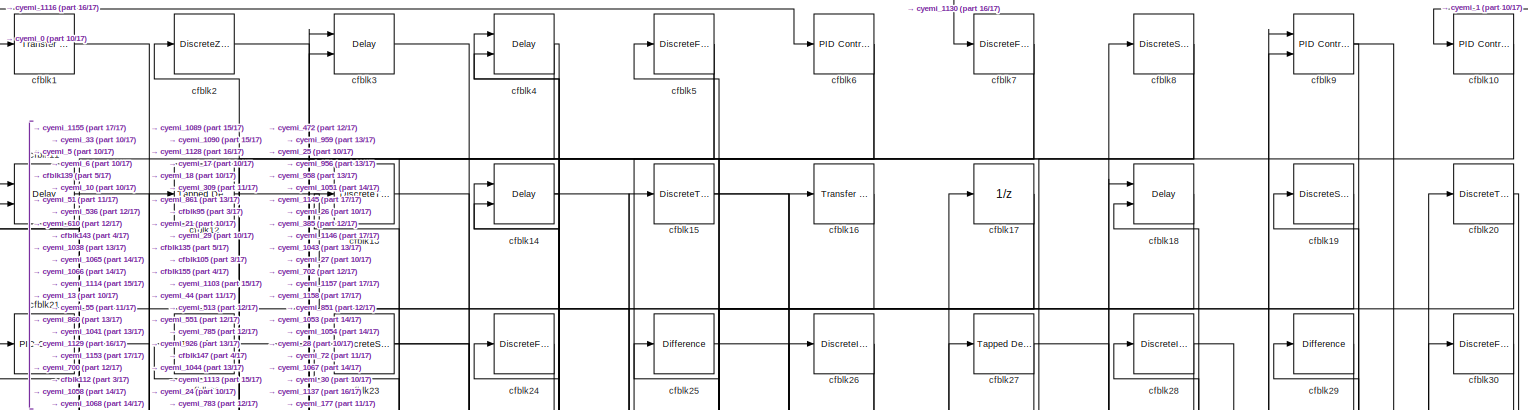
[diagram: root canvas - part 1/17, full width, top band]
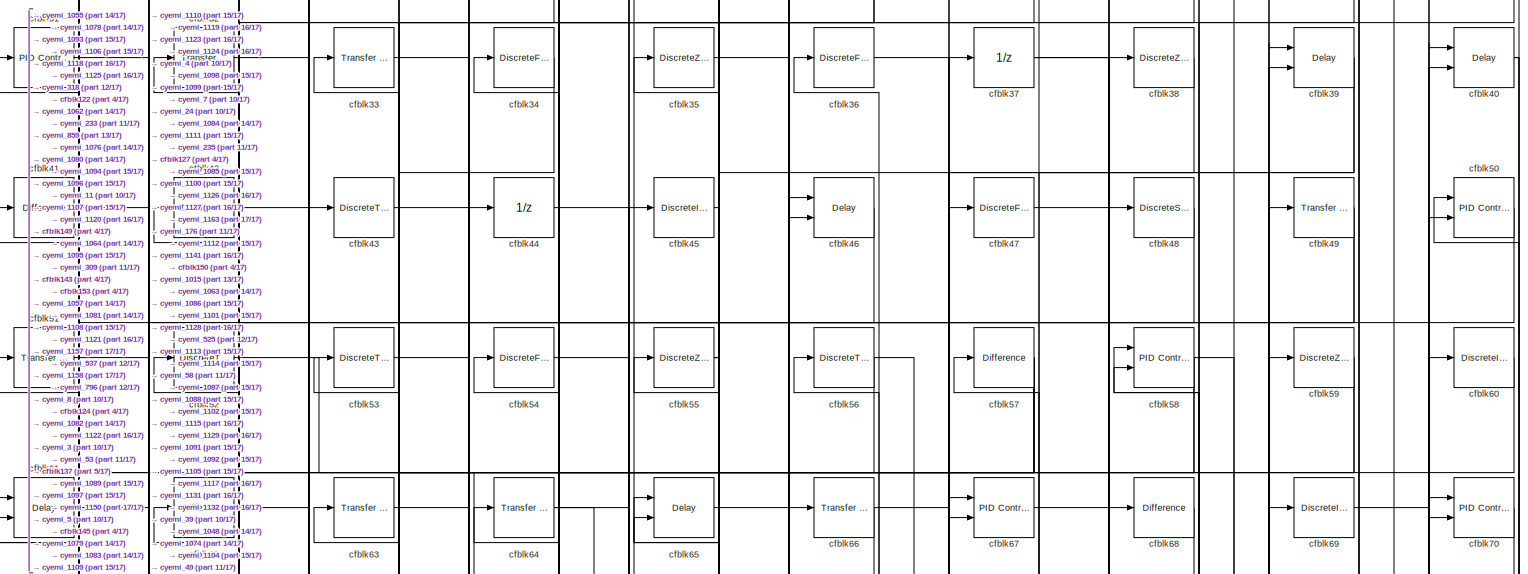
[diagram: root canvas - part 2/17, full width, top band]
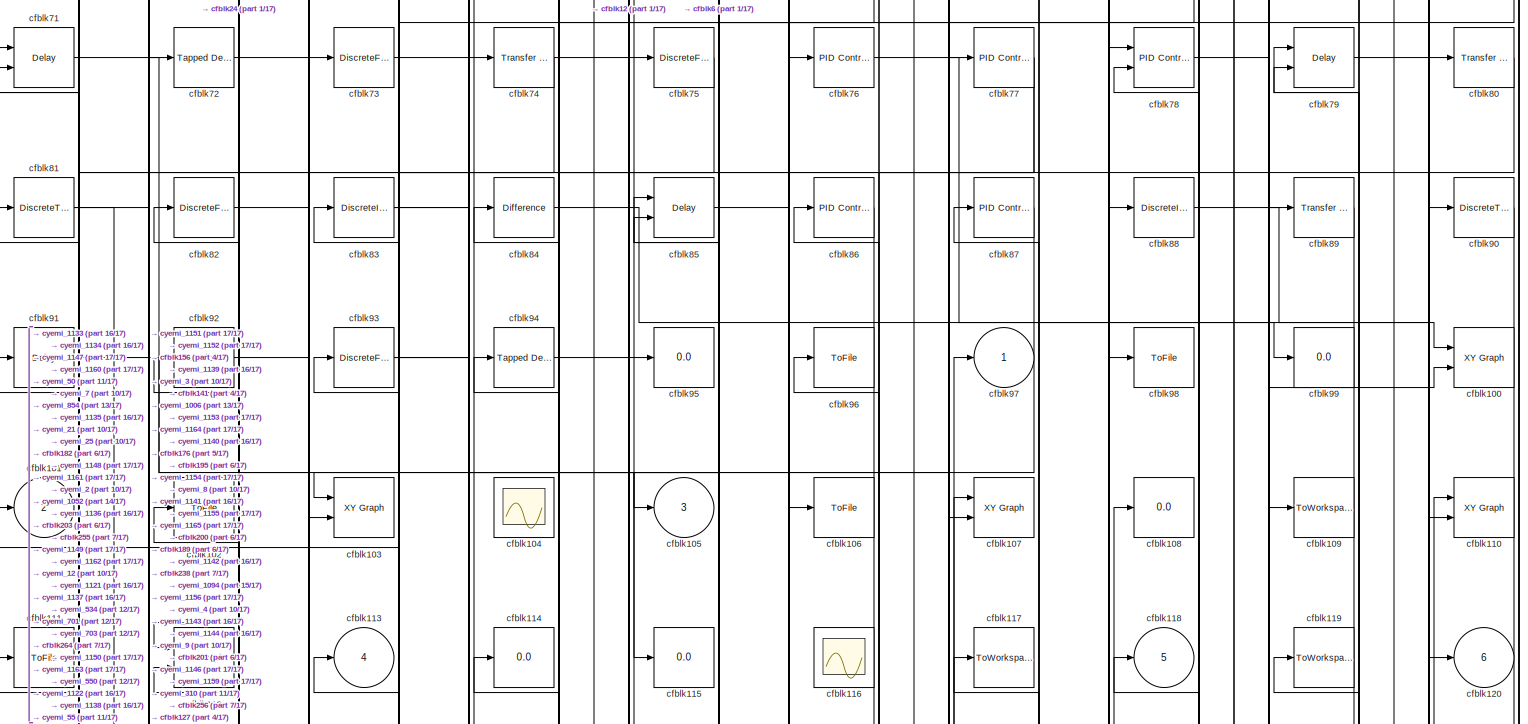
[diagram: root canvas - part 3/17, full width, top band]
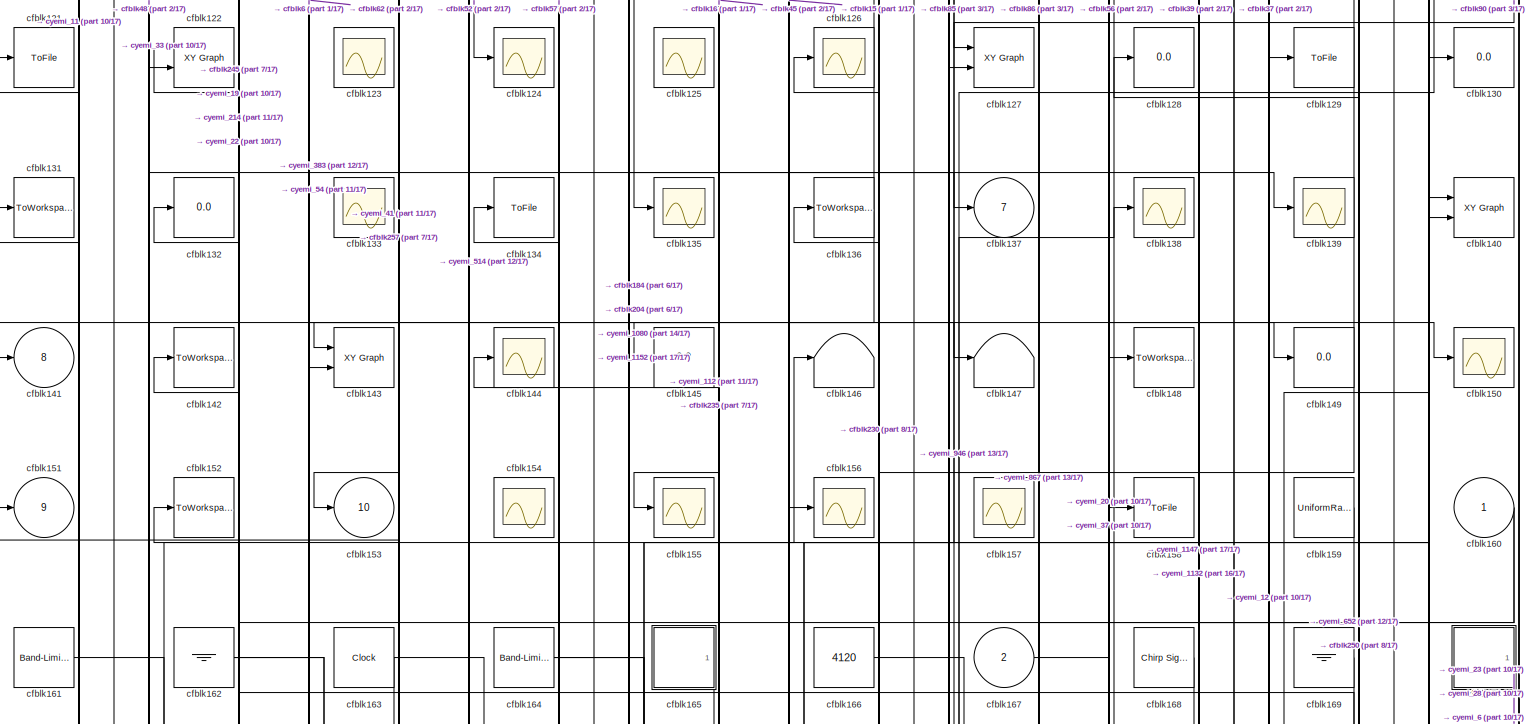
[diagram: root canvas - part 4/17, full width, top band]
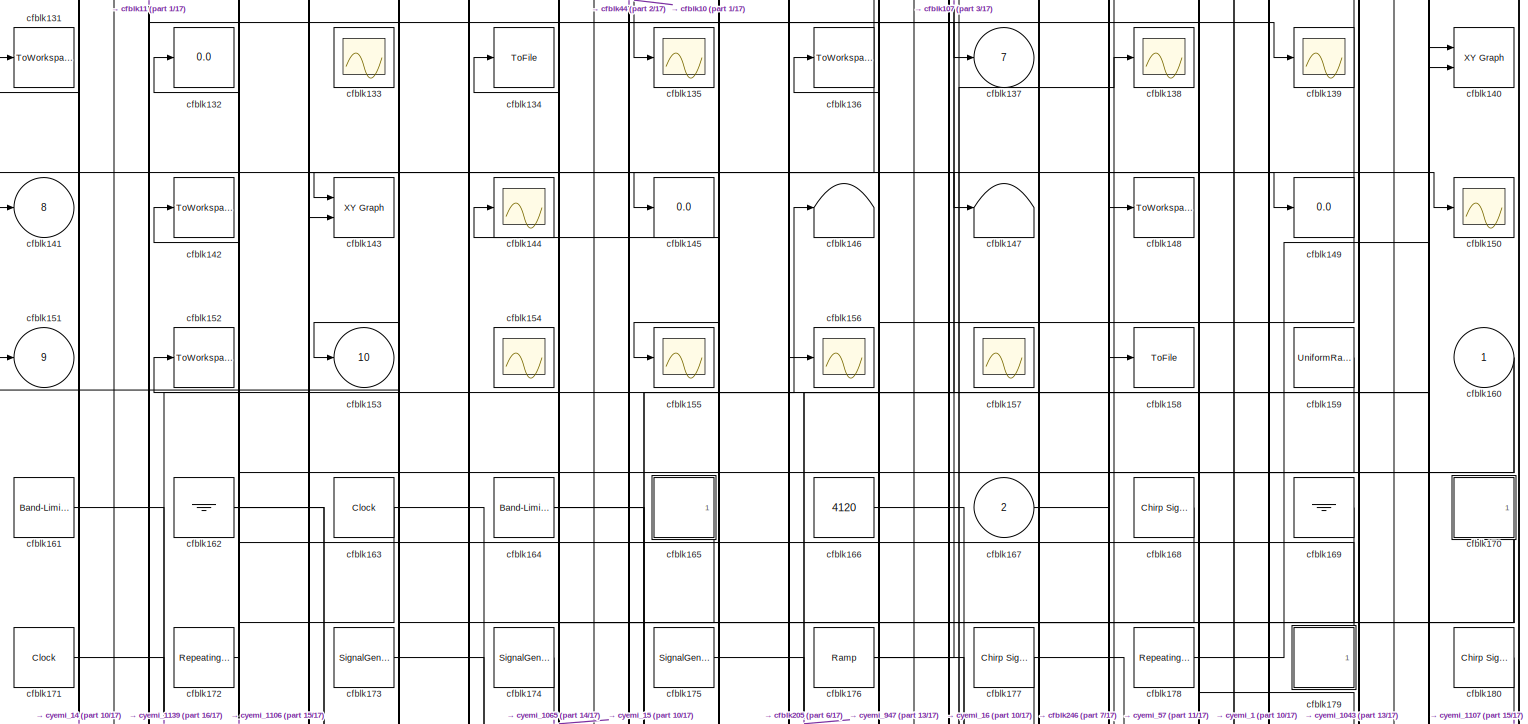
[diagram: root canvas - part 5/17, full width, top band]
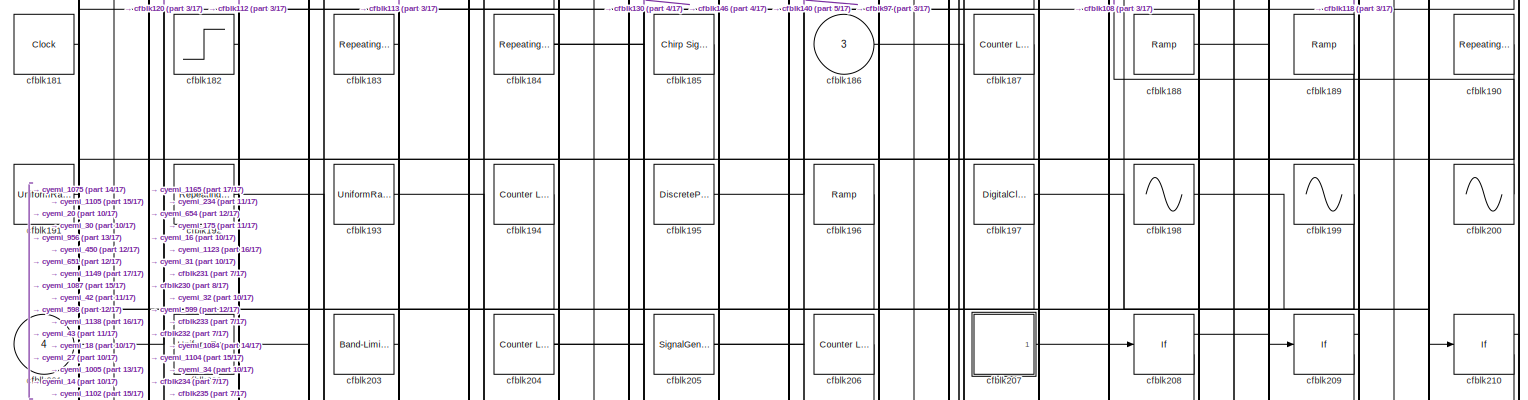
[diagram: root canvas - part 6/17, full width, top band]
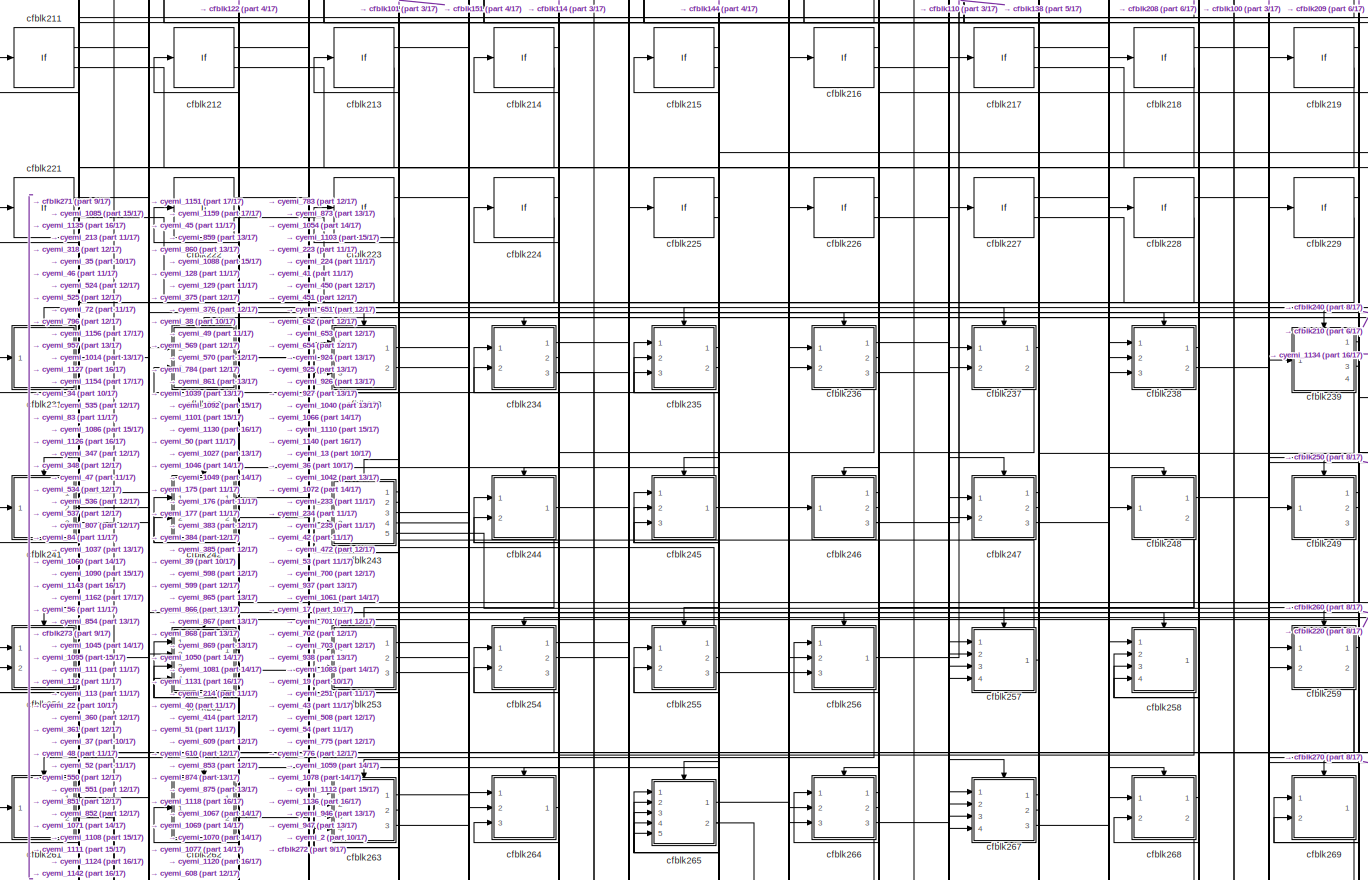
[diagram: root canvas - part 7/17, full width, top band]
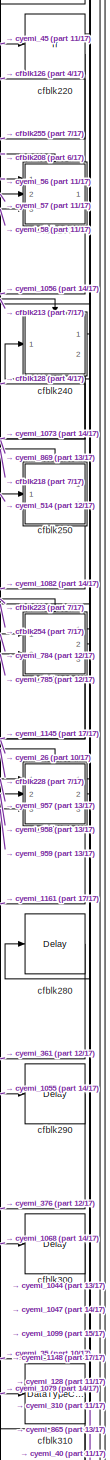
[diagram: root canvas - part 8/17, middle right region]
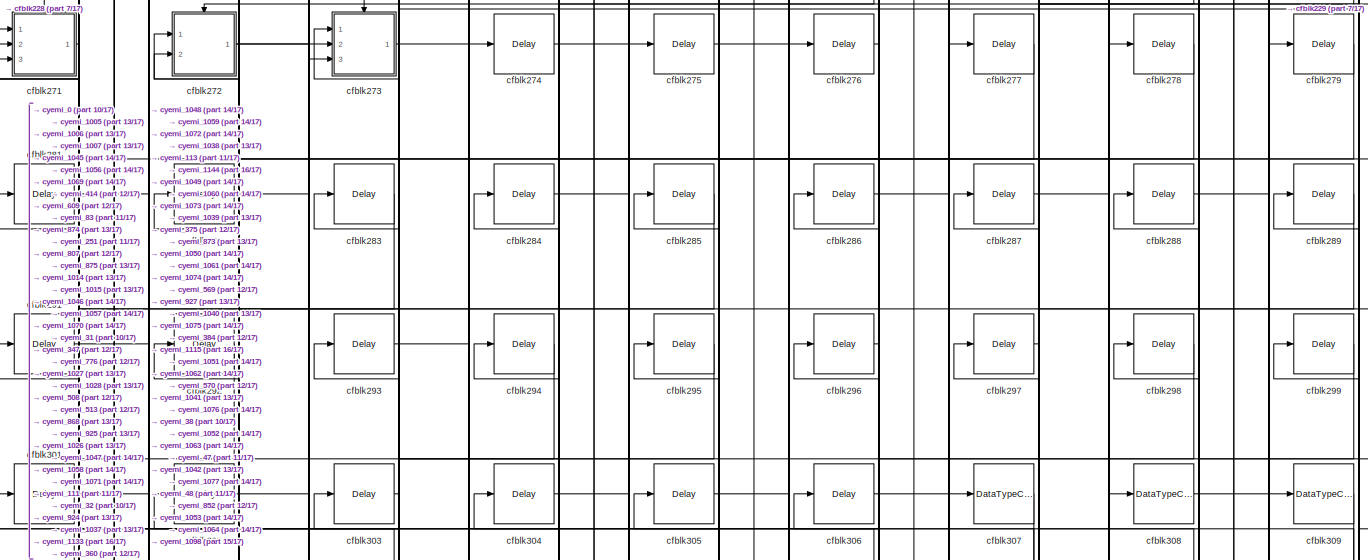
[diagram: root canvas - part 9/17, full width, middle band]
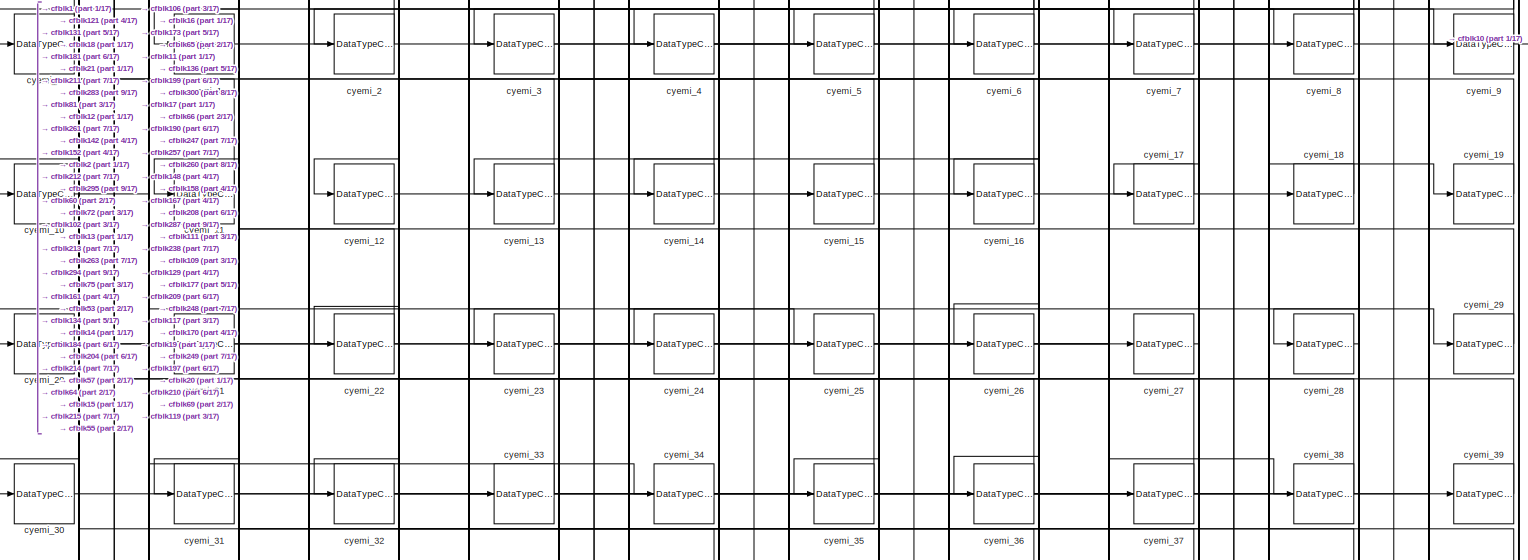
[diagram: root canvas - part 10/17, full width, middle band]
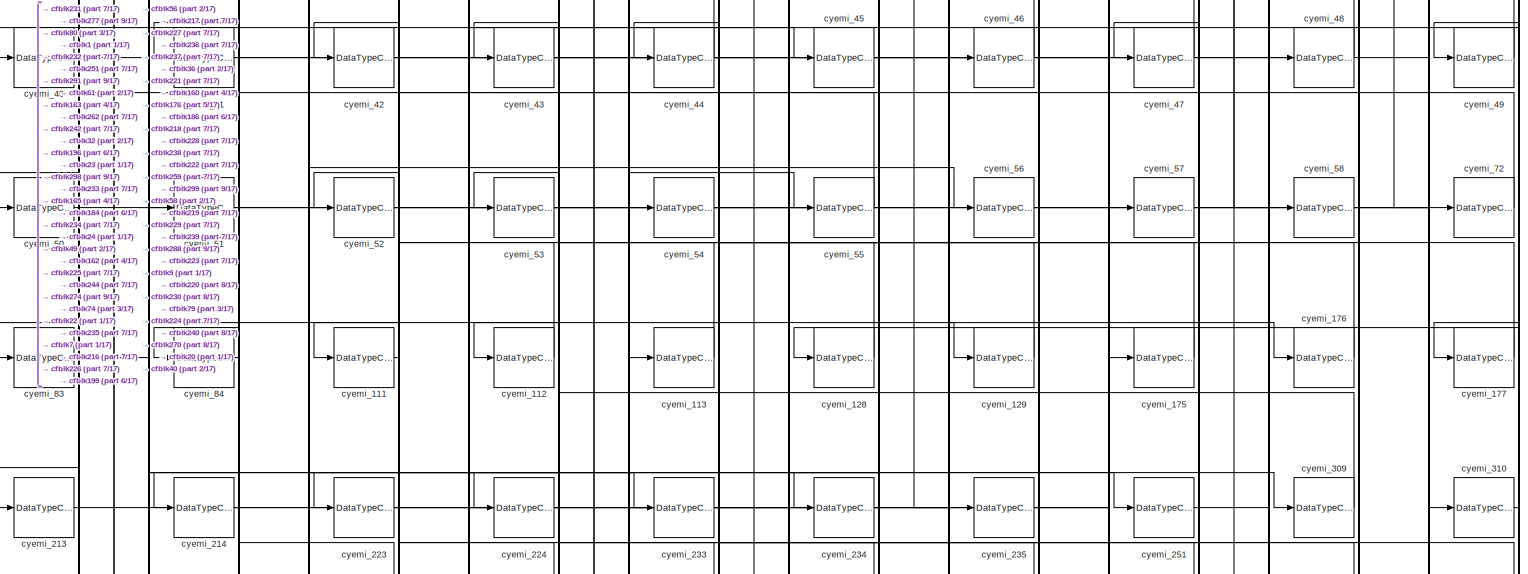
[diagram: root canvas - part 11/17, full width, bottom band]
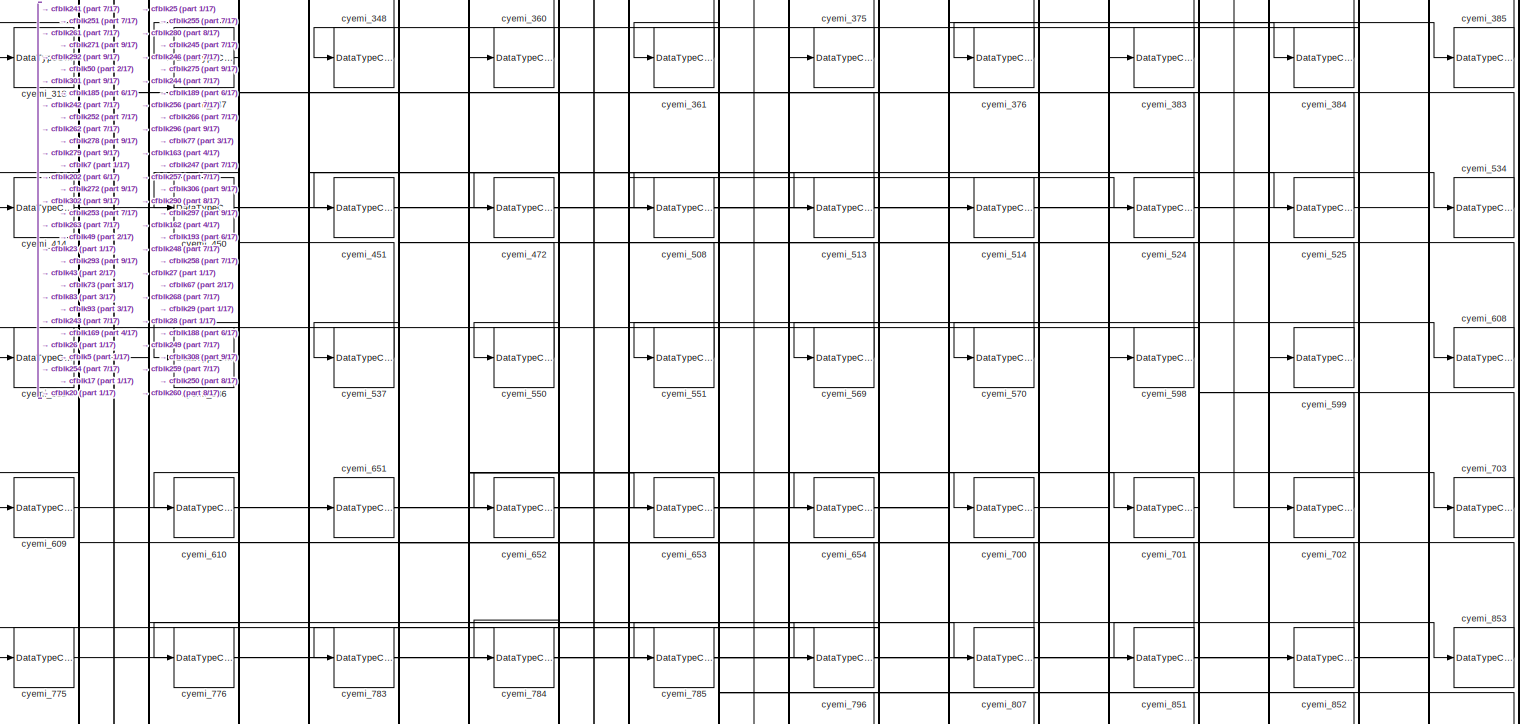
[diagram: root canvas - part 12/17, full width, bottom band]
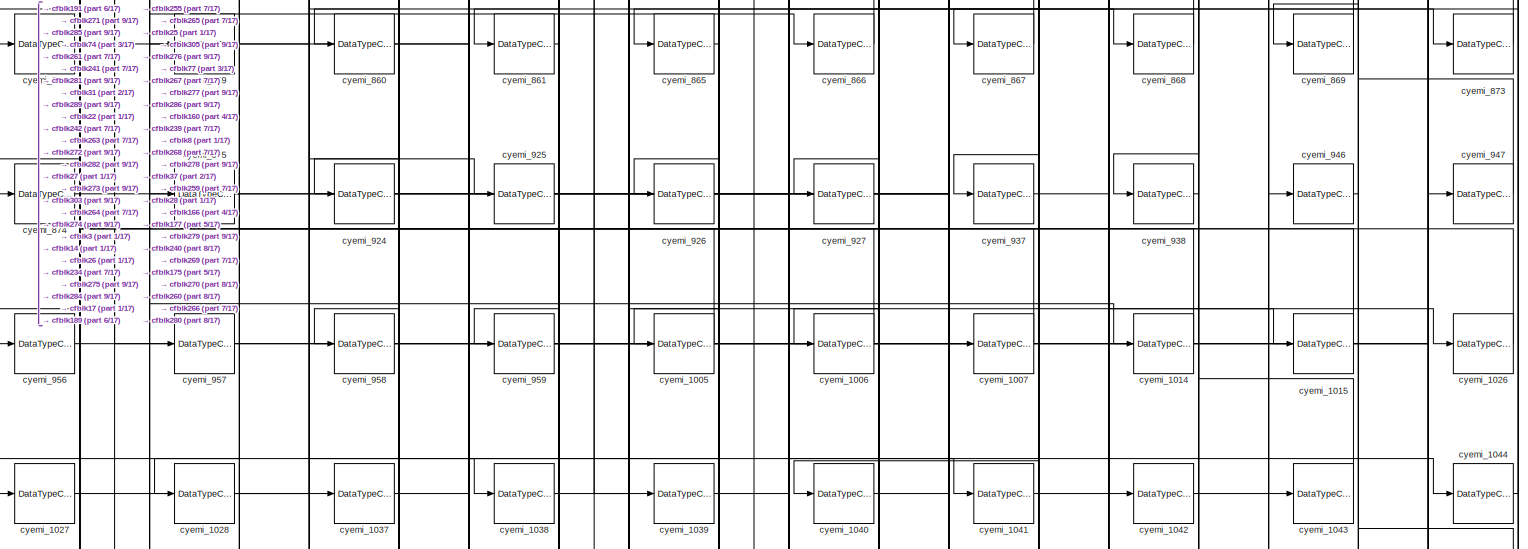
[diagram: root canvas - part 13/17, full width, bottom band]
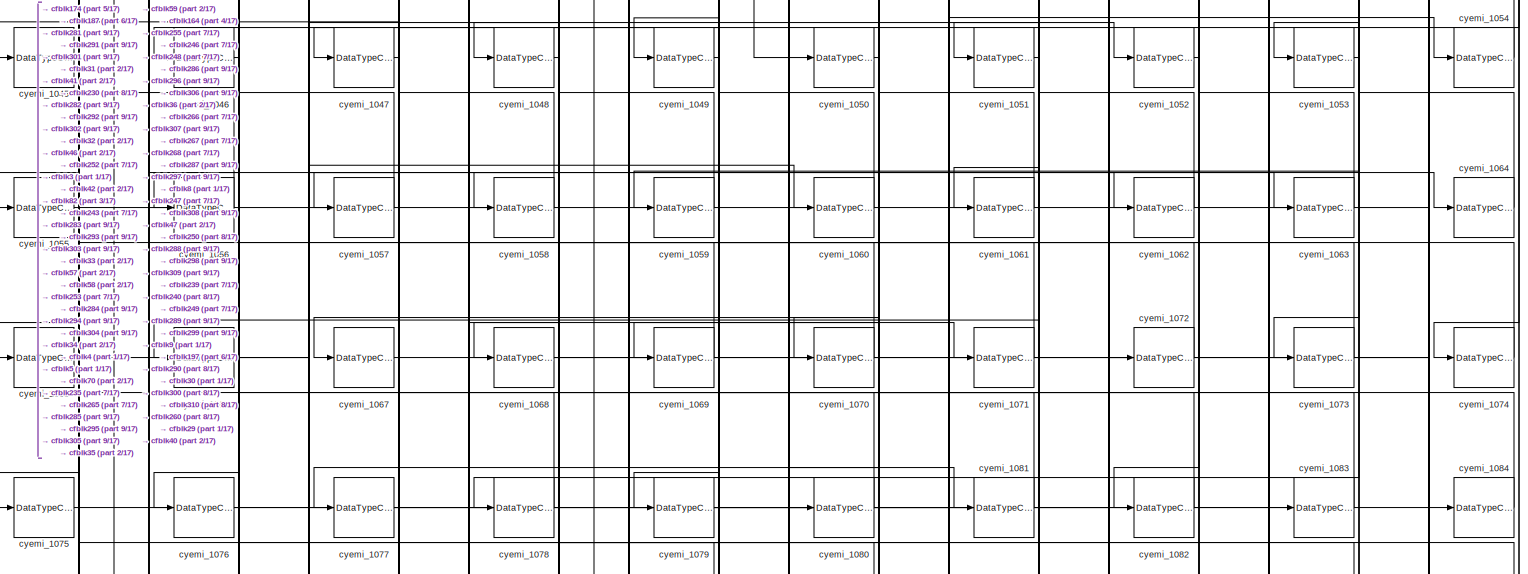
[diagram: root canvas - part 14/17, full width, bottom band]
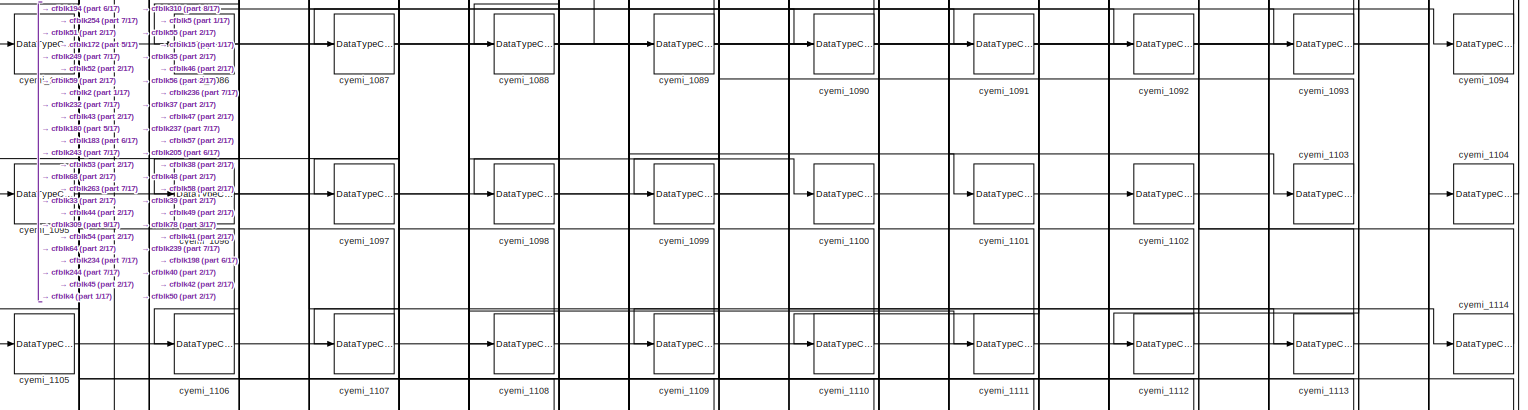
[diagram: root canvas - part 15/17, full width, bottom band]
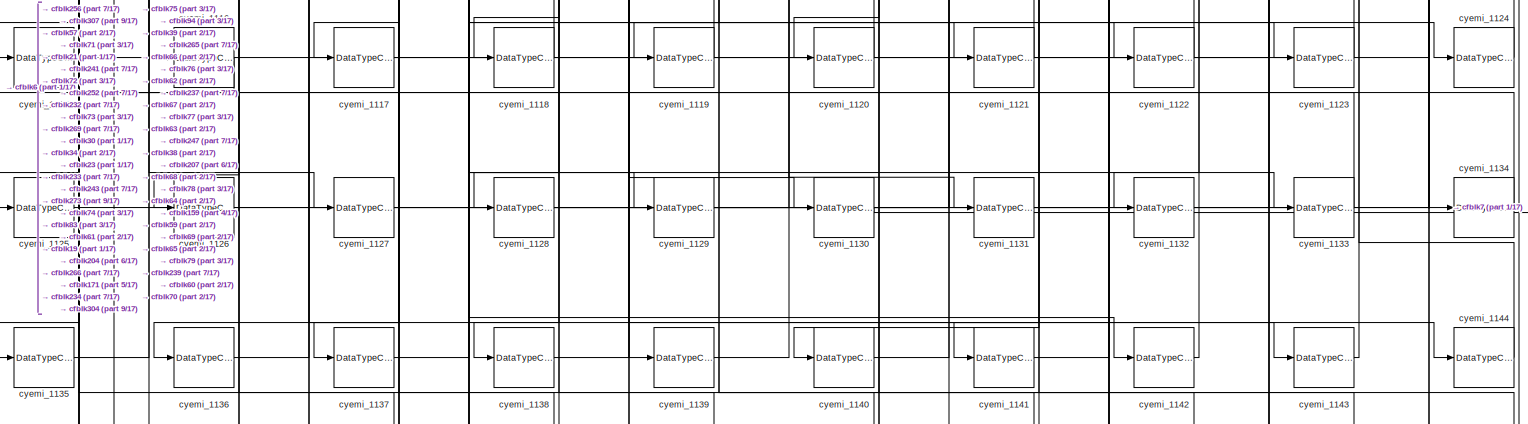
[diagram: root canvas - part 16/17, full width, bottom band]
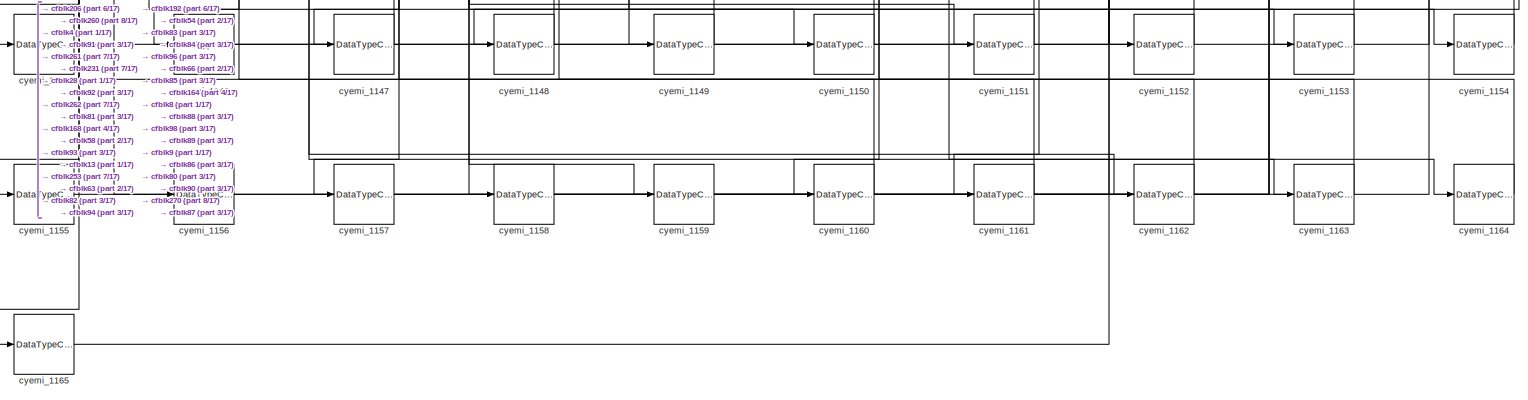
[diagram: root canvas - part 17/17, full width, bottom band]
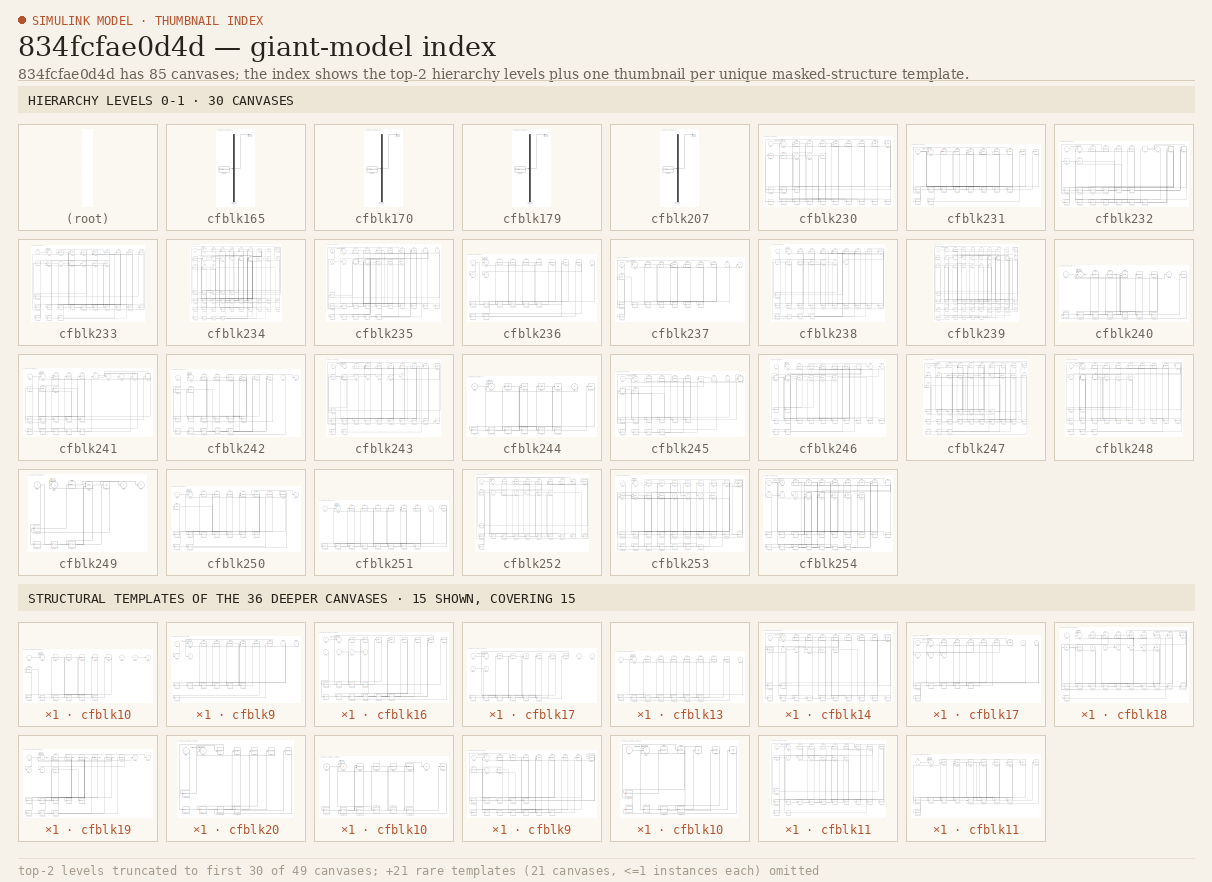
[diagram: thumbnail index - top-2 hierarchy levels (49 canvases (first 30 of 49 shown)) + 15 structural-template representatives of the remaining 36 canvases]
MODEL slx_834fcfae0d4d
KIND model
CONFIG AbsTol = auto
CONFIG EnableMultiTasking = off
CONFIG FixedStep = auto
CONFIG MaxStep = auto
CONFIG MinStep = auto
CONFIG RelTol = 1e-3
CONFIG SampleTimeConstraint = Unconstrained
CONFIG Solver = VariableStepAuto
CONFIG SolverName = VariableStepAuto
CONFIG StartTime = 0.0
CONFIG StopTime = 10.0
BLOCK [Reference] cfblk1  REF=simulink/Discrete/Transfer Fcn
Real Zero
  Ports = [1, 1]
  SourceBlock = simulink/Discrete/Transfer Fcn\nReal Zero
  SourceProductBaseCode = SL
  SourceProductName = Simulink
  SourceType = Transfer Fcn Real Zero
BLOCK [Reference] cfblk10  REF=simulink/Continuous/PID Controller
  Ports = [1, 1]
  SourceBlock = simulink/Continuous/PID Controller
  SourceProductBaseCode = SL
  SourceProductName = Simulink
  SourceType = PID 1dof
BLOCK [Reference] cfblk100  REF=simulink/Sinks/XY Graph
  Ports = [2]
  SourceBlock = simulink/Sinks/XY Graph
  SourceProductBaseCode = SL
  SourceProductName = Simulink
  SourceType = XY scope.
BLOCK [Outport] cfblk101
  IconDisplay = Port number
  Port = 2
BLOCK [ToFile] cfblk102
  Filename = mvju
  Ports = [1]
  SaveFormat = Timeseries
BLOCK [Reference] cfblk103  REF=simulink/Sinks/XY Graph
  Ports = [2]
  SourceBlock = simulink/Sinks/XY Graph
  SourceProductBaseCode = SL
  SourceProductName = Simulink
  SourceType = XY scope.
BLOCK [Scope] cfblk104
  Floating = on
  NumInputPorts = 1
  Ports = []
  ScopeSpecificationString = Simulink.scopes.TimeScopeBlockCfg
BLOCK [Outport] cfblk105
  IconDisplay = Port number
  Port = 3
BLOCK [ToFile] cfblk106
  Filename = eujd
  Ports = [1]
  SaveFormat = Timeseries
BLOCK [Reference] cfblk107  REF=simulink/Sinks/XY Graph
  Ports = [2]
  SourceBlock = simulink/Sinks/XY Graph
  SourceProductBaseCode = SL
  SourceProductName = Simulink
  SourceType = XY scope.
BLOCK [Display] cfblk108
  Decimation = 1
  Ports = [1]
BLOCK [ToWorkspace] cfblk109
  FixptAsFi = on
  MaxDataPoints = inf
  Ports = [1]
  SampleTime = -1
  Save2DSignal = 3-D array (concatenate along third dimension)
  SaveFormat = Timeseries
  VariableName = xkbihtf
BLOCK [Delay] cfblk11
  DelayLengthSource = Input port
  InputPortMap = u0,p1
  Ports = [2, 1]
  SampleTime = 1
BLOCK [Reference] cfblk110  REF=simulink/Sinks/XY Graph
  Ports = [2]
  SourceBlock = simulink/Sinks/XY Graph
  SourceProductBaseCode = SL
  SourceProductName = Simulink
  SourceType = XY scope.
BLOCK [ToFile] cfblk111
  Filename = cgvy
  Ports = [1]
  SaveFormat = Timeseries
BLOCK [Reference] cfblk112  REF=simulink/Sinks/XY Graph
  Ports = [2]
  SourceBlock = simulink/Sinks/XY Graph
  SourceProductBaseCode = SL
  SourceProductName = Simulink
  SourceType = XY scope.
BLOCK [Outport] cfblk113
  IconDisplay = Port number
  Port = 4
BLOCK [Display] cfblk114
  Decimation = 1
  Ports = [1]
BLOCK [Display] cfblk115
  Decimation = 1
  Ports = [1]
BLOCK [Scope] cfblk116
  Floating = on
  NumInputPorts = 1
  Ports = []
  ScopeSpecificationString = Simulink.scopes.TimeScopeBlockCfg
BLOCK [ToWorkspace] cfblk117
  FixptAsFi = on
  MaxDataPoints = inf
  Ports = [1]
  SampleTime = -1
  Save2DSignal = 3-D array (concatenate along third dimension)
  SaveFormat = Timeseries
  VariableName = xfyezbp
BLOCK [Outport] cfblk118
  IconDisplay = Port number
  Port = 5
BLOCK [ToWorkspace] cfblk119
  FixptAsFi = on
  MaxDataPoints = inf
  Ports = [1]
  SampleTime = -1
  Save2DSignal = 3-D array (concatenate along third dimension)
  SaveFormat = Timeseries
  VariableName = yrfonpq
BLOCK [Reference] cfblk12  REF=simulink/Discrete/Tapped Delay
  Ports = [1, 1]
  SourceBlock = simulink/Discrete/Tapped Delay
  SourceProductBaseCode = SL
  SourceProductName = Simulink
  SourceType = Tapped Delay Line
BLOCK [Outport] cfblk120
  IconDisplay = Port number
  Port = 6
BLOCK [ToFile] cfblk121
  Filename = bcgq
  Ports = [1]
  SaveFormat = Timeseries
BLOCK [Reference] cfblk122  REF=simulink/Sinks/XY Graph
  Ports = [2]
  SourceBlock = simulink/Sinks/XY Graph
  SourceProductBaseCode = SL
  SourceProductName = Simulink
  SourceType = XY scope.
BLOCK [Scope] cfblk123
  Floating = on
  NumInputPorts = 1
  Ports = []
  ScopeSpecificationString = Simulink.scopes.TimeScopeBlockCfg
BLOCK [Scope] cfblk124
  Floating = off
  NumInputPorts = 1
  Ports = [1]
  ScopeSpecificationString = Simulink.scopes.TimeScopeBlockCfg
BLOCK [Scope] cfblk125
  Floating = on
  NumInputPorts = 1
  Ports = []
  ScopeSpecificationString = Simulink.scopes.TimeScopeBlockCfg
BLOCK [Scope] cfblk126
  Floating = off
  NumInputPorts = 1
  Ports = [1]
  ScopeSpecificationString = Simulink.scopes.TimeScopeBlockCfg
BLOCK [Reference] cfblk127  REF=simulink/Sinks/XY Graph
  Ports = [2]
  SourceBlock = simulink/Sinks/XY Graph
  SourceProductBaseCode = SL
  SourceProductName = Simulink
  SourceType = XY scope.
BLOCK [Display] cfblk128
  Decimation = 1
  Ports = [1]
BLOCK [ToFile] cfblk129
  Filename = mjtg
  Ports = [1]
  SaveFormat = Timeseries
BLOCK [DiscreteTransferFcn] cfblk13
  InputPortMap = u0
  Ports = [1, 1]
  SampleTime = 1
BLOCK [Display] cfblk130
  Decimation = 1
  Ports = [1]
BLOCK [ToWorkspace] cfblk131
  FixptAsFi = on
  MaxDataPoints = inf
  Ports = [1]
  SampleTime = -1
  Save2DSignal = 3-D array (concatenate along third dimension)
  SaveFormat = Timeseries
  VariableName = whweswj
BLOCK [Display] cfblk132
  Decimation = 1
  Ports = [1]
BLOCK [Scope] cfblk133
  Floating = on
  NumInputPorts = 1
  Ports = []
  ScopeSpecificationString = Simulink.scopes.TimeScopeBlockCfg
BLOCK [ToFile] cfblk134
  Filename = jueb
  Ports = [1]
  SaveFormat = Timeseries
BLOCK [Scope] cfblk135
  Floating = off
  NumInputPorts = 1
  Ports = [1]
  ScopeSpecificationString = Simulink.scopes.TimeScopeBlockCfg
BLOCK [ToWorkspace] cfblk136
  FixptAsFi = on
  MaxDataPoints = inf
  Ports = [1]
  SampleTime = -1
  Save2DSignal = 3-D array (concatenate along third dimension)
  SaveFormat = Timeseries
  VariableName = tkwpteb
BLOCK [Outport] cfblk137
  IconDisplay = Port number
  Port = 7
BLOCK [Scope] cfblk138
  Floating = off
  NumInputPorts = 1
  Ports = [1]
  ScopeSpecificationString = Simulink.scopes.TimeScopeBlockCfg
BLOCK [Scope] cfblk139
  Floating = off
  NumInputPorts = 1
  Ports = [1]
  ScopeSpecificationString = Simulink.scopes.TimeScopeBlockCfg
BLOCK [Delay] cfblk14
  InputPortMap = u0,e6
  Ports = [2, 1]
  SampleTime = 1
  ShowEnablePort = on
BLOCK [Reference] cfblk140  REF=simulink/Sinks/XY Graph
  Ports = [2]
  SourceBlock = simulink/Sinks/XY Graph
  SourceProductBaseCode = SL
  SourceProductName = Simulink
  SourceType = XY scope.
BLOCK [Outport] cfblk141
  IconDisplay = Port number
  Port = 8
BLOCK [ToWorkspace] cfblk142
  FixptAsFi = on
  MaxDataPoints = inf
  Ports = [1]
  SampleTime = -1
  Save2DSignal = 3-D array (concatenate along third dimension)
  SaveFormat = Timeseries
  VariableName = enguigy
BLOCK [Reference] cfblk143  REF=simulink/Sinks/XY Graph
  Ports = [2]
  SourceBlock = simulink/Sinks/XY Graph
  SourceProductBaseCode = SL
  SourceProductName = Simulink
  SourceType = XY scope.
BLOCK [Scope] cfblk144
  Floating = off
  NumInputPorts = 1
  Ports = [1]
  ScopeSpecificationString = Simulink.scopes.TimeScopeBlockCfg
BLOCK [Display] cfblk145
  Decimation = 1
  Ports = [1]
BLOCK [Terminator] cfblk146
BLOCK [Terminator] cfblk147
BLOCK [ToWorkspace] cfblk148
  FixptAsFi = on
  MaxDataPoints = inf
  Ports = [1]
  SampleTime = -1
  Save2DSignal = 3-D array (concatenate along third dimension)
  SaveFormat = Timeseries
  VariableName = wdhubit
BLOCK [Display] cfblk149
  Decimation = 1
  Ports = [1]
BLOCK [DiscreteTransferFcn] cfblk15
  InputPortMap = u0
  Ports = [1, 1]
  SampleTime = 1
BLOCK [Scope] cfblk150
  Floating = off
  NumInputPorts = 1
  Ports = [1]
  ScopeSpecificationString = Simulink.scopes.TimeScopeBlockCfg
BLOCK [Outport] cfblk151
  IconDisplay = Port number
  Port = 9
BLOCK [ToWorkspace] cfblk152
  FixptAsFi = on
  MaxDataPoints = inf
  Ports = [1]
  SampleTime = -1
  Save2DSignal = 3-D array (concatenate along third dimension)
  SaveFormat = Timeseries
  VariableName = eyoxfmy
BLOCK [Outport] cfblk153
  IconDisplay = Port number
  Port = 10
BLOCK [Scope] cfblk154
  Floating = on
  NumInputPorts = 1
  Ports = []
  ScopeSpecificationString = Simulink.scopes.TimeScopeBlockCfg
BLOCK [Scope] cfblk155
  Floating = off
  NumInputPorts = 1
  Ports = [1]
  ScopeSpecificationString = Simulink.scopes.TimeScopeBlockCfg
BLOCK [Scope] cfblk156
  Floating = off
  NumInputPorts = 1
  Ports = [1]
  ScopeSpecificationString = Simulink.scopes.TimeScopeBlockCfg
BLOCK [Scope] cfblk157
  Floating = on
  NumInputPorts = 1
  Ports = []
  ScopeSpecificationString = Simulink.scopes.TimeScopeBlockCfg
BLOCK [ToFile] cfblk158
  Filename = mojy
  Ports = [1]
  SaveFormat = Timeseries
BLOCK [UniformRandomNumber] cfblk159
  SampleTime = 0.1
BLOCK [Reference] cfblk16  REF=simulink/Discrete/Transfer Fcn
Lead or Lag
  Ports = [1, 1]
  SourceBlock = simulink/Discrete/Transfer Fcn\nLead or Lag
  SourceProductBaseCode = SL
  SourceProductName = Simulink
  SourceType = Lead or Lag Compensator
BLOCK [Inport] cfblk160
  IconDisplay = Port number
BLOCK [Reference] cfblk161  REF=simulink/Sources/Band-Limited
White Noise
  Ports = [0, 1]
  SourceBlock = simulink/Sources/Band-Limited\nWhite Noise
  SourceProductBaseCode = SL
  SourceProductName = Simulink
  SourceType = Band-Limited White Noise.
BLOCK [Ground] cfblk162
BLOCK [Clock] cfblk163
BLOCK [Reference] cfblk164  REF=simulink/Sources/Band-Limited
White Noise
  Ports = [0, 1]
  SourceBlock = simulink/Sources/Band-Limited\nWhite Noise
  SourceProductBaseCode = SL
  SourceProductName = Simulink
  SourceType = Band-Limited White Noise.
BLOCK [SubSystem] cfblk165
  ClipboardFcn = sigbuilder_block('clipboard');
  CloseFcn = sigbuilder_block('close');
  ContinueFcn = sigbuilder_block('continue');
  CopyFcn = sigbuilder_block('copy');
  DeleteFcn = sigbuilder_block('delete');
  LoadFcn = sigbuilder_block('load');
  MaskHideContents = on
  ModelCloseFcn = sigbuilder_block('modelClose');
  NameChangeFcn = sigbuilder_block('namechange');
  OpenFcn = sigbuilder_block('open',[437.6 199.2 550.4 400 ]);
  PauseFcn = sigbuilder_block('pause');
  Ports = [0, 1]
  PreSaveFcn = sigbuilder_block('preSave');
  RequestExecContextInheritance = off
  StartFcn = sigbuilder_block('start');
  StopFcn = sigbuilder_block('stop');
  Tag = STV Subsys
BLOCK [Demux] cfblk165/Demux
  Outputs = 1
  Ports = [1, 1]
  Tag = STV Demux
BLOCK [FromWorkspace] cfblk165/FromWs
  SampleTime = 0
  Tag = STV FromWs
  VariableName = tuvar
  ZeroCross = on
BLOCK [Outport] cfblk165/Signal 1
  IconDisplay = Port number
  Tag = STV Outport
BLOCK [Constant] cfblk166
  Value = 4120
BLOCK [Inport] cfblk167
  IconDisplay = Port number
  Port = 2
BLOCK [Reference] cfblk168  REF=simulink/Sources/Chirp Signal
  Ports = [0, 1]
  SourceBlock = simulink/Sources/Chirp Signal
  SourceProductBaseCode = SL
  SourceProductName = Simulink
  SourceType = chirp
BLOCK [Ground] cfblk169
BLOCK [UnitDelay] cfblk17
  InputProcessing = Elements as channels (sample based)
BLOCK [SubSystem] cfblk170
  ClipboardFcn = sigbuilder_block('clipboard');
  CloseFcn = sigbuilder_block('close');
  ContinueFcn = sigbuilder_block('continue');
  CopyFcn = sigbuilder_block('copy');
  DeleteFcn = sigbuilder_block('delete');
  LoadFcn = sigbuilder_block('load');
  MaskHideContents = on
  ModelCloseFcn = sigbuilder_block('modelClose');
  NameChangeFcn = sigbuilder_block('namechange');
  OpenFcn = sigbuilder_block('open',[437.6 199.2 550.4 400 ]);
  PauseFcn = sigbuilder_block('pause');
  Ports = [0, 1]
  PreSaveFcn = sigbuilder_block('preSave');
  RequestExecContextInheritance = off
  StartFcn = sigbuilder_block('start');
  StopFcn = sigbuilder_block('stop');
  Tag = STV Subsys
BLOCK [Demux] cfblk170/Demux
  Outputs = 1
  Ports = [1, 1]
  Tag = STV Demux
BLOCK [FromWorkspace] cfblk170/FromWs
  SampleTime = 0
  Tag = STV FromWs
  VariableName = tuvar
  ZeroCross = on
BLOCK [Outport] cfblk170/Signal 1
  IconDisplay = Port number
  Tag = STV Outport
BLOCK [Clock] cfblk171
BLOCK [Reference] cfblk172  REF=simulink/Sources/Repeating
Sequence
  Ports = [0, 1]
  SourceBlock = simulink/Sources/Repeating\nSequence
  SourceProductBaseCode = SL
  SourceProductName = Simulink
  SourceType = Repeating table
BLOCK [SignalGenerator] cfblk173
  Ports = [0, 1]
  Units = rad/sec
BLOCK [SignalGenerator] cfblk174
  Ports = [0, 1]
  Units = rad/sec
BLOCK [SignalGenerator] cfblk175
  Ports = [0, 1]
  Units = rad/sec
BLOCK [Reference] cfblk176  REF=simulink/Sources/Ramp
  Ports = [0, 1]
  SourceBlock = simulink/Sources/Ramp
  SourceProductBaseCode = SL
  SourceProductName = Simulink
  SourceType = Ramp
BLOCK [Reference] cfblk177  REF=simulink/Sources/Chirp Signal
  Ports = [0, 1]
  SourceBlock = simulink/Sources/Chirp Signal
  SourceProductBaseCode = SL
  SourceProductName = Simulink
  SourceType = chirp
BLOCK [Reference] cfblk178  REF=simulink/Sources/Repeating
Sequence
  Ports = [0, 1]
  SourceBlock = simulink/Sources/Repeating\nSequence
  SourceProductBaseCode = SL
  SourceProductName = Simulink
  SourceType = Repeating table
BLOCK [SubSystem] cfblk179
  ClipboardFcn = sigbuilder_block('clipboard');
  CloseFcn = sigbuilder_block('close');
  ContinueFcn = sigbuilder_block('continue');
  CopyFcn = sigbuilder_block('copy');
  DeleteFcn = sigbuilder_block('delete');
  LoadFcn = sigbuilder_block('load');
  MaskHideContents = on
  ModelCloseFcn = sigbuilder_block('modelClose');
  NameChangeFcn = sigbuilder_block('namechange');
  OpenFcn = sigbuilder_block('open',[437.6 199.2 550.4 400 ]);
  PauseFcn = sigbuilder_block('pause');
  Ports = [0, 1]
  PreSaveFcn = sigbuilder_block('preSave');
  RequestExecContextInheritance = off
  StartFcn = sigbuilder_block('start');
  StopFcn = sigbuilder_block('stop');
  Tag = STV Subsys
BLOCK [Demux] cfblk179/Demux
  Outputs = 1
  Ports = [1, 1]
  Tag = STV Demux
BLOCK [FromWorkspace] cfblk179/FromWs
  SampleTime = 0
  Tag = STV FromWs
  VariableName = tuvar
  ZeroCross = on
BLOCK [Outport] cfblk179/Signal 1
  IconDisplay = Port number
  Tag = STV Outport
BLOCK [Delay] cfblk18
  InputPortMap = u0,e6
  Ports = [2, 1]
  SampleTime = 1
  ShowEnablePort = on
BLOCK [Reference] cfblk180  REF=simulink/Sources/Chirp Signal
  Ports = [0, 1]
  SourceBlock = simulink/Sources/Chirp Signal
  SourceProductBaseCode = SL
  SourceProductName = Simulink
  SourceType = chirp
BLOCK [Clock] cfblk181
BLOCK [Step] cfblk182
  After = 81
  SampleTime = 0
BLOCK [Reference] cfblk183  REF=simulink/Sources/Repeating
Sequence
Stair
  Ports = [0, 1]
  SourceBlock = simulink/Sources/Repeating\nSequence\nStair
  SourceProductBaseCode = SL
  SourceProductName = Simulink
  SourceType = Repeating Sequence Stair
BLOCK [Reference] cfblk184  REF=simulink/Sources/Repeating
Sequence
Interpolated
  Ports = [0, 1]
  SourceBlock = simulink/Sources/Repeating\nSequence\nInterpolated
  SourceProductBaseCode = SL
  SourceProductName = Simulink
  SourceType = Repeating Sequence Interpolated
BLOCK [Reference] cfblk185  REF=simulink/Sources/Chirp Signal
  Ports = [0, 1]
  SourceBlock = simulink/Sources/Chirp Signal
  SourceProductBaseCode = SL
  SourceProductName = Simulink
  SourceType = chirp
BLOCK [Inport] cfblk186
  IconDisplay = Port number
  Port = 3
BLOCK [Reference] cfblk187  REF=simulink/Sources/Counter
Limited
  Ports = [0, 1]
  SourceBlock = simulink/Sources/Counter\nLimited
  SourceProductBaseCode = SL
  SourceProductName = Simulink
  SourceType = Counter Limited
BLOCK [Reference] cfblk188  REF=simulink/Sources/Ramp
  Ports = [0, 1]
  SourceBlock = simulink/Sources/Ramp
  SourceProductBaseCode = SL
  SourceProductName = Simulink
  SourceType = Ramp
BLOCK [Reference] cfblk189  REF=simulink/Sources/Ramp
  Ports = [0, 1]
  SourceBlock = simulink/Sources/Ramp
  SourceProductBaseCode = SL
  SourceProductName = Simulink
  SourceType = Ramp
BLOCK [DiscreteStateSpace] cfblk19
BLOCK [Reference] cfblk190  REF=simulink/Sources/Repeating
Sequence
  Ports = [0, 1]
  SourceBlock = simulink/Sources/Repeating\nSequence
  SourceProductBaseCode = SL
  SourceProductName = Simulink
  SourceType = Repeating table
BLOCK [UniformRandomNumber] cfblk191
  SampleTime = 0.1
BLOCK [Reference] cfblk192  REF=simulink/Sources/Repeating
Sequence
  Ports = [0, 1]
  SourceBlock = simulink/Sources/Repeating\nSequence
  SourceProductBaseCode = SL
  SourceProductName = Simulink
  SourceType = Repeating table
BLOCK [UniformRandomNumber] cfblk193
  SampleTime = 0.1
BLOCK [Reference] cfblk194  REF=simulink/Sources/Counter
Limited
  Ports = [0, 1]
  SourceBlock = simulink/Sources/Counter\nLimited
  SourceProductBaseCode = SL
  SourceProductName = Simulink
  SourceType = Counter Limited
BLOCK [DiscretePulseGenerator] cfblk195
  Period = 10
  Ports = [0, 1]
  PulseType = Time based
  PulseWidth = 5
BLOCK [Reference] cfblk196  REF=simulink/Sources/Ramp
  Ports = [0, 1]
  SourceBlock = simulink/Sources/Ramp
  SourceProductBaseCode = SL
  SourceProductName = Simulink
  SourceType = Ramp
BLOCK [DigitalClock] cfblk197
BLOCK [Sin] cfblk198
  Ports = [0, 1]
  SampleTime = 0
BLOCK [Sin] cfblk199
  Ports = [0, 1]
  SampleTime = 0
BLOCK [DiscreteZeroPole] cfblk2
  Gain = 1
  Poles = [0 0.5]
BLOCK [DiscreteTransferFcn] cfblk20
  InputPortMap = u0
  Ports = [1, 1]
  SampleTime = 1
BLOCK [Sin] cfblk200
  Ports = [0, 1]
  SampleTime = 0
BLOCK [Inport] cfblk201
  IconDisplay = Port number
  Port = 4
BLOCK [UniformRandomNumber] cfblk202
  SampleTime = 0.1
BLOCK [Reference] cfblk203  REF=simulink/Sources/Band-Limited
White Noise
  Ports = [0, 1]
  SourceBlock = simulink/Sources/Band-Limited\nWhite Noise
  SourceProductBaseCode = SL
  SourceProductName = Simulink
  SourceType = Band-Limited White Noise.
BLOCK [Reference] cfblk204  REF=simulink/Sources/Counter
Limited
  Ports = [0, 1]
  SourceBlock = simulink/Sources/Counter\nLimited
  SourceProductBaseCode = SL
  SourceProductName = Simulink
  SourceType = Counter Limited
BLOCK [SignalGenerator] cfblk205
  Ports = [0, 1]
  Units = rad/sec
BLOCK [Reference] cfblk206  REF=simulink/Sources/Counter
Limited
  Ports = [0, 1]
  SourceBlock = simulink/Sources/Counter\nLimited
  SourceProductBaseCode = SL
  SourceProductName = Simulink
  SourceType = Counter Limited
BLOCK [SubSystem] cfblk207
  ClipboardFcn = sigbuilder_block('clipboard');
  CloseFcn = sigbuilder_block('close');
  ContinueFcn = sigbuilder_block('continue');
  CopyFcn = sigbuilder_block('copy');
  DeleteFcn = sigbuilder_block('delete');
  LoadFcn = sigbuilder_block('load');
  MaskHideContents = on
  ModelCloseFcn = sigbuilder_block('modelClose');
  NameChangeFcn = sigbuilder_block('namechange');
  OpenFcn = sigbuilder_block('open',[437.6 199.2 550.4 400 ]);
  PauseFcn = sigbuilder_block('pause');
  Ports = [0, 1]
  PreSaveFcn = sigbuilder_block('preSave');
  RequestExecContextInheritance = off
  StartFcn = sigbuilder_block('start');
  StopFcn = sigbuilder_block('stop');
  Tag = STV Subsys
BLOCK [Demux] cfblk207/Demux
  Outputs = 1
  Ports = [1, 1]
  Tag = STV Demux
BLOCK [FromWorkspace] cfblk207/FromWs
  SampleTime = 0
  Tag = STV FromWs
  VariableName = tuvar
  ZeroCross = on
BLOCK [Outport] cfblk207/Signal 1
  IconDisplay = Port number
  Tag = STV Outport
BLOCK [If] cfblk208
  Ports = [1, 2]
  SampleTime = 1
BLOCK [If] cfblk209
  Ports = [1, 2]
  SampleTime = 1
BLOCK [Reference] cfblk21  REF=simulink/Continuous/PID Controller
  Ports = [1, 1]
  SourceBlock = simulink/Continuous/PID Controller
  SourceProductBaseCode = SL
  SourceProductName = Simulink
  SourceType = PID 1dof
BLOCK [If] cfblk210
  Ports = [1, 2]
  SampleTime = 1
BLOCK [If] cfblk211
  Ports = [1, 2]
  SampleTime = 1
BLOCK [If] cfblk212
  Ports = [1, 2]
  SampleTime = 1
BLOCK [If] cfblk213
  Ports = [1, 2]
  SampleTime = 1
BLOCK [If] cfblk214
  Ports = [1, 2]
  SampleTime = 1
BLOCK [If] cfblk215
  Ports = [1, 2]
  SampleTime = 1
BLOCK [If] cfblk216
  Ports = [1, 2]
  SampleTime = 1
BLOCK [If] cfblk217
  Ports = [1, 2]
  SampleTime = 1
BLOCK [If] cfblk218
  Ports = [1, 2]
  SampleTime = 1
BLOCK [If] cfblk219
  Ports = [1, 2]
  SampleTime = 1
BLOCK [Reference] cfblk22  REF=simulink/Discrete/Transfer Fcn
First Order
  Ports = [1, 1]
  SourceBlock = simulink/Discrete/Transfer Fcn\nFirst Order
  SourceProductBaseCode = SL
  SourceProductName = Simulink
  SourceType = First Order Transfer Fcn
BLOCK [If] cfblk220
  Ports = [1, 2]
  SampleTime = 1
BLOCK [If] cfblk221
  Ports = [1, 2]
  SampleTime = 1
BLOCK [If] cfblk222
  Ports = [1, 2]
  SampleTime = 1
BLOCK [If] cfblk223
  Ports = [1, 2]
  SampleTime = 1
BLOCK [If] cfblk224
  Ports = [1, 2]
  SampleTime = 1
BLOCK [If] cfblk225
  Ports = [1, 2]
  SampleTime = 1
BLOCK [If] cfblk226
  Ports = [1, 2]
  SampleTime = 1
BLOCK [If] cfblk227
  Ports = [1, 2]
  SampleTime = 1
BLOCK [If] cfblk228
  Ports = [1, 2]
  SampleTime = 1
BLOCK [If] cfblk229
  Ports = [1, 2]
  SampleTime = 1
BLOCK [DiscreteStateSpace] cfblk23
BLOCK [SubSystem] cfblk230
  Ports = [3, 1, 0, 0, 0, 0, 0, 1]
  RequestExecContextInheritance = off
  TreatAsAtomicUnit = on
BLOCK [ActionPort] cfblk230/Action Port
  ActionType = then
BLOCK [Inport] cfblk230/cfblk1
  IconDisplay = Port number
BLOCK [UnitDelay] cfblk230/cfblk10
  InputProcessing = Elements as channels (sample based)
  SampleTime = -1
BLOCK [DiscreteIntegrator] cfblk230/cfblk11
  ICPrevOutput = DiscIntNeverNeededParam
  ICPrevScaledInput = DiscIntNeverNeededParam
  InitialConditionSetting = Auto
  Ports = [1, 1]
  SampleTime = -1
BLOCK [Reference] cfblk230/cfblk12  REF=simulink/Discrete/Transfer Fcn
Lead or Lag
  Ports = [1, 1]
  SourceBlock = simulink/Discrete/Transfer Fcn\nLead or Lag
  SourceProductBaseCode = SL
  SourceProductName = Simulink
  SourceType = Lead or Lag Compensator
BLOCK [Inport] cfblk230/cfblk13
  IconDisplay = Port number
  Port = 2
BLOCK [Inport] cfblk230/cfblk14
  IconDisplay = Port number
  Port = 3
BLOCK [Delay] cfblk230/cfblk15
  InputPortMap = u0
  Ports = [1, 1]
BLOCK [Outport] cfblk230/cfblk2
  IconDisplay = Port number
BLOCK [Delay] cfblk230/cfblk3
  InputPortMap = u0,e6
  Ports = [2, 1]
  ShowEnablePort = on
BLOCK [Delay] cfblk230/cfblk4
  InputPortMap = u0
  Ports = [1, 1]
BLOCK [DiscreteFilter] cfblk230/cfblk5
  InputPortMap = u0
  Ports = [1, 1]
BLOCK [Delay] cfblk230/cfblk6
  DelayLengthSource = Input port
  InputPortMap = u0,p1
  Ports = [2, 1]
BLOCK [DiscreteZeroPole] cfblk230/cfblk7
  Gain = 1
  Poles = [0 0.5]
  SampleTime = -1
BLOCK [DiscreteZeroPole] cfblk230/cfblk8
  Gain = 1
  Poles = [0 0.5]
  SampleTime = -1
BLOCK [UnitDelay] cfblk230/cfblk9
  InputProcessing = Elements as channels (sample based)
  SampleTime = -1
BLOCK [DataTypeConversion] cfblk230/cyemi_59
  OutDataTypeStr = double
  RndMeth = Floor
  SaturateOnIntegerOverflow = off
BLOCK [DataTypeConversion] cfblk230/cyemi_60
  OutDataTypeStr = double
  RndMeth = Floor
  SaturateOnIntegerOverflow = off
BLOCK [DataTypeConversion] cfblk230/cyemi_61
  OutDataTypeStr = double
  RndMeth = Floor
  SaturateOnIntegerOverflow = off
BLOCK [DataTypeConversion] cfblk230/cyemi_62
  OutDataTypeStr = double
  RndMeth = Floor
  SaturateOnIntegerOverflow = off
BLOCK [DataTypeConversion] cfblk230/cyemi_63
  OutDataTypeStr = double
  RndMeth = Floor
  SaturateOnIntegerOverflow = off
BLOCK [DataTypeConversion] cfblk230/cyemi_64
  OutDataTypeStr = double
  RndMeth = Floor
  SaturateOnIntegerOverflow = off
BLOCK [DataTypeConversion] cfblk230/cyemi_65
  OutDataTypeStr = double
  RndMeth = Floor
  SaturateOnIntegerOverflow = off
BLOCK [DataTypeConversion] cfblk230/cyemi_66
  OutDataTypeStr = double
  RndMeth = Floor
  SaturateOnIntegerOverflow = off
BLOCK [DataTypeConversion] cfblk230/cyemi_67
  OutDataTypeStr = double
  RndMeth = Floor
  SaturateOnIntegerOverflow = off
BLOCK [DataTypeConversion] cfblk230/cyemi_68
  OutDataTypeStr = double
  RndMeth = Floor
  SaturateOnIntegerOverflow = off
BLOCK [DataTypeConversion] cfblk230/cyemi_69
  OutDataTypeStr = double
  RndMeth = Floor
  SaturateOnIntegerOverflow = off
BLOCK [DataTypeConversion] cfblk230/cyemi_70
  OutDataTypeStr = double
  RndMeth = Floor
  SaturateOnIntegerOverflow = off
BLOCK [DataTypeConversion] cfblk230/cyemi_71
  OutDataTypeStr = double
  RndMeth = Floor
  SaturateOnIntegerOverflow = off
BLOCK [SubSystem] cfblk231
  Ports = [1, 1, 0, 0, 0, 0, 0, 1]
  RequestExecContextInheritance = off
  TreatAsAtomicUnit = on
BLOCK [ActionPort] cfblk231/Action Port
  ActionType = else
BLOCK [Inport] cfblk231/cfblk1
  IconDisplay = Port number
BLOCK [Delay] cfblk231/cfblk10
  InputPortMap = u0
  Ports = [1, 1]
BLOCK [Outport] cfblk231/cfblk2
  IconDisplay = Port number
BLOCK [Reference] cfblk231/cfblk3  REF=simulink/Discrete/Difference
  Ports = [1, 1]
  SourceBlock = simulink/Discrete/Difference
  SourceProductBaseCode = SL
  SourceProductName = Simulink
  SourceType = Difference
BLOCK [DiscreteIntegrator] cfblk231/cfblk4
  ICPrevOutput = DiscIntNeverNeededParam
  ICPrevScaledInput = DiscIntNeverNeededParam
  InitialConditionSetting = Auto
  Ports = [1, 1]
  SampleTime = -1
BLOCK [Delay] cfblk231/cfblk5
  InputPortMap = u0,e6
  Ports = [2, 1]
  ShowEnablePort = on
BLOCK [Delay] cfblk231/cfblk6
  InputPortMap = u0,e6
  Ports = [2, 1]
  ShowEnablePort = on
BLOCK [DiscreteTransferFcn] cfblk231/cfblk7
  InputPortMap = u0
  Ports = [1, 1]
BLOCK [Delay] cfblk231/cfblk8
  InputPortMap = u0
  Ports = [1, 1]
BLOCK [DiscreteStateSpace] cfblk231/cfblk9
  SampleTime = -1
BLOCK [DataTypeConversion] cfblk231/cyemi_73
  OutDataTypeStr = double
  RndMeth = Floor
  SaturateOnIntegerOverflow = off
BLOCK [DataTypeConversion] cfblk231/cyemi_74
  OutDataTypeStr = double
  RndMeth = Floor
  SaturateOnIntegerOverflow = off
BLOCK [DataTypeConversion] cfblk231/cyemi_75
  OutDataTypeStr = double
  RndMeth = Floor
  SaturateOnIntegerOverflow = off
BLOCK [DataTypeConversion] cfblk231/cyemi_76
  OutDataTypeStr = double
  RndMeth = Floor
  SaturateOnIntegerOverflow = off
BLOCK [DataTypeConversion] cfblk231/cyemi_77
  OutDataTypeStr = double
  RndMeth = Floor
  SaturateOnIntegerOverflow = off
BLOCK [DataTypeConversion] cfblk231/cyemi_78
  OutDataTypeStr = double
  RndMeth = Floor
  SaturateOnIntegerOverflow = off
BLOCK [DataTypeConversion] cfblk231/cyemi_79
  OutDataTypeStr = double
  RndMeth = Floor
  SaturateOnIntegerOverflow = off
BLOCK [DataTypeConversion] cfblk231/cyemi_80
  OutDataTypeStr = double
  RndMeth = Floor
  SaturateOnIntegerOverflow = off
BLOCK [DataTypeConversion] cfblk231/cyemi_81
  OutDataTypeStr = double
  RndMeth = Floor
  SaturateOnIntegerOverflow = off
BLOCK [DataTypeConversion] cfblk231/cyemi_82
  OutDataTypeStr = double
  RndMeth = Floor
  SaturateOnIntegerOverflow = off
BLOCK [SubSystem] cfblk232
  Ports = [2, 1, 0, 0, 0, 0, 0, 1]
  RequestExecContextInheritance = off
  TreatAsAtomicUnit = on
BLOCK [ActionPort] cfblk232/Action Port
  ActionType = then
BLOCK [Inport] cfblk232/cfblk1
  IconDisplay = Port number
BLOCK [SubSystem] cfblk232/cfblk10
  Ports = [3, 2, 0, 0, 0, 0, 0, 1]
  RequestExecContextInheritance = off
  TreatAsAtomicUnit = on
BLOCK [ActionPort] cfblk232/cfblk10/Action Port
  ActionType = else
BLOCK [Inport] cfblk232/cfblk10/cfblk1
  IconDisplay = Port number
BLOCK [Outport] cfblk232/cfblk10/cfblk10
  IconDisplay = Port number
  Port = 2
BLOCK [Delay] cfblk232/cfblk10/cfblk11
  InputPortMap = u0
  Ports = [1, 1]
BLOCK [Outport] cfblk232/cfblk10/cfblk2
  IconDisplay = Port number
BLOCK [Reference] cfblk232/cfblk10/cfblk3  REF=simulink/Discrete/Transfer Fcn
Real Zero
  Ports = [1, 1]
  SourceBlock = simulink/Discrete/Transfer Fcn\nReal Zero
  SourceProductBaseCode = SL
  SourceProductName = Simulink
  SourceType = Transfer Fcn Real Zero
BLOCK [Reference] cfblk232/cfblk10/cfblk4  REF=simulink/Discrete/Transfer Fcn
First Order
  Ports = [1, 1]
  SourceBlock = simulink/Discrete/Transfer Fcn\nFirst Order
  SourceProductBaseCode = SL
  SourceProductName = Simulink
  SourceType = First Order Transfer Fcn
BLOCK [Reference] cfblk232/cfblk10/cfblk5  REF=simulink/Discrete/Difference
  Ports = [1, 1]
  SourceBlock = simulink/Discrete/Difference
  SourceProductBaseCode = SL
  SourceProductName = Simulink
  SourceType = Difference
BLOCK [Reference] cfblk232/cfblk10/cfblk6  REF=simulink/Discrete/Transfer Fcn
Lead or Lag
  Ports = [1, 1]
  SourceBlock = simulink/Discrete/Transfer Fcn\nLead or Lag
  SourceProductBaseCode = SL
  SourceProductName = Simulink
  SourceType = Lead or Lag Compensator
BLOCK [Delay] cfblk232/cfblk10/cfblk7
  InputPortMap = u0
  Ports = [1, 1]
BLOCK [Inport] cfblk232/cfblk10/cfblk8
  IconDisplay = Port number
  Port = 2
BLOCK [Inport] cfblk232/cfblk10/cfblk9
  IconDisplay = Port number
  Port = 3
BLOCK [DataTypeConversion] cfblk232/cfblk10/cyemi_88
  OutDataTypeStr = double
  RndMeth = Floor
  SaturateOnIntegerOverflow = off
BLOCK [DataTypeConversion] cfblk232/cfblk10/cyemi_89
  OutDataTypeStr = double
  RndMeth = Floor
  SaturateOnIntegerOverflow = off
BLOCK [DataTypeConversion] cfblk232/cfblk10/cyemi_90
  OutDataTypeStr = double
  RndMeth = Floor
  SaturateOnIntegerOverflow = off
BLOCK [DataTypeConversion] cfblk232/cfblk10/cyemi_91
  OutDataTypeStr = double
  RndMeth = Floor
  SaturateOnIntegerOverflow = off
BLOCK [DataTypeConversion] cfblk232/cfblk10/cyemi_92
  OutDataTypeStr = double
  RndMeth = Floor
  SaturateOnIntegerOverflow = off
BLOCK [DataTypeConversion] cfblk232/cfblk10/cyemi_93
  OutDataTypeStr = double
  RndMeth = Floor
  SaturateOnIntegerOverflow = off
BLOCK [Delay] cfblk232/cfblk11
  InputPortMap = u0
  Ports = [1, 1]
BLOCK [Delay] cfblk232/cfblk12
  InputPortMap = u0
  Ports = [1, 1]
BLOCK [Outport] cfblk232/cfblk2
  IconDisplay = Port number
BLOCK [Delay] cfblk232/cfblk3
  InputPortMap = u0
  Ports = [1, 1]
BLOCK [Reference] cfblk232/cfblk4  REF=simulink/Discrete/Transfer Fcn
Lead or Lag
  Ports = [1, 1]
  SourceBlock = simulink/Discrete/Transfer Fcn\nLead or Lag
  SourceProductBaseCode = SL
  SourceProductName = Simulink
  SourceType = Lead or Lag Compensator
BLOCK [Reference] cfblk232/cfblk5  REF=simulink/Discrete/Tapped Delay
  Ports = [1, 1]
  SourceBlock = simulink/Discrete/Tapped Delay
  SourceProductBaseCode = SL
  SourceProductName = Simulink
  SourceType = Tapped Delay Line
BLOCK [Reference] cfblk232/cfblk6  REF=simulink/Discrete/Tapped Delay
  Ports = [1, 1]
  SourceBlock = simulink/Discrete/Tapped Delay
  SourceProductBaseCode = SL
  SourceProductName = Simulink
  SourceType = Tapped Delay Line
BLOCK [If] cfblk232/cfblk7
  Ports = [1, 2]
  SampleTime = 1
BLOCK [Inport] cfblk232/cfblk8
  IconDisplay = Port number
  Port = 2
BLOCK [SubSystem] cfblk232/cfblk9
  Ports = [3, 3, 0, 0, 0, 0, 0, 1]
  RequestExecContextInheritance = off
  TreatAsAtomicUnit = on
BLOCK [ActionPort] cfblk232/cfblk9/Action Port
  ActionType = then
BLOCK [Inport] cfblk232/cfblk9/cfblk1
  IconDisplay = Port number
BLOCK [Inport] cfblk232/cfblk9/cfblk10
  IconDisplay = Port number
  Port = 3
BLOCK [Outport] cfblk232/cfblk9/cfblk11
  IconDisplay = Port number
  Port = 2
BLOCK [Outport] cfblk232/cfblk9/cfblk12
  IconDisplay = Port number
  Port = 3
BLOCK [Outport] cfblk232/cfblk9/cfblk2
  IconDisplay = Port number
BLOCK [Reference] cfblk232/cfblk9/cfblk3  REF=simulink/Discrete/Transfer Fcn
Real Zero
  Ports = [1, 1]
  SourceBlock = simulink/Discrete/Transfer Fcn\nReal Zero
  SourceProductBaseCode = SL
  SourceProductName = Simulink
  SourceType = Transfer Fcn Real Zero
BLOCK [Reference] cfblk232/cfblk9/cfblk4  REF=simulink/Discrete/Transfer Fcn
First Order
  Ports = [1, 1]
  SourceBlock = simulink/Discrete/Transfer Fcn\nFirst Order
  SourceProductBaseCode = SL
  SourceProductName = Simulink
  SourceType = First Order Transfer Fcn
BLOCK [Reference] cfblk232/cfblk9/cfblk5  REF=simulink/Discrete/Transfer Fcn
Real Zero
  Ports = [1, 1]
  SourceBlock = simulink/Discrete/Transfer Fcn\nReal Zero
  SourceProductBaseCode = SL
  SourceProductName = Simulink
  SourceType = Transfer Fcn Real Zero
BLOCK [Delay] cfblk232/cfblk9/cfblk6
  InputPortMap = u0,e6
  Ports = [2, 1]
  ShowEnablePort = on
BLOCK [Reference] cfblk232/cfblk9/cfblk7  REF=simulink/Discrete/Transfer Fcn
First Order
  Ports = [1, 1]
  SourceBlock = simulink/Discrete/Transfer Fcn\nFirst Order
  SourceProductBaseCode = SL
  SourceProductName = Simulink
  SourceType = First Order Transfer Fcn
BLOCK [Reference] cfblk232/cfblk9/cfblk8  REF=simulink/Discrete/Transfer Fcn
Real Zero
  Ports = [1, 1]
  SourceBlock = simulink/Discrete/Transfer Fcn\nReal Zero
  SourceProductBaseCode = SL
  SourceProductName = Simulink
  SourceType = Transfer Fcn Real Zero
BLOCK [Inport] cfblk232/cfblk9/cfblk9
  IconDisplay = Port number
  Port = 2
BLOCK [DataTypeConversion] cfblk232/cfblk9/cyemi_104
  OutDataTypeStr = double
  RndMeth = Floor
  SaturateOnIntegerOverflow = off
BLOCK [DataTypeConversion] cfblk232/cfblk9/cyemi_105
  OutDataTypeStr = double
  RndMeth = Floor
  SaturateOnIntegerOverflow = off
BLOCK [DataTypeConversion] cfblk232/cfblk9/cyemi_106
  OutDataTypeStr = double
  RndMeth = Floor
  SaturateOnIntegerOverflow = off
BLOCK [DataTypeConversion] cfblk232/cfblk9/cyemi_107
  OutDataTypeStr = double
  RndMeth = Floor
  SaturateOnIntegerOverflow = off
BLOCK [DataTypeConversion] cfblk232/cfblk9/cyemi_108
  OutDataTypeStr = double
  RndMeth = Floor
  SaturateOnIntegerOverflow = off
BLOCK [DataTypeConversion] cfblk232/cfblk9/cyemi_109
  OutDataTypeStr = double
  RndMeth = Floor
  SaturateOnIntegerOverflow = off
BLOCK [DataTypeConversion] cfblk232/cfblk9/cyemi_110
  OutDataTypeStr = double
  RndMeth = Floor
  SaturateOnIntegerOverflow = off
BLOCK [DataTypeConversion] cfblk232/cyemi_100
  OutDataTypeStr = double
  RndMeth = Floor
  SaturateOnIntegerOverflow = off
BLOCK [DataTypeConversion] cfblk232/cyemi_101
  OutDataTypeStr = double
  RndMeth = Floor
  SaturateOnIntegerOverflow = off
BLOCK [DataTypeConversion] cfblk232/cyemi_102
  OutDataTypeStr = double
  RndMeth = Floor
  SaturateOnIntegerOverflow = off
BLOCK [DataTypeConversion] cfblk232/cyemi_103
  OutDataTypeStr = double
  RndMeth = Floor
  SaturateOnIntegerOverflow = off
BLOCK [DataTypeConversion] cfblk232/cyemi_85
  OutDataTypeStr = double
  RndMeth = Floor
  SaturateOnIntegerOverflow = off
BLOCK [DataTypeConversion] cfblk232/cyemi_86
  OutDataTypeStr = double
  RndMeth = Floor
  SaturateOnIntegerOverflow = off
BLOCK [DataTypeConversion] cfblk232/cyemi_87
  OutDataTypeStr = double
  RndMeth = Floor
  SaturateOnIntegerOverflow = off
BLOCK [DataTypeConversion] cfblk232/cyemi_94
  OutDataTypeStr = double
  RndMeth = Floor
  SaturateOnIntegerOverflow = off
BLOCK [DataTypeConversion] cfblk232/cyemi_95
  OutDataTypeStr = double
  RndMeth = Floor
  SaturateOnIntegerOverflow = off
BLOCK [DataTypeConversion] cfblk232/cyemi_96
  OutDataTypeStr = double
  RndMeth = Floor
  SaturateOnIntegerOverflow = off
BLOCK [DataTypeConversion] cfblk232/cyemi_97
  OutDataTypeStr = double
  RndMeth = Floor
  SaturateOnIntegerOverflow = off
BLOCK [DataTypeConversion] cfblk232/cyemi_98
  OutDataTypeStr = double
  RndMeth = Floor
  SaturateOnIntegerOverflow = off
BLOCK [DataTypeConversion] cfblk232/cyemi_99
  OutDataTypeStr = double
  RndMeth = Floor
  SaturateOnIntegerOverflow = off
BLOCK [SubSystem] cfblk233
  Ports = [3, 2, 0, 0, 0, 0, 0, 1]
  RequestExecContextInheritance = off
  TreatAsAtomicUnit = on
BLOCK [ActionPort] cfblk233/Action Port
  ActionType = else
BLOCK [Inport] cfblk233/cfblk1
  IconDisplay = Port number
BLOCK [DiscreteStateSpace] cfblk233/cfblk10
  SampleTime = -1
BLOCK [Reference] cfblk233/cfblk11  REF=simulink/Discrete/Tapped Delay
  Ports = [1, 1]
  SourceBlock = simulink/Discrete/Tapped Delay
  SourceProductBaseCode = SL
  SourceProductName = Simulink
  SourceType = Tapped Delay Line
BLOCK [Reference] cfblk233/cfblk12  REF=simulink/Discrete/Transfer Fcn
First Order
  Ports = [1, 1]
  SourceBlock = simulink/Discrete/Transfer Fcn\nFirst Order
  SourceProductBaseCode = SL
  SourceProductName = Simulink
  SourceType = First Order Transfer Fcn
BLOCK [Inport] cfblk233/cfblk13
  IconDisplay = Port number
  Port = 2
BLOCK [Inport] cfblk233/cfblk14
  IconDisplay = Port number
  Port = 3
BLOCK [Outport] cfblk233/cfblk15
  IconDisplay = Port number
  Port = 2
BLOCK [Delay] cfblk233/cfblk16
  InputPortMap = u0
  Ports = [1, 1]
BLOCK [Delay] cfblk233/cfblk17
  InputPortMap = u0
  Ports = [1, 1]
BLOCK [Outport] cfblk233/cfblk2
  IconDisplay = Port number
BLOCK [DiscreteZeroPole] cfblk233/cfblk3
  Gain = 1
  Poles = [0 0.5]
  SampleTime = -1
BLOCK [Delay] cfblk233/cfblk4
  DelayLengthSource = Input port
  InputPortMap = u0,p1
  Ports = [2, 1]
BLOCK [Delay] cfblk233/cfblk5
  InputPortMap = u0
  Ports = [1, 1]
BLOCK [Delay] cfblk233/cfblk6
  InputPortMap = u0,e6
  Ports = [2, 1]
  ShowEnablePort = on
BLOCK [DiscreteIntegrator] cfblk233/cfblk7
  ICPrevOutput = DiscIntNeverNeededParam
  ICPrevScaledInput = DiscIntNeverNeededParam
  InitialConditionSetting = Auto
  Ports = [1, 1]
  SampleTime = -1
BLOCK [Reference] cfblk233/cfblk8  REF=simulink/Discrete/Transfer Fcn
First Order
  Ports = [1, 1]
  SourceBlock = simulink/Discrete/Transfer Fcn\nFirst Order
  SourceProductBaseCode = SL
  SourceProductName = Simulink
  SourceType = First Order Transfer Fcn
BLOCK [DiscreteTransferFcn] cfblk233/cfblk9
  InputPortMap = u0
  Ports = [1, 1]
BLOCK [DataTypeConversion] cfblk233/cyemi_114
  OutDataTypeStr = double
  RndMeth = Floor
  SaturateOnIntegerOverflow = off
BLOCK [DataTypeConversion] cfblk233/cyemi_115
  OutDataTypeStr = double
  RndMeth = Floor
  SaturateOnIntegerOverflow = off
BLOCK [DataTypeConversion] cfblk233/cyemi_116
  OutDataTypeStr = double
  RndMeth = Floor
  SaturateOnIntegerOverflow = off
BLOCK [DataTypeConversion] cfblk233/cyemi_117
  OutDataTypeStr = double
  RndMeth = Floor
  SaturateOnIntegerOverflow = off
BLOCK [DataTypeConversion] cfblk233/cyemi_118
  OutDataTypeStr = double
  RndMeth = Floor
  SaturateOnIntegerOverflow = off
BLOCK [DataTypeConversion] cfblk233/cyemi_119
  OutDataTypeStr = double
  RndMeth = Floor
  SaturateOnIntegerOverflow = off
BLOCK [DataTypeConversion] cfblk233/cyemi_120
  OutDataTypeStr = double
  RndMeth = Floor
  SaturateOnIntegerOverflow = off
BLOCK [DataTypeConversion] cfblk233/cyemi_121
  OutDataTypeStr = double
  RndMeth = Floor
  SaturateOnIntegerOverflow = off
BLOCK [DataTypeConversion] cfblk233/cyemi_122
  OutDataTypeStr = double
  RndMeth = Floor
  SaturateOnIntegerOverflow = off
BLOCK [DataTypeConversion] cfblk233/cyemi_123
  OutDataTypeStr = double
  RndMeth = Floor
  SaturateOnIntegerOverflow = off
BLOCK [DataTypeConversion] cfblk233/cyemi_124
  OutDataTypeStr = double
  RndMeth = Floor
  SaturateOnIntegerOverflow = off
BLOCK [DataTypeConversion] cfblk233/cyemi_125
  OutDataTypeStr = double
  RndMeth = Floor
  SaturateOnIntegerOverflow = off
BLOCK [DataTypeConversion] cfblk233/cyemi_126
  OutDataTypeStr = double
  RndMeth = Floor
  SaturateOnIntegerOverflow = off
BLOCK [DataTypeConversion] cfblk233/cyemi_127
  OutDataTypeStr = double
  RndMeth = Floor
  SaturateOnIntegerOverflow = off
BLOCK [SubSystem] cfblk234
  Ports = [2, 3, 0, 0, 0, 0, 0, 1]
  RequestExecContextInheritance = off
  TreatAsAtomicUnit = on
BLOCK [ActionPort] cfblk234/Action Port
  ActionType = then
BLOCK [Inport] cfblk234/cfblk1
  IconDisplay = Port number
BLOCK [Delay] cfblk234/cfblk10
  InputPortMap = u0
  Ports = [1, 1]
BLOCK [Reference] cfblk234/cfblk11  REF=simulink/Continuous/PID Controller (2DOF)
  Ports = [2, 1]
  SourceBlock = simulink/Continuous/PID Controller (2DOF)
  SourceProductBaseCode = SL
  SourceProductName = Simulink
  SourceType = PID 2dof
BLOCK [If] cfblk234/cfblk12
  Ports = [1, 2]
  SampleTime = 1
BLOCK [Inport] cfblk234/cfblk13
  IconDisplay = Port number
  Port = 2
BLOCK [Outport] cfblk234/cfblk14
  IconDisplay = Port number
  Port = 2
BLOCK [Outport] cfblk234/cfblk15
  IconDisplay = Port number
  Port = 3
BLOCK [SubSystem] cfblk234/cfblk16
  Ports = [4, 2, 0, 0, 0, 0, 0, 1]
  RequestExecContextInheritance = off
  TreatAsAtomicUnit = on
BLOCK [ActionPort] cfblk234/cfblk16/Action Port
  ActionType = then
BLOCK [Inport] cfblk234/cfblk16/cfblk1
  IconDisplay = Port number
BLOCK [Reference] cfblk234/cfblk16/cfblk10  REF=simulink/Discrete/Tapped Delay
  Ports = [1, 1]
  SourceBlock = simulink/Discrete/Tapped Delay
  SourceProductBaseCode = SL
  SourceProductName = Simulink
  SourceType = Tapped Delay Line
BLOCK [Inport] cfblk234/cfblk16/cfblk11
  IconDisplay = Port number
  Port = 2
BLOCK [Inport] cfblk234/cfblk16/cfblk12
  IconDisplay = Port number
  Port = 3
BLOCK [Inport] cfblk234/cfblk16/cfblk13
  IconDisplay = Port number
  Port = 4
BLOCK [Outport] cfblk234/cfblk16/cfblk14
  IconDisplay = Port number
  Port = 2
BLOCK [Outport] cfblk234/cfblk16/cfblk2
  IconDisplay = Port number
BLOCK [DiscreteFir] cfblk234/cfblk16/cfblk3
  InputPortMap = u0
  OutputPortMap = o0
  Ports = [1, 1]
BLOCK [DiscreteIntegrator] cfblk234/cfblk16/cfblk4
  ICPrevOutput = DiscIntNeverNeededParam
  ICPrevScaledInput = DiscIntNeverNeededParam
  InitialConditionSetting = Auto
  Ports = [1, 1]
  SampleTime = -1
BLOCK [Delay] cfblk234/cfblk16/cfblk5
  InputPortMap = u0
  Ports = [1, 1]
BLOCK [Delay] cfblk234/cfblk16/cfblk6
  InputPortMap = u0,e6
  Ports = [2, 1]
  ShowEnablePort = on
BLOCK [DiscreteStateSpace] cfblk234/cfblk16/cfblk7
  SampleTime = -1
BLOCK [DiscreteFilter] cfblk234/cfblk16/cfblk8
  InputPortMap = u0
  Ports = [1, 1]
BLOCK [Reference] cfblk234/cfblk16/cfblk9  REF=simulink/Continuous/PID Controller (2DOF)
  Ports = [2, 1]
  SourceBlock = simulink/Continuous/PID Controller (2DOF)
  SourceProductBaseCode = SL
  SourceProductName = Simulink
  SourceType = PID 2dof
BLOCK [DataTypeConversion] cfblk234/cfblk16/cyemi_138
  OutDataTypeStr = double
  RndMeth = Floor
  SaturateOnIntegerOverflow = off
BLOCK [DataTypeConversion] cfblk234/cfblk16/cyemi_139
  OutDataTypeStr = double
  RndMeth = Floor
  SaturateOnIntegerOverflow = off
BLOCK [DataTypeConversion] cfblk234/cfblk16/cyemi_140
  OutDataTypeStr = double
  RndMeth = Floor
  SaturateOnIntegerOverflow = off
BLOCK [DataTypeConversion] cfblk234/cfblk16/cyemi_141
  OutDataTypeStr = double
  RndMeth = Floor
  SaturateOnIntegerOverflow = off
BLOCK [DataTypeConversion] cfblk234/cfblk16/cyemi_142
  OutDataTypeStr = double
  RndMeth = Floor
  SaturateOnIntegerOverflow = off
BLOCK [DataTypeConversion] cfblk234/cfblk16/cyemi_143
  OutDataTypeStr = double
  RndMeth = Floor
  SaturateOnIntegerOverflow = off
BLOCK [DataTypeConversion] cfblk234/cfblk16/cyemi_144
  OutDataTypeStr = double
  RndMeth = Floor
  SaturateOnIntegerOverflow = off
BLOCK [DataTypeConversion] cfblk234/cfblk16/cyemi_145
  OutDataTypeStr = double
  RndMeth = Floor
  SaturateOnIntegerOverflow = off
BLOCK [DataTypeConversion] cfblk234/cfblk16/cyemi_146
  OutDataTypeStr = double
  RndMeth = Floor
  SaturateOnIntegerOverflow = off
BLOCK [DataTypeConversion] cfblk234/cfblk16/cyemi_147
  OutDataTypeStr = double
  RndMeth = Floor
  SaturateOnIntegerOverflow = off
BLOCK [SubSystem] cfblk234/cfblk17
  Ports = [5, 1, 0, 0, 0, 0, 0, 1]
  RequestExecContextInheritance = off
  TreatAsAtomicUnit = on
BLOCK [ActionPort] cfblk234/cfblk17/Action Port
  ActionType = else
BLOCK [Inport] cfblk234/cfblk17/cfblk1
  IconDisplay = Port number
BLOCK [Inport] cfblk234/cfblk17/cfblk10
  IconDisplay = Port number
  Port = 3
BLOCK [Inport] cfblk234/cfblk17/cfblk11
  IconDisplay = Port number
  Port = 4
BLOCK [Inport] cfblk234/cfblk17/cfblk12
  IconDisplay = Port number
  Port = 5
BLOCK [Outport] cfblk234/cfblk17/cfblk2
  IconDisplay = Port number
BLOCK [DiscreteFilter] cfblk234/cfblk17/cfblk3
  InputPortMap = u0
  Ports = [1, 1]
BLOCK [DiscreteTransferFcn] cfblk234/cfblk17/cfblk4
  InputPortMap = u0
  Ports = [1, 1]
BLOCK [UnitDelay] cfblk234/cfblk17/cfblk5
  InputProcessing = Elements as channels (sample based)
  SampleTime = -1
BLOCK [DiscreteStateSpace] cfblk234/cfblk17/cfblk6
  SampleTime = -1
BLOCK [Reference] cfblk234/cfblk17/cfblk7  REF=simulink/Discrete/Tapped Delay
  Ports = [1, 1]
  SourceBlock = simulink/Discrete/Tapped Delay
  SourceProductBaseCode = SL
  SourceProductName = Simulink
  SourceType = Tapped Delay Line
BLOCK [Reference] cfblk234/cfblk17/cfblk8  REF=simulink/Discrete/Transfer Fcn
Lead or Lag
  Ports = [1, 1]
  SourceBlock = simulink/Discrete/Transfer Fcn\nLead or Lag
  SourceProductBaseCode = SL
  SourceProductName = Simulink
  SourceType = Lead or Lag Compensator
BLOCK [Inport] cfblk234/cfblk17/cfblk9
  IconDisplay = Port number
  Port = 2
BLOCK [DataTypeConversion] cfblk234/cfblk17/cyemi_153
  OutDataTypeStr = double
  RndMeth = Floor
  SaturateOnIntegerOverflow = off
BLOCK [DataTypeConversion] cfblk234/cfblk17/cyemi_154
  OutDataTypeStr = double
  RndMeth = Floor
  SaturateOnIntegerOverflow = off
BLOCK [DataTypeConversion] cfblk234/cfblk17/cyemi_155
  OutDataTypeStr = double
  RndMeth = Floor
  SaturateOnIntegerOverflow = off
BLOCK [DataTypeConversion] cfblk234/cfblk17/cyemi_156
  OutDataTypeStr = double
  RndMeth = Floor
  SaturateOnIntegerOverflow = off
BLOCK [DataTypeConversion] cfblk234/cfblk17/cyemi_157
  OutDataTypeStr = double
  RndMeth = Floor
  SaturateOnIntegerOverflow = off
BLOCK [DataTypeConversion] cfblk234/cfblk17/cyemi_158
  OutDataTypeStr = double
  RndMeth = Floor
  SaturateOnIntegerOverflow = off
BLOCK [Delay] cfblk234/cfblk18
  InputPortMap = u0
  Ports = [1, 1]
BLOCK [Delay] cfblk234/cfblk19
  InputPortMap = u0
  Ports = [1, 1]
BLOCK [Outport] cfblk234/cfblk2
  IconDisplay = Port number
BLOCK [Delay] cfblk234/cfblk20
  InputPortMap = u0
  Ports = [1, 1]
BLOCK [Delay] cfblk234/cfblk21
  InputPortMap = u0
  Ports = [1, 1]
BLOCK [Delay] cfblk234/cfblk22
  InputPortMap = u0
  Ports = [1, 1]
BLOCK [Delay] cfblk234/cfblk23
  InputPortMap = u0
  Ports = [1, 1]
BLOCK [DiscreteStateSpace] cfblk234/cfblk3
  SampleTime = -1
BLOCK [Delay] cfblk234/cfblk4
  InputPortMap = u0,e6
  Ports = [2, 1]
  ShowEnablePort = on
BLOCK [DiscreteTransferFcn] cfblk234/cfblk5
  InputPortMap = u0
  Ports = [1, 1]
BLOCK [Delay] cfblk234/cfblk6
  DelayLengthSource = Input port
  InputPortMap = u0,p1
  Ports = [2, 1]
BLOCK [Delay] cfblk234/cfblk7
  DelayLengthSource = Input port
  InputPortMap = u0,p1
  Ports = [2, 1]
BLOCK [Reference] cfblk234/cfblk8  REF=simulink/Discrete/Transfer Fcn
Lead or Lag
  Ports = [1, 1]
  SourceBlock = simulink/Discrete/Transfer Fcn\nLead or Lag
  SourceProductBaseCode = SL
  SourceProductName = Simulink
  SourceType = Lead or Lag Compensator
BLOCK [Reference] cfblk234/cfblk9  REF=simulink/Discrete/Transfer Fcn
Lead or Lag
  Ports = [1, 1]
  SourceBlock = simulink/Discrete/Transfer Fcn\nLead or Lag
  SourceProductBaseCode = SL
  SourceProductName = Simulink
  SourceType = Lead or Lag Compensator
BLOCK [DataTypeConversion] cfblk234/cyemi_130
  OutDataTypeStr = double
  RndMeth = Floor
  SaturateOnIntegerOverflow = off
BLOCK [DataTypeConversion] cfblk234/cyemi_131
  OutDataTypeStr = double
  RndMeth = Floor
  SaturateOnIntegerOverflow = off
BLOCK [DataTypeConversion] cfblk234/cyemi_132
  OutDataTypeStr = double
  RndMeth = Floor
  SaturateOnIntegerOverflow = off
BLOCK [DataTypeConversion] cfblk234/cyemi_133
  OutDataTypeStr = double
  RndMeth = Floor
  SaturateOnIntegerOverflow = off
BLOCK [DataTypeConversion] cfblk234/cyemi_134
  OutDataTypeStr = double
  RndMeth = Floor
  SaturateOnIntegerOverflow = off
BLOCK [DataTypeConversion] cfblk234/cyemi_135
  OutDataTypeStr = double
  RndMeth = Floor
  SaturateOnIntegerOverflow = off
BLOCK [DataTypeConversion] cfblk234/cyemi_136
  OutDataTypeStr = double
  RndMeth = Floor
  SaturateOnIntegerOverflow = off
BLOCK [DataTypeConversion] cfblk234/cyemi_137
  OutDataTypeStr = double
  RndMeth = Floor
  SaturateOnIntegerOverflow = off
BLOCK [DataTypeConversion] cfblk234/cyemi_148
  OutDataTypeStr = double
  RndMeth = Floor
  SaturateOnIntegerOverflow = off
BLOCK [DataTypeConversion] cfblk234/cyemi_149
  OutDataTypeStr = double
  RndMeth = Floor
  SaturateOnIntegerOverflow = off
BLOCK [DataTypeConversion] cfblk234/cyemi_150
  OutDataTypeStr = double
  RndMeth = Floor
  SaturateOnIntegerOverflow = off
BLOCK [DataTypeConversion] cfblk234/cyemi_151
  OutDataTypeStr = double
  RndMeth = Floor
  SaturateOnIntegerOverflow = off
BLOCK [DataTypeConversion] cfblk234/cyemi_152
  OutDataTypeStr = double
  RndMeth = Floor
  SaturateOnIntegerOverflow = off
BLOCK [DataTypeConversion] cfblk234/cyemi_159
  OutDataTypeStr = double
  RndMeth = Floor
  SaturateOnIntegerOverflow = off
BLOCK [DataTypeConversion] cfblk234/cyemi_160
  OutDataTypeStr = double
  RndMeth = Floor
  SaturateOnIntegerOverflow = off
BLOCK [DataTypeConversion] cfblk234/cyemi_161
  OutDataTypeStr = double
  RndMeth = Floor
  SaturateOnIntegerOverflow = off
BLOCK [DataTypeConversion] cfblk234/cyemi_162
  OutDataTypeStr = double
  RndMeth = Floor
  SaturateOnIntegerOverflow = off
BLOCK [DataTypeConversion] cfblk234/cyemi_163
  OutDataTypeStr = double
  RndMeth = Floor
  SaturateOnIntegerOverflow = off
BLOCK [DataTypeConversion] cfblk234/cyemi_164
  OutDataTypeStr = double
  RndMeth = Floor
  SaturateOnIntegerOverflow = off
BLOCK [DataTypeConversion] cfblk234/cyemi_165
  OutDataTypeStr = double
  RndMeth = Floor
  SaturateOnIntegerOverflow = off
BLOCK [DataTypeConversion] cfblk234/cyemi_166
  OutDataTypeStr = double
  RndMeth = Floor
  SaturateOnIntegerOverflow = off
BLOCK [DataTypeConversion] cfblk234/cyemi_167
  OutDataTypeStr = double
  RndMeth = Floor
  SaturateOnIntegerOverflow = off
BLOCK [DataTypeConversion] cfblk234/cyemi_168
  OutDataTypeStr = double
  RndMeth = Floor
  SaturateOnIntegerOverflow = off
BLOCK [DataTypeConversion] cfblk234/cyemi_169
  OutDataTypeStr = double
  RndMeth = Floor
  SaturateOnIntegerOverflow = off
BLOCK [DataTypeConversion] cfblk234/cyemi_170
  OutDataTypeStr = double
  RndMeth = Floor
  SaturateOnIntegerOverflow = off
BLOCK [DataTypeConversion] cfblk234/cyemi_171
  OutDataTypeStr = double
  RndMeth = Floor
  SaturateOnIntegerOverflow = off
BLOCK [DataTypeConversion] cfblk234/cyemi_172
  OutDataTypeStr = double
  RndMeth = Floor
  SaturateOnIntegerOverflow = off
BLOCK [DataTypeConversion] cfblk234/cyemi_173
  OutDataTypeStr = double
  RndMeth = Floor
  SaturateOnIntegerOverflow = off
BLOCK [DataTypeConversion] cfblk234/cyemi_174
  OutDataTypeStr = double
  RndMeth = Floor
  SaturateOnIntegerOverflow = off
BLOCK [SubSystem] cfblk235
  Ports = [3, 2, 0, 0, 0, 0, 0, 1]
  RequestExecContextInheritance = off
  TreatAsAtomicUnit = on
BLOCK [ActionPort] cfblk235/Action Port
  ActionType = else
BLOCK [Inport] cfblk235/cfblk1
  IconDisplay = Port number
BLOCK [Inport] cfblk235/cfblk10
  IconDisplay = Port number
  Port = 2
BLOCK [Inport] cfblk235/cfblk11
  IconDisplay = Port number
  Port = 3
BLOCK [Outport] cfblk235/cfblk12
  IconDisplay = Port number
  Port = 2
BLOCK [SubSystem] cfblk235/cfblk13
  Ports = [2, 1, 0, 0, 0, 0, 0, 1]
  RequestExecContextInheritance = off
  TreatAsAtomicUnit = on
BLOCK [ActionPort] cfblk235/cfblk13/Action Port
  ActionType = then
BLOCK [Inport] cfblk235/cfblk13/cfblk1
  IconDisplay = Port number
BLOCK [Inport] cfblk235/cfblk13/cfblk10
  IconDisplay = Port number
  Port = 2
BLOCK [Outport] cfblk235/cfblk13/cfblk2
  IconDisplay = Port number
BLOCK [Reference] cfblk235/cfblk13/cfblk3  REF=simulink/Discrete/Transfer Fcn
Real Zero
  Ports = [1, 1]
  SourceBlock = simulink/Discrete/Transfer Fcn\nReal Zero
  SourceProductBaseCode = SL
  SourceProductName = Simulink
  SourceType = Transfer Fcn Real Zero
BLOCK [Reference] cfblk235/cfblk13/cfblk4  REF=simulink/Continuous/PID Controller
  Ports = [1, 1]
  SourceBlock = simulink/Continuous/PID Controller
  SourceProductBaseCode = SL
  SourceProductName = Simulink
  SourceType = PID 1dof
BLOCK [DiscreteStateSpace] cfblk235/cfblk13/cfblk5
  SampleTime = -1
BLOCK [Reference] cfblk235/cfblk13/cfblk6  REF=simulink/Discrete/Transfer Fcn
Real Zero
  Ports = [1, 1]
  SourceBlock = simulink/Discrete/Transfer Fcn\nReal Zero
  SourceProductBaseCode = SL
  SourceProductName = Simulink
  SourceType = Transfer Fcn Real Zero
BLOCK [Reference] cfblk235/cfblk13/cfblk7  REF=simulink/Discrete/Tapped Delay
  Ports = [1, 1]
  SourceBlock = simulink/Discrete/Tapped Delay
  SourceProductBaseCode = SL
  SourceProductName = Simulink
  SourceType = Tapped Delay Line
BLOCK [Reference] cfblk235/cfblk13/cfblk8  REF=simulink/Discrete/Transfer Fcn
Real Zero
  Ports = [1, 1]
  SourceBlock = simulink/Discrete/Transfer Fcn\nReal Zero
  SourceProductBaseCode = SL
  SourceProductName = Simulink
  SourceType = Transfer Fcn Real Zero
BLOCK [Reference] cfblk235/cfblk13/cfblk9  REF=simulink/Discrete/Difference
  Ports = [1, 1]
  SourceBlock = simulink/Discrete/Difference
  SourceProductBaseCode = SL
  SourceProductName = Simulink
  SourceType = Difference
BLOCK [DataTypeConversion] cfblk235/cfblk13/cyemi_180
  OutDataTypeStr = double
  RndMeth = Floor
  SaturateOnIntegerOverflow = off
BLOCK [DataTypeConversion] cfblk235/cfblk13/cyemi_181
  OutDataTypeStr = double
  RndMeth = Floor
  SaturateOnIntegerOverflow = off
BLOCK [DataTypeConversion] cfblk235/cfblk13/cyemi_182
  OutDataTypeStr = double
  RndMeth = Floor
  SaturateOnIntegerOverflow = off
BLOCK [DataTypeConversion] cfblk235/cfblk13/cyemi_183
  OutDataTypeStr = double
  RndMeth = Floor
  SaturateOnIntegerOverflow = off
BLOCK [DataTypeConversion] cfblk235/cfblk13/cyemi_184
  OutDataTypeStr = double
  RndMeth = Floor
  SaturateOnIntegerOverflow = off
BLOCK [DataTypeConversion] cfblk235/cfblk13/cyemi_185
  OutDataTypeStr = double
  RndMeth = Floor
  SaturateOnIntegerOverflow = off
BLOCK [DataTypeConversion] cfblk235/cfblk13/cyemi_186
  OutDataTypeStr = double
  RndMeth = Floor
  SaturateOnIntegerOverflow = off
BLOCK [SubSystem] cfblk235/cfblk14
  Ports = [2, 3, 0, 0, 0, 0, 0, 1]
  RequestExecContextInheritance = off
  TreatAsAtomicUnit = on
BLOCK [ActionPort] cfblk235/cfblk14/Action Port
  ActionType = else
BLOCK [Inport] cfblk235/cfblk14/cfblk1
  IconDisplay = Port number
BLOCK [UnitDelay] cfblk235/cfblk14/cfblk10
  InputProcessing = Elements as channels (sample based)
  SampleTime = -1
BLOCK [Reference] cfblk235/cfblk14/cfblk11  REF=simulink/Continuous/PID Controller
  Ports = [1, 1]
  SourceBlock = simulink/Continuous/PID Controller
  SourceProductBaseCode = SL
  SourceProductName = Simulink
  SourceType = PID 1dof
BLOCK [Inport] cfblk235/cfblk14/cfblk12
  IconDisplay = Port number
  Port = 2
BLOCK [Outport] cfblk235/cfblk14/cfblk13
  IconDisplay = Port number
  Port = 2
BLOCK [Outport] cfblk235/cfblk14/cfblk14
  IconDisplay = Port number
  Port = 3
BLOCK [Delay] cfblk235/cfblk14/cfblk15
  InputPortMap = u0
  Ports = [1, 1]
BLOCK [Delay] cfblk235/cfblk14/cfblk16
  InputPortMap = u0
  Ports = [1, 1]
BLOCK [Outport] cfblk235/cfblk14/cfblk2
  IconDisplay = Port number
BLOCK [DiscreteFir] cfblk235/cfblk14/cfblk3
  InputPortMap = u0
  OutputPortMap = o0
  Ports = [1, 1]
BLOCK [Reference] cfblk235/cfblk14/cfblk4  REF=simulink/Discrete/Difference
  Ports = [1, 1]
  SourceBlock = simulink/Discrete/Difference
  SourceProductBaseCode = SL
  SourceProductName = Simulink
  SourceType = Difference
BLOCK [DiscreteTransferFcn] cfblk235/cfblk14/cfblk5
  InputPortMap = u0
  Ports = [1, 1]
BLOCK [Reference] cfblk235/cfblk14/cfblk6  REF=simulink/Discrete/Tapped Delay
  Ports = [1, 1]
  SourceBlock = simulink/Discrete/Tapped Delay
  SourceProductBaseCode = SL
  SourceProductName = Simulink
  SourceType = Tapped Delay Line
BLOCK [Reference] cfblk235/cfblk14/cfblk7  REF=simulink/Discrete/Transfer Fcn
Lead or Lag
  Ports = [1, 1]
  SourceBlock = simulink/Discrete/Transfer Fcn\nLead or Lag
  SourceProductBaseCode = SL
  SourceProductName = Simulink
  SourceType = Lead or Lag Compensator
BLOCK [Reference] cfblk235/cfblk14/cfblk8  REF=simulink/Continuous/PID Controller (2DOF)
  Ports = [2, 1]
  SourceBlock = simulink/Continuous/PID Controller (2DOF)
  SourceProductBaseCode = SL
  SourceProductName = Simulink
  SourceType = PID 2dof
BLOCK [DiscreteStateSpace] cfblk235/cfblk14/cfblk9
  SampleTime = -1
BLOCK [DataTypeConversion] cfblk235/cfblk14/cyemi_189
  OutDataTypeStr = double
  RndMeth = Floor
  SaturateOnIntegerOverflow = off
BLOCK [DataTypeConversion] cfblk235/cfblk14/cyemi_190
  OutDataTypeStr = double
  RndMeth = Floor
  SaturateOnIntegerOverflow = off
BLOCK [DataTypeConversion] cfblk235/cfblk14/cyemi_191
  OutDataTypeStr = double
  RndMeth = Floor
  SaturateOnIntegerOverflow = off
BLOCK [DataTypeConversion] cfblk235/cfblk14/cyemi_192
  OutDataTypeStr = double
  RndMeth = Floor
  SaturateOnIntegerOverflow = off
BLOCK [DataTypeConversion] cfblk235/cfblk14/cyemi_193
  OutDataTypeStr = double
  RndMeth = Floor
  SaturateOnIntegerOverflow = off
BLOCK [DataTypeConversion] cfblk235/cfblk14/cyemi_194
  OutDataTypeStr = double
  RndMeth = Floor
  SaturateOnIntegerOverflow = off
BLOCK [DataTypeConversion] cfblk235/cfblk14/cyemi_195
  OutDataTypeStr = double
  RndMeth = Floor
  SaturateOnIntegerOverflow = off
BLOCK [DataTypeConversion] cfblk235/cfblk14/cyemi_196
  OutDataTypeStr = double
  RndMeth = Floor
  SaturateOnIntegerOverflow = off
BLOCK [DataTypeConversion] cfblk235/cfblk14/cyemi_197
  OutDataTypeStr = double
  RndMeth = Floor
  SaturateOnIntegerOverflow = off
BLOCK [DataTypeConversion] cfblk235/cfblk14/cyemi_198
  OutDataTypeStr = double
  RndMeth = Floor
  SaturateOnIntegerOverflow = off
BLOCK [DataTypeConversion] cfblk235/cfblk14/cyemi_199
  OutDataTypeStr = double
  RndMeth = Floor
  SaturateOnIntegerOverflow = off
BLOCK [DataTypeConversion] cfblk235/cfblk14/cyemi_200
  OutDataTypeStr = double
  RndMeth = Floor
  SaturateOnIntegerOverflow = off
BLOCK [Delay] cfblk235/cfblk15
  InputPortMap = u0
  Ports = [1, 1]
BLOCK [Delay] cfblk235/cfblk16
  InputPortMap = u0
  Ports = [1, 1]
BLOCK [Delay] cfblk235/cfblk17
  InputPortMap = u0
  Ports = [1, 1]
BLOCK [Outport] cfblk235/cfblk2
  IconDisplay = Port number
BLOCK [Delay] cfblk235/cfblk3
  InputPortMap = u0
  Ports = [1, 1]
BLOCK [Reference] cfblk235/cfblk4  REF=simulink/Discrete/Tapped Delay
  Ports = [1, 1]
  SourceBlock = simulink/Discrete/Tapped Delay
  SourceProductBaseCode = SL
  SourceProductName = Simulink
  SourceType = Tapped Delay Line
BLOCK [Reference] cfblk235/cfblk5  REF=simulink/Continuous/PID Controller
  Ports = [1, 1]
  SourceBlock = simulink/Continuous/PID Controller
  SourceProductBaseCode = SL
  SourceProductName = Simulink
  SourceType = PID 1dof
BLOCK [UnitDelay] cfblk235/cfblk6
  InputProcessing = Elements as channels (sample based)
  SampleTime = -1
BLOCK [Delay] cfblk235/cfblk7
  DelayLengthSource = Input port
  InputPortMap = u0,p1
  Ports = [2, 1]
BLOCK [Delay] cfblk235/cfblk8
  InputPortMap = u0,e6
  Ports = [2, 1]
  ShowEnablePort = on
BLOCK [If] cfblk235/cfblk9
  Ports = [1, 2]
  SampleTime = 1
BLOCK [DataTypeConversion] cfblk235/cyemi_178
  OutDataTypeStr = double
  RndMeth = Floor
  SaturateOnIntegerOverflow = off
BLOCK [DataTypeConversion] cfblk235/cyemi_179
  OutDataTypeStr = double
  RndMeth = Floor
  SaturateOnIntegerOverflow = off
BLOCK [DataTypeConversion] cfblk235/cyemi_187
  OutDataTypeStr = double
  RndMeth = Floor
  SaturateOnIntegerOverflow = off
BLOCK [DataTypeConversion] cfblk235/cyemi_188
  OutDataTypeStr = double
  RndMeth = Floor
  SaturateOnIntegerOverflow = off
BLOCK [DataTypeConversion] cfblk235/cyemi_201
  OutDataTypeStr = double
  RndMeth = Floor
  SaturateOnIntegerOverflow = off
BLOCK [DataTypeConversion] cfblk235/cyemi_202
  OutDataTypeStr = double
  RndMeth = Floor
  SaturateOnIntegerOverflow = off
BLOCK [DataTypeConversion] cfblk235/cyemi_203
  OutDataTypeStr = double
  RndMeth = Floor
  SaturateOnIntegerOverflow = off
BLOCK [DataTypeConversion] cfblk235/cyemi_204
  OutDataTypeStr = double
  RndMeth = Floor
  SaturateOnIntegerOverflow = off
BLOCK [DataTypeConversion] cfblk235/cyemi_205
  OutDataTypeStr = double
  RndMeth = Floor
  SaturateOnIntegerOverflow = off
BLOCK [DataTypeConversion] cfblk235/cyemi_206
  OutDataTypeStr = double
  RndMeth = Floor
  SaturateOnIntegerOverflow = off
BLOCK [DataTypeConversion] cfblk235/cyemi_207
  OutDataTypeStr = double
  RndMeth = Floor
  SaturateOnIntegerOverflow = off
BLOCK [DataTypeConversion] cfblk235/cyemi_208
  OutDataTypeStr = double
  RndMeth = Floor
  SaturateOnIntegerOverflow = off
BLOCK [DataTypeConversion] cfblk235/cyemi_209
  OutDataTypeStr = double
  RndMeth = Floor
  SaturateOnIntegerOverflow = off
BLOCK [DataTypeConversion] cfblk235/cyemi_210
  OutDataTypeStr = double
  RndMeth = Floor
  SaturateOnIntegerOverflow = off
BLOCK [DataTypeConversion] cfblk235/cyemi_211
  OutDataTypeStr = double
  RndMeth = Floor
  SaturateOnIntegerOverflow = off
BLOCK [DataTypeConversion] cfblk235/cyemi_212
  OutDataTypeStr = double
  RndMeth = Floor
  SaturateOnIntegerOverflow = off
BLOCK [SubSystem] cfblk236
  Ports = [2, 3, 0, 0, 0, 0, 0, 1]
  RequestExecContextInheritance = off
  TreatAsAtomicUnit = on
BLOCK [ActionPort] cfblk236/Action Port
  ActionType = then
BLOCK [Inport] cfblk236/cfblk1
  IconDisplay = Port number
BLOCK [Inport] cfblk236/cfblk10
  IconDisplay = Port number
  Port = 2
BLOCK [Outport] cfblk236/cfblk11
  IconDisplay = Port number
  Port = 2
BLOCK [Outport] cfblk236/cfblk12
  IconDisplay = Port number
  Port = 3
BLOCK [Outport] cfblk236/cfblk2
  IconDisplay = Port number
BLOCK [Reference] cfblk236/cfblk3  REF=simulink/Discrete/Transfer Fcn
First Order
  Ports = [1, 1]
  SourceBlock = simulink/Discrete/Transfer Fcn\nFirst Order
  SourceProductBaseCode = SL
  SourceProductName = Simulink
  SourceType = First Order Transfer Fcn
BLOCK [Delay] cfblk236/cfblk4
  InputPortMap = u0
  Ports = [1, 1]
BLOCK [Reference] cfblk236/cfblk5  REF=simulink/Continuous/PID Controller
  Ports = [1, 1]
  SourceBlock = simulink/Continuous/PID Controller
  SourceProductBaseCode = SL
  SourceProductName = Simulink
  SourceType = PID 1dof
BLOCK [DiscreteIntegrator] cfblk236/cfblk6
  ICPrevOutput = DiscIntNeverNeededParam
  ICPrevScaledInput = DiscIntNeverNeededParam
  InitialConditionSetting = Auto
  Ports = [1, 1]
  SampleTime = -1
BLOCK [Reference] cfblk236/cfblk7  REF=simulink/Continuous/PID Controller
  Ports = [1, 1]
  SourceBlock = simulink/Continuous/PID Controller
  SourceProductBaseCode = SL
  SourceProductName = Simulink
  SourceType = PID 1dof
BLOCK [Delay] cfblk236/cfblk8
  InputPortMap = u0,e6
  Ports = [2, 1]
  ShowEnablePort = on
BLOCK [DiscreteTransferFcn] cfblk236/cfblk9
  InputPortMap = u0
  Ports = [1, 1]
BLOCK [DataTypeConversion] cfblk236/cyemi_215
  OutDataTypeStr = double
  RndMeth = Floor
  SaturateOnIntegerOverflow = off
BLOCK [DataTypeConversion] cfblk236/cyemi_216
  OutDataTypeStr = double
  RndMeth = Floor
  SaturateOnIntegerOverflow = off
BLOCK [DataTypeConversion] cfblk236/cyemi_217
  OutDataTypeStr = double
  RndMeth = Floor
  SaturateOnIntegerOverflow = off
BLOCK [DataTypeConversion] cfblk236/cyemi_218
  OutDataTypeStr = double
  RndMeth = Floor
  SaturateOnIntegerOverflow = off
BLOCK [DataTypeConversion] cfblk236/cyemi_219
  OutDataTypeStr = double
  RndMeth = Floor
  SaturateOnIntegerOverflow = off
BLOCK [DataTypeConversion] cfblk236/cyemi_220
  OutDataTypeStr = double
  RndMeth = Floor
  SaturateOnIntegerOverflow = off
BLOCK [DataTypeConversion] cfblk236/cyemi_221
  OutDataTypeStr = double
  RndMeth = Floor
  SaturateOnIntegerOverflow = off
BLOCK [DataTypeConversion] cfblk236/cyemi_222
  OutDataTypeStr = double
  RndMeth = Floor
  SaturateOnIntegerOverflow = off
BLOCK [SubSystem] cfblk237
  Ports = [2, 2, 0, 0, 0, 0, 0, 1]
  RequestExecContextInheritance = off
  TreatAsAtomicUnit = on
BLOCK [ActionPort] cfblk237/Action Port
  ActionType = else
BLOCK [Inport] cfblk237/cfblk1
  IconDisplay = Port number
BLOCK [Outport] cfblk237/cfblk10
  IconDisplay = Port number
  Port = 2
BLOCK [Delay] cfblk237/cfblk11
  InputPortMap = u0
  Ports = [1, 1]
BLOCK [Outport] cfblk237/cfblk2
  IconDisplay = Port number
BLOCK [DiscreteIntegrator] cfblk237/cfblk3
  ICPrevOutput = DiscIntNeverNeededParam
  ICPrevScaledInput = DiscIntNeverNeededParam
  InitialConditionSetting = Auto
  Ports = [1, 1]
  SampleTime = -1
BLOCK [Reference] cfblk237/cfblk4  REF=simulink/Discrete/Transfer Fcn
Real Zero
  Ports = [1, 1]
  SourceBlock = simulink/Discrete/Transfer Fcn\nReal Zero
  SourceProductBaseCode = SL
  SourceProductName = Simulink
  SourceType = Transfer Fcn Real Zero
BLOCK [Delay] cfblk237/cfblk5
  DelayLengthSource = Input port
  InputPortMap = u0,p1
  Ports = [2, 1]
BLOCK [DiscreteZeroPole] cfblk237/cfblk6
  Gain = 1
  Poles = [0 0.5]
  SampleTime = -1
BLOCK [Reference] cfblk237/cfblk7  REF=simulink/Continuous/PID Controller
  Ports = [1, 1]
  SourceBlock = simulink/Continuous/PID Controller
  SourceProductBaseCode = SL
  SourceProductName = Simulink
  SourceType = PID 1dof
BLOCK [Reference] cfblk237/cfblk8  REF=simulink/Continuous/PID Controller
  Ports = [1, 1]
  SourceBlock = simulink/Continuous/PID Controller
  SourceProductBaseCode = SL
  SourceProductName = Simulink
  SourceType = PID 1dof
BLOCK [Inport] cfblk237/cfblk9
  IconDisplay = Port number
  Port = 2
BLOCK [DataTypeConversion] cfblk237/cyemi_225
  OutDataTypeStr = double
  RndMeth = Floor
  SaturateOnIntegerOverflow = off
BLOCK [DataTypeConversion] cfblk237/cyemi_226
  OutDataTypeStr = double
  RndMeth = Floor
  SaturateOnIntegerOverflow = off
BLOCK [DataTypeConversion] cfblk237/cyemi_227
  OutDataTypeStr = double
  RndMeth = Floor
  SaturateOnIntegerOverflow = off
BLOCK [DataTypeConversion] cfblk237/cyemi_228
  OutDataTypeStr = double
  RndMeth = Floor
  SaturateOnIntegerOverflow = off
BLOCK [DataTypeConversion] cfblk237/cyemi_229
  OutDataTypeStr = double
  RndMeth = Floor
  SaturateOnIntegerOverflow = off
BLOCK [DataTypeConversion] cfblk237/cyemi_230
  OutDataTypeStr = double
  RndMeth = Floor
  SaturateOnIntegerOverflow = off
BLOCK [DataTypeConversion] cfblk237/cyemi_231
  OutDataTypeStr = double
  RndMeth = Floor
  SaturateOnIntegerOverflow = off
BLOCK [DataTypeConversion] cfblk237/cyemi_232
  OutDataTypeStr = double
  RndMeth = Floor
  SaturateOnIntegerOverflow = off
BLOCK [SubSystem] cfblk238
  Ports = [3, 2, 0, 0, 0, 0, 0, 1]
  RequestExecContextInheritance = off
  TreatAsAtomicUnit = on
BLOCK [ActionPort] cfblk238/Action Port
  ActionType = then
BLOCK [Inport] cfblk238/cfblk1
  IconDisplay = Port number
BLOCK [Reference] cfblk238/cfblk10  REF=simulink/Discrete/Transfer Fcn
Lead or Lag
  Ports = [1, 1]
  SourceBlock = simulink/Discrete/Transfer Fcn\nLead or Lag
  SourceProductBaseCode = SL
  SourceProductName = Simulink
  SourceType = Lead or Lag Compensator
BLOCK [UnitDelay] cfblk238/cfblk11
  InputProcessing = Elements as channels (sample based)
  SampleTime = -1
BLOCK [UnitDelay] cfblk238/cfblk12
  InputProcessing = Elements as channels (sample based)
  SampleTime = -1
BLOCK [DiscreteStateSpace] cfblk238/cfblk13
  SampleTime = -1
BLOCK [DiscreteIntegrator] cfblk238/cfblk14
  ICPrevOutput = DiscIntNeverNeededParam
  ICPrevScaledInput = DiscIntNeverNeededParam
  InitialConditionSetting = Auto
  Ports = [1, 1]
  SampleTime = -1
BLOCK [Inport] cfblk238/cfblk15
  IconDisplay = Port number
  Port = 2
BLOCK [Inport] cfblk238/cfblk16
  IconDisplay = Port number
  Port = 3
BLOCK [Outport] cfblk238/cfblk17
  IconDisplay = Port number
  Port = 2
BLOCK [Outport] cfblk238/cfblk2
  IconDisplay = Port number
BLOCK [Reference] cfblk238/cfblk3  REF=simulink/Discrete/Transfer Fcn
Real Zero
  Ports = [1, 1]
  SourceBlock = simulink/Discrete/Transfer Fcn\nReal Zero
  SourceProductBaseCode = SL
  SourceProductName = Simulink
  SourceType = Transfer Fcn Real Zero
BLOCK [DiscreteIntegrator] cfblk238/cfblk4
  ICPrevOutput = DiscIntNeverNeededParam
  ICPrevScaledInput = DiscIntNeverNeededParam
  InitialConditionSetting = Auto
  Ports = [1, 1]
  SampleTime = -1
BLOCK [Delay] cfblk238/cfblk5
  InputPortMap = u0,e6
  Ports = [2, 1]
  ShowEnablePort = on
BLOCK [Reference] cfblk238/cfblk6  REF=simulink/Continuous/PID Controller (2DOF)
  Ports = [2, 1]
  SourceBlock = simulink/Continuous/PID Controller (2DOF)
  SourceProductBaseCode = SL
  SourceProductName = Simulink
  SourceType = PID 2dof
BLOCK [Reference] cfblk238/cfblk7  REF=simulink/Continuous/PID Controller (2DOF)
  Ports = [2, 1]
  SourceBlock = simulink/Continuous/PID Controller (2DOF)
  SourceProductBaseCode = SL
  SourceProductName = Simulink
  SourceType = PID 2dof
BLOCK [DiscreteStateSpace] cfblk238/cfblk8
  SampleTime = -1
BLOCK [DiscreteTransferFcn] cfblk238/cfblk9
  InputPortMap = u0
  Ports = [1, 1]
BLOCK [DataTypeConversion] cfblk238/cyemi_236
  OutDataTypeStr = double
  RndMeth = Floor
  SaturateOnIntegerOverflow = off
BLOCK [DataTypeConversion] cfblk238/cyemi_237
  OutDataTypeStr = double
  RndMeth = Floor
  SaturateOnIntegerOverflow = off
BLOCK [DataTypeConversion] cfblk238/cyemi_238
  OutDataTypeStr = double
  RndMeth = Floor
  SaturateOnIntegerOverflow = off
BLOCK [DataTypeConversion] cfblk238/cyemi_239
  OutDataTypeStr = double
  RndMeth = Floor
  SaturateOnIntegerOverflow = off
BLOCK [DataTypeConversion] cfblk238/cyemi_240
  OutDataTypeStr = double
  RndMeth = Floor
  SaturateOnIntegerOverflow = off
BLOCK [DataTypeConversion] cfblk238/cyemi_241
  OutDataTypeStr = double
  RndMeth = Floor
  SaturateOnIntegerOverflow = off
BLOCK [DataTypeConversion] cfblk238/cyemi_242
  OutDataTypeStr = double
  RndMeth = Floor
  SaturateOnIntegerOverflow = off
BLOCK [DataTypeConversion] cfblk238/cyemi_243
  OutDataTypeStr = double
  RndMeth = Floor
  SaturateOnIntegerOverflow = off
BLOCK [DataTypeConversion] cfblk238/cyemi_244
  OutDataTypeStr = double
  RndMeth = Floor
  SaturateOnIntegerOverflow = off
BLOCK [DataTypeConversion] cfblk238/cyemi_245
  OutDataTypeStr = double
  RndMeth = Floor
  SaturateOnIntegerOverflow = off
BLOCK [DataTypeConversion] cfblk238/cyemi_246
  OutDataTypeStr = double
  RndMeth = Floor
  SaturateOnIntegerOverflow = off
BLOCK [DataTypeConversion] cfblk238/cyemi_247
  OutDataTypeStr = double
  RndMeth = Floor
  SaturateOnIntegerOverflow = off
BLOCK [DataTypeConversion] cfblk238/cyemi_248
  OutDataTypeStr = double
  RndMeth = Floor
  SaturateOnIntegerOverflow = off
BLOCK [DataTypeConversion] cfblk238/cyemi_249
  OutDataTypeStr = double
  RndMeth = Floor
  SaturateOnIntegerOverflow = off
BLOCK [DataTypeConversion] cfblk238/cyemi_250
  OutDataTypeStr = double
  RndMeth = Floor
  SaturateOnIntegerOverflow = off
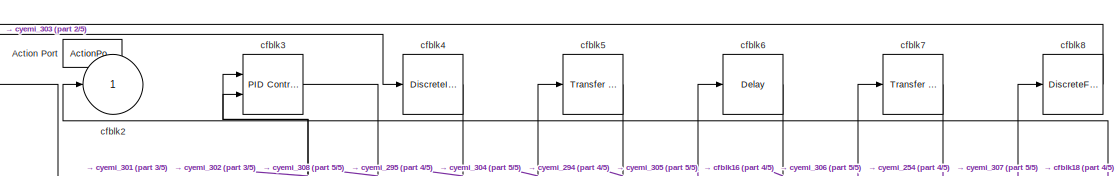
[diagram: cfblk239 - part 1/5, top center region]
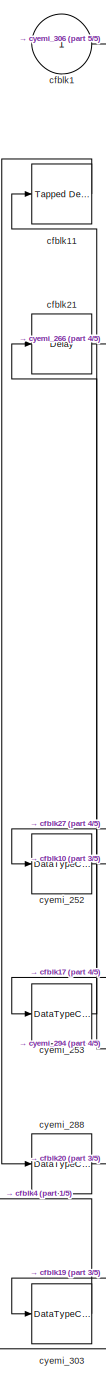
[diagram: cfblk239 - part 2/5, left side, full height]
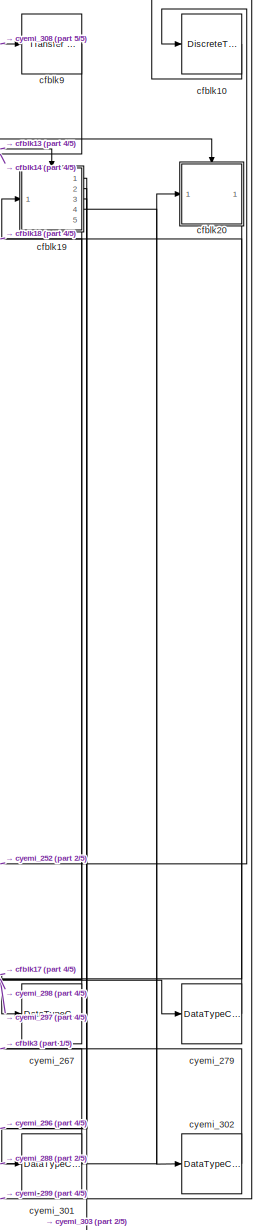
[diagram: cfblk239 - part 3/5, right side, full height]
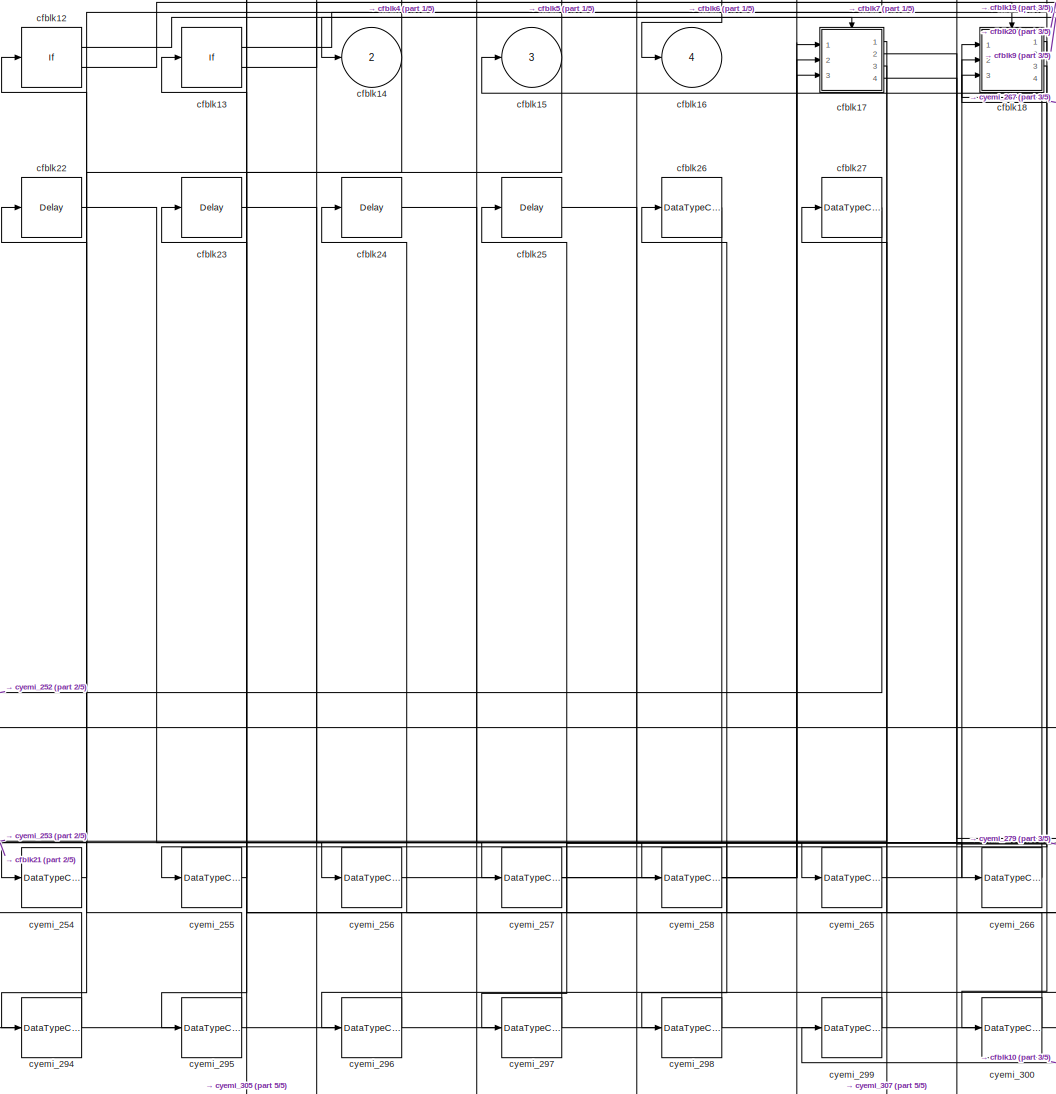
[diagram: cfblk239 - part 4/5, center side, full height]
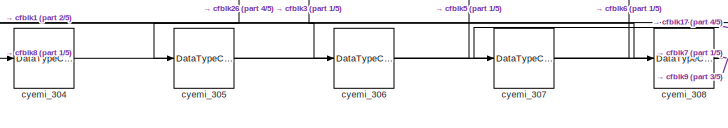
[diagram: cfblk239 - part 5/5, bottom center region]
BLOCK [SubSystem] cfblk239
  Ports = [1, 4, 0, 0, 0, 0, 0, 1]
  RequestExecContextInheritance = off
  TreatAsAtomicUnit = on
BLOCK [ActionPort] cfblk239/Action Port
  ActionType = else
BLOCK [Inport] cfblk239/cfblk1
  IconDisplay = Port number
BLOCK [DiscreteTransferFcn] cfblk239/cfblk10
  InputPortMap = u0
  Ports = [1, 1]
BLOCK [Reference] cfblk239/cfblk11  REF=simulink/Discrete/Tapped Delay
  Ports = [1, 1]
  SourceBlock = simulink/Discrete/Tapped Delay
  SourceProductBaseCode = SL
  SourceProductName = Simulink
  SourceType = Tapped Delay Line
BLOCK [If] cfblk239/cfblk12
  Ports = [1, 2]
  SampleTime = 1
BLOCK [If] cfblk239/cfblk13
  Ports = [1, 2]
  SampleTime = 1
BLOCK [Outport] cfblk239/cfblk14
  IconDisplay = Port number
  Port = 2
BLOCK [Outport] cfblk239/cfblk15
  IconDisplay = Port number
  Port = 3
BLOCK [Outport] cfblk239/cfblk16
  IconDisplay = Port number
  Port = 4
BLOCK [SubSystem] cfblk239/cfblk17
  Ports = [3, 4, 0, 0, 0, 0, 0, 1]
  RequestExecContextInheritance = off
  TreatAsAtomicUnit = on
BLOCK [ActionPort] cfblk239/cfblk17/Action Port
  ActionType = then
BLOCK [Inport] cfblk239/cfblk17/cfblk1
  IconDisplay = Port number
BLOCK [Inport] cfblk239/cfblk17/cfblk10
  IconDisplay = Port number
  Port = 3
BLOCK [Outport] cfblk239/cfblk17/cfblk11
  IconDisplay = Port number
  Port = 2
BLOCK [Outport] cfblk239/cfblk17/cfblk12
  IconDisplay = Port number
  Port = 3
BLOCK [Outport] cfblk239/cfblk17/cfblk13
  IconDisplay = Port number
  Port = 4
BLOCK [Outport] cfblk239/cfblk17/cfblk2
  IconDisplay = Port number
BLOCK [DiscreteIntegrator] cfblk239/cfblk17/cfblk3
  ICPrevOutput = DiscIntNeverNeededParam
  ICPrevScaledInput = DiscIntNeverNeededParam
  InitialConditionSetting = Auto
  Ports = [1, 1]
  SampleTime = -1
BLOCK [Reference] cfblk239/cfblk17/cfblk4  REF=simulink/Discrete/Transfer Fcn
Real Zero
  Ports = [1, 1]
  SourceBlock = simulink/Discrete/Transfer Fcn\nReal Zero
  SourceProductBaseCode = SL
  SourceProductName = Simulink
  SourceType = Transfer Fcn Real Zero
BLOCK [Reference] cfblk239/cfblk17/cfblk5  REF=simulink/Discrete/Transfer Fcn
Lead or Lag
  Ports = [1, 1]
  SourceBlock = simulink/Discrete/Transfer Fcn\nLead or Lag
  SourceProductBaseCode = SL
  SourceProductName = Simulink
  SourceType = Lead or Lag Compensator
BLOCK [DiscreteStateSpace] cfblk239/cfblk17/cfblk6
  SampleTime = -1
BLOCK [Reference] cfblk239/cfblk17/cfblk7  REF=simulink/Discrete/Transfer Fcn
Lead or Lag
  Ports = [1, 1]
  SourceBlock = simulink/Discrete/Transfer Fcn\nLead or Lag
  SourceProductBaseCode = SL
  SourceProductName = Simulink
  SourceType = Lead or Lag Compensator
BLOCK [UnitDelay] cfblk239/cfblk17/cfblk8
  InputProcessing = Elements as channels (sample based)
  SampleTime = -1
BLOCK [Inport] cfblk239/cfblk17/cfblk9
  IconDisplay = Port number
  Port = 2
BLOCK [DataTypeConversion] cfblk239/cfblk17/cyemi_259
  OutDataTypeStr = double
  RndMeth = Floor
  SaturateOnIntegerOverflow = off
BLOCK [DataTypeConversion] cfblk239/cfblk17/cyemi_260
  OutDataTypeStr = double
  RndMeth = Floor
  SaturateOnIntegerOverflow = off
BLOCK [DataTypeConversion] cfblk239/cfblk17/cyemi_261
  OutDataTypeStr = double
  RndMeth = Floor
  SaturateOnIntegerOverflow = off
BLOCK [DataTypeConversion] cfblk239/cfblk17/cyemi_262
  OutDataTypeStr = double
  RndMeth = Floor
  SaturateOnIntegerOverflow = off
BLOCK [DataTypeConversion] cfblk239/cfblk17/cyemi_263
  OutDataTypeStr = double
  RndMeth = Floor
  SaturateOnIntegerOverflow = off
BLOCK [DataTypeConversion] cfblk239/cfblk17/cyemi_264
  OutDataTypeStr = double
  RndMeth = Floor
  SaturateOnIntegerOverflow = off
BLOCK [SubSystem] cfblk239/cfblk18
  Ports = [3, 4, 0, 0, 0, 0, 0, 1]
  RequestExecContextInheritance = off
  TreatAsAtomicUnit = on
BLOCK [ActionPort] cfblk239/cfblk18/Action Port
  ActionType = else
BLOCK [Inport] cfblk239/cfblk18/cfblk1
  IconDisplay = Port number
BLOCK [Delay] cfblk239/cfblk18/cfblk10
  InputPortMap = u0
  Ports = [1, 1]
BLOCK [UnitDelay] cfblk239/cfblk18/cfblk11
  InputProcessing = Elements as channels (sample based)
  SampleTime = -1
BLOCK [DiscreteStateSpace] cfblk239/cfblk18/cfblk12
  SampleTime = -1
BLOCK [Inport] cfblk239/cfblk18/cfblk13
  IconDisplay = Port number
  Port = 2
BLOCK [Inport] cfblk239/cfblk18/cfblk14
  IconDisplay = Port number
  Port = 3
BLOCK [Outport] cfblk239/cfblk18/cfblk15
  IconDisplay = Port number
  Port = 2
BLOCK [Outport] cfblk239/cfblk18/cfblk16
  IconDisplay = Port number
  Port = 3
BLOCK [Outport] cfblk239/cfblk18/cfblk17
  IconDisplay = Port number
  Port = 4
BLOCK [Delay] cfblk239/cfblk18/cfblk18
  InputPortMap = u0
  Ports = [1, 1]
BLOCK [Outport] cfblk239/cfblk18/cfblk2
  IconDisplay = Port number
BLOCK [Reference] cfblk239/cfblk18/cfblk3  REF=simulink/Discrete/Tapped Delay
  Ports = [1, 1]
  SourceBlock = simulink/Discrete/Tapped Delay
  SourceProductBaseCode = SL
  SourceProductName = Simulink
  SourceType = Tapped Delay Line
BLOCK [Delay] cfblk239/cfblk18/cfblk4
  InputPortMap = u0
  Ports = [1, 1]
BLOCK [Reference] cfblk239/cfblk18/cfblk5  REF=simulink/Discrete/Tapped Delay
  Ports = [1, 1]
  SourceBlock = simulink/Discrete/Tapped Delay
  SourceProductBaseCode = SL
  SourceProductName = Simulink
  SourceType = Tapped Delay Line
BLOCK [DiscreteZeroPole] cfblk239/cfblk18/cfblk6
  Gain = 1
  Poles = [0 0.5]
  SampleTime = -1
BLOCK [Delay] cfblk239/cfblk18/cfblk7
  InputPortMap = u0
  Ports = [1, 1]
BLOCK [Reference] cfblk239/cfblk18/cfblk8  REF=simulink/Discrete/Tapped Delay
  Ports = [1, 1]
  SourceBlock = simulink/Discrete/Tapped Delay
  SourceProductBaseCode = SL
  SourceProductName = Simulink
  SourceType = Tapped Delay Line
BLOCK [Reference] cfblk239/cfblk18/cfblk9  REF=simulink/Discrete/Tapped Delay
  Ports = [1, 1]
  SourceBlock = simulink/Discrete/Tapped Delay
  SourceProductBaseCode = SL
  SourceProductName = Simulink
  SourceType = Tapped Delay Line
BLOCK [DataTypeConversion] cfblk239/cfblk18/cyemi_268
  OutDataTypeStr = double
  RndMeth = Floor
  SaturateOnIntegerOverflow = off
BLOCK [DataTypeConversion] cfblk239/cfblk18/cyemi_269
  OutDataTypeStr = double
  RndMeth = Floor
  SaturateOnIntegerOverflow = off
BLOCK [DataTypeConversion] cfblk239/cfblk18/cyemi_270
  OutDataTypeStr = double
  RndMeth = Floor
  SaturateOnIntegerOverflow = off
BLOCK [DataTypeConversion] cfblk239/cfblk18/cyemi_271
  OutDataTypeStr = double
  RndMeth = Floor
  SaturateOnIntegerOverflow = off
BLOCK [DataTypeConversion] cfblk239/cfblk18/cyemi_272
  OutDataTypeStr = double
  RndMeth = Floor
  SaturateOnIntegerOverflow = off
BLOCK [DataTypeConversion] cfblk239/cfblk18/cyemi_273
  OutDataTypeStr = double
  RndMeth = Floor
  SaturateOnIntegerOverflow = off
BLOCK [DataTypeConversion] cfblk239/cfblk18/cyemi_274
  OutDataTypeStr = double
  RndMeth = Floor
  SaturateOnIntegerOverflow = off
BLOCK [DataTypeConversion] cfblk239/cfblk18/cyemi_275
  OutDataTypeStr = double
  RndMeth = Floor
  SaturateOnIntegerOverflow = off
BLOCK [DataTypeConversion] cfblk239/cfblk18/cyemi_276
  OutDataTypeStr = double
  RndMeth = Floor
  SaturateOnIntegerOverflow = off
BLOCK [DataTypeConversion] cfblk239/cfblk18/cyemi_277
  OutDataTypeStr = double
  RndMeth = Floor
  SaturateOnIntegerOverflow = off
BLOCK [DataTypeConversion] cfblk239/cfblk18/cyemi_278
  OutDataTypeStr = double
  RndMeth = Floor
  SaturateOnIntegerOverflow = off
BLOCK [SubSystem] cfblk239/cfblk19
  Ports = [1, 5, 0, 0, 0, 0, 0, 1]
  RequestExecContextInheritance = off
  TreatAsAtomicUnit = on
BLOCK [ActionPort] cfblk239/cfblk19/Action Port
  ActionType = then
BLOCK [Inport] cfblk239/cfblk19/cfblk1
  IconDisplay = Port number
BLOCK [Outport] cfblk239/cfblk19/cfblk10
  IconDisplay = Port number
  Port = 3
BLOCK [Outport] cfblk239/cfblk19/cfblk11
  IconDisplay = Port number
  Port = 4
BLOCK [Outport] cfblk239/cfblk19/cfblk12
  IconDisplay = Port number
  Port = 5
BLOCK [Delay] cfblk239/cfblk19/cfblk13
  InputPortMap = u0
  Ports = [1, 1]
BLOCK [Outport] cfblk239/cfblk19/cfblk2
  IconDisplay = Port number
BLOCK [Delay] cfblk239/cfblk19/cfblk3
  InputPortMap = u0,e6
  Ports = [2, 1]
  ShowEnablePort = on
BLOCK [Reference] cfblk239/cfblk19/cfblk4  REF=simulink/Discrete/Transfer Fcn
Real Zero
  Ports = [1, 1]
  SourceBlock = simulink/Discrete/Transfer Fcn\nReal Zero
  SourceProductBaseCode = SL
  SourceProductName = Simulink
  SourceType = Transfer Fcn Real Zero
BLOCK [DiscreteStateSpace] cfblk239/cfblk19/cfblk5
  SampleTime = -1
BLOCK [Reference] cfblk239/cfblk19/cfblk6  REF=simulink/Discrete/Difference
  Ports = [1, 1]
  SourceBlock = simulink/Discrete/Difference
  SourceProductBaseCode = SL
  SourceProductName = Simulink
  SourceType = Difference
BLOCK [Reference] cfblk239/cfblk19/cfblk7  REF=simulink/Continuous/PID Controller
  Ports = [1, 1]
  SourceBlock = simulink/Continuous/PID Controller
  SourceProductBaseCode = SL
  SourceProductName = Simulink
  SourceType = PID 1dof
BLOCK [DiscreteZeroPole] cfblk239/cfblk19/cfblk8
  Gain = 1
  Poles = [0 0.5]
  SampleTime = -1
BLOCK [Outport] cfblk239/cfblk19/cfblk9
  IconDisplay = Port number
  Port = 2
BLOCK [DataTypeConversion] cfblk239/cfblk19/cyemi_280
  OutDataTypeStr = double
  RndMeth = Floor
  SaturateOnIntegerOverflow = off
BLOCK [DataTypeConversion] cfblk239/cfblk19/cyemi_281
  OutDataTypeStr = double
  RndMeth = Floor
  SaturateOnIntegerOverflow = off
BLOCK [DataTypeConversion] cfblk239/cfblk19/cyemi_282
  OutDataTypeStr = double
  RndMeth = Floor
  SaturateOnIntegerOverflow = off
BLOCK [DataTypeConversion] cfblk239/cfblk19/cyemi_283
  OutDataTypeStr = double
  RndMeth = Floor
  SaturateOnIntegerOverflow = off
BLOCK [DataTypeConversion] cfblk239/cfblk19/cyemi_284
  OutDataTypeStr = double
  RndMeth = Floor
  SaturateOnIntegerOverflow = off
BLOCK [DataTypeConversion] cfblk239/cfblk19/cyemi_285
  OutDataTypeStr = double
  RndMeth = Floor
  SaturateOnIntegerOverflow = off
BLOCK [DataTypeConversion] cfblk239/cfblk19/cyemi_286
  OutDataTypeStr = double
  RndMeth = Floor
  SaturateOnIntegerOverflow = off
BLOCK [DataTypeConversion] cfblk239/cfblk19/cyemi_287
  OutDataTypeStr = double
  RndMeth = Floor
  SaturateOnIntegerOverflow = off
BLOCK [Outport] cfblk239/cfblk2
  IconDisplay = Port number
BLOCK [SubSystem] cfblk239/cfblk20
  Ports = [1, 1, 0, 0, 0, 0, 0, 1]
  RequestExecContextInheritance = off
  TreatAsAtomicUnit = on
BLOCK [ActionPort] cfblk239/cfblk20/Action Port
  ActionType = else
BLOCK [Inport] cfblk239/cfblk20/cfblk1
  IconDisplay = Port number
BLOCK [Outport] cfblk239/cfblk20/cfblk2
  IconDisplay = Port number
BLOCK [DiscreteTransferFcn] cfblk239/cfblk20/cfblk3
  InputPortMap = u0
  Ports = [1, 1]
BLOCK [DiscreteFilter] cfblk239/cfblk20/cfblk4
  InputPortMap = u0
  Ports = [1, 1]
BLOCK [Reference] cfblk239/cfblk20/cfblk5  REF=simulink/Continuous/PID Controller
  Ports = [1, 1]
  SourceBlock = simulink/Continuous/PID Controller
  SourceProductBaseCode = SL
  SourceProductName = Simulink
  SourceType = PID 1dof
BLOCK [Reference] cfblk239/cfblk20/cfblk6  REF=simulink/Discrete/Tapped Delay
  Ports = [1, 1]
  SourceBlock = simulink/Discrete/Tapped Delay
  SourceProductBaseCode = SL
  SourceProductName = Simulink
  SourceType = Tapped Delay Line
BLOCK [Reference] cfblk239/cfblk20/cfblk7  REF=simulink/Discrete/Transfer Fcn
First Order
  Ports = [1, 1]
  SourceBlock = simulink/Discrete/Transfer Fcn\nFirst Order
  SourceProductBaseCode = SL
  SourceProductName = Simulink
  SourceType = First Order Transfer Fcn
BLOCK [DataTypeConversion] cfblk239/cfblk20/cyemi_289
  OutDataTypeStr = double
  RndMeth = Floor
  SaturateOnIntegerOverflow = off
BLOCK [DataTypeConversion] cfblk239/cfblk20/cyemi_290
  OutDataTypeStr = double
  RndMeth = Floor
  SaturateOnIntegerOverflow = off
BLOCK [DataTypeConversion] cfblk239/cfblk20/cyemi_291
  OutDataTypeStr = double
  RndMeth = Floor
  SaturateOnIntegerOverflow = off
BLOCK [DataTypeConversion] cfblk239/cfblk20/cyemi_292
  OutDataTypeStr = double
  RndMeth = Floor
  SaturateOnIntegerOverflow = off
BLOCK [DataTypeConversion] cfblk239/cfblk20/cyemi_293
  OutDataTypeStr = double
  RndMeth = Floor
  SaturateOnIntegerOverflow = off
BLOCK [Delay] cfblk239/cfblk21
  InputPortMap = u0
  Ports = [1, 1]
BLOCK [Delay] cfblk239/cfblk22
  InputPortMap = u0
  Ports = [1, 1]
BLOCK [Delay] cfblk239/cfblk23
  InputPortMap = u0
  Ports = [1, 1]
BLOCK [Delay] cfblk239/cfblk24
  InputPortMap = u0
  Ports = [1, 1]
BLOCK [Delay] cfblk239/cfblk25
  InputPortMap = u0
  Ports = [1, 1]
BLOCK [DataTypeConversion] cfblk239/cfblk26
  OutDataTypeStr = uint32
  RndMeth = Floor
  SaturateOnIntegerOverflow = off
BLOCK [DataTypeConversion] cfblk239/cfblk27
  OutDataTypeStr = double
  RndMeth = Floor
  SaturateOnIntegerOverflow = off
BLOCK [Reference] cfblk239/cfblk3  REF=simulink/Continuous/PID Controller (2DOF)
  Ports = [2, 1]
  SourceBlock = simulink/Continuous/PID Controller (2DOF)
  SourceProductBaseCode = SL
  SourceProductName = Simulink
  SourceType = PID 2dof
BLOCK [DiscreteIntegrator] cfblk239/cfblk4
  ICPrevOutput = DiscIntNeverNeededParam
  ICPrevScaledInput = DiscIntNeverNeededParam
  InitialConditionSetting = Auto
  Ports = [1, 1]
  SampleTime = -1
BLOCK [Reference] cfblk239/cfblk5  REF=simulink/Discrete/Transfer Fcn
Real Zero
  Ports = [1, 1]
  SourceBlock = simulink/Discrete/Transfer Fcn\nReal Zero
  SourceProductBaseCode = SL
  SourceProductName = Simulink
  SourceType = Transfer Fcn Real Zero
BLOCK [Delay] cfblk239/cfblk6
  InputPortMap = u0
  Ports = [1, 1]
BLOCK [Reference] cfblk239/cfblk7  REF=simulink/Discrete/Transfer Fcn
Lead or Lag
  Ports = [1, 1]
  SourceBlock = simulink/Discrete/Transfer Fcn\nLead or Lag
  SourceProductBaseCode = SL
  SourceProductName = Simulink
  SourceType = Lead or Lag Compensator
BLOCK [DiscreteFir] cfblk239/cfblk8
  InputPortMap = u0
  OutputPortMap = o0
  Ports = [1, 1]
BLOCK [Reference] cfblk239/cfblk9  REF=simulink/Discrete/Transfer Fcn
First Order
  Ports = [1, 1]
  SourceBlock = simulink/Discrete/Transfer Fcn\nFirst Order
  SourceProductBaseCode = SL
  SourceProductName = Simulink
  SourceType = First Order Transfer Fcn
BLOCK [DataTypeConversion] cfblk239/cyemi_252
  OutDataTypeStr = double
  RndMeth = Floor
  SaturateOnIntegerOverflow = off
BLOCK [DataTypeConversion] cfblk239/cyemi_253
  OutDataTypeStr = double
  RndMeth = Floor
  SaturateOnIntegerOverflow = off
BLOCK [DataTypeConversion] cfblk239/cyemi_254
  OutDataTypeStr = double
  RndMeth = Floor
  SaturateOnIntegerOverflow = off
BLOCK [DataTypeConversion] cfblk239/cyemi_255
  OutDataTypeStr = double
  RndMeth = Floor
  SaturateOnIntegerOverflow = off
BLOCK [DataTypeConversion] cfblk239/cyemi_256
  OutDataTypeStr = double
  RndMeth = Floor
  SaturateOnIntegerOverflow = off
BLOCK [DataTypeConversion] cfblk239/cyemi_257
  OutDataTypeStr = double
  RndMeth = Floor
  SaturateOnIntegerOverflow = off
BLOCK [DataTypeConversion] cfblk239/cyemi_258
  OutDataTypeStr = double
  RndMeth = Floor
  SaturateOnIntegerOverflow = off
BLOCK [DataTypeConversion] cfblk239/cyemi_265
  OutDataTypeStr = double
  RndMeth = Floor
  SaturateOnIntegerOverflow = off
BLOCK [DataTypeConversion] cfblk239/cyemi_266
  OutDataTypeStr = double
  RndMeth = Floor
  SaturateOnIntegerOverflow = off
BLOCK [DataTypeConversion] cfblk239/cyemi_267
  OutDataTypeStr = double
  RndMeth = Floor
  SaturateOnIntegerOverflow = off
BLOCK [DataTypeConversion] cfblk239/cyemi_279
  OutDataTypeStr = double
  RndMeth = Floor
  SaturateOnIntegerOverflow = off
BLOCK [DataTypeConversion] cfblk239/cyemi_288
  OutDataTypeStr = double
  RndMeth = Floor
  SaturateOnIntegerOverflow = off
BLOCK [DataTypeConversion] cfblk239/cyemi_294
  OutDataTypeStr = double
  RndMeth = Floor
  SaturateOnIntegerOverflow = off
BLOCK [DataTypeConversion] cfblk239/cyemi_295
  OutDataTypeStr = double
  RndMeth = Floor
  SaturateOnIntegerOverflow = off
BLOCK [DataTypeConversion] cfblk239/cyemi_296
  OutDataTypeStr = double
  RndMeth = Floor
  SaturateOnIntegerOverflow = off
BLOCK [DataTypeConversion] cfblk239/cyemi_297
  OutDataTypeStr = double
  RndMeth = Floor
  SaturateOnIntegerOverflow = off
BLOCK [DataTypeConversion] cfblk239/cyemi_298
  OutDataTypeStr = double
  RndMeth = Floor
  SaturateOnIntegerOverflow = off
BLOCK [DataTypeConversion] cfblk239/cyemi_299
  OutDataTypeStr = double
  RndMeth = Floor
  SaturateOnIntegerOverflow = off
BLOCK [DataTypeConversion] cfblk239/cyemi_300
  OutDataTypeStr = double
  RndMeth = Floor
  SaturateOnIntegerOverflow = off
BLOCK [DataTypeConversion] cfblk239/cyemi_301
  OutDataTypeStr = double
  RndMeth = Floor
  SaturateOnIntegerOverflow = off
BLOCK [DataTypeConversion] cfblk239/cyemi_302
  OutDataTypeStr = double
  RndMeth = Floor
  SaturateOnIntegerOverflow = off
BLOCK [DataTypeConversion] cfblk239/cyemi_303
  OutDataTypeStr = double
  RndMeth = Floor
  SaturateOnIntegerOverflow = off
BLOCK [DataTypeConversion] cfblk239/cyemi_304
  OutDataTypeStr = double
  RndMeth = Floor
  SaturateOnIntegerOverflow = off
BLOCK [DataTypeConversion] cfblk239/cyemi_305
  OutDataTypeStr = uint32
  RndMeth = Floor
  SaturateOnIntegerOverflow = off
BLOCK [DataTypeConversion] cfblk239/cyemi_306
  OutDataTypeStr = double
  RndMeth = Floor
  SaturateOnIntegerOverflow = off
BLOCK [DataTypeConversion] cfblk239/cyemi_307
  OutDataTypeStr = double
  RndMeth = Floor
  SaturateOnIntegerOverflow = off
BLOCK [DataTypeConversion] cfblk239/cyemi_308
  OutDataTypeStr = double
  RndMeth = Floor
  SaturateOnIntegerOverflow = off
BLOCK [DiscreteFilter] cfblk24
  InputPortMap = u0
  Ports = [1, 1]
  SampleTime = 1
BLOCK [SubSystem] cfblk240
  Ports = [1, 2, 0, 0, 0, 0, 0, 1]
  RequestExecContextInheritance = off
  TreatAsAtomicUnit = on
BLOCK [ActionPort] cfblk240/Action Port
  ActionType = then
BLOCK [Inport] cfblk240/cfblk1
  IconDisplay = Port number
BLOCK [Outport] cfblk240/cfblk2
  IconDisplay = Port number
BLOCK [DiscreteStateSpace] cfblk240/cfblk3
  SampleTime = -1
BLOCK [Reference] cfblk240/cfblk4  REF=simulink/Discrete/Transfer Fcn
Lead or Lag
  Ports = [1, 1]
  SourceBlock = simulink/Discrete/Transfer Fcn\nLead or Lag
  SourceProductBaseCode = SL
  SourceProductName = Simulink
  SourceType = Lead or Lag Compensator
BLOCK [Delay] cfblk240/cfblk5
  InputPortMap = u0,e6
  Ports = [2, 1]
  ShowEnablePort = on
BLOCK [Reference] cfblk240/cfblk6  REF=simulink/Discrete/Transfer Fcn
Lead or Lag
  Ports = [1, 1]
  SourceBlock = simulink/Discrete/Transfer Fcn\nLead or Lag
  SourceProductBaseCode = SL
  SourceProductName = Simulink
  SourceType = Lead or Lag Compensator
BLOCK [DiscreteZeroPole] cfblk240/cfblk7
  Gain = 1
  Poles = [0 0.5]
  SampleTime = -1
BLOCK [Outport] cfblk240/cfblk8
  IconDisplay = Port number
  Port = 2
BLOCK [Delay] cfblk240/cfblk9
  InputPortMap = u0
  Ports = [1, 1]
BLOCK [DataTypeConversion] cfblk240/cyemi_311
  OutDataTypeStr = double
  RndMeth = Floor
  SaturateOnIntegerOverflow = off
BLOCK [DataTypeConversion] cfblk240/cyemi_312
  OutDataTypeStr = double
  RndMeth = Floor
  SaturateOnIntegerOverflow = off
BLOCK [DataTypeConversion] cfblk240/cyemi_313
  OutDataTypeStr = double
  RndMeth = Floor
  SaturateOnIntegerOverflow = off
BLOCK [DataTypeConversion] cfblk240/cyemi_314
  OutDataTypeStr = double
  RndMeth = Floor
  SaturateOnIntegerOverflow = off
BLOCK [DataTypeConversion] cfblk240/cyemi_315
  OutDataTypeStr = double
  RndMeth = Floor
  SaturateOnIntegerOverflow = off
BLOCK [DataTypeConversion] cfblk240/cyemi_316
  OutDataTypeStr = double
  RndMeth = Floor
  SaturateOnIntegerOverflow = off
BLOCK [DataTypeConversion] cfblk240/cyemi_317
  OutDataTypeStr = double
  RndMeth = Floor
  SaturateOnIntegerOverflow = off
BLOCK [SubSystem] cfblk241
  Ports = [1, 3, 0, 0, 0, 0, 0, 1]
  RequestExecContextInheritance = off
  TreatAsAtomicUnit = on
BLOCK [ActionPort] cfblk241/Action Port
  ActionType = else
BLOCK [Inport] cfblk241/cfblk1
  IconDisplay = Port number
BLOCK [SubSystem] cfblk241/cfblk10
  Ports = [1, 2, 0, 0, 0, 0, 0, 1]
  RequestExecContextInheritance = off
  TreatAsAtomicUnit = on
BLOCK [ActionPort] cfblk241/cfblk10/Action Port
  ActionType = else
BLOCK [Inport] cfblk241/cfblk10/cfblk1
  IconDisplay = Port number
BLOCK [Outport] cfblk241/cfblk10/cfblk2
  IconDisplay = Port number
BLOCK [Reference] cfblk241/cfblk10/cfblk3  REF=simulink/Continuous/PID Controller (2DOF)
  Ports = [2, 1]
  SourceBlock = simulink/Continuous/PID Controller (2DOF)
  SourceProductBaseCode = SL
  SourceProductName = Simulink
  SourceType = PID 2dof
BLOCK [DiscreteFir] cfblk241/cfblk10/cfblk4
  InputPortMap = u0
  OutputPortMap = o0
  Ports = [1, 1]
BLOCK [Reference] cfblk241/cfblk10/cfblk5  REF=simulink/Continuous/PID Controller
  Ports = [1, 1]
  SourceBlock = simulink/Continuous/PID Controller
  SourceProductBaseCode = SL
  SourceProductName = Simulink
  SourceType = PID 1dof
BLOCK [Reference] cfblk241/cfblk10/cfblk6  REF=simulink/Discrete/Difference
  Ports = [1, 1]
  SourceBlock = simulink/Discrete/Difference
  SourceProductBaseCode = SL
  SourceProductName = Simulink
  SourceType = Difference
BLOCK [Outport] cfblk241/cfblk10/cfblk7
  IconDisplay = Port number
  Port = 2
BLOCK [Delay] cfblk241/cfblk10/cfblk8
  InputPortMap = u0
  Ports = [1, 1]
BLOCK [DataTypeConversion] cfblk241/cfblk10/cyemi_320
  OutDataTypeStr = double
  RndMeth = Floor
  SaturateOnIntegerOverflow = off
BLOCK [DataTypeConversion] cfblk241/cfblk10/cyemi_321
  OutDataTypeStr = double
  RndMeth = Floor
  SaturateOnIntegerOverflow = off
BLOCK [DataTypeConversion] cfblk241/cfblk10/cyemi_322
  OutDataTypeStr = double
  RndMeth = Floor
  SaturateOnIntegerOverflow = off
BLOCK [DataTypeConversion] cfblk241/cfblk10/cyemi_323
  OutDataTypeStr = double
  RndMeth = Floor
  SaturateOnIntegerOverflow = off
BLOCK [DataTypeConversion] cfblk241/cfblk10/cyemi_324
  OutDataTypeStr = double
  RndMeth = Floor
  SaturateOnIntegerOverflow = off
BLOCK [DataTypeConversion] cfblk241/cfblk10/cyemi_325
  OutDataTypeStr = double
  RndMeth = Floor
  SaturateOnIntegerOverflow = off
BLOCK [Delay] cfblk241/cfblk11
  InputPortMap = u0
  Ports = [1, 1]
BLOCK [Delay] cfblk241/cfblk12
  InputPortMap = u0
  Ports = [1, 1]
BLOCK [Delay] cfblk241/cfblk13
  InputPortMap = u0
  Ports = [1, 1]
BLOCK [Outport] cfblk241/cfblk2
  IconDisplay = Port number
BLOCK [Reference] cfblk241/cfblk3  REF=simulink/Continuous/PID Controller (2DOF)
  Ports = [2, 1]
  SourceBlock = simulink/Continuous/PID Controller (2DOF)
  SourceProductBaseCode = SL
  SourceProductName = Simulink
  SourceType = PID 2dof
BLOCK [DiscreteIntegrator] cfblk241/cfblk4
  ICPrevOutput = DiscIntNeverNeededParam
  ICPrevScaledInput = DiscIntNeverNeededParam
  InitialConditionSetting = Auto
  Ports = [1, 1]
  SampleTime = -1
BLOCK [DiscreteTransferFcn] cfblk241/cfblk5
  InputPortMap = u0
  Ports = [1, 1]
BLOCK [If] cfblk241/cfblk6
  Ports = [1, 2]
  SampleTime = 1
BLOCK [Outport] cfblk241/cfblk7
  IconDisplay = Port number
  Port = 2
BLOCK [Outport] cfblk241/cfblk8
  IconDisplay = Port number
  Port = 3
BLOCK [SubSystem] cfblk241/cfblk9
  Ports = [1, 2, 0, 0, 0, 0, 0, 1]
  RequestExecContextInheritance = off
  TreatAsAtomicUnit = on
BLOCK [ActionPort] cfblk241/cfblk9/Action Port
  ActionType = then
BLOCK [Inport] cfblk241/cfblk9/cfblk1
  IconDisplay = Port number
BLOCK [Reference] cfblk241/cfblk9/cfblk10  REF=simulink/Continuous/PID Controller (2DOF)
  Ports = [2, 1]
  SourceBlock = simulink/Continuous/PID Controller (2DOF)
  SourceProductBaseCode = SL
  SourceProductName = Simulink
  SourceType = PID 2dof
BLOCK [Reference] cfblk241/cfblk9/cfblk11  REF=simulink/Discrete/Transfer Fcn
Real Zero
  Ports = [1, 1]
  SourceBlock = simulink/Discrete/Transfer Fcn\nReal Zero
  SourceProductBaseCode = SL
  SourceProductName = Simulink
  SourceType = Transfer Fcn Real Zero
BLOCK [Outport] cfblk241/cfblk9/cfblk12
  IconDisplay = Port number
  Port = 2
BLOCK [Delay] cfblk241/cfblk9/cfblk13
  InputPortMap = u0
  Ports = [1, 1]
BLOCK [Outport] cfblk241/cfblk9/cfblk2
  IconDisplay = Port number
BLOCK [DiscreteIntegrator] cfblk241/cfblk9/cfblk3
  ICPrevOutput = DiscIntNeverNeededParam
  ICPrevScaledInput = DiscIntNeverNeededParam
  InitialConditionSetting = Auto
  Ports = [1, 1]
  SampleTime = -1
BLOCK [DiscreteStateSpace] cfblk241/cfblk9/cfblk4
  SampleTime = -1
BLOCK [DiscreteFilter] cfblk241/cfblk9/cfblk5
  InputPortMap = u0
  Ports = [1, 1]
BLOCK [Delay] cfblk241/cfblk9/cfblk6
  DelayLengthSource = Input port
  InputPortMap = u0,p1
  Ports = [2, 1]
BLOCK [DiscreteFilter] cfblk241/cfblk9/cfblk7
  InputPortMap = u0
  Ports = [1, 1]
BLOCK [DiscreteZeroPole] cfblk241/cfblk9/cfblk8
  Gain = 1
  Poles = [0 0.5]
  SampleTime = -1
BLOCK [Reference] cfblk241/cfblk9/cfblk9  REF=simulink/Discrete/Difference
  Ports = [1, 1]
  SourceBlock = simulink/Discrete/Difference
  SourceProductBaseCode = SL
  SourceProductName = Simulink
  SourceType = Difference
BLOCK [DataTypeConversion] cfblk241/cfblk9/cyemi_335
  OutDataTypeStr = double
  RndMeth = Floor
  SaturateOnIntegerOverflow = off
BLOCK [DataTypeConversion] cfblk241/cfblk9/cyemi_336
  OutDataTypeStr = double
  RndMeth = Floor
  SaturateOnIntegerOverflow = off
BLOCK [DataTypeConversion] cfblk241/cfblk9/cyemi_337
  OutDataTypeStr = double
  RndMeth = Floor
  SaturateOnIntegerOverflow = off
BLOCK [DataTypeConversion] cfblk241/cfblk9/cyemi_338
  OutDataTypeStr = double
  RndMeth = Floor
  SaturateOnIntegerOverflow = off
BLOCK [DataTypeConversion] cfblk241/cfblk9/cyemi_339
  OutDataTypeStr = double
  RndMeth = Floor
  SaturateOnIntegerOverflow = off
BLOCK [DataTypeConversion] cfblk241/cfblk9/cyemi_340
  OutDataTypeStr = double
  RndMeth = Floor
  SaturateOnIntegerOverflow = off
BLOCK [DataTypeConversion] cfblk241/cfblk9/cyemi_341
  OutDataTypeStr = double
  RndMeth = Floor
  SaturateOnIntegerOverflow = off
BLOCK [DataTypeConversion] cfblk241/cfblk9/cyemi_342
  OutDataTypeStr = double
  RndMeth = Floor
  SaturateOnIntegerOverflow = off
BLOCK [DataTypeConversion] cfblk241/cfblk9/cyemi_343
  OutDataTypeStr = double
  RndMeth = Floor
  SaturateOnIntegerOverflow = off
BLOCK [DataTypeConversion] cfblk241/cfblk9/cyemi_344
  OutDataTypeStr = double
  RndMeth = Floor
  SaturateOnIntegerOverflow = off
BLOCK [DataTypeConversion] cfblk241/cfblk9/cyemi_345
  OutDataTypeStr = double
  RndMeth = Floor
  SaturateOnIntegerOverflow = off
BLOCK [DataTypeConversion] cfblk241/cfblk9/cyemi_346
  OutDataTypeStr = double
  RndMeth = Floor
  SaturateOnIntegerOverflow = off
BLOCK [DataTypeConversion] cfblk241/cyemi_319
  OutDataTypeStr = double
  RndMeth = Floor
  SaturateOnIntegerOverflow = off
BLOCK [DataTypeConversion] cfblk241/cyemi_326
  OutDataTypeStr = double
  RndMeth = Floor
  SaturateOnIntegerOverflow = off
BLOCK [DataTypeConversion] cfblk241/cyemi_327
  OutDataTypeStr = double
  RndMeth = Floor
  SaturateOnIntegerOverflow = off
BLOCK [DataTypeConversion] cfblk241/cyemi_328
  OutDataTypeStr = double
  RndMeth = Floor
  SaturateOnIntegerOverflow = off
BLOCK [DataTypeConversion] cfblk241/cyemi_329
  OutDataTypeStr = double
  RndMeth = Floor
  SaturateOnIntegerOverflow = off
BLOCK [DataTypeConversion] cfblk241/cyemi_330
  OutDataTypeStr = double
  RndMeth = Floor
  SaturateOnIntegerOverflow = off
BLOCK [DataTypeConversion] cfblk241/cyemi_331
  OutDataTypeStr = double
  RndMeth = Floor
  SaturateOnIntegerOverflow = off
BLOCK [DataTypeConversion] cfblk241/cyemi_332
  OutDataTypeStr = double
  RndMeth = Floor
  SaturateOnIntegerOverflow = off
BLOCK [DataTypeConversion] cfblk241/cyemi_333
  OutDataTypeStr = double
  RndMeth = Floor
  SaturateOnIntegerOverflow = off
BLOCK [DataTypeConversion] cfblk241/cyemi_334
  OutDataTypeStr = double
  RndMeth = Floor
  SaturateOnIntegerOverflow = off
BLOCK [SubSystem] cfblk242
  Ports = [2, 2, 0, 0, 0, 0, 0, 1]
  RequestExecContextInheritance = off
  TreatAsAtomicUnit = on
BLOCK [ActionPort] cfblk242/Action Port
  ActionType = then
BLOCK [Inport] cfblk242/cfblk1
  IconDisplay = Port number
BLOCK [Outport] cfblk242/cfblk10
  IconDisplay = Port number
  Port = 2
BLOCK [Delay] cfblk242/cfblk11
  InputPortMap = u0
  Ports = [1, 1]
BLOCK [Delay] cfblk242/cfblk12
  InputPortMap = u0
  Ports = [1, 1]
BLOCK [Outport] cfblk242/cfblk2
  IconDisplay = Port number
BLOCK [DiscreteFir] cfblk242/cfblk3
  InputPortMap = u0
  OutputPortMap = o0
  Ports = [1, 1]
BLOCK [Reference] cfblk242/cfblk4  REF=simulink/Discrete/Transfer Fcn
First Order
  Ports = [1, 1]
  SourceBlock = simulink/Discrete/Transfer Fcn\nFirst Order
  SourceProductBaseCode = SL
  SourceProductName = Simulink
  SourceType = First Order Transfer Fcn
BLOCK [Reference] cfblk242/cfblk5  REF=simulink/Discrete/Transfer Fcn
Real Zero
  Ports = [1, 1]
  SourceBlock = simulink/Discrete/Transfer Fcn\nReal Zero
  SourceProductBaseCode = SL
  SourceProductName = Simulink
  SourceType = Transfer Fcn Real Zero
BLOCK [Delay] cfblk242/cfblk6
  DelayLengthSource = Input port
  InputPortMap = u0,p1
  Ports = [2, 1]
BLOCK [Delay] cfblk242/cfblk7
  InputPortMap = u0,e6
  Ports = [2, 1]
  ShowEnablePort = on
BLOCK [Delay] cfblk242/cfblk8
  DelayLengthSource = Input port
  InputPortMap = u0,p1
  Ports = [2, 1]
BLOCK [Inport] cfblk242/cfblk9
  IconDisplay = Port number
  Port = 2
BLOCK [DataTypeConversion] cfblk242/cyemi_349
  OutDataTypeStr = double
  RndMeth = Floor
  SaturateOnIntegerOverflow = off
BLOCK [DataTypeConversion] cfblk242/cyemi_350
  OutDataTypeStr = double
  RndMeth = Floor
  SaturateOnIntegerOverflow = off
BLOCK [DataTypeConversion] cfblk242/cyemi_351
  OutDataTypeStr = double
  RndMeth = Floor
  SaturateOnIntegerOverflow = off
BLOCK [DataTypeConversion] cfblk242/cyemi_352
  OutDataTypeStr = double
  RndMeth = Floor
  SaturateOnIntegerOverflow = off
BLOCK [DataTypeConversion] cfblk242/cyemi_353
  OutDataTypeStr = double
  RndMeth = Floor
  SaturateOnIntegerOverflow = off
BLOCK [DataTypeConversion] cfblk242/cyemi_354
  OutDataTypeStr = double
  RndMeth = Floor
  SaturateOnIntegerOverflow = off
BLOCK [DataTypeConversion] cfblk242/cyemi_355
  OutDataTypeStr = double
  RndMeth = Floor
  SaturateOnIntegerOverflow = off
BLOCK [DataTypeConversion] cfblk242/cyemi_356
  OutDataTypeStr = double
  RndMeth = Floor
  SaturateOnIntegerOverflow = off
BLOCK [DataTypeConversion] cfblk242/cyemi_357
  OutDataTypeStr = double
  RndMeth = Floor
  SaturateOnIntegerOverflow = off
BLOCK [DataTypeConversion] cfblk242/cyemi_358
  OutDataTypeStr = double
  RndMeth = Floor
  SaturateOnIntegerOverflow = off
BLOCK [DataTypeConversion] cfblk242/cyemi_359
  OutDataTypeStr = double
  RndMeth = Floor
  SaturateOnIntegerOverflow = off
BLOCK [SubSystem] cfblk243
  Ports = [2, 5, 0, 0, 0, 0, 0, 1]
  RequestExecContextInheritance = off
  TreatAsAtomicUnit = on
BLOCK [ActionPort] cfblk243/Action Port
  ActionType = else
BLOCK [Inport] cfblk243/cfblk1
  IconDisplay = Port number
BLOCK [DiscreteIntegrator] cfblk243/cfblk10
  ICPrevOutput = DiscIntNeverNeededParam
  ICPrevScaledInput = DiscIntNeverNeededParam
  InitialConditionSetting = Auto
  Ports = [1, 1]
  SampleTime = -1
BLOCK [Reference] cfblk243/cfblk11  REF=simulink/Discrete/Transfer Fcn
First Order
  Ports = [1, 1]
  SourceBlock = simulink/Discrete/Transfer Fcn\nFirst Order
  SourceProductBaseCode = SL
  SourceProductName = Simulink
  SourceType = First Order Transfer Fcn
BLOCK [Reference] cfblk243/cfblk12  REF=simulink/Continuous/PID Controller (2DOF)
  Ports = [2, 1]
  SourceBlock = simulink/Continuous/PID Controller (2DOF)
  SourceProductBaseCode = SL
  SourceProductName = Simulink
  SourceType = PID 2dof
BLOCK [Inport] cfblk243/cfblk13
  IconDisplay = Port number
  Port = 2
BLOCK [Outport] cfblk243/cfblk14
  IconDisplay = Port number
  Port = 2
BLOCK [Outport] cfblk243/cfblk15
  IconDisplay = Port number
  Port = 3
BLOCK [Outport] cfblk243/cfblk16
  IconDisplay = Port number
  Port = 4
BLOCK [Outport] cfblk243/cfblk17
  IconDisplay = Port number
  Port = 5
BLOCK [Outport] cfblk243/cfblk2
  IconDisplay = Port number
BLOCK [UnitDelay] cfblk243/cfblk3
  InputProcessing = Elements as channels (sample based)
  SampleTime = -1
BLOCK [Reference] cfblk243/cfblk4  REF=simulink/Continuous/PID Controller (2DOF)
  Ports = [2, 1]
  SourceBlock = simulink/Continuous/PID Controller (2DOF)
  SourceProductBaseCode = SL
  SourceProductName = Simulink
  SourceType = PID 2dof
BLOCK [DiscreteFilter] cfblk243/cfblk5
  InputPortMap = u0
  Ports = [1, 1]
BLOCK [Delay] cfblk243/cfblk6
  InputPortMap = u0
  Ports = [1, 1]
BLOCK [DiscreteFir] cfblk243/cfblk7
  InputPortMap = u0
  OutputPortMap = o0
  Ports = [1, 1]
BLOCK [UnitDelay] cfblk243/cfblk8
  InputProcessing = Elements as channels (sample based)
  SampleTime = -1
BLOCK [Delay] cfblk243/cfblk9
  InputPortMap = u0,e6
  Ports = [2, 1]
  ShowEnablePort = on
BLOCK [DataTypeConversion] cfblk243/cyemi_362
  OutDataTypeStr = double
  RndMeth = Floor
  SaturateOnIntegerOverflow = off
BLOCK [DataTypeConversion] cfblk243/cyemi_363
  OutDataTypeStr = double
  RndMeth = Floor
  SaturateOnIntegerOverflow = off
BLOCK [DataTypeConversion] cfblk243/cyemi_364
  OutDataTypeStr = double
  RndMeth = Floor
  SaturateOnIntegerOverflow = off
BLOCK [DataTypeConversion] cfblk243/cyemi_365
  OutDataTypeStr = double
  RndMeth = Floor
  SaturateOnIntegerOverflow = off
BLOCK [DataTypeConversion] cfblk243/cyemi_366
  OutDataTypeStr = double
  RndMeth = Floor
  SaturateOnIntegerOverflow = off
BLOCK [DataTypeConversion] cfblk243/cyemi_367
  OutDataTypeStr = double
  RndMeth = Floor
  SaturateOnIntegerOverflow = off
BLOCK [DataTypeConversion] cfblk243/cyemi_368
  OutDataTypeStr = double
  RndMeth = Floor
  SaturateOnIntegerOverflow = off
BLOCK [DataTypeConversion] cfblk243/cyemi_369
  OutDataTypeStr = double
  RndMeth = Floor
  SaturateOnIntegerOverflow = off
BLOCK [DataTypeConversion] cfblk243/cyemi_370
  OutDataTypeStr = double
  RndMeth = Floor
  SaturateOnIntegerOverflow = off
BLOCK [DataTypeConversion] cfblk243/cyemi_371
  OutDataTypeStr = double
  RndMeth = Floor
  SaturateOnIntegerOverflow = off
BLOCK [DataTypeConversion] cfblk243/cyemi_372
  OutDataTypeStr = double
  RndMeth = Floor
  SaturateOnIntegerOverflow = off
BLOCK [DataTypeConversion] cfblk243/cyemi_373
  OutDataTypeStr = double
  RndMeth = Floor
  SaturateOnIntegerOverflow = off
BLOCK [DataTypeConversion] cfblk243/cyemi_374
  OutDataTypeStr = double
  RndMeth = Floor
  SaturateOnIntegerOverflow = off
BLOCK [SubSystem] cfblk244
  Ports = [2, 1, 0, 0, 0, 0, 0, 1]
  RequestExecContextInheritance = off
  TreatAsAtomicUnit = on
BLOCK [ActionPort] cfblk244/Action Port
  ActionType = then
BLOCK [Inport] cfblk244/cfblk1
  IconDisplay = Port number
BLOCK [Outport] cfblk244/cfblk2
  IconDisplay = Port number
BLOCK [DiscreteFilter] cfblk244/cfblk3
  InputPortMap = u0
  Ports = [1, 1]
BLOCK [Delay] cfblk244/cfblk4
  DelayLengthSource = Input port
  InputPortMap = u0,p1
  Ports = [2, 1]
BLOCK [DiscreteFilter] cfblk244/cfblk5
  InputPortMap = u0
  Ports = [1, 1]
BLOCK [UnitDelay] cfblk244/cfblk6
  InputProcessing = Elements as channels (sample based)
  SampleTime = -1
BLOCK [Inport] cfblk244/cfblk7
  IconDisplay = Port number
  Port = 2
BLOCK [Delay] cfblk244/cfblk8
  InputPortMap = u0
  Ports = [1, 1]
BLOCK [DataTypeConversion] cfblk244/cyemi_377
  OutDataTypeStr = double
  RndMeth = Floor
  SaturateOnIntegerOverflow = off
BLOCK [DataTypeConversion] cfblk244/cyemi_378
  OutDataTypeStr = double
  RndMeth = Floor
  SaturateOnIntegerOverflow = off
BLOCK [DataTypeConversion] cfblk244/cyemi_379
  OutDataTypeStr = double
  RndMeth = Floor
  SaturateOnIntegerOverflow = off
BLOCK [DataTypeConversion] cfblk244/cyemi_380
  OutDataTypeStr = double
  RndMeth = Floor
  SaturateOnIntegerOverflow = off
BLOCK [DataTypeConversion] cfblk244/cyemi_381
  OutDataTypeStr = double
  RndMeth = Floor
  SaturateOnIntegerOverflow = off
BLOCK [DataTypeConversion] cfblk244/cyemi_382
  OutDataTypeStr = double
  RndMeth = Floor
  SaturateOnIntegerOverflow = off
BLOCK [SubSystem] cfblk245
  Ports = [3, 1, 0, 0, 0, 0, 0, 1]
  RequestExecContextInheritance = off
  TreatAsAtomicUnit = on
BLOCK [ActionPort] cfblk245/Action Port
  ActionType = else
BLOCK [Inport] cfblk245/cfblk1
  IconDisplay = Port number
BLOCK [SubSystem] cfblk245/cfblk10
  Ports = [1, 1, 0, 0, 0, 0, 0, 1]
  RequestExecContextInheritance = off
  TreatAsAtomicUnit = on
BLOCK [ActionPort] cfblk245/cfblk10/Action Port
  ActionType = then
BLOCK [Inport] cfblk245/cfblk10/cfblk1
  IconDisplay = Port number
BLOCK [Outport] cfblk245/cfblk10/cfblk2
  IconDisplay = Port number
BLOCK [Reference] cfblk245/cfblk10/cfblk3  REF=simulink/Continuous/PID Controller
  Ports = [1, 1]
  SourceBlock = simulink/Continuous/PID Controller
  SourceProductBaseCode = SL
  SourceProductName = Simulink
  SourceType = PID 1dof
BLOCK [DiscreteZeroPole] cfblk245/cfblk10/cfblk4
  Gain = 1
  Poles = [0 0.5]
  SampleTime = -1
BLOCK [UnitDelay] cfblk245/cfblk10/cfblk5
  InputProcessing = Elements as channels (sample based)
  SampleTime = -1
BLOCK [DiscreteFilter] cfblk245/cfblk10/cfblk6
  InputPortMap = u0
  Ports = [1, 1]
BLOCK [UnitDelay] cfblk245/cfblk10/cfblk7
  InputProcessing = Elements as channels (sample based)
  SampleTime = -1
BLOCK [DataTypeConversion] cfblk245/cfblk10/cyemi_387
  OutDataTypeStr = double
  RndMeth = Floor
  SaturateOnIntegerOverflow = off
BLOCK [DataTypeConversion] cfblk245/cfblk10/cyemi_388
  OutDataTypeStr = double
  RndMeth = Floor
  SaturateOnIntegerOverflow = off
BLOCK [DataTypeConversion] cfblk245/cfblk10/cyemi_389
  OutDataTypeStr = double
  RndMeth = Floor
  SaturateOnIntegerOverflow = off
BLOCK [DataTypeConversion] cfblk245/cfblk10/cyemi_390
  OutDataTypeStr = double
  RndMeth = Floor
  SaturateOnIntegerOverflow = off
BLOCK [DataTypeConversion] cfblk245/cfblk10/cyemi_391
  OutDataTypeStr = double
  RndMeth = Floor
  SaturateOnIntegerOverflow = off
BLOCK [SubSystem] cfblk245/cfblk11
  Ports = [2, 3, 0, 0, 0, 0, 0, 1]
  RequestExecContextInheritance = off
  TreatAsAtomicUnit = on
BLOCK [ActionPort] cfblk245/cfblk11/Action Port
  ActionType = else
BLOCK [Inport] cfblk245/cfblk11/cfblk1
  IconDisplay = Port number
BLOCK [DiscreteIntegrator] cfblk245/cfblk11/cfblk10
  ICPrevOutput = DiscIntNeverNeededParam
  ICPrevScaledInput = DiscIntNeverNeededParam
  InitialConditionSetting = Auto
  Ports = [1, 1]
  SampleTime = -1
BLOCK [DiscreteFir] cfblk245/cfblk11/cfblk11
  InputPortMap = u0
  OutputPortMap = o0
  Ports = [1, 1]
BLOCK [Inport] cfblk245/cfblk11/cfblk12
  IconDisplay = Port number
  Port = 2
BLOCK [Outport] cfblk245/cfblk11/cfblk13
  IconDisplay = Port number
  Port = 2
BLOCK [Outport] cfblk245/cfblk11/cfblk14
  IconDisplay = Port number
  Port = 3
BLOCK [Delay] cfblk245/cfblk11/cfblk15
  InputPortMap = u0
  Ports = [1, 1]
BLOCK [Delay] cfblk245/cfblk11/cfblk16
  InputPortMap = u0
  Ports = [1, 1]
BLOCK [Delay] cfblk245/cfblk11/cfblk17
  InputPortMap = u0
  Ports = [1, 1]
BLOCK [Outport] cfblk245/cfblk11/cfblk2
  IconDisplay = Port number
BLOCK [Reference] cfblk245/cfblk11/cfblk3  REF=simulink/Discrete/Transfer Fcn
First Order
  Ports = [1, 1]
  SourceBlock = simulink/Discrete/Transfer Fcn\nFirst Order
  SourceProductBaseCode = SL
  SourceProductName = Simulink
  SourceType = First Order Transfer Fcn
BLOCK [UnitDelay] cfblk245/cfblk11/cfblk4
  InputProcessing = Elements as channels (sample based)
  SampleTime = -1
BLOCK [Reference] cfblk245/cfblk11/cfblk5  REF=simulink/Discrete/Transfer Fcn
First Order
  Ports = [1, 1]
  SourceBlock = simulink/Discrete/Transfer Fcn\nFirst Order
  SourceProductBaseCode = SL
  SourceProductName = Simulink
  SourceType = First Order Transfer Fcn
BLOCK [Reference] cfblk245/cfblk11/cfblk6  REF=simulink/Continuous/PID Controller
  Ports = [1, 1]
  SourceBlock = simulink/Continuous/PID Controller
  SourceProductBaseCode = SL
  SourceProductName = Simulink
  SourceType = PID 1dof
BLOCK [Reference] cfblk245/cfblk11/cfblk7  REF=simulink/Discrete/Transfer Fcn
Lead or Lag
  Ports = [1, 1]
  SourceBlock = simulink/Discrete/Transfer Fcn\nLead or Lag
  SourceProductBaseCode = SL
  SourceProductName = Simulink
  SourceType = Lead or Lag Compensator
BLOCK [Delay] cfblk245/cfblk11/cfblk8
  InputPortMap = u0,e6
  Ports = [2, 1]
  ShowEnablePort = on
BLOCK [DiscreteStateSpace] cfblk245/cfblk11/cfblk9
  SampleTime = -1
BLOCK [DataTypeConversion] cfblk245/cfblk11/cyemi_394
  OutDataTypeStr = double
  RndMeth = Floor
  SaturateOnIntegerOverflow = off
BLOCK [DataTypeConversion] cfblk245/cfblk11/cyemi_395
  OutDataTypeStr = double
  RndMeth = Floor
  SaturateOnIntegerOverflow = off
BLOCK [DataTypeConversion] cfblk245/cfblk11/cyemi_396
  OutDataTypeStr = double
  RndMeth = Floor
  SaturateOnIntegerOverflow = off
BLOCK [DataTypeConversion] cfblk245/cfblk11/cyemi_397
  OutDataTypeStr = double
  RndMeth = Floor
  SaturateOnIntegerOverflow = off
BLOCK [DataTypeConversion] cfblk245/cfblk11/cyemi_398
  OutDataTypeStr = double
  RndMeth = Floor
  SaturateOnIntegerOverflow = off
BLOCK [DataTypeConversion] cfblk245/cfblk11/cyemi_399
  OutDataTypeStr = double
  RndMeth = Floor
  SaturateOnIntegerOverflow = off
BLOCK [DataTypeConversion] cfblk245/cfblk11/cyemi_400
  OutDataTypeStr = double
  RndMeth = Floor
  SaturateOnIntegerOverflow = off
BLOCK [DataTypeConversion] cfblk245/cfblk11/cyemi_401
  OutDataTypeStr = double
  RndMeth = Floor
  SaturateOnIntegerOverflow = off
BLOCK [DataTypeConversion] cfblk245/cfblk11/cyemi_402
  OutDataTypeStr = double
  RndMeth = Floor
  SaturateOnIntegerOverflow = off
BLOCK [DataTypeConversion] cfblk245/cfblk11/cyemi_403
  OutDataTypeStr = double
  RndMeth = Floor
  SaturateOnIntegerOverflow = off
BLOCK [DataTypeConversion] cfblk245/cfblk11/cyemi_404
  OutDataTypeStr = double
  RndMeth = Floor
  SaturateOnIntegerOverflow = off
BLOCK [DataTypeConversion] cfblk245/cfblk11/cyemi_405
  OutDataTypeStr = double
  RndMeth = Floor
  SaturateOnIntegerOverflow = off
BLOCK [DataTypeConversion] cfblk245/cfblk11/cyemi_406
  OutDataTypeStr = double
  RndMeth = Floor
  SaturateOnIntegerOverflow = off
BLOCK [Delay] cfblk245/cfblk12
  InputPortMap = u0
  Ports = [1, 1]
BLOCK [Outport] cfblk245/cfblk2
  IconDisplay = Port number
BLOCK [Reference] cfblk245/cfblk3  REF=simulink/Continuous/PID Controller
  Ports = [1, 1]
  SourceBlock = simulink/Continuous/PID Controller
  SourceProductBaseCode = SL
  SourceProductName = Simulink
  SourceType = PID 1dof
BLOCK [DiscreteZeroPole] cfblk245/cfblk4
  Gain = 1
  Poles = [0 0.5]
  SampleTime = -1
BLOCK [Reference] cfblk245/cfblk5  REF=simulink/Continuous/PID Controller (2DOF)
  Ports = [2, 1]
  SourceBlock = simulink/Continuous/PID Controller (2DOF)
  SourceProductBaseCode = SL
  SourceProductName = Simulink
  SourceType = PID 2dof
BLOCK [DiscreteZeroPole] cfblk245/cfblk6
  Gain = 1
  Poles = [0 0.5]
  SampleTime = -1
BLOCK [If] cfblk245/cfblk7
  Ports = [1, 2]
  SampleTime = 1
BLOCK [Inport] cfblk245/cfblk8
  IconDisplay = Port number
  Port = 2
BLOCK [Inport] cfblk245/cfblk9
  IconDisplay = Port number
  Port = 3
BLOCK [DataTypeConversion] cfblk245/cyemi_386
  OutDataTypeStr = double
  RndMeth = Floor
  SaturateOnIntegerOverflow = off
BLOCK [DataTypeConversion] cfblk245/cyemi_392
  OutDataTypeStr = double
  RndMeth = Floor
  SaturateOnIntegerOverflow = off
BLOCK [DataTypeConversion] cfblk245/cyemi_393
  OutDataTypeStr = double
  RndMeth = Floor
  SaturateOnIntegerOverflow = off
BLOCK [DataTypeConversion] cfblk245/cyemi_407
  OutDataTypeStr = double
  RndMeth = Floor
  SaturateOnIntegerOverflow = off
BLOCK [DataTypeConversion] cfblk245/cyemi_408
  OutDataTypeStr = double
  RndMeth = Floor
  SaturateOnIntegerOverflow = off
BLOCK [DataTypeConversion] cfblk245/cyemi_409
  OutDataTypeStr = double
  RndMeth = Floor
  SaturateOnIntegerOverflow = off
BLOCK [DataTypeConversion] cfblk245/cyemi_410
  OutDataTypeStr = double
  RndMeth = Floor
  SaturateOnIntegerOverflow = off
BLOCK [DataTypeConversion] cfblk245/cyemi_411
  OutDataTypeStr = double
  RndMeth = Floor
  SaturateOnIntegerOverflow = off
BLOCK [DataTypeConversion] cfblk245/cyemi_412
  OutDataTypeStr = double
  RndMeth = Floor
  SaturateOnIntegerOverflow = off
BLOCK [DataTypeConversion] cfblk245/cyemi_413
  OutDataTypeStr = double
  RndMeth = Floor
  SaturateOnIntegerOverflow = off
BLOCK [SubSystem] cfblk246
  Ports = [1, 3, 0, 0, 0, 0, 0, 1]
  RequestExecContextInheritance = off
  TreatAsAtomicUnit = on
BLOCK [ActionPort] cfblk246/Action Port
  ActionType = then
BLOCK [Inport] cfblk246/cfblk1
  IconDisplay = Port number
BLOCK [Outport] cfblk246/cfblk10
  IconDisplay = Port number
  Port = 3
BLOCK [SubSystem] cfblk246/cfblk11
  Ports = [1, 1, 0, 0, 0, 0, 0, 1]
  RequestExecContextInheritance = off
  TreatAsAtomicUnit = on
BLOCK [ActionPort] cfblk246/cfblk11/Action Port
  ActionType = then
BLOCK [Inport] cfblk246/cfblk11/cfblk1
  IconDisplay = Port number
BLOCK [Delay] cfblk246/cfblk11/cfblk10
  InputPortMap = u0
  Ports = [1, 1]
BLOCK [Outport] cfblk246/cfblk11/cfblk2
  IconDisplay = Port number
BLOCK [DiscreteStateSpace] cfblk246/cfblk11/cfblk3
  SampleTime = -1
BLOCK [Delay] cfblk246/cfblk11/cfblk4
  DelayLengthSource = Input port
  InputPortMap = u0,p1
  Ports = [2, 1]
BLOCK [DiscreteFir] cfblk246/cfblk11/cfblk5
  InputPortMap = u0
  OutputPortMap = o0
  Ports = [1, 1]
BLOCK [DiscreteZeroPole] cfblk246/cfblk11/cfblk6
  Gain = 1
  Poles = [0 0.5]
  SampleTime = -1
BLOCK [DiscreteTransferFcn] cfblk246/cfblk11/cfblk7
  InputPortMap = u0
  Ports = [1, 1]
BLOCK [Reference] cfblk246/cfblk11/cfblk8  REF=simulink/Continuous/PID Controller
  Ports = [1, 1]
  SourceBlock = simulink/Continuous/PID Controller
  SourceProductBaseCode = SL
  SourceProductName = Simulink
  SourceType = PID 1dof
BLOCK [Delay] cfblk246/cfblk11/cfblk9
  InputPortMap = u0
  Ports = [1, 1]
BLOCK [DataTypeConversion] cfblk246/cfblk11/cyemi_416
  OutDataTypeStr = double
  RndMeth = Floor
  SaturateOnIntegerOverflow = off
BLOCK [DataTypeConversion] cfblk246/cfblk11/cyemi_417
  OutDataTypeStr = double
  RndMeth = Floor
  SaturateOnIntegerOverflow = off
BLOCK [DataTypeConversion] cfblk246/cfblk11/cyemi_418
  OutDataTypeStr = double
  RndMeth = Floor
  SaturateOnIntegerOverflow = off
BLOCK [DataTypeConversion] cfblk246/cfblk11/cyemi_419
  OutDataTypeStr = double
  RndMeth = Floor
  SaturateOnIntegerOverflow = off
BLOCK [DataTypeConversion] cfblk246/cfblk11/cyemi_420
  OutDataTypeStr = double
  RndMeth = Floor
  SaturateOnIntegerOverflow = off
BLOCK [DataTypeConversion] cfblk246/cfblk11/cyemi_421
  OutDataTypeStr = double
  RndMeth = Floor
  SaturateOnIntegerOverflow = off
BLOCK [DataTypeConversion] cfblk246/cfblk11/cyemi_422
  OutDataTypeStr = double
  RndMeth = Floor
  SaturateOnIntegerOverflow = off
BLOCK [DataTypeConversion] cfblk246/cfblk11/cyemi_423
  OutDataTypeStr = double
  RndMeth = Floor
  SaturateOnIntegerOverflow = off
BLOCK [DataTypeConversion] cfblk246/cfblk11/cyemi_424
  OutDataTypeStr = double
  RndMeth = Floor
  SaturateOnIntegerOverflow = off
BLOCK [SubSystem] cfblk246/cfblk12
  Ports = [2, 2, 0, 0, 0, 0, 0, 1]
  RequestExecContextInheritance = off
  TreatAsAtomicUnit = on
BLOCK [ActionPort] cfblk246/cfblk12/Action Port
  ActionType = else
BLOCK [Inport] cfblk246/cfblk12/cfblk1
  IconDisplay = Port number
BLOCK [DiscreteTransferFcn] cfblk246/cfblk12/cfblk10
  InputPortMap = u0
  Ports = [1, 1]
BLOCK [Reference] cfblk246/cfblk12/cfblk11  REF=simulink/Discrete/Transfer Fcn
Real Zero
  Ports = [1, 1]
  SourceBlock = simulink/Discrete/Transfer Fcn\nReal Zero
  SourceProductBaseCode = SL
  SourceProductName = Simulink
  SourceType = Transfer Fcn Real Zero
BLOCK [Reference] cfblk246/cfblk12/cfblk12  REF=simulink/Discrete/Transfer Fcn
First Order
  Ports = [1, 1]
  SourceBlock = simulink/Discrete/Transfer Fcn\nFirst Order
  SourceProductBaseCode = SL
  SourceProductName = Simulink
  SourceType = First Order Transfer Fcn
BLOCK [Reference] cfblk246/cfblk12/cfblk13  REF=simulink/Discrete/Transfer Fcn
First Order
  Ports = [1, 1]
  SourceBlock = simulink/Discrete/Transfer Fcn\nFirst Order
  SourceProductBaseCode = SL
  SourceProductName = Simulink
  SourceType = First Order Transfer Fcn
BLOCK [Inport] cfblk246/cfblk12/cfblk14
  IconDisplay = Port number
  Port = 2
BLOCK [Outport] cfblk246/cfblk12/cfblk15
  IconDisplay = Port number
  Port = 2
BLOCK [Delay] cfblk246/cfblk12/cfblk16
  InputPortMap = u0
  Ports = [1, 1]
BLOCK [Outport] cfblk246/cfblk12/cfblk2
  IconDisplay = Port number
BLOCK [DiscreteTransferFcn] cfblk246/cfblk12/cfblk3
  InputPortMap = u0
  Ports = [1, 1]
BLOCK [Reference] cfblk246/cfblk12/cfblk4  REF=simulink/Discrete/Transfer Fcn
First Order
  Ports = [1, 1]
  SourceBlock = simulink/Discrete/Transfer Fcn\nFirst Order
  SourceProductBaseCode = SL
  SourceProductName = Simulink
  SourceType = First Order Transfer Fcn
BLOCK [Reference] cfblk246/cfblk12/cfblk5  REF=simulink/Discrete/Transfer Fcn
Real Zero
  Ports = [1, 1]
  SourceBlock = simulink/Discrete/Transfer Fcn\nReal Zero
  SourceProductBaseCode = SL
  SourceProductName = Simulink
  SourceType = Transfer Fcn Real Zero
BLOCK [Reference] cfblk246/cfblk12/cfblk6  REF=simulink/Discrete/Transfer Fcn
Real Zero
  Ports = [1, 1]
  SourceBlock = simulink/Discrete/Transfer Fcn\nReal Zero
  SourceProductBaseCode = SL
  SourceProductName = Simulink
  SourceType = Transfer Fcn Real Zero
BLOCK [DiscreteTransferFcn] cfblk246/cfblk12/cfblk7
  InputPortMap = u0
  Ports = [1, 1]
BLOCK [DiscreteIntegrator] cfblk246/cfblk12/cfblk8
  ICPrevOutput = DiscIntNeverNeededParam
  ICPrevScaledInput = DiscIntNeverNeededParam
  InitialConditionSetting = Auto
  Ports = [1, 1]
  SampleTime = -1
BLOCK [Reference] cfblk246/cfblk12/cfblk9  REF=simulink/Discrete/Transfer Fcn
Lead or Lag
  Ports = [1, 1]
  SourceBlock = simulink/Discrete/Transfer Fcn\nLead or Lag
  SourceProductBaseCode = SL
  SourceProductName = Simulink
  SourceType = Lead or Lag Compensator
BLOCK [DataTypeConversion] cfblk246/cfblk12/cyemi_427
  OutDataTypeStr = double
  RndMeth = Floor
  SaturateOnIntegerOverflow = off
BLOCK [DataTypeConversion] cfblk246/cfblk12/cyemi_428
  OutDataTypeStr = double
  RndMeth = Floor
  SaturateOnIntegerOverflow = off
BLOCK [DataTypeConversion] cfblk246/cfblk12/cyemi_429
  OutDataTypeStr = double
  RndMeth = Floor
  SaturateOnIntegerOverflow = off
BLOCK [DataTypeConversion] cfblk246/cfblk12/cyemi_430
  OutDataTypeStr = double
  RndMeth = Floor
  SaturateOnIntegerOverflow = off
BLOCK [DataTypeConversion] cfblk246/cfblk12/cyemi_431
  OutDataTypeStr = double
  RndMeth = Floor
  SaturateOnIntegerOverflow = off
BLOCK [DataTypeConversion] cfblk246/cfblk12/cyemi_432
  OutDataTypeStr = double
  RndMeth = Floor
  SaturateOnIntegerOverflow = off
BLOCK [DataTypeConversion] cfblk246/cfblk12/cyemi_433
  OutDataTypeStr = double
  RndMeth = Floor
  SaturateOnIntegerOverflow = off
BLOCK [DataTypeConversion] cfblk246/cfblk12/cyemi_434
  OutDataTypeStr = double
  RndMeth = Floor
  SaturateOnIntegerOverflow = off
BLOCK [DataTypeConversion] cfblk246/cfblk12/cyemi_435
  OutDataTypeStr = double
  RndMeth = Floor
  SaturateOnIntegerOverflow = off
BLOCK [DataTypeConversion] cfblk246/cfblk12/cyemi_436
  OutDataTypeStr = double
  RndMeth = Floor
  SaturateOnIntegerOverflow = off
BLOCK [DataTypeConversion] cfblk246/cfblk12/cyemi_437
  OutDataTypeStr = double
  RndMeth = Floor
  SaturateOnIntegerOverflow = off
BLOCK [DataTypeConversion] cfblk246/cfblk12/cyemi_438
  OutDataTypeStr = double
  RndMeth = Floor
  SaturateOnIntegerOverflow = off
BLOCK [Delay] cfblk246/cfblk13
  InputPortMap = u0
  Ports = [1, 1]
BLOCK [Delay] cfblk246/cfblk14
  InputPortMap = u0
  Ports = [1, 1]
BLOCK [Delay] cfblk246/cfblk15
  InputPortMap = u0
  Ports = [1, 1]
BLOCK [Delay] cfblk246/cfblk16
  InputPortMap = u0
  Ports = [1, 1]
BLOCK [Outport] cfblk246/cfblk2
  IconDisplay = Port number
BLOCK [DiscreteTransferFcn] cfblk246/cfblk3
  InputPortMap = u0
  Ports = [1, 1]
BLOCK [Reference] cfblk246/cfblk4  REF=simulink/Discrete/Transfer Fcn
Lead or Lag
  Ports = [1, 1]
  SourceBlock = simulink/Discrete/Transfer Fcn\nLead or Lag
  SourceProductBaseCode = SL
  SourceProductName = Simulink
  SourceType = Lead or Lag Compensator
BLOCK [Reference] cfblk246/cfblk5  REF=simulink/Continuous/PID Controller (2DOF)
  Ports = [2, 1]
  SourceBlock = simulink/Continuous/PID Controller (2DOF)
  SourceProductBaseCode = SL
  SourceProductName = Simulink
  SourceType = PID 2dof
BLOCK [Reference] cfblk246/cfblk6  REF=simulink/Discrete/Transfer Fcn
Lead or Lag
  Ports = [1, 1]
  SourceBlock = simulink/Discrete/Transfer Fcn\nLead or Lag
  SourceProductBaseCode = SL
  SourceProductName = Simulink
  SourceType = Lead or Lag Compensator
BLOCK [DiscreteIntegrator] cfblk246/cfblk7
  ICPrevOutput = DiscIntNeverNeededParam
  ICPrevScaledInput = DiscIntNeverNeededParam
  InitialConditionSetting = Auto
  Ports = [1, 1]
  SampleTime = -1
BLOCK [If] cfblk246/cfblk8
  Ports = [1, 2]
  SampleTime = 1
BLOCK [Outport] cfblk246/cfblk9
  IconDisplay = Port number
  Port = 2
BLOCK [DataTypeConversion] cfblk246/cyemi_415
  OutDataTypeStr = double
  RndMeth = Floor
  SaturateOnIntegerOverflow = off
BLOCK [DataTypeConversion] cfblk246/cyemi_425
  OutDataTypeStr = double
  RndMeth = Floor
  SaturateOnIntegerOverflow = off
BLOCK [DataTypeConversion] cfblk246/cyemi_426
  OutDataTypeStr = double
  RndMeth = Floor
  SaturateOnIntegerOverflow = off
BLOCK [DataTypeConversion] cfblk246/cyemi_439
  OutDataTypeStr = double
  RndMeth = Floor
  SaturateOnIntegerOverflow = off
BLOCK [DataTypeConversion] cfblk246/cyemi_440
  OutDataTypeStr = double
  RndMeth = Floor
  SaturateOnIntegerOverflow = off
BLOCK [DataTypeConversion] cfblk246/cyemi_441
  OutDataTypeStr = double
  RndMeth = Floor
  SaturateOnIntegerOverflow = off
BLOCK [DataTypeConversion] cfblk246/cyemi_442
  OutDataTypeStr = double
  RndMeth = Floor
  SaturateOnIntegerOverflow = off
BLOCK [DataTypeConversion] cfblk246/cyemi_443
  OutDataTypeStr = double
  RndMeth = Floor
  SaturateOnIntegerOverflow = off
BLOCK [DataTypeConversion] cfblk246/cyemi_444
  OutDataTypeStr = double
  RndMeth = Floor
  SaturateOnIntegerOverflow = off
BLOCK [DataTypeConversion] cfblk246/cyemi_445
  OutDataTypeStr = double
  RndMeth = Floor
  SaturateOnIntegerOverflow = off
BLOCK [DataTypeConversion] cfblk246/cyemi_446
  OutDataTypeStr = double
  RndMeth = Floor
  SaturateOnIntegerOverflow = off
BLOCK [DataTypeConversion] cfblk246/cyemi_447
  OutDataTypeStr = double
  RndMeth = Floor
  SaturateOnIntegerOverflow = off
BLOCK [DataTypeConversion] cfblk246/cyemi_448
  OutDataTypeStr = double
  RndMeth = Floor
  SaturateOnIntegerOverflow = off
BLOCK [DataTypeConversion] cfblk246/cyemi_449
  OutDataTypeStr = double
  RndMeth = Floor
  SaturateOnIntegerOverflow = off
BLOCK [SubSystem] cfblk247
  Ports = [2, 3, 0, 0, 0, 0, 0, 1]
  RequestExecContextInheritance = off
  TreatAsAtomicUnit = on
BLOCK [ActionPort] cfblk247/Action Port
  ActionType = else
BLOCK [Inport] cfblk247/cfblk1
  IconDisplay = Port number
BLOCK [Reference] cfblk247/cfblk10  REF=simulink/Continuous/PID Controller (2DOF)
  Ports = [2, 1]
  SourceBlock = simulink/Continuous/PID Controller (2DOF)
  SourceProductBaseCode = SL
  SourceProductName = Simulink
  SourceType = PID 2dof
BLOCK [Reference] cfblk247/cfblk11  REF=simulink/Discrete/Difference
  Ports = [1, 1]
  SourceBlock = simulink/Discrete/Difference
  SourceProductBaseCode = SL
  SourceProductName = Simulink
  SourceType = Difference
BLOCK [UnitDelay] cfblk247/cfblk12
  InputProcessing = Elements as channels (sample based)
  SampleTime = -1
BLOCK [Reference] cfblk247/cfblk13  REF=simulink/Discrete/Difference
  Ports = [1, 1]
  SourceBlock = simulink/Discrete/Difference
  SourceProductBaseCode = SL
  SourceProductName = Simulink
  SourceType = Difference
BLOCK [DiscreteFir] cfblk247/cfblk14
  InputPortMap = u0
  OutputPortMap = o0
  Ports = [1, 1]
BLOCK [Inport] cfblk247/cfblk15
  IconDisplay = Port number
  Port = 2
BLOCK [Outport] cfblk247/cfblk16
  IconDisplay = Port number
  Port = 2
BLOCK [Outport] cfblk247/cfblk17
  IconDisplay = Port number
  Port = 3
BLOCK [Delay] cfblk247/cfblk18
  InputPortMap = u0
  Ports = [1, 1]
BLOCK [Delay] cfblk247/cfblk19
  InputPortMap = u0
  Ports = [1, 1]
BLOCK [Outport] cfblk247/cfblk2
  IconDisplay = Port number
BLOCK [Delay] cfblk247/cfblk20
  InputPortMap = u0
  Ports = [1, 1]
BLOCK [Delay] cfblk247/cfblk21
  InputPortMap = u0
  Ports = [1, 1]
BLOCK [Reference] cfblk247/cfblk3  REF=simulink/Discrete/Transfer Fcn
Lead or Lag
  Ports = [1, 1]
  SourceBlock = simulink/Discrete/Transfer Fcn\nLead or Lag
  SourceProductBaseCode = SL
  SourceProductName = Simulink
  SourceType = Lead or Lag Compensator
BLOCK [Delay] cfblk247/cfblk4
  InputPortMap = u0,e6
  Ports = [2, 1]
  ShowEnablePort = on
BLOCK [Delay] cfblk247/cfblk5
  InputPortMap = u0,e6
  Ports = [2, 1]
  ShowEnablePort = on
BLOCK [DiscreteTransferFcn] cfblk247/cfblk6
  InputPortMap = u0
  Ports = [1, 1]
BLOCK [Delay] cfblk247/cfblk7
  InputPortMap = u0,e6
  Ports = [2, 1]
  ShowEnablePort = on
BLOCK [Reference] cfblk247/cfblk8  REF=simulink/Discrete/Tapped Delay
  Ports = [1, 1]
  SourceBlock = simulink/Discrete/Tapped Delay
  SourceProductBaseCode = SL
  SourceProductName = Simulink
  SourceType = Tapped Delay Line
BLOCK [DiscreteFir] cfblk247/cfblk9
  InputPortMap = u0
  OutputPortMap = o0
  Ports = [1, 1]
BLOCK [DataTypeConversion] cfblk247/cyemi_452
  OutDataTypeStr = double
  RndMeth = Floor
  SaturateOnIntegerOverflow = off
BLOCK [DataTypeConversion] cfblk247/cyemi_453
  OutDataTypeStr = double
  RndMeth = Floor
  SaturateOnIntegerOverflow = off
BLOCK [DataTypeConversion] cfblk247/cyemi_454
  OutDataTypeStr = double
  RndMeth = Floor
  SaturateOnIntegerOverflow = off
BLOCK [DataTypeConversion] cfblk247/cyemi_455
  OutDataTypeStr = double
  RndMeth = Floor
  SaturateOnIntegerOverflow = off
BLOCK [DataTypeConversion] cfblk247/cyemi_456
  OutDataTypeStr = double
  RndMeth = Floor
  SaturateOnIntegerOverflow = off
BLOCK [DataTypeConversion] cfblk247/cyemi_457
  OutDataTypeStr = double
  RndMeth = Floor
  SaturateOnIntegerOverflow = off
BLOCK [DataTypeConversion] cfblk247/cyemi_458
  OutDataTypeStr = double
  RndMeth = Floor
  SaturateOnIntegerOverflow = off
BLOCK [DataTypeConversion] cfblk247/cyemi_459
  OutDataTypeStr = double
  RndMeth = Floor
  SaturateOnIntegerOverflow = off
BLOCK [DataTypeConversion] cfblk247/cyemi_460
  OutDataTypeStr = double
  RndMeth = Floor
  SaturateOnIntegerOverflow = off
BLOCK [DataTypeConversion] cfblk247/cyemi_461
  OutDataTypeStr = double
  RndMeth = Floor
  SaturateOnIntegerOverflow = off
BLOCK [DataTypeConversion] cfblk247/cyemi_462
  OutDataTypeStr = double
  RndMeth = Floor
  SaturateOnIntegerOverflow = off
BLOCK [DataTypeConversion] cfblk247/cyemi_463
  OutDataTypeStr = double
  RndMeth = Floor
  SaturateOnIntegerOverflow = off
BLOCK [DataTypeConversion] cfblk247/cyemi_464
  OutDataTypeStr = double
  RndMeth = Floor
  SaturateOnIntegerOverflow = off
BLOCK [DataTypeConversion] cfblk247/cyemi_465
  OutDataTypeStr = double
  RndMeth = Floor
  SaturateOnIntegerOverflow = off
BLOCK [DataTypeConversion] cfblk247/cyemi_466
  OutDataTypeStr = double
  RndMeth = Floor
  SaturateOnIntegerOverflow = off
BLOCK [DataTypeConversion] cfblk247/cyemi_467
  OutDataTypeStr = double
  RndMeth = Floor
  SaturateOnIntegerOverflow = off
BLOCK [DataTypeConversion] cfblk247/cyemi_468
  OutDataTypeStr = double
  RndMeth = Floor
  SaturateOnIntegerOverflow = off
BLOCK [DataTypeConversion] cfblk247/cyemi_469
  OutDataTypeStr = double
  RndMeth = Floor
  SaturateOnIntegerOverflow = off
BLOCK [DataTypeConversion] cfblk247/cyemi_470
  OutDataTypeStr = double
  RndMeth = Floor
  SaturateOnIntegerOverflow = off
BLOCK [DataTypeConversion] cfblk247/cyemi_471
  OutDataTypeStr = double
  RndMeth = Floor
  SaturateOnIntegerOverflow = off
BLOCK [SubSystem] cfblk248
  Ports = [1, 2, 0, 0, 0, 0, 0, 1]
  RequestExecContextInheritance = off
  TreatAsAtomicUnit = on
BLOCK [ActionPort] cfblk248/Action Port
  ActionType = then
BLOCK [Inport] cfblk248/cfblk1
  IconDisplay = Port number
BLOCK [If] cfblk248/cfblk10
  Ports = [1, 2]
  SampleTime = 1
BLOCK [Outport] cfblk248/cfblk11
  IconDisplay = Port number
  Port = 2
BLOCK [SubSystem] cfblk248/cfblk12
  Ports = [2, 3, 0, 0, 0, 0, 0, 1]
  RequestExecContextInheritance = off
  TreatAsAtomicUnit = on
BLOCK [ActionPort] cfblk248/cfblk12/Action Port
  ActionType = then
BLOCK [Inport] cfblk248/cfblk12/cfblk1
  IconDisplay = Port number
BLOCK [Delay] cfblk248/cfblk12/cfblk10
  InputPortMap = u0,e6
  Ports = [2, 1]
  ShowEnablePort = on
BLOCK [Reference] cfblk248/cfblk12/cfblk11  REF=simulink/Discrete/Transfer Fcn
Lead or Lag
  Ports = [1, 1]
  SourceBlock = simulink/Discrete/Transfer Fcn\nLead or Lag
  SourceProductBaseCode = SL
  SourceProductName = Simulink
  SourceType = Lead or Lag Compensator
BLOCK [Inport] cfblk248/cfblk12/cfblk12
  IconDisplay = Port number
  Port = 2
BLOCK [Outport] cfblk248/cfblk12/cfblk13
  IconDisplay = Port number
  Port = 2
BLOCK [Outport] cfblk248/cfblk12/cfblk14
  IconDisplay = Port number
  Port = 3
BLOCK [Outport] cfblk248/cfblk12/cfblk2
  IconDisplay = Port number
BLOCK [Reference] cfblk248/cfblk12/cfblk3  REF=simulink/Discrete/Transfer Fcn
First Order
  Ports = [1, 1]
  SourceBlock = simulink/Discrete/Transfer Fcn\nFirst Order
  SourceProductBaseCode = SL
  SourceProductName = Simulink
  SourceType = First Order Transfer Fcn
BLOCK [Delay] cfblk248/cfblk12/cfblk4
  InputPortMap = u0
  Ports = [1, 1]
BLOCK [Reference] cfblk248/cfblk12/cfblk5  REF=simulink/Discrete/Tapped Delay
  Ports = [1, 1]
  SourceBlock = simulink/Discrete/Tapped Delay
  SourceProductBaseCode = SL
  SourceProductName = Simulink
  SourceType = Tapped Delay Line
BLOCK [Reference] cfblk248/cfblk12/cfblk6  REF=simulink/Discrete/Tapped Delay
  Ports = [1, 1]
  SourceBlock = simulink/Discrete/Tapped Delay
  SourceProductBaseCode = SL
  SourceProductName = Simulink
  SourceType = Tapped Delay Line
BLOCK [Delay] cfblk248/cfblk12/cfblk7
  InputPortMap = u0
  Ports = [1, 1]
BLOCK [DiscreteTransferFcn] cfblk248/cfblk12/cfblk8
  InputPortMap = u0
  Ports = [1, 1]
BLOCK [Delay] cfblk248/cfblk12/cfblk9
  InputPortMap = u0,e6
  Ports = [2, 1]
  ShowEnablePort = on
BLOCK [DataTypeConversion] cfblk248/cfblk12/cyemi_476
  OutDataTypeStr = double
  RndMeth = Floor
  SaturateOnIntegerOverflow = off
BLOCK [DataTypeConversion] cfblk248/cfblk12/cyemi_477
  OutDataTypeStr = double
  RndMeth = Floor
  SaturateOnIntegerOverflow = off
BLOCK [DataTypeConversion] cfblk248/cfblk12/cyemi_478
  OutDataTypeStr = double
  RndMeth = Floor
  SaturateOnIntegerOverflow = off
BLOCK [DataTypeConversion] cfblk248/cfblk12/cyemi_479
  OutDataTypeStr = double
  RndMeth = Floor
  SaturateOnIntegerOverflow = off
BLOCK [DataTypeConversion] cfblk248/cfblk12/cyemi_480
  OutDataTypeStr = double
  RndMeth = Floor
  SaturateOnIntegerOverflow = off
BLOCK [DataTypeConversion] cfblk248/cfblk12/cyemi_481
  OutDataTypeStr = double
  RndMeth = Floor
  SaturateOnIntegerOverflow = off
BLOCK [DataTypeConversion] cfblk248/cfblk12/cyemi_482
  OutDataTypeStr = double
  RndMeth = Floor
  SaturateOnIntegerOverflow = off
BLOCK [DataTypeConversion] cfblk248/cfblk12/cyemi_483
  OutDataTypeStr = double
  RndMeth = Floor
  SaturateOnIntegerOverflow = off
BLOCK [DataTypeConversion] cfblk248/cfblk12/cyemi_484
  OutDataTypeStr = double
  RndMeth = Floor
  SaturateOnIntegerOverflow = off
BLOCK [DataTypeConversion] cfblk248/cfblk12/cyemi_485
  OutDataTypeStr = double
  RndMeth = Floor
  SaturateOnIntegerOverflow = off
BLOCK [DataTypeConversion] cfblk248/cfblk12/cyemi_486
  OutDataTypeStr = double
  RndMeth = Floor
  SaturateOnIntegerOverflow = off
BLOCK [SubSystem] cfblk248/cfblk13
  Ports = [1, 1, 0, 0, 0, 0, 0, 1]
  RequestExecContextInheritance = off
  TreatAsAtomicUnit = on
BLOCK [ActionPort] cfblk248/cfblk13/Action Port
  ActionType = else
BLOCK [Inport] cfblk248/cfblk13/cfblk1
  IconDisplay = Port number
BLOCK [Delay] cfblk248/cfblk13/cfblk10
  InputPortMap = u0
  Ports = [1, 1]
BLOCK [Outport] cfblk248/cfblk13/cfblk2
  IconDisplay = Port number
BLOCK [DiscreteFilter] cfblk248/cfblk13/cfblk3
  InputPortMap = u0
  Ports = [1, 1]
BLOCK [Delay] cfblk248/cfblk13/cfblk4
  InputPortMap = u0,e6
  Ports = [2, 1]
  ShowEnablePort = on
BLOCK [Reference] cfblk248/cfblk13/cfblk5  REF=simulink/Discrete/Transfer Fcn
First Order
  Ports = [1, 1]
  SourceBlock = simulink/Discrete/Transfer Fcn\nFirst Order
  SourceProductBaseCode = SL
  SourceProductName = Simulink
  SourceType = First Order Transfer Fcn
BLOCK [DiscreteTransferFcn] cfblk248/cfblk13/cfblk6
  InputPortMap = u0
  Ports = [1, 1]
BLOCK [Reference] cfblk248/cfblk13/cfblk7  REF=simulink/Discrete/Difference
  Ports = [1, 1]
  SourceBlock = simulink/Discrete/Difference
  SourceProductBaseCode = SL
  SourceProductName = Simulink
  SourceType = Difference
BLOCK [DiscreteZeroPole] cfblk248/cfblk13/cfblk8
  Gain = 1
  Poles = [0 0.5]
  SampleTime = -1
BLOCK [DiscreteTransferFcn] cfblk248/cfblk13/cfblk9
  InputPortMap = u0
  Ports = [1, 1]
BLOCK [DataTypeConversion] cfblk248/cfblk13/cyemi_488
  OutDataTypeStr = double
  RndMeth = Floor
  SaturateOnIntegerOverflow = off
BLOCK [DataTypeConversion] cfblk248/cfblk13/cyemi_489
  OutDataTypeStr = double
  RndMeth = Floor
  SaturateOnIntegerOverflow = off
BLOCK [DataTypeConversion] cfblk248/cfblk13/cyemi_490
  OutDataTypeStr = double
  RndMeth = Floor
  SaturateOnIntegerOverflow = off
BLOCK [DataTypeConversion] cfblk248/cfblk13/cyemi_491
  OutDataTypeStr = double
  RndMeth = Floor
  SaturateOnIntegerOverflow = off
BLOCK [DataTypeConversion] cfblk248/cfblk13/cyemi_492
  OutDataTypeStr = double
  RndMeth = Floor
  SaturateOnIntegerOverflow = off
BLOCK [DataTypeConversion] cfblk248/cfblk13/cyemi_493
  OutDataTypeStr = double
  RndMeth = Floor
  SaturateOnIntegerOverflow = off
BLOCK [DataTypeConversion] cfblk248/cfblk13/cyemi_494
  OutDataTypeStr = double
  RndMeth = Floor
  SaturateOnIntegerOverflow = off
BLOCK [DataTypeConversion] cfblk248/cfblk13/cyemi_495
  OutDataTypeStr = double
  RndMeth = Floor
  SaturateOnIntegerOverflow = off
BLOCK [DataTypeConversion] cfblk248/cfblk13/cyemi_496
  OutDataTypeStr = double
  RndMeth = Floor
  SaturateOnIntegerOverflow = off
BLOCK [Delay] cfblk248/cfblk14
  InputPortMap = u0
  Ports = [1, 1]
BLOCK [Delay] cfblk248/cfblk15
  InputPortMap = u0
  Ports = [1, 1]
BLOCK [Delay] cfblk248/cfblk16
  InputPortMap = u0
  Ports = [1, 1]
BLOCK [Outport] cfblk248/cfblk2
  IconDisplay = Port number
BLOCK [Reference] cfblk248/cfblk3  REF=simulink/Discrete/Transfer Fcn
First Order
  Ports = [1, 1]
  SourceBlock = simulink/Discrete/Transfer Fcn\nFirst Order
  SourceProductBaseCode = SL
  SourceProductName = Simulink
  SourceType = First Order Transfer Fcn
BLOCK [DiscreteFilter] cfblk248/cfblk4
  InputPortMap = u0
  Ports = [1, 1]
BLOCK [Delay] cfblk248/cfblk5
  InputPortMap = u0
  Ports = [1, 1]
BLOCK [Reference] cfblk248/cfblk6  REF=simulink/Discrete/Transfer Fcn
First Order
  Ports = [1, 1]
  SourceBlock = simulink/Discrete/Transfer Fcn\nFirst Order
  SourceProductBaseCode = SL
  SourceProductName = Simulink
  SourceType = First Order Transfer Fcn
BLOCK [DiscreteStateSpace] cfblk248/cfblk7
  SampleTime = -1
BLOCK [Reference] cfblk248/cfblk8  REF=simulink/Continuous/PID Controller
  Ports = [1, 1]
  SourceBlock = simulink/Continuous/PID Controller
  SourceProductBaseCode = SL
  SourceProductName = Simulink
  SourceType = PID 1dof
BLOCK [Reference] cfblk248/cfblk9  REF=simulink/Continuous/PID Controller (2DOF)
  Ports = [2, 1]
  SourceBlock = simulink/Continuous/PID Controller (2DOF)
  SourceProductBaseCode = SL
  SourceProductName = Simulink
  SourceType = PID 2dof
BLOCK [DataTypeConversion] cfblk248/cyemi_473
  OutDataTypeStr = double
  RndMeth = Floor
  SaturateOnIntegerOverflow = off
BLOCK [DataTypeConversion] cfblk248/cyemi_474
  OutDataTypeStr = double
  RndMeth = Floor
  SaturateOnIntegerOverflow = off
BLOCK [DataTypeConversion] cfblk248/cyemi_475
  OutDataTypeStr = double
  RndMeth = Floor
  SaturateOnIntegerOverflow = off
BLOCK [DataTypeConversion] cfblk248/cyemi_487
  OutDataTypeStr = double
  RndMeth = Floor
  SaturateOnIntegerOverflow = off
BLOCK [DataTypeConversion] cfblk248/cyemi_497
  OutDataTypeStr = double
  RndMeth = Floor
  SaturateOnIntegerOverflow = off
BLOCK [DataTypeConversion] cfblk248/cyemi_498
  OutDataTypeStr = double
  RndMeth = Floor
  SaturateOnIntegerOverflow = off
BLOCK [DataTypeConversion] cfblk248/cyemi_499
  OutDataTypeStr = double
  RndMeth = Floor
  SaturateOnIntegerOverflow = off
BLOCK [DataTypeConversion] cfblk248/cyemi_500
  OutDataTypeStr = double
  RndMeth = Floor
  SaturateOnIntegerOverflow = off
BLOCK [DataTypeConversion] cfblk248/cyemi_501
  OutDataTypeStr = double
  RndMeth = Floor
  SaturateOnIntegerOverflow = off
BLOCK [DataTypeConversion] cfblk248/cyemi_502
  OutDataTypeStr = double
  RndMeth = Floor
  SaturateOnIntegerOverflow = off
BLOCK [DataTypeConversion] cfblk248/cyemi_503
  OutDataTypeStr = double
  RndMeth = Floor
  SaturateOnIntegerOverflow = off
BLOCK [DataTypeConversion] cfblk248/cyemi_504
  OutDataTypeStr = double
  RndMeth = Floor
  SaturateOnIntegerOverflow = off
BLOCK [DataTypeConversion] cfblk248/cyemi_505
  OutDataTypeStr = double
  RndMeth = Floor
  SaturateOnIntegerOverflow = off
BLOCK [DataTypeConversion] cfblk248/cyemi_506
  OutDataTypeStr = double
  RndMeth = Floor
  SaturateOnIntegerOverflow = off
BLOCK [DataTypeConversion] cfblk248/cyemi_507
  OutDataTypeStr = double
  RndMeth = Floor
  SaturateOnIntegerOverflow = off
BLOCK [SubSystem] cfblk249
  Ports = [1, 3, 0, 0, 0, 0, 0, 1]
  RequestExecContextInheritance = off
  TreatAsAtomicUnit = on
BLOCK [ActionPort] cfblk249/Action Port
  ActionType = else
BLOCK [Inport] cfblk249/cfblk1
  IconDisplay = Port number
BLOCK [Outport] cfblk249/cfblk2
  IconDisplay = Port number
BLOCK [Reference] cfblk249/cfblk3  REF=simulink/Discrete/Difference
  Ports = [1, 1]
  SourceBlock = simulink/Discrete/Difference
  SourceProductBaseCode = SL
  SourceProductName = Simulink
  SourceType = Difference
BLOCK [Delay] cfblk249/cfblk4
  InputPortMap = u0,e6
  Ports = [2, 1]
  ShowEnablePort = on
BLOCK [UnitDelay] cfblk249/cfblk5
  InputProcessing = Elements as channels (sample based)
  SampleTime = -1
BLOCK [Outport] cfblk249/cfblk6
  IconDisplay = Port number
  Port = 2
BLOCK [Outport] cfblk249/cfblk7
  IconDisplay = Port number
  Port = 3
BLOCK [DataTypeConversion] cfblk249/cyemi_509
  OutDataTypeStr = double
  RndMeth = Floor
  SaturateOnIntegerOverflow = off
BLOCK [DataTypeConversion] cfblk249/cyemi_510
  OutDataTypeStr = double
  RndMeth = Floor
  SaturateOnIntegerOverflow = off
BLOCK [DataTypeConversion] cfblk249/cyemi_511
  OutDataTypeStr = double
  RndMeth = Floor
  SaturateOnIntegerOverflow = off
BLOCK [DataTypeConversion] cfblk249/cyemi_512
  OutDataTypeStr = double
  RndMeth = Floor
  SaturateOnIntegerOverflow = off
BLOCK [Reference] cfblk25  REF=simulink/Discrete/Difference
  Ports = [1, 1]
  SourceBlock = simulink/Discrete/Difference
  SourceProductBaseCode = SL
  SourceProductName = Simulink
  SourceType = Difference
BLOCK [SubSystem] cfblk250
  Ports = [1, 2, 0, 0, 0, 0, 0, 1]
  RequestExecContextInheritance = off
  TreatAsAtomicUnit = on
BLOCK [ActionPort] cfblk250/Action Port
  ActionType = then
BLOCK [Inport] cfblk250/cfblk1
  IconDisplay = Port number
BLOCK [Outport] cfblk250/cfblk10
  IconDisplay = Port number
  Port = 2
BLOCK [Delay] cfblk250/cfblk11
  InputPortMap = u0
  Ports = [1, 1]
BLOCK [Outport] cfblk250/cfblk2
  IconDisplay = Port number
BLOCK [DiscreteTransferFcn] cfblk250/cfblk3
  InputPortMap = u0
  Ports = [1, 1]
BLOCK [DiscreteTransferFcn] cfblk250/cfblk4
  InputPortMap = u0
  Ports = [1, 1]
BLOCK [Reference] cfblk250/cfblk5  REF=simulink/Discrete/Tapped Delay
  Ports = [1, 1]
  SourceBlock = simulink/Discrete/Tapped Delay
  SourceProductBaseCode = SL
  SourceProductName = Simulink
  SourceType = Tapped Delay Line
BLOCK [Reference] cfblk250/cfblk6  REF=simulink/Continuous/PID Controller (2DOF)
  Ports = [2, 1]
  SourceBlock = simulink/Continuous/PID Controller (2DOF)
  SourceProductBaseCode = SL
  SourceProductName = Simulink
  SourceType = PID 2dof
BLOCK [DiscreteTransferFcn] cfblk250/cfblk7
  InputPortMap = u0
  Ports = [1, 1]
BLOCK [Reference] cfblk250/cfblk8  REF=simulink/Discrete/Transfer Fcn
Lead or Lag
  Ports = [1, 1]
  SourceBlock = simulink/Discrete/Transfer Fcn\nLead or Lag
  SourceProductBaseCode = SL
  SourceProductName = Simulink
  SourceType = Lead or Lag Compensator
BLOCK [Reference] cfblk250/cfblk9  REF=simulink/Discrete/Transfer Fcn
Lead or Lag
  Ports = [1, 1]
  SourceBlock = simulink/Discrete/Transfer Fcn\nLead or Lag
  SourceProductBaseCode = SL
  SourceProductName = Simulink
  SourceType = Lead or Lag Compensator
BLOCK [DataTypeConversion] cfblk250/cyemi_515
  OutDataTypeStr = double
  RndMeth = Floor
  SaturateOnIntegerOverflow = off
BLOCK [DataTypeConversion] cfblk250/cyemi_516
  OutDataTypeStr = double
  RndMeth = Floor
  SaturateOnIntegerOverflow = off
BLOCK [DataTypeConversion] cfblk250/cyemi_517
  OutDataTypeStr = double
  RndMeth = Floor
  SaturateOnIntegerOverflow = off
BLOCK [DataTypeConversion] cfblk250/cyemi_518
  OutDataTypeStr = double
  RndMeth = Floor
  SaturateOnIntegerOverflow = off
BLOCK [DataTypeConversion] cfblk250/cyemi_519
  OutDataTypeStr = double
  RndMeth = Floor
  SaturateOnIntegerOverflow = off
BLOCK [DataTypeConversion] cfblk250/cyemi_520
  OutDataTypeStr = double
  RndMeth = Floor
  SaturateOnIntegerOverflow = off
BLOCK [DataTypeConversion] cfblk250/cyemi_521
  OutDataTypeStr = double
  RndMeth = Floor
  SaturateOnIntegerOverflow = off
BLOCK [DataTypeConversion] cfblk250/cyemi_522
  OutDataTypeStr = double
  RndMeth = Floor
  SaturateOnIntegerOverflow = off
BLOCK [DataTypeConversion] cfblk250/cyemi_523
  OutDataTypeStr = double
  RndMeth = Floor
  SaturateOnIntegerOverflow = off
BLOCK [SubSystem] cfblk251
  Ports = [2, 1, 0, 0, 0, 0, 0, 1]
  RequestExecContextInheritance = off
  TreatAsAtomicUnit = on
BLOCK [ActionPort] cfblk251/Action Port
  ActionType = else
BLOCK [Inport] cfblk251/cfblk1
  IconDisplay = Port number
BLOCK [Delay] cfblk251/cfblk10
  InputPortMap = u0
  Ports = [1, 1]
BLOCK [Outport] cfblk251/cfblk2
  IconDisplay = Port number
BLOCK [DiscreteStateSpace] cfblk251/cfblk3
  SampleTime = -1
BLOCK [Reference] cfblk251/cfblk4  REF=simulink/Discrete/Tapped Delay
  Ports = [1, 1]
  SourceBlock = simulink/Discrete/Tapped Delay
  SourceProductBaseCode = SL
  SourceProductName = Simulink
  SourceType = Tapped Delay Line
BLOCK [Reference] cfblk251/cfblk5  REF=simulink/Discrete/Transfer Fcn
Real Zero
  Ports = [1, 1]
  SourceBlock = simulink/Discrete/Transfer Fcn\nReal Zero
  SourceProductBaseCode = SL
  SourceProductName = Simulink
  SourceType = Transfer Fcn Real Zero
BLOCK [Reference] cfblk251/cfblk6  REF=simulink/Discrete/Tapped Delay
  Ports = [1, 1]
  SourceBlock = simulink/Discrete/Tapped Delay
  SourceProductBaseCode = SL
  SourceProductName = Simulink
  SourceType = Tapped Delay Line
BLOCK [Delay] cfblk251/cfblk7
  InputPortMap = u0,e6
  Ports = [2, 1]
  ShowEnablePort = on
BLOCK [DiscreteFir] cfblk251/cfblk8
  InputPortMap = u0
  OutputPortMap = o0
  Ports = [1, 1]
BLOCK [Inport] cfblk251/cfblk9
  IconDisplay = Port number
  Port = 2
BLOCK [DataTypeConversion] cfblk251/cyemi_526
  OutDataTypeStr = double
  RndMeth = Floor
  SaturateOnIntegerOverflow = off
BLOCK [DataTypeConversion] cfblk251/cyemi_527
  OutDataTypeStr = double
  RndMeth = Floor
  SaturateOnIntegerOverflow = off
BLOCK [DataTypeConversion] cfblk251/cyemi_528
  OutDataTypeStr = double
  RndMeth = Floor
  SaturateOnIntegerOverflow = off
BLOCK [DataTypeConversion] cfblk251/cyemi_529
  OutDataTypeStr = double
  RndMeth = Floor
  SaturateOnIntegerOverflow = off
BLOCK [DataTypeConversion] cfblk251/cyemi_530
  OutDataTypeStr = double
  RndMeth = Floor
  SaturateOnIntegerOverflow = off
BLOCK [DataTypeConversion] cfblk251/cyemi_531
  OutDataTypeStr = double
  RndMeth = Floor
  SaturateOnIntegerOverflow = off
BLOCK [DataTypeConversion] cfblk251/cyemi_532
  OutDataTypeStr = double
  RndMeth = Floor
  SaturateOnIntegerOverflow = off
BLOCK [DataTypeConversion] cfblk251/cyemi_533
  OutDataTypeStr = double
  RndMeth = Floor
  SaturateOnIntegerOverflow = off
BLOCK [SubSystem] cfblk252
  Ports = [4, 2, 0, 0, 0, 0, 0, 1]
  RequestExecContextInheritance = off
  TreatAsAtomicUnit = on
BLOCK [ActionPort] cfblk252/Action Port
  ActionType = then
BLOCK [Inport] cfblk252/cfblk1
  IconDisplay = Port number
BLOCK [DiscreteZeroPole] cfblk252/cfblk10
  Gain = 1
  Poles = [0 0.5]
  SampleTime = -1
BLOCK [DiscreteFilter] cfblk252/cfblk11
  InputPortMap = u0
  Ports = [1, 1]
BLOCK [Inport] cfblk252/cfblk12
  IconDisplay = Port number
  Port = 2
BLOCK [Inport] cfblk252/cfblk13
  IconDisplay = Port number
  Port = 3
BLOCK [Inport] cfblk252/cfblk14
  IconDisplay = Port number
  Port = 4
BLOCK [Outport] cfblk252/cfblk15
  IconDisplay = Port number
  Port = 2
BLOCK [Delay] cfblk252/cfblk16
  InputPortMap = u0
  Ports = [1, 1]
BLOCK [Delay] cfblk252/cfblk17
  InputPortMap = u0
  Ports = [1, 1]
BLOCK [Outport] cfblk252/cfblk2
  IconDisplay = Port number
BLOCK [Reference] cfblk252/cfblk3  REF=simulink/Discrete/Transfer Fcn
Real Zero
  Ports = [1, 1]
  SourceBlock = simulink/Discrete/Transfer Fcn\nReal Zero
  SourceProductBaseCode = SL
  SourceProductName = Simulink
  SourceType = Transfer Fcn Real Zero
BLOCK [DiscreteFilter] cfblk252/cfblk4
  InputPortMap = u0
  Ports = [1, 1]
BLOCK [DiscreteStateSpace] cfblk252/cfblk5
  SampleTime = -1
BLOCK [Delay] cfblk252/cfblk6
  InputPortMap = u0
  Ports = [1, 1]
BLOCK [Reference] cfblk252/cfblk7  REF=simulink/Continuous/PID Controller (2DOF)
  Ports = [2, 1]
  SourceBlock = simulink/Continuous/PID Controller (2DOF)
  SourceProductBaseCode = SL
  SourceProductName = Simulink
  SourceType = PID 2dof
BLOCK [Delay] cfblk252/cfblk8
  InputPortMap = u0
  Ports = [1, 1]
BLOCK [Reference] cfblk252/cfblk9  REF=simulink/Discrete/Difference
  Ports = [1, 1]
  SourceBlock = simulink/Discrete/Difference
  SourceProductBaseCode = SL
  SourceProductName = Simulink
  SourceType = Difference
BLOCK [DataTypeConversion] cfblk252/cyemi_538
  OutDataTypeStr = double
  RndMeth = Floor
  SaturateOnIntegerOverflow = off
BLOCK [DataTypeConversion] cfblk252/cyemi_539
  OutDataTypeStr = double
  RndMeth = Floor
  SaturateOnIntegerOverflow = off
BLOCK [DataTypeConversion] cfblk252/cyemi_540
  OutDataTypeStr = double
  RndMeth = Floor
  SaturateOnIntegerOverflow = off
BLOCK [DataTypeConversion] cfblk252/cyemi_541
  OutDataTypeStr = double
  RndMeth = Floor
  SaturateOnIntegerOverflow = off
BLOCK [DataTypeConversion] cfblk252/cyemi_542
  OutDataTypeStr = double
  RndMeth = Floor
  SaturateOnIntegerOverflow = off
BLOCK [DataTypeConversion] cfblk252/cyemi_543
  OutDataTypeStr = double
  RndMeth = Floor
  SaturateOnIntegerOverflow = off
BLOCK [DataTypeConversion] cfblk252/cyemi_544
  OutDataTypeStr = double
  RndMeth = Floor
  SaturateOnIntegerOverflow = off
BLOCK [DataTypeConversion] cfblk252/cyemi_545
  OutDataTypeStr = double
  RndMeth = Floor
  SaturateOnIntegerOverflow = off
BLOCK [DataTypeConversion] cfblk252/cyemi_546
  OutDataTypeStr = double
  RndMeth = Floor
  SaturateOnIntegerOverflow = off
BLOCK [DataTypeConversion] cfblk252/cyemi_547
  OutDataTypeStr = double
  RndMeth = Floor
  SaturateOnIntegerOverflow = off
BLOCK [DataTypeConversion] cfblk252/cyemi_548
  OutDataTypeStr = double
  RndMeth = Floor
  SaturateOnIntegerOverflow = off
BLOCK [DataTypeConversion] cfblk252/cyemi_549
  OutDataTypeStr = double
  RndMeth = Floor
  SaturateOnIntegerOverflow = off
BLOCK [SubSystem] cfblk253
  Ports = [2, 3, 0, 0, 0, 0, 0, 1]
  RequestExecContextInheritance = off
  TreatAsAtomicUnit = on
BLOCK [ActionPort] cfblk253/Action Port
  ActionType = else
BLOCK [Inport] cfblk253/cfblk1
  IconDisplay = Port number
BLOCK [Reference] cfblk253/cfblk10  REF=simulink/Discrete/Difference
  Ports = [1, 1]
  SourceBlock = simulink/Discrete/Difference
  SourceProductBaseCode = SL
  SourceProductName = Simulink
  SourceType = Difference
BLOCK [Reference] cfblk253/cfblk11  REF=simulink/Continuous/PID Controller (2DOF)
  Ports = [2, 1]
  SourceBlock = simulink/Continuous/PID Controller (2DOF)
  SourceProductBaseCode = SL
  SourceProductName = Simulink
  SourceType = PID 2dof
BLOCK [Delay] cfblk253/cfblk12
  DelayLengthSource = Input port
  InputPortMap = u0,p1
  Ports = [2, 1]
BLOCK [Reference] cfblk253/cfblk13  REF=simulink/Discrete/Transfer Fcn
First Order
  Ports = [1, 1]
  SourceBlock = simulink/Discrete/Transfer Fcn\nFirst Order
  SourceProductBaseCode = SL
  SourceProductName = Simulink
  SourceType = First Order Transfer Fcn
BLOCK [Reference] cfblk253/cfblk14  REF=simulink/Continuous/PID Controller (2DOF)
  Ports = [2, 1]
  SourceBlock = simulink/Continuous/PID Controller (2DOF)
  SourceProductBaseCode = SL
  SourceProductName = Simulink
  SourceType = PID 2dof
BLOCK [Inport] cfblk253/cfblk15
  IconDisplay = Port number
  Port = 2
BLOCK [Outport] cfblk253/cfblk16
  IconDisplay = Port number
  Port = 2
BLOCK [Outport] cfblk253/cfblk17
  IconDisplay = Port number
  Port = 3
BLOCK [Delay] cfblk253/cfblk18
  InputPortMap = u0
  Ports = [1, 1]
BLOCK [Outport] cfblk253/cfblk2
  IconDisplay = Port number
BLOCK [Reference] cfblk253/cfblk3  REF=simulink/Continuous/PID Controller (2DOF)
  Ports = [2, 1]
  SourceBlock = simulink/Continuous/PID Controller (2DOF)
  SourceProductBaseCode = SL
  SourceProductName = Simulink
  SourceType = PID 2dof
BLOCK [DiscreteStateSpace] cfblk253/cfblk4
  SampleTime = -1
BLOCK [DiscreteFilter] cfblk253/cfblk5
  InputPortMap = u0
  Ports = [1, 1]
BLOCK [DiscreteStateSpace] cfblk253/cfblk6
  SampleTime = -1
BLOCK [Reference] cfblk253/cfblk7  REF=simulink/Discrete/Transfer Fcn
Real Zero
  Ports = [1, 1]
  SourceBlock = simulink/Discrete/Transfer Fcn\nReal Zero
  SourceProductBaseCode = SL
  SourceProductName = Simulink
  SourceType = Transfer Fcn Real Zero
BLOCK [Reference] cfblk253/cfblk8  REF=simulink/Discrete/Transfer Fcn
Lead or Lag
  Ports = [1, 1]
  SourceBlock = simulink/Discrete/Transfer Fcn\nLead or Lag
  SourceProductBaseCode = SL
  SourceProductName = Simulink
  SourceType = Lead or Lag Compensator
BLOCK [Reference] cfblk253/cfblk9  REF=simulink/Discrete/Transfer Fcn
Real Zero
  Ports = [1, 1]
  SourceBlock = simulink/Discrete/Transfer Fcn\nReal Zero
  SourceProductBaseCode = SL
  SourceProductName = Simulink
  SourceType = Transfer Fcn Real Zero
BLOCK [DataTypeConversion] cfblk253/cyemi_552
  OutDataTypeStr = double
  RndMeth = Floor
  SaturateOnIntegerOverflow = off
BLOCK [DataTypeConversion] cfblk253/cyemi_553
  OutDataTypeStr = double
  RndMeth = Floor
  SaturateOnIntegerOverflow = off
BLOCK [DataTypeConversion] cfblk253/cyemi_554
  OutDataTypeStr = double
  RndMeth = Floor
  SaturateOnIntegerOverflow = off
BLOCK [DataTypeConversion] cfblk253/cyemi_555
  OutDataTypeStr = double
  RndMeth = Floor
  SaturateOnIntegerOverflow = off
BLOCK [DataTypeConversion] cfblk253/cyemi_556
  OutDataTypeStr = double
  RndMeth = Floor
  SaturateOnIntegerOverflow = off
BLOCK [DataTypeConversion] cfblk253/cyemi_557
  OutDataTypeStr = double
  RndMeth = Floor
  SaturateOnIntegerOverflow = off
BLOCK [DataTypeConversion] cfblk253/cyemi_558
  OutDataTypeStr = double
  RndMeth = Floor
  SaturateOnIntegerOverflow = off
BLOCK [DataTypeConversion] cfblk253/cyemi_559
  OutDataTypeStr = double
  RndMeth = Floor
  SaturateOnIntegerOverflow = off
BLOCK [DataTypeConversion] cfblk253/cyemi_560
  OutDataTypeStr = double
  RndMeth = Floor
  SaturateOnIntegerOverflow = off
BLOCK [DataTypeConversion] cfblk253/cyemi_561
  OutDataTypeStr = double
  RndMeth = Floor
  SaturateOnIntegerOverflow = off
BLOCK [DataTypeConversion] cfblk253/cyemi_562
  OutDataTypeStr = double
  RndMeth = Floor
  SaturateOnIntegerOverflow = off
BLOCK [DataTypeConversion] cfblk253/cyemi_563
  OutDataTypeStr = double
  RndMeth = Floor
  SaturateOnIntegerOverflow = off
BLOCK [DataTypeConversion] cfblk253/cyemi_564
  OutDataTypeStr = double
  RndMeth = Floor
  SaturateOnIntegerOverflow = off
BLOCK [DataTypeConversion] cfblk253/cyemi_565
  OutDataTypeStr = double
  RndMeth = Floor
  SaturateOnIntegerOverflow = off
BLOCK [DataTypeConversion] cfblk253/cyemi_566
  OutDataTypeStr = double
  RndMeth = Floor
  SaturateOnIntegerOverflow = off
BLOCK [DataTypeConversion] cfblk253/cyemi_567
  OutDataTypeStr = double
  RndMeth = Floor
  SaturateOnIntegerOverflow = off
BLOCK [DataTypeConversion] cfblk253/cyemi_568
  OutDataTypeStr = double
  RndMeth = Floor
  SaturateOnIntegerOverflow = off
BLOCK [SubSystem] cfblk254
  Ports = [2, 3, 0, 0, 0, 0, 0, 1]
  RequestExecContextInheritance = off
  TreatAsAtomicUnit = on
BLOCK [ActionPort] cfblk254/Action Port
  ActionType = then
BLOCK [Inport] cfblk254/cfblk1
  IconDisplay = Port number
BLOCK [If] cfblk254/cfblk10
  Ports = [1, 2]
  SampleTime = 1
BLOCK [Inport] cfblk254/cfblk11
  IconDisplay = Port number
  Port = 2
BLOCK [Outport] cfblk254/cfblk12
  IconDisplay = Port number
  Port = 2
BLOCK [Outport] cfblk254/cfblk13
  IconDisplay = Port number
  Port = 3
BLOCK [SubSystem] cfblk254/cfblk14
  Ports = [2, 4, 0, 0, 0, 0, 0, 1]
  RequestExecContextInheritance = off
  TreatAsAtomicUnit = on
BLOCK [ActionPort] cfblk254/cfblk14/Action Port
  ActionType = then
BLOCK [Inport] cfblk254/cfblk14/cfblk1
  IconDisplay = Port number
BLOCK [Outport] cfblk254/cfblk14/cfblk10
  IconDisplay = Port number
  Port = 4
BLOCK [Delay] cfblk254/cfblk14/cfblk11
  InputPortMap = u0
  Ports = [1, 1]
BLOCK [Outport] cfblk254/cfblk14/cfblk2
  IconDisplay = Port number
BLOCK [Reference] cfblk254/cfblk14/cfblk3  REF=simulink/Discrete/Transfer Fcn
Lead or Lag
  Ports = [1, 1]
  SourceBlock = simulink/Discrete/Transfer Fcn\nLead or Lag
  SourceProductBaseCode = SL
  SourceProductName = Simulink
  SourceType = Lead or Lag Compensator
BLOCK [DiscreteStateSpace] cfblk254/cfblk14/cfblk4
  SampleTime = -1
BLOCK [Delay] cfblk254/cfblk14/cfblk5
  DelayLengthSource = Input port
  InputPortMap = u0,p1
  Ports = [2, 1]
BLOCK [UnitDelay] cfblk254/cfblk14/cfblk6
  InputProcessing = Elements as channels (sample based)
  SampleTime = -1
BLOCK [Inport] cfblk254/cfblk14/cfblk7
  IconDisplay = Port number
  Port = 2
BLOCK [Outport] cfblk254/cfblk14/cfblk8
  IconDisplay = Port number
  Port = 2
BLOCK [Outport] cfblk254/cfblk14/cfblk9
  IconDisplay = Port number
  Port = 3
BLOCK [DataTypeConversion] cfblk254/cfblk14/cyemi_574
  OutDataTypeStr = double
  RndMeth = Floor
  SaturateOnIntegerOverflow = off
BLOCK [DataTypeConversion] cfblk254/cfblk14/cyemi_575
  OutDataTypeStr = double
  RndMeth = Floor
  SaturateOnIntegerOverflow = off
BLOCK [DataTypeConversion] cfblk254/cfblk14/cyemi_576
  OutDataTypeStr = double
  RndMeth = Floor
  SaturateOnIntegerOverflow = off
BLOCK [DataTypeConversion] cfblk254/cfblk14/cyemi_577
  OutDataTypeStr = double
  RndMeth = Floor
  SaturateOnIntegerOverflow = off
BLOCK [DataTypeConversion] cfblk254/cfblk14/cyemi_578
  OutDataTypeStr = double
  RndMeth = Floor
  SaturateOnIntegerOverflow = off
BLOCK [DataTypeConversion] cfblk254/cfblk14/cyemi_579
  OutDataTypeStr = double
  RndMeth = Floor
  SaturateOnIntegerOverflow = off
BLOCK [SubSystem] cfblk254/cfblk15
  Ports = [2, 1, 0, 0, 0, 0, 0, 1]
  RequestExecContextInheritance = off
  TreatAsAtomicUnit = on
BLOCK [ActionPort] cfblk254/cfblk15/Action Port
  ActionType = else
BLOCK [Inport] cfblk254/cfblk15/cfblk1
  IconDisplay = Port number
BLOCK [Outport] cfblk254/cfblk15/cfblk2
  IconDisplay = Port number
BLOCK [DiscreteFilter] cfblk254/cfblk15/cfblk3
  InputPortMap = u0
  Ports = [1, 1]
BLOCK [DiscreteZeroPole] cfblk254/cfblk15/cfblk4
  Gain = 1
  Poles = [0 0.5]
  SampleTime = -1
BLOCK [DiscreteIntegrator] cfblk254/cfblk15/cfblk5
  ICPrevOutput = DiscIntNeverNeededParam
  ICPrevScaledInput = DiscIntNeverNeededParam
  InitialConditionSetting = Auto
  Ports = [1, 1]
  SampleTime = -1
BLOCK [Reference] cfblk254/cfblk15/cfblk6  REF=simulink/Continuous/PID Controller
  Ports = [1, 1]
  SourceBlock = simulink/Continuous/PID Controller
  SourceProductBaseCode = SL
  SourceProductName = Simulink
  SourceType = PID 1dof
BLOCK [Inport] cfblk254/cfblk15/cfblk7
  IconDisplay = Port number
  Port = 2
BLOCK [DataTypeConversion] cfblk254/cfblk15/cyemi_582
  OutDataTypeStr = double
  RndMeth = Floor
  SaturateOnIntegerOverflow = off
BLOCK [DataTypeConversion] cfblk254/cfblk15/cyemi_583
  OutDataTypeStr = double
  RndMeth = Floor
  SaturateOnIntegerOverflow = off
BLOCK [DataTypeConversion] cfblk254/cfblk15/cyemi_584
  OutDataTypeStr = double
  RndMeth = Floor
  SaturateOnIntegerOverflow = off
BLOCK [DataTypeConversion] cfblk254/cfblk15/cyemi_585
  OutDataTypeStr = double
  RndMeth = Floor
  SaturateOnIntegerOverflow = off
BLOCK [Delay] cfblk254/cfblk16
  InputPortMap = u0
  Ports = [1, 1]
BLOCK [Delay] cfblk254/cfblk17
  InputPortMap = u0
  Ports = [1, 1]
BLOCK [Delay] cfblk254/cfblk18
  InputPortMap = u0
  Ports = [1, 1]
BLOCK [Outport] cfblk254/cfblk2
  IconDisplay = Port number
BLOCK [DiscreteFilter] cfblk254/cfblk3
  InputPortMap = u0
  Ports = [1, 1]
BLOCK [UnitDelay] cfblk254/cfblk4
  InputProcessing = Elements as channels (sample based)
  SampleTime = -1
BLOCK [Reference] cfblk254/cfblk5  REF=simulink/Discrete/Difference
  Ports = [1, 1]
  SourceBlock = simulink/Discrete/Difference
  SourceProductBaseCode = SL
  SourceProductName = Simulink
  SourceType = Difference
BLOCK [Reference] cfblk254/cfblk6  REF=simulink/Continuous/PID Controller (2DOF)
  Ports = [2, 1]
  SourceBlock = simulink/Continuous/PID Controller (2DOF)
  SourceProductBaseCode = SL
  SourceProductName = Simulink
  SourceType = PID 2dof
BLOCK [DiscreteStateSpace] cfblk254/cfblk7
  SampleTime = -1
BLOCK [Delay] cfblk254/cfblk8
  InputPortMap = u0
  Ports = [1, 1]
BLOCK [Reference] cfblk254/cfblk9  REF=simulink/Continuous/PID Controller (2DOF)
  Ports = [2, 1]
  SourceBlock = simulink/Continuous/PID Controller (2DOF)
  SourceProductBaseCode = SL
  SourceProductName = Simulink
  SourceType = PID 2dof
BLOCK [DataTypeConversion] cfblk254/cyemi_571
  OutDataTypeStr = double
  RndMeth = Floor
  SaturateOnIntegerOverflow = off
BLOCK [DataTypeConversion] cfblk254/cyemi_572
  OutDataTypeStr = double
  RndMeth = Floor
  SaturateOnIntegerOverflow = off
BLOCK [DataTypeConversion] cfblk254/cyemi_573
  OutDataTypeStr = double
  RndMeth = Floor
  SaturateOnIntegerOverflow = off
BLOCK [DataTypeConversion] cfblk254/cyemi_580
  OutDataTypeStr = double
  RndMeth = Floor
  SaturateOnIntegerOverflow = off
BLOCK [DataTypeConversion] cfblk254/cyemi_581
  OutDataTypeStr = double
  RndMeth = Floor
  SaturateOnIntegerOverflow = off
BLOCK [DataTypeConversion] cfblk254/cyemi_586
  OutDataTypeStr = double
  RndMeth = Floor
  SaturateOnIntegerOverflow = off
BLOCK [DataTypeConversion] cfblk254/cyemi_587
  OutDataTypeStr = double
  RndMeth = Floor
  SaturateOnIntegerOverflow = off
BLOCK [DataTypeConversion] cfblk254/cyemi_588
  OutDataTypeStr = double
  RndMeth = Floor
  SaturateOnIntegerOverflow = off
BLOCK [DataTypeConversion] cfblk254/cyemi_589
  OutDataTypeStr = double
  RndMeth = Floor
  SaturateOnIntegerOverflow = off
BLOCK [DataTypeConversion] cfblk254/cyemi_590
  OutDataTypeStr = double
  RndMeth = Floor
  SaturateOnIntegerOverflow = off
BLOCK [DataTypeConversion] cfblk254/cyemi_591
  OutDataTypeStr = double
  RndMeth = Floor
  SaturateOnIntegerOverflow = off
BLOCK [DataTypeConversion] cfblk254/cyemi_592
  OutDataTypeStr = double
  RndMeth = Floor
  SaturateOnIntegerOverflow = off
BLOCK [DataTypeConversion] cfblk254/cyemi_593
  OutDataTypeStr = double
  RndMeth = Floor
  SaturateOnIntegerOverflow = off
BLOCK [DataTypeConversion] cfblk254/cyemi_594
  OutDataTypeStr = double
  RndMeth = Floor
  SaturateOnIntegerOverflow = off
BLOCK [DataTypeConversion] cfblk254/cyemi_595
  OutDataTypeStr = double
  RndMeth = Floor
  SaturateOnIntegerOverflow = off
BLOCK [DataTypeConversion] cfblk254/cyemi_596
  OutDataTypeStr = double
  RndMeth = Floor
  SaturateOnIntegerOverflow = off
BLOCK [DataTypeConversion] cfblk254/cyemi_597
  OutDataTypeStr = double
  RndMeth = Floor
  SaturateOnIntegerOverflow = off
BLOCK [SubSystem] cfblk255
  Ports = [2, 3, 0, 0, 0, 0, 0, 1]
  RequestExecContextInheritance = off
  TreatAsAtomicUnit = on
BLOCK [ActionPort] cfblk255/Action Port
  ActionType = else
BLOCK [Inport] cfblk255/cfblk1
  IconDisplay = Port number
BLOCK [Outport] cfblk255/cfblk10
  IconDisplay = Port number
  Port = 3
BLOCK [Delay] cfblk255/cfblk11
  InputPortMap = u0
  Ports = [1, 1]
BLOCK [Outport] cfblk255/cfblk2
  IconDisplay = Port number
BLOCK [Reference] cfblk255/cfblk3  REF=simulink/Discrete/Tapped Delay
  Ports = [1, 1]
  SourceBlock = simulink/Discrete/Tapped Delay
  SourceProductBaseCode = SL
  SourceProductName = Simulink
  SourceType = Tapped Delay Line
BLOCK [DiscreteStateSpace] cfblk255/cfblk4
  SampleTime = -1
BLOCK [Reference] cfblk255/cfblk5  REF=simulink/Continuous/PID Controller (2DOF)
  Ports = [2, 1]
  SourceBlock = simulink/Continuous/PID Controller (2DOF)
  SourceProductBaseCode = SL
  SourceProductName = Simulink
  SourceType = PID 2dof
BLOCK [Delay] cfblk255/cfblk6
  InputPortMap = u0,e6
  Ports = [2, 1]
  ShowEnablePort = on
BLOCK [Reference] cfblk255/cfblk7  REF=simulink/Discrete/Transfer Fcn
Real Zero
  Ports = [1, 1]
  SourceBlock = simulink/Discrete/Transfer Fcn\nReal Zero
  SourceProductBaseCode = SL
  SourceProductName = Simulink
  SourceType = Transfer Fcn Real Zero
BLOCK [Inport] cfblk255/cfblk8
  IconDisplay = Port number
  Port = 2
BLOCK [Outport] cfblk255/cfblk9
  IconDisplay = Port number
  Port = 2
BLOCK [DataTypeConversion] cfblk255/cyemi_600
  OutDataTypeStr = double
  RndMeth = Floor
  SaturateOnIntegerOverflow = off
BLOCK [DataTypeConversion] cfblk255/cyemi_601
  OutDataTypeStr = double
  RndMeth = Floor
  SaturateOnIntegerOverflow = off
BLOCK [DataTypeConversion] cfblk255/cyemi_602
  OutDataTypeStr = double
  RndMeth = Floor
  SaturateOnIntegerOverflow = off
BLOCK [DataTypeConversion] cfblk255/cyemi_603
  OutDataTypeStr = double
  RndMeth = Floor
  SaturateOnIntegerOverflow = off
BLOCK [DataTypeConversion] cfblk255/cyemi_604
  OutDataTypeStr = double
  RndMeth = Floor
  SaturateOnIntegerOverflow = off
BLOCK [DataTypeConversion] cfblk255/cyemi_605
  OutDataTypeStr = double
  RndMeth = Floor
  SaturateOnIntegerOverflow = off
BLOCK [DataTypeConversion] cfblk255/cyemi_606
  OutDataTypeStr = double
  RndMeth = Floor
  SaturateOnIntegerOverflow = off
BLOCK [DataTypeConversion] cfblk255/cyemi_607
  OutDataTypeStr = double
  RndMeth = Floor
  SaturateOnIntegerOverflow = off
BLOCK [SubSystem] cfblk256
  Ports = [3, 1, 0, 0, 0, 0, 0, 1]
  RequestExecContextInheritance = off
  TreatAsAtomicUnit = on
BLOCK [ActionPort] cfblk256/Action Port
  ActionType = then
BLOCK [Inport] cfblk256/cfblk1
  IconDisplay = Port number
BLOCK [DiscreteFilter] cfblk256/cfblk10
  InputPortMap = u0
  Ports = [1, 1]
BLOCK [Reference] cfblk256/cfblk11  REF=simulink/Continuous/PID Controller (2DOF)
  Ports = [2, 1]
  SourceBlock = simulink/Continuous/PID Controller (2DOF)
  SourceProductBaseCode = SL
  SourceProductName = Simulink
  SourceType = PID 2dof
BLOCK [Reference] cfblk256/cfblk12  REF=simulink/Continuous/PID Controller
  Ports = [1, 1]
  SourceBlock = simulink/Continuous/PID Controller
  SourceProductBaseCode = SL
  SourceProductName = Simulink
  SourceType = PID 1dof
BLOCK [Delay] cfblk256/cfblk13
  DelayLengthSource = Input port
  InputPortMap = u0,p1
  Ports = [2, 1]
BLOCK [Reference] cfblk256/cfblk14  REF=simulink/Discrete/Difference
  Ports = [1, 1]
  SourceBlock = simulink/Discrete/Difference
  SourceProductBaseCode = SL
  SourceProductName = Simulink
  SourceType = Difference
BLOCK [If] cfblk256/cfblk15
  Ports = [1, 2]
  SampleTime = 1
BLOCK [Inport] cfblk256/cfblk16
  IconDisplay = Port number
  Port = 2
BLOCK [Inport] cfblk256/cfblk17
  IconDisplay = Port number
  Port = 3
BLOCK [SubSystem] cfblk256/cfblk18
  Ports = [2, 1, 0, 0, 0, 0, 0, 1]
  RequestExecContextInheritance = off
  TreatAsAtomicUnit = on
BLOCK [ActionPort] cfblk256/cfblk18/Action Port
  ActionType = then
BLOCK [Inport] cfblk256/cfblk18/cfblk1
  IconDisplay = Port number
BLOCK [DiscreteFilter] cfblk256/cfblk18/cfblk10
  InputPortMap = u0
  Ports = [1, 1]
BLOCK [Reference] cfblk256/cfblk18/cfblk11  REF=simulink/Continuous/PID Controller
  Ports = [1, 1]
  SourceBlock = simulink/Continuous/PID Controller
  SourceProductBaseCode = SL
  SourceProductName = Simulink
  SourceType = PID 1dof
BLOCK [Reference] cfblk256/cfblk18/cfblk12  REF=simulink/Discrete/Transfer Fcn
Lead or Lag
  Ports = [1, 1]
  SourceBlock = simulink/Discrete/Transfer Fcn\nLead or Lag
  SourceProductBaseCode = SL
  SourceProductName = Simulink
  SourceType = Lead or Lag Compensator
BLOCK [Inport] cfblk256/cfblk18/cfblk13
  IconDisplay = Port number
  Port = 2
BLOCK [Delay] cfblk256/cfblk18/cfblk14
  InputPortMap = u0
  Ports = [1, 1]
BLOCK [Outport] cfblk256/cfblk18/cfblk2
  IconDisplay = Port number
BLOCK [DiscreteTransferFcn] cfblk256/cfblk18/cfblk3
  InputPortMap = u0
  Ports = [1, 1]
BLOCK [DiscreteTransferFcn] cfblk256/cfblk18/cfblk4
  InputPortMap = u0
  Ports = [1, 1]
BLOCK [Reference] cfblk256/cfblk18/cfblk5  REF=simulink/Discrete/Transfer Fcn
Lead or Lag
  Ports = [1, 1]
  SourceBlock = simulink/Discrete/Transfer Fcn\nLead or Lag
  SourceProductBaseCode = SL
  SourceProductName = Simulink
  SourceType = Lead or Lag Compensator
BLOCK [UnitDelay] cfblk256/cfblk18/cfblk6
  InputProcessing = Elements as channels (sample based)
  SampleTime = -1
BLOCK [Delay] cfblk256/cfblk18/cfblk7
  InputPortMap = u0,e6
  Ports = [2, 1]
  ShowEnablePort = on
BLOCK [Reference] cfblk256/cfblk18/cfblk8  REF=simulink/Discrete/Difference
  Ports = [1, 1]
  SourceBlock = simulink/Discrete/Difference
  SourceProductBaseCode = SL
  SourceProductName = Simulink
  SourceType = Difference
BLOCK [DiscreteZeroPole] cfblk256/cfblk18/cfblk9
  Gain = 1
  Poles = [0 0.5]
  SampleTime = -1
BLOCK [DataTypeConversion] cfblk256/cfblk18/cyemi_621
  OutDataTypeStr = double
  RndMeth = Floor
  SaturateOnIntegerOverflow = off
BLOCK [DataTypeConversion] cfblk256/cfblk18/cyemi_622
  OutDataTypeStr = double
  RndMeth = Floor
  SaturateOnIntegerOverflow = off
BLOCK [DataTypeConversion] cfblk256/cfblk18/cyemi_623
  OutDataTypeStr = double
  RndMeth = Floor
  SaturateOnIntegerOverflow = off
BLOCK [DataTypeConversion] cfblk256/cfblk18/cyemi_624
  OutDataTypeStr = double
  RndMeth = Floor
  SaturateOnIntegerOverflow = off
BLOCK [DataTypeConversion] cfblk256/cfblk18/cyemi_625
  OutDataTypeStr = double
  RndMeth = Floor
  SaturateOnIntegerOverflow = off
BLOCK [DataTypeConversion] cfblk256/cfblk18/cyemi_626
  OutDataTypeStr = double
  RndMeth = Floor
  SaturateOnIntegerOverflow = off
BLOCK [DataTypeConversion] cfblk256/cfblk18/cyemi_627
  OutDataTypeStr = double
  RndMeth = Floor
  SaturateOnIntegerOverflow = off
BLOCK [DataTypeConversion] cfblk256/cfblk18/cyemi_628
  OutDataTypeStr = double
  RndMeth = Floor
  SaturateOnIntegerOverflow = off
BLOCK [DataTypeConversion] cfblk256/cfblk18/cyemi_629
  OutDataTypeStr = double
  RndMeth = Floor
  SaturateOnIntegerOverflow = off
BLOCK [DataTypeConversion] cfblk256/cfblk18/cyemi_630
  OutDataTypeStr = double
  RndMeth = Floor
  SaturateOnIntegerOverflow = off
BLOCK [DataTypeConversion] cfblk256/cfblk18/cyemi_631
  OutDataTypeStr = double
  RndMeth = Floor
  SaturateOnIntegerOverflow = off
BLOCK [DataTypeConversion] cfblk256/cfblk18/cyemi_632
  OutDataTypeStr = double
  RndMeth = Floor
  SaturateOnIntegerOverflow = off
BLOCK [SubSystem] cfblk256/cfblk19
  Ports = [2, 2, 0, 0, 0, 0, 0, 1]
  RequestExecContextInheritance = off
  TreatAsAtomicUnit = on
BLOCK [ActionPort] cfblk256/cfblk19/Action Port
  ActionType = else
BLOCK [Inport] cfblk256/cfblk19/cfblk1
  IconDisplay = Port number
BLOCK [Outport] cfblk256/cfblk19/cfblk2
  IconDisplay = Port number
BLOCK [Reference] cfblk256/cfblk19/cfblk3  REF=simulink/Discrete/Transfer Fcn
Lead or Lag
  Ports = [1, 1]
  SourceBlock = simulink/Discrete/Transfer Fcn\nLead or Lag
  SourceProductBaseCode = SL
  SourceProductName = Simulink
  SourceType = Lead or Lag Compensator
BLOCK [Reference] cfblk256/cfblk19/cfblk4  REF=simulink/Continuous/PID Controller
  Ports = [1, 1]
  SourceBlock = simulink/Continuous/PID Controller
  SourceProductBaseCode = SL
  SourceProductName = Simulink
  SourceType = PID 1dof
BLOCK [Reference] cfblk256/cfblk19/cfblk5  REF=simulink/Discrete/Transfer Fcn
First Order
  Ports = [1, 1]
  SourceBlock = simulink/Discrete/Transfer Fcn\nFirst Order
  SourceProductBaseCode = SL
  SourceProductName = Simulink
  SourceType = First Order Transfer Fcn
BLOCK [Delay] cfblk256/cfblk19/cfblk6
  InputPortMap = u0
  Ports = [1, 1]
BLOCK [Inport] cfblk256/cfblk19/cfblk7
  IconDisplay = Port number
  Port = 2
BLOCK [Outport] cfblk256/cfblk19/cfblk8
  IconDisplay = Port number
  Port = 2
BLOCK [DataTypeConversion] cfblk256/cfblk19/cyemi_635
  OutDataTypeStr = double
  RndMeth = Floor
  SaturateOnIntegerOverflow = off
BLOCK [DataTypeConversion] cfblk256/cfblk19/cyemi_636
  OutDataTypeStr = double
  RndMeth = Floor
  SaturateOnIntegerOverflow = off
BLOCK [DataTypeConversion] cfblk256/cfblk19/cyemi_637
  OutDataTypeStr = double
  RndMeth = Floor
  SaturateOnIntegerOverflow = off
BLOCK [DataTypeConversion] cfblk256/cfblk19/cyemi_638
  OutDataTypeStr = double
  RndMeth = Floor
  SaturateOnIntegerOverflow = off
BLOCK [Outport] cfblk256/cfblk2
  IconDisplay = Port number
BLOCK [Delay] cfblk256/cfblk20
  InputPortMap = u0
  Ports = [1, 1]
BLOCK [Delay] cfblk256/cfblk21
  InputPortMap = u0
  Ports = [1, 1]
BLOCK [Delay] cfblk256/cfblk22
  InputPortMap = u0
  Ports = [1, 1]
BLOCK [DiscreteFilter] cfblk256/cfblk3
  InputPortMap = u0
  Ports = [1, 1]
BLOCK [Reference] cfblk256/cfblk4  REF=simulink/Continuous/PID Controller (2DOF)
  Ports = [2, 1]
  SourceBlock = simulink/Continuous/PID Controller (2DOF)
  SourceProductBaseCode = SL
  SourceProductName = Simulink
  SourceType = PID 2dof
BLOCK [Reference] cfblk256/cfblk5  REF=simulink/Discrete/Transfer Fcn
Lead or Lag
  Ports = [1, 1]
  SourceBlock = simulink/Discrete/Transfer Fcn\nLead or Lag
  SourceProductBaseCode = SL
  SourceProductName = Simulink
  SourceType = Lead or Lag Compensator
BLOCK [DiscreteFir] cfblk256/cfblk6
  InputPortMap = u0
  OutputPortMap = o0
  Ports = [1, 1]
BLOCK [Delay] cfblk256/cfblk7
  DelayLengthSource = Input port
  InputPortMap = u0,p1
  Ports = [2, 1]
BLOCK [DiscreteIntegrator] cfblk256/cfblk8
  ICPrevOutput = DiscIntNeverNeededParam
  ICPrevScaledInput = DiscIntNeverNeededParam
  InitialConditionSetting = Auto
  Ports = [1, 1]
  SampleTime = -1
BLOCK [DiscreteZeroPole] cfblk256/cfblk9
  Gain = 1
  Poles = [0 0.5]
  SampleTime = -1
BLOCK [DataTypeConversion] cfblk256/cyemi_611
  OutDataTypeStr = double
  RndMeth = Floor
  SaturateOnIntegerOverflow = off
BLOCK [DataTypeConversion] cfblk256/cyemi_612
  OutDataTypeStr = double
  RndMeth = Floor
  SaturateOnIntegerOverflow = off
BLOCK [DataTypeConversion] cfblk256/cyemi_613
  OutDataTypeStr = double
  RndMeth = Floor
  SaturateOnIntegerOverflow = off
BLOCK [DataTypeConversion] cfblk256/cyemi_614
  OutDataTypeStr = double
  RndMeth = Floor
  SaturateOnIntegerOverflow = off
BLOCK [DataTypeConversion] cfblk256/cyemi_615
  OutDataTypeStr = double
  RndMeth = Floor
  SaturateOnIntegerOverflow = off
BLOCK [DataTypeConversion] cfblk256/cyemi_616
  OutDataTypeStr = double
  RndMeth = Floor
  SaturateOnIntegerOverflow = off
BLOCK [DataTypeConversion] cfblk256/cyemi_617
  OutDataTypeStr = double
  RndMeth = Floor
  SaturateOnIntegerOverflow = off
BLOCK [DataTypeConversion] cfblk256/cyemi_618
  OutDataTypeStr = double
  RndMeth = Floor
  SaturateOnIntegerOverflow = off
BLOCK [DataTypeConversion] cfblk256/cyemi_619
  OutDataTypeStr = double
  RndMeth = Floor
  SaturateOnIntegerOverflow = off
BLOCK [DataTypeConversion] cfblk256/cyemi_620
  OutDataTypeStr = double
  RndMeth = Floor
  SaturateOnIntegerOverflow = off
BLOCK [DataTypeConversion] cfblk256/cyemi_633
  OutDataTypeStr = double
  RndMeth = Floor
  SaturateOnIntegerOverflow = off
BLOCK [DataTypeConversion] cfblk256/cyemi_634
  OutDataTypeStr = double
  RndMeth = Floor
  SaturateOnIntegerOverflow = off
BLOCK [DataTypeConversion] cfblk256/cyemi_639
  OutDataTypeStr = double
  RndMeth = Floor
  SaturateOnIntegerOverflow = off
BLOCK [DataTypeConversion] cfblk256/cyemi_640
  OutDataTypeStr = double
  RndMeth = Floor
  SaturateOnIntegerOverflow = off
BLOCK [DataTypeConversion] cfblk256/cyemi_641
  OutDataTypeStr = double
  RndMeth = Floor
  SaturateOnIntegerOverflow = off
BLOCK [DataTypeConversion] cfblk256/cyemi_642
  OutDataTypeStr = double
  RndMeth = Floor
  SaturateOnIntegerOverflow = off
BLOCK [DataTypeConversion] cfblk256/cyemi_643
  OutDataTypeStr = double
  RndMeth = Floor
  SaturateOnIntegerOverflow = off
BLOCK [DataTypeConversion] cfblk256/cyemi_644
  OutDataTypeStr = double
  RndMeth = Floor
  SaturateOnIntegerOverflow = off
BLOCK [DataTypeConversion] cfblk256/cyemi_645
  OutDataTypeStr = double
  RndMeth = Floor
  SaturateOnIntegerOverflow = off
BLOCK [DataTypeConversion] cfblk256/cyemi_646
  OutDataTypeStr = double
  RndMeth = Floor
  SaturateOnIntegerOverflow = off
BLOCK [DataTypeConversion] cfblk256/cyemi_647
  OutDataTypeStr = double
  RndMeth = Floor
  SaturateOnIntegerOverflow = off
BLOCK [DataTypeConversion] cfblk256/cyemi_648
  OutDataTypeStr = double
  RndMeth = Floor
  SaturateOnIntegerOverflow = off
BLOCK [DataTypeConversion] cfblk256/cyemi_649
  OutDataTypeStr = double
  RndMeth = Floor
  SaturateOnIntegerOverflow = off
BLOCK [DataTypeConversion] cfblk256/cyemi_650
  OutDataTypeStr = double
  RndMeth = Floor
  SaturateOnIntegerOverflow = off
BLOCK [SubSystem] cfblk257
  Ports = [4, 1, 0, 0, 0, 0, 0, 1]
  RequestExecContextInheritance = off
  TreatAsAtomicUnit = on
BLOCK [ActionPort] cfblk257/Action Port
  ActionType = else
BLOCK [Inport] cfblk257/cfblk1
  IconDisplay = Port number
BLOCK [Delay] cfblk257/cfblk10
  DelayLengthSource = Input port
  InputPortMap = u0,p1
  Ports = [2, 1]
BLOCK [Reference] cfblk257/cfblk11  REF=simulink/Discrete/Transfer Fcn
First Order
  Ports = [1, 1]
  SourceBlock = simulink/Discrete/Transfer Fcn\nFirst Order
  SourceProductBaseCode = SL
  SourceProductName = Simulink
  SourceType = First Order Transfer Fcn
BLOCK [UnitDelay] cfblk257/cfblk12
  InputProcessing = Elements as channels (sample based)
  SampleTime = -1
BLOCK [DiscreteStateSpace] cfblk257/cfblk13
  SampleTime = -1
BLOCK [If] cfblk257/cfblk14
  Ports = [1, 2]
  SampleTime = 1
BLOCK [Inport] cfblk257/cfblk15
  IconDisplay = Port number
  Port = 2
BLOCK [Inport] cfblk257/cfblk16
  IconDisplay = Port number
  Port = 3
BLOCK [Inport] cfblk257/cfblk17
  IconDisplay = Port number
  Port = 4
BLOCK [SubSystem] cfblk257/cfblk18
  Ports = [2, 3, 0, 0, 0, 0, 0, 1]
  RequestExecContextInheritance = off
  TreatAsAtomicUnit = on
BLOCK [ActionPort] cfblk257/cfblk18/Action Port
  ActionType = then
BLOCK [Inport] cfblk257/cfblk18/cfblk1
  IconDisplay = Port number
BLOCK [Reference] cfblk257/cfblk18/cfblk10  REF=simulink/Discrete/Tapped Delay
  Ports = [1, 1]
  SourceBlock = simulink/Discrete/Tapped Delay
  SourceProductBaseCode = SL
  SourceProductName = Simulink
  SourceType = Tapped Delay Line
BLOCK [DiscreteTransferFcn] cfblk257/cfblk18/cfblk11
  InputPortMap = u0
  Ports = [1, 1]
BLOCK [Delay] cfblk257/cfblk18/cfblk12
  DelayLengthSource = Input port
  InputPortMap = u0,p1
  Ports = [2, 1]
BLOCK [Inport] cfblk257/cfblk18/cfblk13
  IconDisplay = Port number
  Port = 2
BLOCK [Outport] cfblk257/cfblk18/cfblk14
  IconDisplay = Port number
  Port = 2
BLOCK [Outport] cfblk257/cfblk18/cfblk15
  IconDisplay = Port number
  Port = 3
BLOCK [Delay] cfblk257/cfblk18/cfblk16
  InputPortMap = u0
  Ports = [1, 1]
BLOCK [Outport] cfblk257/cfblk18/cfblk2
  IconDisplay = Port number
BLOCK [Reference] cfblk257/cfblk18/cfblk3  REF=simulink/Discrete/Transfer Fcn
First Order
  Ports = [1, 1]
  SourceBlock = simulink/Discrete/Transfer Fcn\nFirst Order
  SourceProductBaseCode = SL
  SourceProductName = Simulink
  SourceType = First Order Transfer Fcn
BLOCK [Reference] cfblk257/cfblk18/cfblk4  REF=simulink/Discrete/Tapped Delay
  Ports = [1, 1]
  SourceBlock = simulink/Discrete/Tapped Delay
  SourceProductBaseCode = SL
  SourceProductName = Simulink
  SourceType = Tapped Delay Line
BLOCK [Delay] cfblk257/cfblk18/cfblk5
  InputPortMap = u0,e6
  Ports = [2, 1]
  ShowEnablePort = on
BLOCK [Delay] cfblk257/cfblk18/cfblk6
  InputPortMap = u0,e6
  Ports = [2, 1]
  ShowEnablePort = on
BLOCK [DiscreteTransferFcn] cfblk257/cfblk18/cfblk7
  InputPortMap = u0
  Ports = [1, 1]
BLOCK [DiscreteZeroPole] cfblk257/cfblk18/cfblk8
  Gain = 1
  Poles = [0 0.5]
  SampleTime = -1
BLOCK [DiscreteFilter] cfblk257/cfblk18/cfblk9
  InputPortMap = u0
  Ports = [1, 1]
BLOCK [DataTypeConversion] cfblk257/cfblk18/cyemi_663
  OutDataTypeStr = double
  RndMeth = Floor
  SaturateOnIntegerOverflow = off
BLOCK [DataTypeConversion] cfblk257/cfblk18/cyemi_664
  OutDataTypeStr = double
  RndMeth = Floor
  SaturateOnIntegerOverflow = off
BLOCK [DataTypeConversion] cfblk257/cfblk18/cyemi_665
  OutDataTypeStr = double
  RndMeth = Floor
  SaturateOnIntegerOverflow = off
BLOCK [DataTypeConversion] cfblk257/cfblk18/cyemi_666
  OutDataTypeStr = double
  RndMeth = Floor
  SaturateOnIntegerOverflow = off
BLOCK [DataTypeConversion] cfblk257/cfblk18/cyemi_667
  OutDataTypeStr = double
  RndMeth = Floor
  SaturateOnIntegerOverflow = off
BLOCK [DataTypeConversion] cfblk257/cfblk18/cyemi_668
  OutDataTypeStr = double
  RndMeth = Floor
  SaturateOnIntegerOverflow = off
BLOCK [DataTypeConversion] cfblk257/cfblk18/cyemi_669
  OutDataTypeStr = double
  RndMeth = Floor
  SaturateOnIntegerOverflow = off
BLOCK [DataTypeConversion] cfblk257/cfblk18/cyemi_670
  OutDataTypeStr = double
  RndMeth = Floor
  SaturateOnIntegerOverflow = off
BLOCK [DataTypeConversion] cfblk257/cfblk18/cyemi_671
  OutDataTypeStr = double
  RndMeth = Floor
  SaturateOnIntegerOverflow = off
BLOCK [DataTypeConversion] cfblk257/cfblk18/cyemi_672
  OutDataTypeStr = double
  RndMeth = Floor
  SaturateOnIntegerOverflow = off
BLOCK [DataTypeConversion] cfblk257/cfblk18/cyemi_673
  OutDataTypeStr = double
  RndMeth = Floor
  SaturateOnIntegerOverflow = off
BLOCK [DataTypeConversion] cfblk257/cfblk18/cyemi_674
  OutDataTypeStr = double
  RndMeth = Floor
  SaturateOnIntegerOverflow = off
BLOCK [DataTypeConversion] cfblk257/cfblk18/cyemi_675
  OutDataTypeStr = double
  RndMeth = Floor
  SaturateOnIntegerOverflow = off
BLOCK [DataTypeConversion] cfblk257/cfblk18/cyemi_676
  OutDataTypeStr = double
  RndMeth = Floor
  SaturateOnIntegerOverflow = off
BLOCK [SubSystem] cfblk257/cfblk19
  Ports = [3, 1, 0, 0, 0, 0, 0, 1]
  RequestExecContextInheritance = off
  TreatAsAtomicUnit = on
BLOCK [ActionPort] cfblk257/cfblk19/Action Port
  ActionType = else
BLOCK [Inport] cfblk257/cfblk19/cfblk1
  IconDisplay = Port number
BLOCK [Inport] cfblk257/cfblk19/cfblk10
  IconDisplay = Port number
  Port = 2
BLOCK [Inport] cfblk257/cfblk19/cfblk11
  IconDisplay = Port number
  Port = 3
BLOCK [Outport] cfblk257/cfblk19/cfblk2
  IconDisplay = Port number
BLOCK [Delay] cfblk257/cfblk19/cfblk3
  DelayLengthSource = Input port
  InputPortMap = u0,p1
  Ports = [2, 1]
BLOCK [Reference] cfblk257/cfblk19/cfblk4  REF=simulink/Discrete/Difference
  Ports = [1, 1]
  SourceBlock = simulink/Discrete/Difference
  SourceProductBaseCode = SL
  SourceProductName = Simulink
  SourceType = Difference
BLOCK [Reference] cfblk257/cfblk19/cfblk5  REF=simulink/Discrete/Transfer Fcn
First Order
  Ports = [1, 1]
  SourceBlock = simulink/Discrete/Transfer Fcn\nFirst Order
  SourceProductBaseCode = SL
  SourceProductName = Simulink
  SourceType = First Order Transfer Fcn
BLOCK [Delay] cfblk257/cfblk19/cfblk6
  InputPortMap = u0,e6
  Ports = [2, 1]
  ShowEnablePort = on
BLOCK [DiscreteTransferFcn] cfblk257/cfblk19/cfblk7
  InputPortMap = u0
  Ports = [1, 1]
BLOCK [Reference] cfblk257/cfblk19/cfblk8  REF=simulink/Continuous/PID Controller (2DOF)
  Ports = [2, 1]
  SourceBlock = simulink/Continuous/PID Controller (2DOF)
  SourceProductBaseCode = SL
  SourceProductName = Simulink
  SourceType = PID 2dof
BLOCK [Reference] cfblk257/cfblk19/cfblk9  REF=simulink/Continuous/PID Controller
  Ports = [1, 1]
  SourceBlock = simulink/Continuous/PID Controller
  SourceProductBaseCode = SL
  SourceProductName = Simulink
  SourceType = PID 1dof
BLOCK [DataTypeConversion] cfblk257/cfblk19/cyemi_680
  OutDataTypeStr = double
  RndMeth = Floor
  SaturateOnIntegerOverflow = off
BLOCK [DataTypeConversion] cfblk257/cfblk19/cyemi_681
  OutDataTypeStr = double
  RndMeth = Floor
  SaturateOnIntegerOverflow = off
BLOCK [DataTypeConversion] cfblk257/cfblk19/cyemi_682
  OutDataTypeStr = double
  RndMeth = Floor
  SaturateOnIntegerOverflow = off
BLOCK [DataTypeConversion] cfblk257/cfblk19/cyemi_683
  OutDataTypeStr = double
  RndMeth = Floor
  SaturateOnIntegerOverflow = off
BLOCK [DataTypeConversion] cfblk257/cfblk19/cyemi_684
  OutDataTypeStr = double
  RndMeth = Floor
  SaturateOnIntegerOverflow = off
BLOCK [DataTypeConversion] cfblk257/cfblk19/cyemi_685
  OutDataTypeStr = double
  RndMeth = Floor
  SaturateOnIntegerOverflow = off
BLOCK [DataTypeConversion] cfblk257/cfblk19/cyemi_686
  OutDataTypeStr = double
  RndMeth = Floor
  SaturateOnIntegerOverflow = off
BLOCK [DataTypeConversion] cfblk257/cfblk19/cyemi_687
  OutDataTypeStr = double
  RndMeth = Floor
  SaturateOnIntegerOverflow = off
BLOCK [DataTypeConversion] cfblk257/cfblk19/cyemi_688
  OutDataTypeStr = double
  RndMeth = Floor
  SaturateOnIntegerOverflow = off
BLOCK [DataTypeConversion] cfblk257/cfblk19/cyemi_689
  OutDataTypeStr = double
  RndMeth = Floor
  SaturateOnIntegerOverflow = off
BLOCK [Outport] cfblk257/cfblk2
  IconDisplay = Port number
BLOCK [Delay] cfblk257/cfblk20
  InputPortMap = u0
  Ports = [1, 1]
BLOCK [Delay] cfblk257/cfblk21
  InputPortMap = u0
  Ports = [1, 1]
BLOCK [Delay] cfblk257/cfblk22
  InputPortMap = u0
  Ports = [1, 1]
BLOCK [Delay] cfblk257/cfblk3
  InputPortMap = u0
  Ports = [1, 1]
BLOCK [Delay] cfblk257/cfblk4
  InputPortMap = u0
  Ports = [1, 1]
BLOCK [DiscreteIntegrator] cfblk257/cfblk5
  ICPrevOutput = DiscIntNeverNeededParam
  ICPrevScaledInput = DiscIntNeverNeededParam
  InitialConditionSetting = Auto
  Ports = [1, 1]
  SampleTime = -1
BLOCK [DiscreteIntegrator] cfblk257/cfblk6
  ICPrevOutput = DiscIntNeverNeededParam
  ICPrevScaledInput = DiscIntNeverNeededParam
  InitialConditionSetting = Auto
  Ports = [1, 1]
  SampleTime = -1
BLOCK [Reference] cfblk257/cfblk7  REF=simulink/Discrete/Transfer Fcn
First Order
  Ports = [1, 1]
  SourceBlock = simulink/Discrete/Transfer Fcn\nFirst Order
  SourceProductBaseCode = SL
  SourceProductName = Simulink
  SourceType = First Order Transfer Fcn
BLOCK [Reference] cfblk257/cfblk8  REF=simulink/Discrete/Difference
  Ports = [1, 1]
  SourceBlock = simulink/Discrete/Difference
  SourceProductBaseCode = SL
  SourceProductName = Simulink
  SourceType = Difference
BLOCK [DiscreteZeroPole] cfblk257/cfblk9
  Gain = 1
  Poles = [0 0.5]
  SampleTime = -1
BLOCK [DataTypeConversion] cfblk257/cyemi_655
  OutDataTypeStr = double
  RndMeth = Floor
  SaturateOnIntegerOverflow = off
BLOCK [DataTypeConversion] cfblk257/cyemi_656
  OutDataTypeStr = double
  RndMeth = Floor
  SaturateOnIntegerOverflow = off
BLOCK [DataTypeConversion] cfblk257/cyemi_657
  OutDataTypeStr = double
  RndMeth = Floor
  SaturateOnIntegerOverflow = off
BLOCK [DataTypeConversion] cfblk257/cyemi_658
  OutDataTypeStr = double
  RndMeth = Floor
  SaturateOnIntegerOverflow = off
BLOCK [DataTypeConversion] cfblk257/cyemi_659
  OutDataTypeStr = double
  RndMeth = Floor
  SaturateOnIntegerOverflow = off
BLOCK [DataTypeConversion] cfblk257/cyemi_660
  OutDataTypeStr = double
  RndMeth = Floor
  SaturateOnIntegerOverflow = off
BLOCK [DataTypeConversion] cfblk257/cyemi_661
  OutDataTypeStr = double
  RndMeth = Floor
  SaturateOnIntegerOverflow = off
BLOCK [DataTypeConversion] cfblk257/cyemi_662
  OutDataTypeStr = double
  RndMeth = Floor
  SaturateOnIntegerOverflow = off
BLOCK [DataTypeConversion] cfblk257/cyemi_677
  OutDataTypeStr = double
  RndMeth = Floor
  SaturateOnIntegerOverflow = off
BLOCK [DataTypeConversion] cfblk257/cyemi_678
  OutDataTypeStr = double
  RndMeth = Floor
  SaturateOnIntegerOverflow = off
BLOCK [DataTypeConversion] cfblk257/cyemi_679
  OutDataTypeStr = double
  RndMeth = Floor
  SaturateOnIntegerOverflow = off
BLOCK [DataTypeConversion] cfblk257/cyemi_690
  OutDataTypeStr = double
  RndMeth = Floor
  SaturateOnIntegerOverflow = off
BLOCK [DataTypeConversion] cfblk257/cyemi_691
  OutDataTypeStr = double
  RndMeth = Floor
  SaturateOnIntegerOverflow = off
BLOCK [DataTypeConversion] cfblk257/cyemi_692
  OutDataTypeStr = double
  RndMeth = Floor
  SaturateOnIntegerOverflow = off
BLOCK [DataTypeConversion] cfblk257/cyemi_693
  OutDataTypeStr = double
  RndMeth = Floor
  SaturateOnIntegerOverflow = off
BLOCK [DataTypeConversion] cfblk257/cyemi_694
  OutDataTypeStr = double
  RndMeth = Floor
  SaturateOnIntegerOverflow = off
BLOCK [DataTypeConversion] cfblk257/cyemi_695
  OutDataTypeStr = double
  RndMeth = Floor
  SaturateOnIntegerOverflow = off
BLOCK [DataTypeConversion] cfblk257/cyemi_696
  OutDataTypeStr = double
  RndMeth = Floor
  SaturateOnIntegerOverflow = off
BLOCK [DataTypeConversion] cfblk257/cyemi_697
  OutDataTypeStr = double
  RndMeth = Floor
  SaturateOnIntegerOverflow = off
BLOCK [DataTypeConversion] cfblk257/cyemi_698
  OutDataTypeStr = double
  RndMeth = Floor
  SaturateOnIntegerOverflow = off
BLOCK [DataTypeConversion] cfblk257/cyemi_699
  OutDataTypeStr = double
  RndMeth = Floor
  SaturateOnIntegerOverflow = off
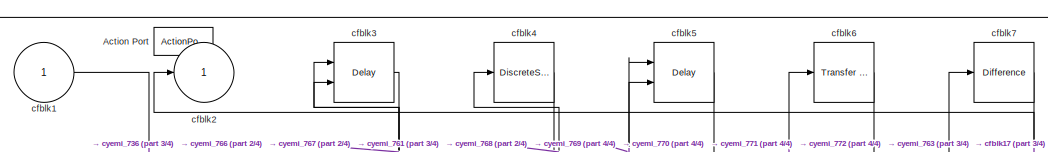
[diagram: cfblk258 - part 1/4, top center region]
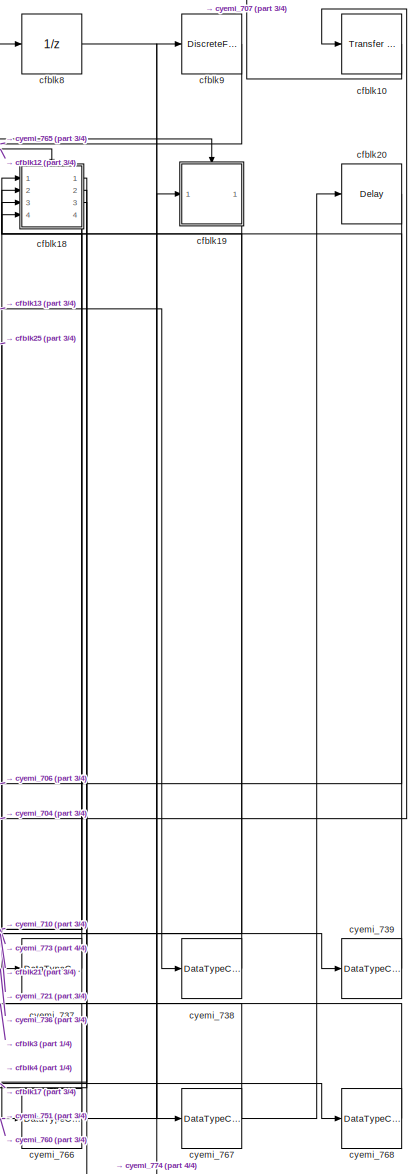
[diagram: cfblk258 - part 2/4, right side, full height]
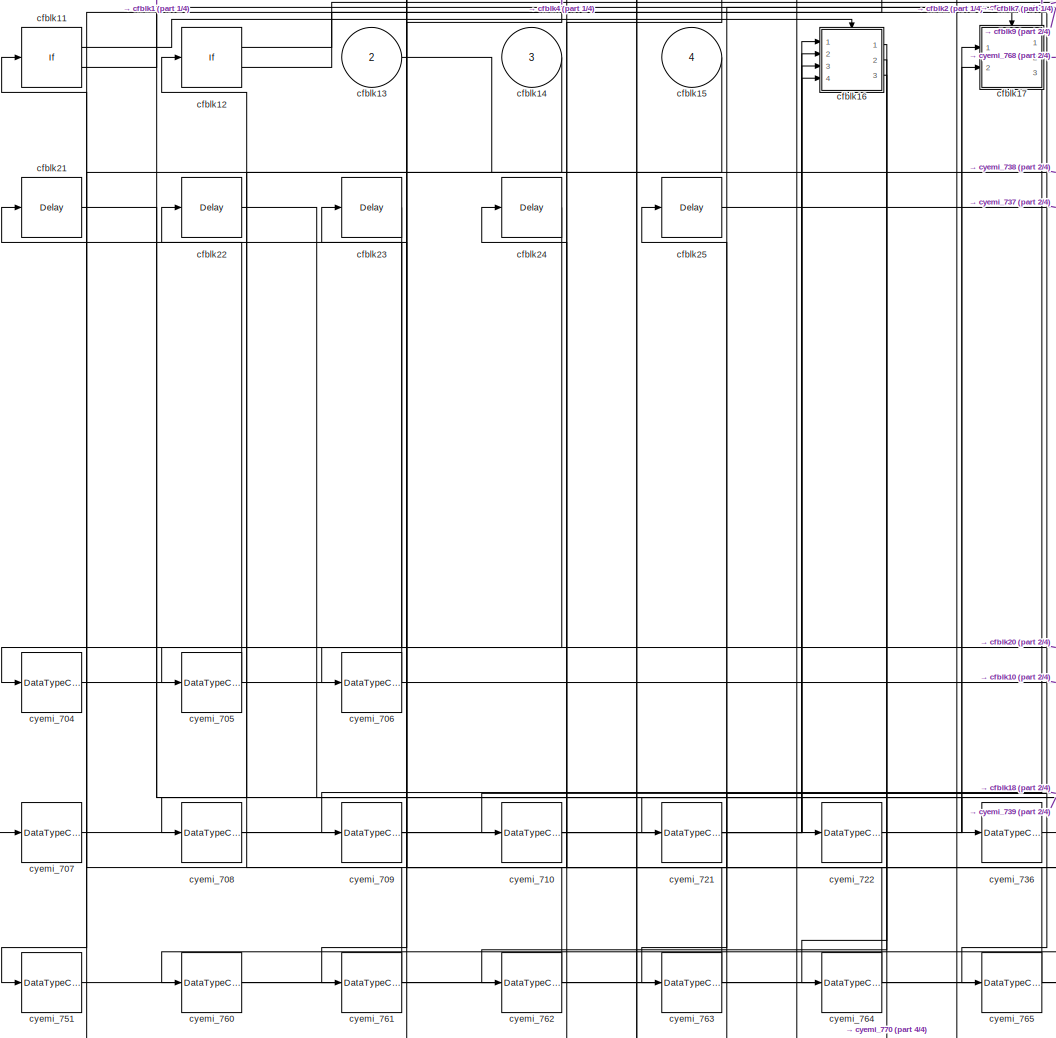
[diagram: cfblk258 - part 3/4, center side, full height]
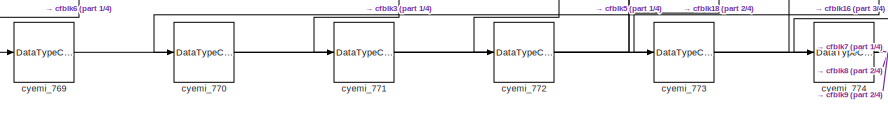
[diagram: cfblk258 - part 4/4, bottom left region]
BLOCK [SubSystem] cfblk258
  Ports = [4, 1, 0, 0, 0, 0, 0, 1]
  RequestExecContextInheritance = off
  TreatAsAtomicUnit = on
BLOCK [ActionPort] cfblk258/Action Port
  ActionType = then
BLOCK [Inport] cfblk258/cfblk1
  IconDisplay = Port number
BLOCK [Reference] cfblk258/cfblk10  REF=simulink/Discrete/Transfer Fcn
Real Zero
  Ports = [1, 1]
  SourceBlock = simulink/Discrete/Transfer Fcn\nReal Zero
  SourceProductBaseCode = SL
  SourceProductName = Simulink
  SourceType = Transfer Fcn Real Zero
BLOCK [If] cfblk258/cfblk11
  Ports = [1, 2]
  SampleTime = 1
BLOCK [If] cfblk258/cfblk12
  Ports = [1, 2]
  SampleTime = 1
BLOCK [Inport] cfblk258/cfblk13
  IconDisplay = Port number
  Port = 2
BLOCK [Inport] cfblk258/cfblk14
  IconDisplay = Port number
  Port = 3
BLOCK [Inport] cfblk258/cfblk15
  IconDisplay = Port number
  Port = 4
BLOCK [SubSystem] cfblk258/cfblk16
  Ports = [4, 3, 0, 0, 0, 0, 0, 1]
  RequestExecContextInheritance = off
  TreatAsAtomicUnit = on
BLOCK [ActionPort] cfblk258/cfblk16/Action Port
  ActionType = then
BLOCK [Inport] cfblk258/cfblk16/cfblk1
  IconDisplay = Port number
BLOCK [Reference] cfblk258/cfblk16/cfblk10  REF=simulink/Continuous/PID Controller
  Ports = [1, 1]
  SourceBlock = simulink/Continuous/PID Controller
  SourceProductBaseCode = SL
  SourceProductName = Simulink
  SourceType = PID 1dof
BLOCK [Inport] cfblk258/cfblk16/cfblk11
  IconDisplay = Port number
  Port = 2
BLOCK [Inport] cfblk258/cfblk16/cfblk12
  IconDisplay = Port number
  Port = 3
BLOCK [Inport] cfblk258/cfblk16/cfblk13
  IconDisplay = Port number
  Port = 4
BLOCK [Outport] cfblk258/cfblk16/cfblk14
  IconDisplay = Port number
  Port = 2
BLOCK [Outport] cfblk258/cfblk16/cfblk15
  IconDisplay = Port number
  Port = 3
BLOCK [Outport] cfblk258/cfblk16/cfblk2
  IconDisplay = Port number
BLOCK [Reference] cfblk258/cfblk16/cfblk3  REF=simulink/Discrete/Tapped Delay
  Ports = [1, 1]
  SourceBlock = simulink/Discrete/Tapped Delay
  SourceProductBaseCode = SL
  SourceProductName = Simulink
  SourceType = Tapped Delay Line
BLOCK [DiscreteStateSpace] cfblk258/cfblk16/cfblk4
  SampleTime = -1
BLOCK [Delay] cfblk258/cfblk16/cfblk5
  DelayLengthSource = Input port
  InputPortMap = u0,p1
  Ports = [2, 1]
BLOCK [Reference] cfblk258/cfblk16/cfblk6  REF=simulink/Discrete/Transfer Fcn
First Order
  Ports = [1, 1]
  SourceBlock = simulink/Discrete/Transfer Fcn\nFirst Order
  SourceProductBaseCode = SL
  SourceProductName = Simulink
  SourceType = First Order Transfer Fcn
BLOCK [Delay] cfblk258/cfblk16/cfblk7
  InputPortMap = u0
  Ports = [1, 1]
BLOCK [Reference] cfblk258/cfblk16/cfblk8  REF=simulink/Discrete/Transfer Fcn
Real Zero
  Ports = [1, 1]
  SourceBlock = simulink/Discrete/Transfer Fcn\nReal Zero
  SourceProductBaseCode = SL
  SourceProductName = Simulink
  SourceType = Transfer Fcn Real Zero
BLOCK [Delay] cfblk258/cfblk16/cfblk9
  InputPortMap = u0,e6
  Ports = [2, 1]
  ShowEnablePort = on
BLOCK [DataTypeConversion] cfblk258/cfblk16/cyemi_711
  OutDataTypeStr = double
  RndMeth = Floor
  SaturateOnIntegerOverflow = off
BLOCK [DataTypeConversion] cfblk258/cfblk16/cyemi_712
  OutDataTypeStr = double
  RndMeth = Floor
  SaturateOnIntegerOverflow = off
BLOCK [DataTypeConversion] cfblk258/cfblk16/cyemi_713
  OutDataTypeStr = double
  RndMeth = Floor
  SaturateOnIntegerOverflow = off
BLOCK [DataTypeConversion] cfblk258/cfblk16/cyemi_714
  OutDataTypeStr = double
  RndMeth = Floor
  SaturateOnIntegerOverflow = off
BLOCK [DataTypeConversion] cfblk258/cfblk16/cyemi_715
  OutDataTypeStr = double
  RndMeth = Floor
  SaturateOnIntegerOverflow = off
BLOCK [DataTypeConversion] cfblk258/cfblk16/cyemi_716
  OutDataTypeStr = double
  RndMeth = Floor
  SaturateOnIntegerOverflow = off
BLOCK [DataTypeConversion] cfblk258/cfblk16/cyemi_717
  OutDataTypeStr = double
  RndMeth = Floor
  SaturateOnIntegerOverflow = off
BLOCK [DataTypeConversion] cfblk258/cfblk16/cyemi_718
  OutDataTypeStr = double
  RndMeth = Floor
  SaturateOnIntegerOverflow = off
BLOCK [DataTypeConversion] cfblk258/cfblk16/cyemi_719
  OutDataTypeStr = double
  RndMeth = Floor
  SaturateOnIntegerOverflow = off
BLOCK [DataTypeConversion] cfblk258/cfblk16/cyemi_720
  OutDataTypeStr = double
  RndMeth = Floor
  SaturateOnIntegerOverflow = off
BLOCK [SubSystem] cfblk258/cfblk17
  Ports = [2, 3, 0, 0, 0, 0, 0, 1]
  RequestExecContextInheritance = off
  TreatAsAtomicUnit = on
BLOCK [ActionPort] cfblk258/cfblk17/Action Port
  ActionType = else
BLOCK [Inport] cfblk258/cfblk17/cfblk1
  IconDisplay = Port number
BLOCK [DiscreteStateSpace] cfblk258/cfblk17/cfblk10
  SampleTime = -1
BLOCK [Reference] cfblk258/cfblk17/cfblk11  REF=simulink/Continuous/PID Controller
  Ports = [1, 1]
  SourceBlock = simulink/Continuous/PID Controller
  SourceProductBaseCode = SL
  SourceProductName = Simulink
  SourceType = PID 1dof
BLOCK [DiscreteIntegrator] cfblk258/cfblk17/cfblk12
  ICPrevOutput = DiscIntNeverNeededParam
  ICPrevScaledInput = DiscIntNeverNeededParam
  InitialConditionSetting = Auto
  Ports = [1, 1]
  SampleTime = -1
BLOCK [Reference] cfblk258/cfblk17/cfblk13  REF=simulink/Discrete/Transfer Fcn
Real Zero
  Ports = [1, 1]
  SourceBlock = simulink/Discrete/Transfer Fcn\nReal Zero
  SourceProductBaseCode = SL
  SourceProductName = Simulink
  SourceType = Transfer Fcn Real Zero
BLOCK [DiscreteFilter] cfblk258/cfblk17/cfblk14
  InputPortMap = u0
  Ports = [1, 1]
BLOCK [Inport] cfblk258/cfblk17/cfblk15
  IconDisplay = Port number
  Port = 2
BLOCK [Outport] cfblk258/cfblk17/cfblk16
  IconDisplay = Port number
  Port = 2
BLOCK [Outport] cfblk258/cfblk17/cfblk17
  IconDisplay = Port number
  Port = 3
BLOCK [Delay] cfblk258/cfblk17/cfblk18
  InputPortMap = u0
  Ports = [1, 1]
BLOCK [Outport] cfblk258/cfblk17/cfblk2
  IconDisplay = Port number
BLOCK [Reference] cfblk258/cfblk17/cfblk3  REF=simulink/Discrete/Transfer Fcn
Lead or Lag
  Ports = [1, 1]
  SourceBlock = simulink/Discrete/Transfer Fcn\nLead or Lag
  SourceProductBaseCode = SL
  SourceProductName = Simulink
  SourceType = Lead or Lag Compensator
BLOCK [Reference] cfblk258/cfblk17/cfblk4  REF=simulink/Discrete/Transfer Fcn
Lead or Lag
  Ports = [1, 1]
  SourceBlock = simulink/Discrete/Transfer Fcn\nLead or Lag
  SourceProductBaseCode = SL
  SourceProductName = Simulink
  SourceType = Lead or Lag Compensator
BLOCK [Reference] cfblk258/cfblk17/cfblk5  REF=simulink/Discrete/Transfer Fcn
Real Zero
  Ports = [1, 1]
  SourceBlock = simulink/Discrete/Transfer Fcn\nReal Zero
  SourceProductBaseCode = SL
  SourceProductName = Simulink
  SourceType = Transfer Fcn Real Zero
BLOCK [DiscreteZeroPole] cfblk258/cfblk17/cfblk6
  Gain = 1
  Poles = [0 0.5]
  SampleTime = -1
BLOCK [Reference] cfblk258/cfblk17/cfblk7  REF=simulink/Discrete/Transfer Fcn
First Order
  Ports = [1, 1]
  SourceBlock = simulink/Discrete/Transfer Fcn\nFirst Order
  SourceProductBaseCode = SL
  SourceProductName = Simulink
  SourceType = First Order Transfer Fcn
BLOCK [Reference] cfblk258/cfblk17/cfblk8  REF=simulink/Continuous/PID Controller
  Ports = [1, 1]
  SourceBlock = simulink/Continuous/PID Controller
  SourceProductBaseCode = SL
  SourceProductName = Simulink
  SourceType = PID 1dof
BLOCK [UnitDelay] cfblk258/cfblk17/cfblk9
  InputProcessing = Elements as channels (sample based)
  SampleTime = -1
BLOCK [DataTypeConversion] cfblk258/cfblk17/cyemi_723
  OutDataTypeStr = double
  RndMeth = Floor
  SaturateOnIntegerOverflow = off
BLOCK [DataTypeConversion] cfblk258/cfblk17/cyemi_724
  OutDataTypeStr = double
  RndMeth = Floor
  SaturateOnIntegerOverflow = off
BLOCK [DataTypeConversion] cfblk258/cfblk17/cyemi_725
  OutDataTypeStr = double
  RndMeth = Floor
  SaturateOnIntegerOverflow = off
BLOCK [DataTypeConversion] cfblk258/cfblk17/cyemi_726
  OutDataTypeStr = double
  RndMeth = Floor
  SaturateOnIntegerOverflow = off
BLOCK [DataTypeConversion] cfblk258/cfblk17/cyemi_727
  OutDataTypeStr = double
  RndMeth = Floor
  SaturateOnIntegerOverflow = off
BLOCK [DataTypeConversion] cfblk258/cfblk17/cyemi_728
  OutDataTypeStr = double
  RndMeth = Floor
  SaturateOnIntegerOverflow = off
BLOCK [DataTypeConversion] cfblk258/cfblk17/cyemi_729
  OutDataTypeStr = double
  RndMeth = Floor
  SaturateOnIntegerOverflow = off
BLOCK [DataTypeConversion] cfblk258/cfblk17/cyemi_730
  OutDataTypeStr = double
  RndMeth = Floor
  SaturateOnIntegerOverflow = off
BLOCK [DataTypeConversion] cfblk258/cfblk17/cyemi_731
  OutDataTypeStr = double
  RndMeth = Floor
  SaturateOnIntegerOverflow = off
BLOCK [DataTypeConversion] cfblk258/cfblk17/cyemi_732
  OutDataTypeStr = double
  RndMeth = Floor
  SaturateOnIntegerOverflow = off
BLOCK [DataTypeConversion] cfblk258/cfblk17/cyemi_733
  OutDataTypeStr = double
  RndMeth = Floor
  SaturateOnIntegerOverflow = off
BLOCK [DataTypeConversion] cfblk258/cfblk17/cyemi_734
  OutDataTypeStr = double
  RndMeth = Floor
  SaturateOnIntegerOverflow = off
BLOCK [DataTypeConversion] cfblk258/cfblk17/cyemi_735
  OutDataTypeStr = double
  RndMeth = Floor
  SaturateOnIntegerOverflow = off
BLOCK [SubSystem] cfblk258/cfblk18
  Ports = [4, 4, 0, 0, 0, 0, 0, 1]
  RequestExecContextInheritance = off
  TreatAsAtomicUnit = on
BLOCK [ActionPort] cfblk258/cfblk18/Action Port
  ActionType = then
BLOCK [Inport] cfblk258/cfblk18/cfblk1
  IconDisplay = Port number
BLOCK [Reference] cfblk258/cfblk18/cfblk10  REF=simulink/Continuous/PID Controller
  Ports = [1, 1]
  SourceBlock = simulink/Continuous/PID Controller
  SourceProductBaseCode = SL
  SourceProductName = Simulink
  SourceType = PID 1dof
BLOCK [Inport] cfblk258/cfblk18/cfblk11
  IconDisplay = Port number
  Port = 2
BLOCK [Inport] cfblk258/cfblk18/cfblk12
  IconDisplay = Port number
  Port = 3
BLOCK [Inport] cfblk258/cfblk18/cfblk13
  IconDisplay = Port number
  Port = 4
BLOCK [Outport] cfblk258/cfblk18/cfblk14
  IconDisplay = Port number
  Port = 2
BLOCK [Outport] cfblk258/cfblk18/cfblk15
  IconDisplay = Port number
  Port = 3
BLOCK [Outport] cfblk258/cfblk18/cfblk16
  IconDisplay = Port number
  Port = 4
BLOCK [Delay] cfblk258/cfblk18/cfblk17
  InputPortMap = u0
  Ports = [1, 1]
BLOCK [Outport] cfblk258/cfblk18/cfblk2
  IconDisplay = Port number
BLOCK [DiscreteFilter] cfblk258/cfblk18/cfblk3
  InputPortMap = u0
  Ports = [1, 1]
BLOCK [DiscreteIntegrator] cfblk258/cfblk18/cfblk4
  ICPrevOutput = DiscIntNeverNeededParam
  ICPrevScaledInput = DiscIntNeverNeededParam
  InitialConditionSetting = Auto
  Ports = [1, 1]
  SampleTime = -1
BLOCK [Delay] cfblk258/cfblk18/cfblk5
  DelayLengthSource = Input port
  InputPortMap = u0,p1
  Ports = [2, 1]
BLOCK [Delay] cfblk258/cfblk18/cfblk6
  DelayLengthSource = Input port
  InputPortMap = u0,p1
  Ports = [2, 1]
BLOCK [DiscreteFir] cfblk258/cfblk18/cfblk7
  InputPortMap = u0
  OutputPortMap = o0
  Ports = [1, 1]
BLOCK [DiscreteZeroPole] cfblk258/cfblk18/cfblk8
  Gain = 1
  Poles = [0 0.5]
  SampleTime = -1
BLOCK [Reference] cfblk258/cfblk18/cfblk9  REF=simulink/Discrete/Difference
  Ports = [1, 1]
  SourceBlock = simulink/Discrete/Difference
  SourceProductBaseCode = SL
  SourceProductName = Simulink
  SourceType = Difference
BLOCK [DataTypeConversion] cfblk258/cfblk18/cyemi_740
  OutDataTypeStr = double
  RndMeth = Floor
  SaturateOnIntegerOverflow = off
BLOCK [DataTypeConversion] cfblk258/cfblk18/cyemi_741
  OutDataTypeStr = double
  RndMeth = Floor
  SaturateOnIntegerOverflow = off
BLOCK [DataTypeConversion] cfblk258/cfblk18/cyemi_742
  OutDataTypeStr = double
  RndMeth = Floor
  SaturateOnIntegerOverflow = off
BLOCK [DataTypeConversion] cfblk258/cfblk18/cyemi_743
  OutDataTypeStr = double
  RndMeth = Floor
  SaturateOnIntegerOverflow = off
BLOCK [DataTypeConversion] cfblk258/cfblk18/cyemi_744
  OutDataTypeStr = double
  RndMeth = Floor
  SaturateOnIntegerOverflow = off
BLOCK [DataTypeConversion] cfblk258/cfblk18/cyemi_745
  OutDataTypeStr = double
  RndMeth = Floor
  SaturateOnIntegerOverflow = off
BLOCK [DataTypeConversion] cfblk258/cfblk18/cyemi_746
  OutDataTypeStr = double
  RndMeth = Floor
  SaturateOnIntegerOverflow = off
BLOCK [DataTypeConversion] cfblk258/cfblk18/cyemi_747
  OutDataTypeStr = double
  RndMeth = Floor
  SaturateOnIntegerOverflow = off
BLOCK [DataTypeConversion] cfblk258/cfblk18/cyemi_748
  OutDataTypeStr = double
  RndMeth = Floor
  SaturateOnIntegerOverflow = off
BLOCK [DataTypeConversion] cfblk258/cfblk18/cyemi_749
  OutDataTypeStr = double
  RndMeth = Floor
  SaturateOnIntegerOverflow = off
BLOCK [DataTypeConversion] cfblk258/cfblk18/cyemi_750
  OutDataTypeStr = double
  RndMeth = Floor
  SaturateOnIntegerOverflow = off
BLOCK [SubSystem] cfblk258/cfblk19
  Ports = [1, 1, 0, 0, 0, 0, 0, 1]
  RequestExecContextInheritance = off
  TreatAsAtomicUnit = on
BLOCK [ActionPort] cfblk258/cfblk19/Action Port
  ActionType = else
BLOCK [Inport] cfblk258/cfblk19/cfblk1
  IconDisplay = Port number
BLOCK [Delay] cfblk258/cfblk19/cfblk10
  InputPortMap = u0
  Ports = [1, 1]
BLOCK [Outport] cfblk258/cfblk19/cfblk2
  IconDisplay = Port number
BLOCK [Delay] cfblk258/cfblk19/cfblk3
  InputPortMap = u0
  Ports = [1, 1]
BLOCK [DiscreteTransferFcn] cfblk258/cfblk19/cfblk4
  InputPortMap = u0
  Ports = [1, 1]
BLOCK [DiscreteStateSpace] cfblk258/cfblk19/cfblk5
  SampleTime = -1
BLOCK [Reference] cfblk258/cfblk19/cfblk6  REF=simulink/Discrete/Transfer Fcn
First Order
  Ports = [1, 1]
  SourceBlock = simulink/Discrete/Transfer Fcn\nFirst Order
  SourceProductBaseCode = SL
  SourceProductName = Simulink
  SourceType = First Order Transfer Fcn
BLOCK [DiscreteStateSpace] cfblk258/cfblk19/cfblk7
  SampleTime = -1
BLOCK [DiscreteFir] cfblk258/cfblk19/cfblk8
  InputPortMap = u0
  OutputPortMap = o0
  Ports = [1, 1]
BLOCK [Delay] cfblk258/cfblk19/cfblk9
  InputPortMap = u0
  Ports = [1, 1]
BLOCK [DataTypeConversion] cfblk258/cfblk19/cyemi_752
  OutDataTypeStr = double
  RndMeth = Floor
  SaturateOnIntegerOverflow = off
BLOCK [DataTypeConversion] cfblk258/cfblk19/cyemi_753
  OutDataTypeStr = double
  RndMeth = Floor
  SaturateOnIntegerOverflow = off
BLOCK [DataTypeConversion] cfblk258/cfblk19/cyemi_754
  OutDataTypeStr = double
  RndMeth = Floor
  SaturateOnIntegerOverflow = off
BLOCK [DataTypeConversion] cfblk258/cfblk19/cyemi_755
  OutDataTypeStr = double
  RndMeth = Floor
  SaturateOnIntegerOverflow = off
BLOCK [DataTypeConversion] cfblk258/cfblk19/cyemi_756
  OutDataTypeStr = double
  RndMeth = Floor
  SaturateOnIntegerOverflow = off
BLOCK [DataTypeConversion] cfblk258/cfblk19/cyemi_757
  OutDataTypeStr = double
  RndMeth = Floor
  SaturateOnIntegerOverflow = off
BLOCK [DataTypeConversion] cfblk258/cfblk19/cyemi_758
  OutDataTypeStr = double
  RndMeth = Floor
  SaturateOnIntegerOverflow = off
BLOCK [DataTypeConversion] cfblk258/cfblk19/cyemi_759
  OutDataTypeStr = double
  RndMeth = Floor
  SaturateOnIntegerOverflow = off
BLOCK [Outport] cfblk258/cfblk2
  IconDisplay = Port number
BLOCK [Delay] cfblk258/cfblk20
  InputPortMap = u0
  Ports = [1, 1]
BLOCK [Delay] cfblk258/cfblk21
  InputPortMap = u0
  Ports = [1, 1]
BLOCK [Delay] cfblk258/cfblk22
  InputPortMap = u0
  Ports = [1, 1]
BLOCK [Delay] cfblk258/cfblk23
  InputPortMap = u0
  Ports = [1, 1]
BLOCK [Delay] cfblk258/cfblk24
  InputPortMap = u0
  Ports = [1, 1]
BLOCK [Delay] cfblk258/cfblk25
  InputPortMap = u0
  Ports = [1, 1]
BLOCK [Delay] cfblk258/cfblk3
  DelayLengthSource = Input port
  InputPortMap = u0,p1
  Ports = [2, 1]
BLOCK [DiscreteStateSpace] cfblk258/cfblk4
  SampleTime = -1
BLOCK [Delay] cfblk258/cfblk5
  InputPortMap = u0,e6
  Ports = [2, 1]
  ShowEnablePort = on
BLOCK [Reference] cfblk258/cfblk6  REF=simulink/Discrete/Transfer Fcn
First Order
  Ports = [1, 1]
  SourceBlock = simulink/Discrete/Transfer Fcn\nFirst Order
  SourceProductBaseCode = SL
  SourceProductName = Simulink
  SourceType = First Order Transfer Fcn
BLOCK [Reference] cfblk258/cfblk7  REF=simulink/Discrete/Difference
  Ports = [1, 1]
  SourceBlock = simulink/Discrete/Difference
  SourceProductBaseCode = SL
  SourceProductName = Simulink
  SourceType = Difference
BLOCK [UnitDelay] cfblk258/cfblk8
  InputProcessing = Elements as channels (sample based)
  SampleTime = -1
BLOCK [DiscreteFilter] cfblk258/cfblk9
  InputPortMap = u0
  Ports = [1, 1]
BLOCK [DataTypeConversion] cfblk258/cyemi_704
  OutDataTypeStr = double
  RndMeth = Floor
  SaturateOnIntegerOverflow = off
BLOCK [DataTypeConversion] cfblk258/cyemi_705
  OutDataTypeStr = double
  RndMeth = Floor
  SaturateOnIntegerOverflow = off
BLOCK [DataTypeConversion] cfblk258/cyemi_706
  OutDataTypeStr = double
  RndMeth = Floor
  SaturateOnIntegerOverflow = off
BLOCK [DataTypeConversion] cfblk258/cyemi_707
  OutDataTypeStr = double
  RndMeth = Floor
  SaturateOnIntegerOverflow = off
BLOCK [DataTypeConversion] cfblk258/cyemi_708
  OutDataTypeStr = double
  RndMeth = Floor
  SaturateOnIntegerOverflow = off
BLOCK [DataTypeConversion] cfblk258/cyemi_709
  OutDataTypeStr = double
  RndMeth = Floor
  SaturateOnIntegerOverflow = off
BLOCK [DataTypeConversion] cfblk258/cyemi_710
  OutDataTypeStr = double
  RndMeth = Floor
  SaturateOnIntegerOverflow = off
BLOCK [DataTypeConversion] cfblk258/cyemi_721
  OutDataTypeStr = double
  RndMeth = Floor
  SaturateOnIntegerOverflow = off
BLOCK [DataTypeConversion] cfblk258/cyemi_722
  OutDataTypeStr = double
  RndMeth = Floor
  SaturateOnIntegerOverflow = off
BLOCK [DataTypeConversion] cfblk258/cyemi_736
  OutDataTypeStr = double
  RndMeth = Floor
  SaturateOnIntegerOverflow = off
BLOCK [DataTypeConversion] cfblk258/cyemi_737
  OutDataTypeStr = double
  RndMeth = Floor
  SaturateOnIntegerOverflow = off
BLOCK [DataTypeConversion] cfblk258/cyemi_738
  OutDataTypeStr = double
  RndMeth = Floor
  SaturateOnIntegerOverflow = off
BLOCK [DataTypeConversion] cfblk258/cyemi_739
  OutDataTypeStr = double
  RndMeth = Floor
  SaturateOnIntegerOverflow = off
BLOCK [DataTypeConversion] cfblk258/cyemi_751
  OutDataTypeStr = double
  RndMeth = Floor
  SaturateOnIntegerOverflow = off
BLOCK [DataTypeConversion] cfblk258/cyemi_760
  OutDataTypeStr = double
  RndMeth = Floor
  SaturateOnIntegerOverflow = off
BLOCK [DataTypeConversion] cfblk258/cyemi_761
  OutDataTypeStr = double
  RndMeth = Floor
  SaturateOnIntegerOverflow = off
BLOCK [DataTypeConversion] cfblk258/cyemi_762
  OutDataTypeStr = double
  RndMeth = Floor
  SaturateOnIntegerOverflow = off
BLOCK [DataTypeConversion] cfblk258/cyemi_763
  OutDataTypeStr = double
  RndMeth = Floor
  SaturateOnIntegerOverflow = off
BLOCK [DataTypeConversion] cfblk258/cyemi_764
  OutDataTypeStr = double
  RndMeth = Floor
  SaturateOnIntegerOverflow = off
BLOCK [DataTypeConversion] cfblk258/cyemi_765
  OutDataTypeStr = double
  RndMeth = Floor
  SaturateOnIntegerOverflow = off
BLOCK [DataTypeConversion] cfblk258/cyemi_766
  OutDataTypeStr = double
  RndMeth = Floor
  SaturateOnIntegerOverflow = off
BLOCK [DataTypeConversion] cfblk258/cyemi_767
  OutDataTypeStr = double
  RndMeth = Floor
  SaturateOnIntegerOverflow = off
BLOCK [DataTypeConversion] cfblk258/cyemi_768
  OutDataTypeStr = double
  RndMeth = Floor
  SaturateOnIntegerOverflow = off
BLOCK [DataTypeConversion] cfblk258/cyemi_769
  OutDataTypeStr = double
  RndMeth = Floor
  SaturateOnIntegerOverflow = off
BLOCK [DataTypeConversion] cfblk258/cyemi_770
  OutDataTypeStr = double
  RndMeth = Floor
  SaturateOnIntegerOverflow = off
BLOCK [DataTypeConversion] cfblk258/cyemi_771
  OutDataTypeStr = double
  RndMeth = Floor
  SaturateOnIntegerOverflow = off
BLOCK [DataTypeConversion] cfblk258/cyemi_772
  OutDataTypeStr = double
  RndMeth = Floor
  SaturateOnIntegerOverflow = off
BLOCK [DataTypeConversion] cfblk258/cyemi_773
  OutDataTypeStr = double
  RndMeth = Floor
  SaturateOnIntegerOverflow = off
BLOCK [DataTypeConversion] cfblk258/cyemi_774
  OutDataTypeStr = double
  RndMeth = Floor
  SaturateOnIntegerOverflow = off
BLOCK [SubSystem] cfblk259
  Ports = [2, 2, 0, 0, 0, 0, 0, 1]
  RequestExecContextInheritance = off
  TreatAsAtomicUnit = on
BLOCK [ActionPort] cfblk259/Action Port
  ActionType = else
BLOCK [Inport] cfblk259/cfblk1
  IconDisplay = Port number
BLOCK [Outport] cfblk259/cfblk2
  IconDisplay = Port number
BLOCK [DiscreteZeroPole] cfblk259/cfblk3
  Gain = 1
  Poles = [0 0.5]
  SampleTime = -1
BLOCK [DiscreteTransferFcn] cfblk259/cfblk4
  InputPortMap = u0
  Ports = [1, 1]
BLOCK [DiscreteStateSpace] cfblk259/cfblk5
  SampleTime = -1
BLOCK [Delay] cfblk259/cfblk6
  InputPortMap = u0,e6
  Ports = [2, 1]
  ShowEnablePort = on
BLOCK [Inport] cfblk259/cfblk7
  IconDisplay = Port number
  Port = 2
BLOCK [Outport] cfblk259/cfblk8
  IconDisplay = Port number
  Port = 2
BLOCK [Delay] cfblk259/cfblk9
  InputPortMap = u0
  Ports = [1, 1]
BLOCK [DataTypeConversion] cfblk259/cyemi_777
  OutDataTypeStr = double
  RndMeth = Floor
  SaturateOnIntegerOverflow = off
BLOCK [DataTypeConversion] cfblk259/cyemi_778
  OutDataTypeStr = double
  RndMeth = Floor
  SaturateOnIntegerOverflow = off
BLOCK [DataTypeConversion] cfblk259/cyemi_779
  OutDataTypeStr = double
  RndMeth = Floor
  SaturateOnIntegerOverflow = off
BLOCK [DataTypeConversion] cfblk259/cyemi_780
  OutDataTypeStr = double
  RndMeth = Floor
  SaturateOnIntegerOverflow = off
BLOCK [DataTypeConversion] cfblk259/cyemi_781
  OutDataTypeStr = double
  RndMeth = Floor
  SaturateOnIntegerOverflow = off
BLOCK [DataTypeConversion] cfblk259/cyemi_782
  OutDataTypeStr = double
  RndMeth = Floor
  SaturateOnIntegerOverflow = off
BLOCK [DiscreteIntegrator] cfblk26
  ICPrevOutput = DiscIntNeverNeededParam
  ICPrevScaledInput = DiscIntNeverNeededParam
  InitialConditionSetting = Auto
  Ports = [1, 1]
BLOCK [SubSystem] cfblk260
  Ports = [2, 3, 0, 0, 0, 0, 0, 1]
  RequestExecContextInheritance = off
  TreatAsAtomicUnit = on
BLOCK [ActionPort] cfblk260/Action Port
  ActionType = then
BLOCK [Inport] cfblk260/cfblk1
  IconDisplay = Port number
BLOCK [Reference] cfblk260/cfblk10  REF=simulink/Discrete/Transfer Fcn
First Order
  Ports = [1, 1]
  SourceBlock = simulink/Discrete/Transfer Fcn\nFirst Order
  SourceProductBaseCode = SL
  SourceProductName = Simulink
  SourceType = First Order Transfer Fcn
BLOCK [Reference] cfblk260/cfblk11  REF=simulink/Discrete/Transfer Fcn
First Order
  Ports = [1, 1]
  SourceBlock = simulink/Discrete/Transfer Fcn\nFirst Order
  SourceProductBaseCode = SL
  SourceProductName = Simulink
  SourceType = First Order Transfer Fcn
BLOCK [UnitDelay] cfblk260/cfblk12
  InputProcessing = Elements as channels (sample based)
  SampleTime = -1
BLOCK [Inport] cfblk260/cfblk13
  IconDisplay = Port number
  Port = 2
BLOCK [Outport] cfblk260/cfblk14
  IconDisplay = Port number
  Port = 2
BLOCK [Outport] cfblk260/cfblk15
  IconDisplay = Port number
  Port = 3
BLOCK [Outport] cfblk260/cfblk2
  IconDisplay = Port number
BLOCK [DiscreteStateSpace] cfblk260/cfblk3
  SampleTime = -1
BLOCK [DiscreteFir] cfblk260/cfblk4
  InputPortMap = u0
  OutputPortMap = o0
  Ports = [1, 1]
BLOCK [Reference] cfblk260/cfblk5  REF=simulink/Discrete/Tapped Delay
  Ports = [1, 1]
  SourceBlock = simulink/Discrete/Tapped Delay
  SourceProductBaseCode = SL
  SourceProductName = Simulink
  SourceType = Tapped Delay Line
BLOCK [DiscreteZeroPole] cfblk260/cfblk6
  Gain = 1
  Poles = [0 0.5]
  SampleTime = -1
BLOCK [Delay] cfblk260/cfblk7
  InputPortMap = u0
  Ports = [1, 1]
BLOCK [Reference] cfblk260/cfblk8  REF=simulink/Discrete/Difference
  Ports = [1, 1]
  SourceBlock = simulink/Discrete/Difference
  SourceProductBaseCode = SL
  SourceProductName = Simulink
  SourceType = Difference
BLOCK [DiscreteTransferFcn] cfblk260/cfblk9
  InputPortMap = u0
  Ports = [1, 1]
BLOCK [DataTypeConversion] cfblk260/cyemi_786
  OutDataTypeStr = double
  RndMeth = Floor
  SaturateOnIntegerOverflow = off
BLOCK [DataTypeConversion] cfblk260/cyemi_787
  OutDataTypeStr = double
  RndMeth = Floor
  SaturateOnIntegerOverflow = off
BLOCK [DataTypeConversion] cfblk260/cyemi_788
  OutDataTypeStr = double
  RndMeth = Floor
  SaturateOnIntegerOverflow = off
BLOCK [DataTypeConversion] cfblk260/cyemi_789
  OutDataTypeStr = double
  RndMeth = Floor
  SaturateOnIntegerOverflow = off
BLOCK [DataTypeConversion] cfblk260/cyemi_790
  OutDataTypeStr = double
  RndMeth = Floor
  SaturateOnIntegerOverflow = off
BLOCK [DataTypeConversion] cfblk260/cyemi_791
  OutDataTypeStr = double
  RndMeth = Floor
  SaturateOnIntegerOverflow = off
BLOCK [DataTypeConversion] cfblk260/cyemi_792
  OutDataTypeStr = double
  RndMeth = Floor
  SaturateOnIntegerOverflow = off
BLOCK [DataTypeConversion] cfblk260/cyemi_793
  OutDataTypeStr = double
  RndMeth = Floor
  SaturateOnIntegerOverflow = off
BLOCK [DataTypeConversion] cfblk260/cyemi_794
  OutDataTypeStr = double
  RndMeth = Floor
  SaturateOnIntegerOverflow = off
BLOCK [DataTypeConversion] cfblk260/cyemi_795
  OutDataTypeStr = double
  RndMeth = Floor
  SaturateOnIntegerOverflow = off
BLOCK [SubSystem] cfblk261
  Ports = [1, 2, 0, 0, 0, 0, 0, 1]
  RequestExecContextInheritance = off
  TreatAsAtomicUnit = on
BLOCK [ActionPort] cfblk261/Action Port
  ActionType = else
BLOCK [Inport] cfblk261/cfblk1
  IconDisplay = Port number
BLOCK [DiscreteIntegrator] cfblk261/cfblk10
  ICPrevOutput = DiscIntNeverNeededParam
  ICPrevScaledInput = DiscIntNeverNeededParam
  InitialConditionSetting = Auto
  Ports = [1, 1]
  SampleTime = -1
BLOCK [Outport] cfblk261/cfblk11
  IconDisplay = Port number
  Port = 2
BLOCK [Delay] cfblk261/cfblk12
  InputPortMap = u0
  Ports = [1, 1]
BLOCK [Outport] cfblk261/cfblk2
  IconDisplay = Port number
BLOCK [DiscreteFir] cfblk261/cfblk3
  InputPortMap = u0
  OutputPortMap = o0
  Ports = [1, 1]
BLOCK [DiscreteFilter] cfblk261/cfblk4
  InputPortMap = u0
  Ports = [1, 1]
BLOCK [UnitDelay] cfblk261/cfblk5
  InputProcessing = Elements as channels (sample based)
  SampleTime = -1
BLOCK [Reference] cfblk261/cfblk6  REF=simulink/Discrete/Transfer Fcn
Real Zero
  Ports = [1, 1]
  SourceBlock = simulink/Discrete/Transfer Fcn\nReal Zero
  SourceProductBaseCode = SL
  SourceProductName = Simulink
  SourceType = Transfer Fcn Real Zero
BLOCK [DiscreteFilter] cfblk261/cfblk7
  InputPortMap = u0
  Ports = [1, 1]
BLOCK [Reference] cfblk261/cfblk8  REF=simulink/Continuous/PID Controller (2DOF)
  Ports = [2, 1]
  SourceBlock = simulink/Continuous/PID Controller (2DOF)
  SourceProductBaseCode = SL
  SourceProductName = Simulink
  SourceType = PID 2dof
BLOCK [DiscreteZeroPole] cfblk261/cfblk9
  Gain = 1
  Poles = [0 0.5]
  SampleTime = -1
BLOCK [DataTypeConversion] cfblk261/cyemi_797
  OutDataTypeStr = double
  RndMeth = Floor
  SaturateOnIntegerOverflow = off
BLOCK [DataTypeConversion] cfblk261/cyemi_798
  OutDataTypeStr = double
  RndMeth = Floor
  SaturateOnIntegerOverflow = off
BLOCK [DataTypeConversion] cfblk261/cyemi_799
  OutDataTypeStr = double
  RndMeth = Floor
  SaturateOnIntegerOverflow = off
BLOCK [DataTypeConversion] cfblk261/cyemi_800
  OutDataTypeStr = double
  RndMeth = Floor
  SaturateOnIntegerOverflow = off
BLOCK [DataTypeConversion] cfblk261/cyemi_801
  OutDataTypeStr = double
  RndMeth = Floor
  SaturateOnIntegerOverflow = off
BLOCK [DataTypeConversion] cfblk261/cyemi_802
  OutDataTypeStr = double
  RndMeth = Floor
  SaturateOnIntegerOverflow = off
BLOCK [DataTypeConversion] cfblk261/cyemi_803
  OutDataTypeStr = double
  RndMeth = Floor
  SaturateOnIntegerOverflow = off
BLOCK [DataTypeConversion] cfblk261/cyemi_804
  OutDataTypeStr = double
  RndMeth = Floor
  SaturateOnIntegerOverflow = off
BLOCK [DataTypeConversion] cfblk261/cyemi_805
  OutDataTypeStr = double
  RndMeth = Floor
  SaturateOnIntegerOverflow = off
BLOCK [DataTypeConversion] cfblk261/cyemi_806
  OutDataTypeStr = double
  RndMeth = Floor
  SaturateOnIntegerOverflow = off
BLOCK [SubSystem] cfblk262
  Ports = [1, 2, 0, 0, 0, 0, 0, 1]
  RequestExecContextInheritance = off
  TreatAsAtomicUnit = on
BLOCK [ActionPort] cfblk262/Action Port
  ActionType = then
BLOCK [Inport] cfblk262/cfblk1
  IconDisplay = Port number
BLOCK [Delay] cfblk262/cfblk10
  InputPortMap = u0
  Ports = [1, 1]
BLOCK [Delay] cfblk262/cfblk11
  InputPortMap = u0
  Ports = [1, 1]
BLOCK [Delay] cfblk262/cfblk12
  InputPortMap = u0
  Ports = [1, 1]
BLOCK [Outport] cfblk262/cfblk2
  IconDisplay = Port number
BLOCK [Reference] cfblk262/cfblk3  REF=simulink/Discrete/Transfer Fcn
First Order
  Ports = [1, 1]
  SourceBlock = simulink/Discrete/Transfer Fcn\nFirst Order
  SourceProductBaseCode = SL
  SourceProductName = Simulink
  SourceType = First Order Transfer Fcn
BLOCK [Reference] cfblk262/cfblk4  REF=simulink/Discrete/Transfer Fcn
First Order
  Ports = [1, 1]
  SourceBlock = simulink/Discrete/Transfer Fcn\nFirst Order
  SourceProductBaseCode = SL
  SourceProductName = Simulink
  SourceType = First Order Transfer Fcn
BLOCK [Reference] cfblk262/cfblk5  REF=simulink/Discrete/Transfer Fcn
First Order
  Ports = [1, 1]
  SourceBlock = simulink/Discrete/Transfer Fcn\nFirst Order
  SourceProductBaseCode = SL
  SourceProductName = Simulink
  SourceType = First Order Transfer Fcn
BLOCK [If] cfblk262/cfblk6
  Ports = [1, 2]
  SampleTime = 1
BLOCK [Outport] cfblk262/cfblk7
  IconDisplay = Port number
  Port = 2
BLOCK [SubSystem] cfblk262/cfblk8
  Ports = [3, 1, 0, 0, 0, 0, 0, 1]
  RequestExecContextInheritance = off
  TreatAsAtomicUnit = on
BLOCK [ActionPort] cfblk262/cfblk8/Action Port
  ActionType = then
BLOCK [Inport] cfblk262/cfblk8/cfblk1
  IconDisplay = Port number
BLOCK [Delay] cfblk262/cfblk8/cfblk10
  DelayLengthSource = Input port
  InputPortMap = u0,p1
  Ports = [2, 1]
BLOCK [Reference] cfblk262/cfblk8/cfblk11  REF=simulink/Discrete/Difference
  Ports = [1, 1]
  SourceBlock = simulink/Discrete/Difference
  SourceProductBaseCode = SL
  SourceProductName = Simulink
  SourceType = Difference
BLOCK [Reference] cfblk262/cfblk8/cfblk12  REF=simulink/Discrete/Transfer Fcn
Real Zero
  Ports = [1, 1]
  SourceBlock = simulink/Discrete/Transfer Fcn\nReal Zero
  SourceProductBaseCode = SL
  SourceProductName = Simulink
  SourceType = Transfer Fcn Real Zero
BLOCK [DiscreteStateSpace] cfblk262/cfblk8/cfblk13
  SampleTime = -1
BLOCK [Inport] cfblk262/cfblk8/cfblk14
  IconDisplay = Port number
  Port = 2
BLOCK [Inport] cfblk262/cfblk8/cfblk15
  IconDisplay = Port number
  Port = 3
BLOCK [Delay] cfblk262/cfblk8/cfblk16
  InputPortMap = u0
  Ports = [1, 1]
BLOCK [Outport] cfblk262/cfblk8/cfblk2
  IconDisplay = Port number
BLOCK [Reference] cfblk262/cfblk8/cfblk3  REF=simulink/Continuous/PID Controller (2DOF)
  Ports = [2, 1]
  SourceBlock = simulink/Continuous/PID Controller (2DOF)
  SourceProductBaseCode = SL
  SourceProductName = Simulink
  SourceType = PID 2dof
BLOCK [Delay] cfblk262/cfblk8/cfblk4
  DelayLengthSource = Input port
  InputPortMap = u0,p1
  Ports = [2, 1]
BLOCK [Delay] cfblk262/cfblk8/cfblk5
  DelayLengthSource = Input port
  InputPortMap = u0,p1
  Ports = [2, 1]
BLOCK [Delay] cfblk262/cfblk8/cfblk6
  DelayLengthSource = Input port
  InputPortMap = u0,p1
  Ports = [2, 1]
BLOCK [Reference] cfblk262/cfblk8/cfblk7  REF=simulink/Discrete/Tapped Delay
  Ports = [1, 1]
  SourceBlock = simulink/Discrete/Tapped Delay
  SourceProductBaseCode = SL
  SourceProductName = Simulink
  SourceType = Tapped Delay Line
BLOCK [Reference] cfblk262/cfblk8/cfblk8  REF=simulink/Discrete/Tapped Delay
  Ports = [1, 1]
  SourceBlock = simulink/Discrete/Tapped Delay
  SourceProductBaseCode = SL
  SourceProductName = Simulink
  SourceType = Tapped Delay Line
BLOCK [Delay] cfblk262/cfblk8/cfblk9
  DelayLengthSource = Input port
  InputPortMap = u0,p1
  Ports = [2, 1]
BLOCK [DataTypeConversion] cfblk262/cfblk8/cyemi_818
  OutDataTypeStr = double
  RndMeth = Floor
  SaturateOnIntegerOverflow = off
BLOCK [DataTypeConversion] cfblk262/cfblk8/cyemi_819
  OutDataTypeStr = double
  RndMeth = Floor
  SaturateOnIntegerOverflow = off
BLOCK [DataTypeConversion] cfblk262/cfblk8/cyemi_820
  OutDataTypeStr = double
  RndMeth = Floor
  SaturateOnIntegerOverflow = off
BLOCK [DataTypeConversion] cfblk262/cfblk8/cyemi_821
  OutDataTypeStr = double
  RndMeth = Floor
  SaturateOnIntegerOverflow = off
BLOCK [DataTypeConversion] cfblk262/cfblk8/cyemi_822
  OutDataTypeStr = double
  RndMeth = Floor
  SaturateOnIntegerOverflow = off
BLOCK [DataTypeConversion] cfblk262/cfblk8/cyemi_823
  OutDataTypeStr = double
  RndMeth = Floor
  SaturateOnIntegerOverflow = off
BLOCK [DataTypeConversion] cfblk262/cfblk8/cyemi_824
  OutDataTypeStr = double
  RndMeth = Floor
  SaturateOnIntegerOverflow = off
BLOCK [DataTypeConversion] cfblk262/cfblk8/cyemi_825
  OutDataTypeStr = double
  RndMeth = Floor
  SaturateOnIntegerOverflow = off
BLOCK [DataTypeConversion] cfblk262/cfblk8/cyemi_826
  OutDataTypeStr = double
  RndMeth = Floor
  SaturateOnIntegerOverflow = off
BLOCK [DataTypeConversion] cfblk262/cfblk8/cyemi_827
  OutDataTypeStr = double
  RndMeth = Floor
  SaturateOnIntegerOverflow = off
BLOCK [DataTypeConversion] cfblk262/cfblk8/cyemi_828
  OutDataTypeStr = double
  RndMeth = Floor
  SaturateOnIntegerOverflow = off
BLOCK [DataTypeConversion] cfblk262/cfblk8/cyemi_829
  OutDataTypeStr = double
  RndMeth = Floor
  SaturateOnIntegerOverflow = off
BLOCK [DataTypeConversion] cfblk262/cfblk8/cyemi_830
  OutDataTypeStr = double
  RndMeth = Floor
  SaturateOnIntegerOverflow = off
BLOCK [DataTypeConversion] cfblk262/cfblk8/cyemi_831
  OutDataTypeStr = double
  RndMeth = Floor
  SaturateOnIntegerOverflow = off
BLOCK [DataTypeConversion] cfblk262/cfblk8/cyemi_832
  OutDataTypeStr = double
  RndMeth = Floor
  SaturateOnIntegerOverflow = off
BLOCK [DataTypeConversion] cfblk262/cfblk8/cyemi_833
  OutDataTypeStr = double
  RndMeth = Floor
  SaturateOnIntegerOverflow = off
BLOCK [DataTypeConversion] cfblk262/cfblk8/cyemi_834
  OutDataTypeStr = double
  RndMeth = Floor
  SaturateOnIntegerOverflow = off
BLOCK [DataTypeConversion] cfblk262/cfblk8/cyemi_835
  OutDataTypeStr = double
  RndMeth = Floor
  SaturateOnIntegerOverflow = off
BLOCK [SubSystem] cfblk262/cfblk9
  Ports = [4, 2, 0, 0, 0, 0, 0, 1]
  RequestExecContextInheritance = off
  TreatAsAtomicUnit = on
BLOCK [ActionPort] cfblk262/cfblk9/Action Port
  ActionType = else
BLOCK [Inport] cfblk262/cfblk9/cfblk1
  IconDisplay = Port number
BLOCK [Reference] cfblk262/cfblk9/cfblk10  REF=simulink/Discrete/Tapped Delay
  Ports = [1, 1]
  SourceBlock = simulink/Discrete/Tapped Delay
  SourceProductBaseCode = SL
  SourceProductName = Simulink
  SourceType = Tapped Delay Line
BLOCK [Inport] cfblk262/cfblk9/cfblk11
  IconDisplay = Port number
  Port = 2
BLOCK [Inport] cfblk262/cfblk9/cfblk12
  IconDisplay = Port number
  Port = 3
BLOCK [Inport] cfblk262/cfblk9/cfblk13
  IconDisplay = Port number
  Port = 4
BLOCK [Outport] cfblk262/cfblk9/cfblk14
  IconDisplay = Port number
  Port = 2
BLOCK [Delay] cfblk262/cfblk9/cfblk15
  InputPortMap = u0
  Ports = [1, 1]
BLOCK [Outport] cfblk262/cfblk9/cfblk2
  IconDisplay = Port number
BLOCK [Reference] cfblk262/cfblk9/cfblk3  REF=simulink/Continuous/PID Controller (2DOF)
  Ports = [2, 1]
  SourceBlock = simulink/Continuous/PID Controller (2DOF)
  SourceProductBaseCode = SL
  SourceProductName = Simulink
  SourceType = PID 2dof
BLOCK [Reference] cfblk262/cfblk9/cfblk4  REF=simulink/Discrete/Difference
  Ports = [1, 1]
  SourceBlock = simulink/Discrete/Difference
  SourceProductBaseCode = SL
  SourceProductName = Simulink
  SourceType = Difference
BLOCK [Reference] cfblk262/cfblk9/cfblk5  REF=simulink/Discrete/Transfer Fcn
First Order
  Ports = [1, 1]
  SourceBlock = simulink/Discrete/Transfer Fcn\nFirst Order
  SourceProductBaseCode = SL
  SourceProductName = Simulink
  SourceType = First Order Transfer Fcn
BLOCK [DiscreteZeroPole] cfblk262/cfblk9/cfblk6
  Gain = 1
  Poles = [0 0.5]
  SampleTime = -1
BLOCK [Delay] cfblk262/cfblk9/cfblk7
  InputPortMap = u0
  Ports = [1, 1]
BLOCK [Delay] cfblk262/cfblk9/cfblk8
  DelayLengthSource = Input port
  InputPortMap = u0,p1
  Ports = [2, 1]
BLOCK [Reference] cfblk262/cfblk9/cfblk9  REF=simulink/Continuous/PID Controller
  Ports = [1, 1]
  SourceBlock = simulink/Continuous/PID Controller
  SourceProductBaseCode = SL
  SourceProductName = Simulink
  SourceType = PID 1dof
BLOCK [DataTypeConversion] cfblk262/cfblk9/cyemi_840
  OutDataTypeStr = double
  RndMeth = Floor
  SaturateOnIntegerOverflow = off
BLOCK [DataTypeConversion] cfblk262/cfblk9/cyemi_841
  OutDataTypeStr = double
  RndMeth = Floor
  SaturateOnIntegerOverflow = off
BLOCK [DataTypeConversion] cfblk262/cfblk9/cyemi_842
  OutDataTypeStr = double
  RndMeth = Floor
  SaturateOnIntegerOverflow = off
BLOCK [DataTypeConversion] cfblk262/cfblk9/cyemi_843
  OutDataTypeStr = double
  RndMeth = Floor
  SaturateOnIntegerOverflow = off
BLOCK [DataTypeConversion] cfblk262/cfblk9/cyemi_844
  OutDataTypeStr = double
  RndMeth = Floor
  SaturateOnIntegerOverflow = off
BLOCK [DataTypeConversion] cfblk262/cfblk9/cyemi_845
  OutDataTypeStr = double
  RndMeth = Floor
  SaturateOnIntegerOverflow = off
BLOCK [DataTypeConversion] cfblk262/cfblk9/cyemi_846
  OutDataTypeStr = double
  RndMeth = Floor
  SaturateOnIntegerOverflow = off
BLOCK [DataTypeConversion] cfblk262/cfblk9/cyemi_847
  OutDataTypeStr = double
  RndMeth = Floor
  SaturateOnIntegerOverflow = off
BLOCK [DataTypeConversion] cfblk262/cfblk9/cyemi_848
  OutDataTypeStr = double
  RndMeth = Floor
  SaturateOnIntegerOverflow = off
BLOCK [DataTypeConversion] cfblk262/cfblk9/cyemi_849
  OutDataTypeStr = double
  RndMeth = Floor
  SaturateOnIntegerOverflow = off
BLOCK [DataTypeConversion] cfblk262/cfblk9/cyemi_850
  OutDataTypeStr = double
  RndMeth = Floor
  SaturateOnIntegerOverflow = off
BLOCK [DataTypeConversion] cfblk262/cyemi_808
  OutDataTypeStr = double
  RndMeth = Floor
  SaturateOnIntegerOverflow = off
BLOCK [DataTypeConversion] cfblk262/cyemi_809
  OutDataTypeStr = double
  RndMeth = Floor
  SaturateOnIntegerOverflow = off
BLOCK [DataTypeConversion] cfblk262/cyemi_810
  OutDataTypeStr = double
  RndMeth = Floor
  SaturateOnIntegerOverflow = off
BLOCK [DataTypeConversion] cfblk262/cyemi_811
  OutDataTypeStr = double
  RndMeth = Floor
  SaturateOnIntegerOverflow = off
BLOCK [DataTypeConversion] cfblk262/cyemi_812
  OutDataTypeStr = double
  RndMeth = Floor
  SaturateOnIntegerOverflow = off
BLOCK [DataTypeConversion] cfblk262/cyemi_813
  OutDataTypeStr = double
  RndMeth = Floor
  SaturateOnIntegerOverflow = off
BLOCK [DataTypeConversion] cfblk262/cyemi_814
  OutDataTypeStr = double
  RndMeth = Floor
  SaturateOnIntegerOverflow = off
BLOCK [DataTypeConversion] cfblk262/cyemi_815
  OutDataTypeStr = double
  RndMeth = Floor
  SaturateOnIntegerOverflow = off
BLOCK [DataTypeConversion] cfblk262/cyemi_816
  OutDataTypeStr = double
  RndMeth = Floor
  SaturateOnIntegerOverflow = off
BLOCK [DataTypeConversion] cfblk262/cyemi_817
  OutDataTypeStr = double
  RndMeth = Floor
  SaturateOnIntegerOverflow = off
BLOCK [DataTypeConversion] cfblk262/cyemi_836
  OutDataTypeStr = double
  RndMeth = Floor
  SaturateOnIntegerOverflow = off
BLOCK [DataTypeConversion] cfblk262/cyemi_837
  OutDataTypeStr = double
  RndMeth = Floor
  SaturateOnIntegerOverflow = off
BLOCK [DataTypeConversion] cfblk262/cyemi_838
  OutDataTypeStr = double
  RndMeth = Floor
  SaturateOnIntegerOverflow = off
BLOCK [DataTypeConversion] cfblk262/cyemi_839
  OutDataTypeStr = double
  RndMeth = Floor
  SaturateOnIntegerOverflow = off
BLOCK [SubSystem] cfblk263
  Ports = [4, 3, 0, 0, 0, 0, 0, 1]
  RequestExecContextInheritance = off
  TreatAsAtomicUnit = on
BLOCK [ActionPort] cfblk263/Action Port
  ActionType = else
BLOCK [Inport] cfblk263/cfblk1
  IconDisplay = Port number
BLOCK [Delay] cfblk263/cfblk10
  InputPortMap = u0
  Ports = [1, 1]
BLOCK [Outport] cfblk263/cfblk2
  IconDisplay = Port number
BLOCK [Delay] cfblk263/cfblk3
  InputPortMap = u0,e6
  Ports = [2, 1]
  ShowEnablePort = on
BLOCK [Delay] cfblk263/cfblk4
  InputPortMap = u0
  Ports = [1, 1]
BLOCK [Inport] cfblk263/cfblk5
  IconDisplay = Port number
  Port = 2
BLOCK [Inport] cfblk263/cfblk6
  IconDisplay = Port number
  Port = 3
BLOCK [Inport] cfblk263/cfblk7
  IconDisplay = Port number
  Port = 4
BLOCK [Outport] cfblk263/cfblk8
  IconDisplay = Port number
  Port = 2
BLOCK [Outport] cfblk263/cfblk9
  IconDisplay = Port number
  Port = 3
BLOCK [DataTypeConversion] cfblk263/cyemi_855
  OutDataTypeStr = double
  RndMeth = Floor
  SaturateOnIntegerOverflow = off
BLOCK [DataTypeConversion] cfblk263/cyemi_856
  OutDataTypeStr = double
  RndMeth = Floor
  SaturateOnIntegerOverflow = off
BLOCK [DataTypeConversion] cfblk263/cyemi_857
  OutDataTypeStr = double
  RndMeth = Floor
  SaturateOnIntegerOverflow = off
BLOCK [DataTypeConversion] cfblk263/cyemi_858
  OutDataTypeStr = double
  RndMeth = Floor
  SaturateOnIntegerOverflow = off
BLOCK [SubSystem] cfblk264
  Ports = [3, 1, 0, 0, 0, 0, 0, 1]
  RequestExecContextInheritance = off
  TreatAsAtomicUnit = on
BLOCK [ActionPort] cfblk264/Action Port
  ActionType = then
BLOCK [Inport] cfblk264/cfblk1
  IconDisplay = Port number
BLOCK [Outport] cfblk264/cfblk2
  IconDisplay = Port number
BLOCK [Reference] cfblk264/cfblk3  REF=simulink/Discrete/Tapped Delay
  Ports = [1, 1]
  SourceBlock = simulink/Discrete/Tapped Delay
  SourceProductBaseCode = SL
  SourceProductName = Simulink
  SourceType = Tapped Delay Line
BLOCK [UnitDelay] cfblk264/cfblk4
  InputProcessing = Elements as channels (sample based)
  SampleTime = -1
BLOCK [Reference] cfblk264/cfblk5  REF=simulink/Discrete/Transfer Fcn
Real Zero
  Ports = [1, 1]
  SourceBlock = simulink/Discrete/Transfer Fcn\nReal Zero
  SourceProductBaseCode = SL
  SourceProductName = Simulink
  SourceType = Transfer Fcn Real Zero
BLOCK [Inport] cfblk264/cfblk6
  IconDisplay = Port number
  Port = 2
BLOCK [Inport] cfblk264/cfblk7
  IconDisplay = Port number
  Port = 3
BLOCK [DataTypeConversion] cfblk264/cyemi_862
  OutDataTypeStr = double
  RndMeth = Floor
  SaturateOnIntegerOverflow = off
BLOCK [DataTypeConversion] cfblk264/cyemi_863
  OutDataTypeStr = double
  RndMeth = Floor
  SaturateOnIntegerOverflow = off
BLOCK [DataTypeConversion] cfblk264/cyemi_864
  OutDataTypeStr = double
  RndMeth = Floor
  SaturateOnIntegerOverflow = off
BLOCK [SubSystem] cfblk265
  Ports = [5, 2, 0, 0, 0, 0, 0, 1]
  RequestExecContextInheritance = off
  TreatAsAtomicUnit = on
BLOCK [ActionPort] cfblk265/Action Port
  ActionType = else
BLOCK [Inport] cfblk265/cfblk1
  IconDisplay = Port number
BLOCK [Outport] cfblk265/cfblk10
  IconDisplay = Port number
  Port = 2
BLOCK [Outport] cfblk265/cfblk2
  IconDisplay = Port number
BLOCK [DiscreteTransferFcn] cfblk265/cfblk3
  InputPortMap = u0
  Ports = [1, 1]
BLOCK [DiscreteTransferFcn] cfblk265/cfblk4
  InputPortMap = u0
  Ports = [1, 1]
BLOCK [DiscreteStateSpace] cfblk265/cfblk5
  SampleTime = -1
BLOCK [Inport] cfblk265/cfblk6
  IconDisplay = Port number
  Port = 2
BLOCK [Inport] cfblk265/cfblk7
  IconDisplay = Port number
  Port = 3
BLOCK [Inport] cfblk265/cfblk8
  IconDisplay = Port number
  Port = 4
BLOCK [Inport] cfblk265/cfblk9
  IconDisplay = Port number
  Port = 5
BLOCK [DataTypeConversion] cfblk265/cyemi_870
  OutDataTypeStr = double
  RndMeth = Floor
  SaturateOnIntegerOverflow = off
BLOCK [DataTypeConversion] cfblk265/cyemi_871
  OutDataTypeStr = double
  RndMeth = Floor
  SaturateOnIntegerOverflow = off
BLOCK [DataTypeConversion] cfblk265/cyemi_872
  OutDataTypeStr = double
  RndMeth = Floor
  SaturateOnIntegerOverflow = off
BLOCK [SubSystem] cfblk266
  Ports = [3, 3, 0, 0, 0, 0, 0, 1]
  RequestExecContextInheritance = off
  TreatAsAtomicUnit = on
BLOCK [ActionPort] cfblk266/Action Port
  ActionType = then
BLOCK [Inport] cfblk266/cfblk1
  IconDisplay = Port number
BLOCK [DiscreteFir] cfblk266/cfblk10
  InputPortMap = u0
  OutputPortMap = o0
  Ports = [1, 1]
BLOCK [DiscreteFilter] cfblk266/cfblk11
  InputPortMap = u0
  Ports = [1, 1]
BLOCK [If] cfblk266/cfblk12
  Ports = [1, 2]
  SampleTime = 1
BLOCK [Inport] cfblk266/cfblk13
  IconDisplay = Port number
  Port = 2
BLOCK [Inport] cfblk266/cfblk14
  IconDisplay = Port number
  Port = 3
BLOCK [Outport] cfblk266/cfblk15
  IconDisplay = Port number
  Port = 2
BLOCK [Outport] cfblk266/cfblk16
  IconDisplay = Port number
  Port = 3
BLOCK [SubSystem] cfblk266/cfblk17
  Ports = [3, 3, 0, 0, 0, 0, 0, 1]
  RequestExecContextInheritance = off
  TreatAsAtomicUnit = on
BLOCK [ActionPort] cfblk266/cfblk17/Action Port
  ActionType = then
BLOCK [Inport] cfblk266/cfblk17/cfblk1
  IconDisplay = Port number
BLOCK [Inport] cfblk266/cfblk17/cfblk10
  IconDisplay = Port number
  Port = 3
BLOCK [Outport] cfblk266/cfblk17/cfblk11
  IconDisplay = Port number
  Port = 2
BLOCK [Outport] cfblk266/cfblk17/cfblk12
  IconDisplay = Port number
  Port = 3
BLOCK [Delay] cfblk266/cfblk17/cfblk13
  InputPortMap = u0
  Ports = [1, 1]
BLOCK [Outport] cfblk266/cfblk17/cfblk2
  IconDisplay = Port number
BLOCK [Delay] cfblk266/cfblk17/cfblk3
  DelayLengthSource = Input port
  InputPortMap = u0,p1
  Ports = [2, 1]
BLOCK [Reference] cfblk266/cfblk17/cfblk4  REF=simulink/Continuous/PID Controller (2DOF)
  Ports = [2, 1]
  SourceBlock = simulink/Continuous/PID Controller (2DOF)
  SourceProductBaseCode = SL
  SourceProductName = Simulink
  SourceType = PID 2dof
BLOCK [Reference] cfblk266/cfblk17/cfblk5  REF=simulink/Discrete/Transfer Fcn
Lead or Lag
  Ports = [1, 1]
  SourceBlock = simulink/Discrete/Transfer Fcn\nLead or Lag
  SourceProductBaseCode = SL
  SourceProductName = Simulink
  SourceType = Lead or Lag Compensator
BLOCK [Reference] cfblk266/cfblk17/cfblk6  REF=simulink/Continuous/PID Controller (2DOF)
  Ports = [2, 1]
  SourceBlock = simulink/Continuous/PID Controller (2DOF)
  SourceProductBaseCode = SL
  SourceProductName = Simulink
  SourceType = PID 2dof
BLOCK [Reference] cfblk266/cfblk17/cfblk7  REF=simulink/Continuous/PID Controller (2DOF)
  Ports = [2, 1]
  SourceBlock = simulink/Continuous/PID Controller (2DOF)
  SourceProductBaseCode = SL
  SourceProductName = Simulink
  SourceType = PID 2dof
BLOCK [Reference] cfblk266/cfblk17/cfblk8  REF=simulink/Continuous/PID Controller (2DOF)
  Ports = [2, 1]
  SourceBlock = simulink/Continuous/PID Controller (2DOF)
  SourceProductBaseCode = SL
  SourceProductName = Simulink
  SourceType = PID 2dof
BLOCK [Inport] cfblk266/cfblk17/cfblk9
  IconDisplay = Port number
  Port = 2
BLOCK [DataTypeConversion] cfblk266/cfblk17/cyemi_882
  OutDataTypeStr = double
  RndMeth = Floor
  SaturateOnIntegerOverflow = off
BLOCK [DataTypeConversion] cfblk266/cfblk17/cyemi_883
  OutDataTypeStr = double
  RndMeth = Floor
  SaturateOnIntegerOverflow = off
BLOCK [DataTypeConversion] cfblk266/cfblk17/cyemi_884
  OutDataTypeStr = double
  RndMeth = Floor
  SaturateOnIntegerOverflow = off
BLOCK [DataTypeConversion] cfblk266/cfblk17/cyemi_885
  OutDataTypeStr = double
  RndMeth = Floor
  SaturateOnIntegerOverflow = off
BLOCK [DataTypeConversion] cfblk266/cfblk17/cyemi_886
  OutDataTypeStr = double
  RndMeth = Floor
  SaturateOnIntegerOverflow = off
BLOCK [DataTypeConversion] cfblk266/cfblk17/cyemi_887
  OutDataTypeStr = double
  RndMeth = Floor
  SaturateOnIntegerOverflow = off
BLOCK [DataTypeConversion] cfblk266/cfblk17/cyemi_888
  OutDataTypeStr = double
  RndMeth = Floor
  SaturateOnIntegerOverflow = off
BLOCK [DataTypeConversion] cfblk266/cfblk17/cyemi_889
  OutDataTypeStr = double
  RndMeth = Floor
  SaturateOnIntegerOverflow = off
BLOCK [DataTypeConversion] cfblk266/cfblk17/cyemi_890
  OutDataTypeStr = double
  RndMeth = Floor
  SaturateOnIntegerOverflow = off
BLOCK [DataTypeConversion] cfblk266/cfblk17/cyemi_891
  OutDataTypeStr = double
  RndMeth = Floor
  SaturateOnIntegerOverflow = off
BLOCK [DataTypeConversion] cfblk266/cfblk17/cyemi_892
  OutDataTypeStr = double
  RndMeth = Floor
  SaturateOnIntegerOverflow = off
BLOCK [DataTypeConversion] cfblk266/cfblk17/cyemi_893
  OutDataTypeStr = double
  RndMeth = Floor
  SaturateOnIntegerOverflow = off
BLOCK [SubSystem] cfblk266/cfblk18
  Ports = [2, 1, 0, 0, 0, 0, 0, 1]
  RequestExecContextInheritance = off
  TreatAsAtomicUnit = on
BLOCK [ActionPort] cfblk266/cfblk18/Action Port
  ActionType = else
BLOCK [Inport] cfblk266/cfblk18/cfblk1
  IconDisplay = Port number
BLOCK [Delay] cfblk266/cfblk18/cfblk10
  DelayLengthSource = Input port
  InputPortMap = u0,p1
  Ports = [2, 1]
BLOCK [DiscreteFir] cfblk266/cfblk18/cfblk11
  InputPortMap = u0
  OutputPortMap = o0
  Ports = [1, 1]
BLOCK [DiscreteFir] cfblk266/cfblk18/cfblk12
  InputPortMap = u0
  OutputPortMap = o0
  Ports = [1, 1]
BLOCK [Reference] cfblk266/cfblk18/cfblk13  REF=simulink/Discrete/Transfer Fcn
First Order
  Ports = [1, 1]
  SourceBlock = simulink/Discrete/Transfer Fcn\nFirst Order
  SourceProductBaseCode = SL
  SourceProductName = Simulink
  SourceType = First Order Transfer Fcn
BLOCK [Inport] cfblk266/cfblk18/cfblk14
  IconDisplay = Port number
  Port = 2
BLOCK [Delay] cfblk266/cfblk18/cfblk15
  InputPortMap = u0
  Ports = [1, 1]
BLOCK [Delay] cfblk266/cfblk18/cfblk16
  InputPortMap = u0
  Ports = [1, 1]
BLOCK [Outport] cfblk266/cfblk18/cfblk2
  IconDisplay = Port number
BLOCK [DiscreteStateSpace] cfblk266/cfblk18/cfblk3
  SampleTime = -1
BLOCK [Reference] cfblk266/cfblk18/cfblk4  REF=simulink/Continuous/PID Controller
  Ports = [1, 1]
  SourceBlock = simulink/Continuous/PID Controller
  SourceProductBaseCode = SL
  SourceProductName = Simulink
  SourceType = PID 1dof
BLOCK [Reference] cfblk266/cfblk18/cfblk5  REF=simulink/Discrete/Tapped Delay
  Ports = [1, 1]
  SourceBlock = simulink/Discrete/Tapped Delay
  SourceProductBaseCode = SL
  SourceProductName = Simulink
  SourceType = Tapped Delay Line
BLOCK [Delay] cfblk266/cfblk18/cfblk6
  InputPortMap = u0,e6
  Ports = [2, 1]
  ShowEnablePort = on
BLOCK [DiscreteTransferFcn] cfblk266/cfblk18/cfblk7
  InputPortMap = u0
  Ports = [1, 1]
BLOCK [DiscreteFir] cfblk266/cfblk18/cfblk8
  InputPortMap = u0
  OutputPortMap = o0
  Ports = [1, 1]
BLOCK [Delay] cfblk266/cfblk18/cfblk9
  DelayLengthSource = Input port
  InputPortMap = u0,p1
  Ports = [2, 1]
BLOCK [DataTypeConversion] cfblk266/cfblk18/cyemi_896
  OutDataTypeStr = double
  RndMeth = Floor
  SaturateOnIntegerOverflow = off
BLOCK [DataTypeConversion] cfblk266/cfblk18/cyemi_897
  OutDataTypeStr = double
  RndMeth = Floor
  SaturateOnIntegerOverflow = off
BLOCK [DataTypeConversion] cfblk266/cfblk18/cyemi_898
  OutDataTypeStr = double
  RndMeth = Floor
  SaturateOnIntegerOverflow = off
BLOCK [DataTypeConversion] cfblk266/cfblk18/cyemi_899
  OutDataTypeStr = double
  RndMeth = Floor
  SaturateOnIntegerOverflow = off
BLOCK [DataTypeConversion] cfblk266/cfblk18/cyemi_900
  OutDataTypeStr = double
  RndMeth = Floor
  SaturateOnIntegerOverflow = off
BLOCK [DataTypeConversion] cfblk266/cfblk18/cyemi_901
  OutDataTypeStr = double
  RndMeth = Floor
  SaturateOnIntegerOverflow = off
BLOCK [DataTypeConversion] cfblk266/cfblk18/cyemi_902
  OutDataTypeStr = double
  RndMeth = Floor
  SaturateOnIntegerOverflow = off
BLOCK [DataTypeConversion] cfblk266/cfblk18/cyemi_903
  OutDataTypeStr = double
  RndMeth = Floor
  SaturateOnIntegerOverflow = off
BLOCK [DataTypeConversion] cfblk266/cfblk18/cyemi_904
  OutDataTypeStr = double
  RndMeth = Floor
  SaturateOnIntegerOverflow = off
BLOCK [DataTypeConversion] cfblk266/cfblk18/cyemi_905
  OutDataTypeStr = double
  RndMeth = Floor
  SaturateOnIntegerOverflow = off
BLOCK [DataTypeConversion] cfblk266/cfblk18/cyemi_906
  OutDataTypeStr = double
  RndMeth = Floor
  SaturateOnIntegerOverflow = off
BLOCK [DataTypeConversion] cfblk266/cfblk18/cyemi_907
  OutDataTypeStr = double
  RndMeth = Floor
  SaturateOnIntegerOverflow = off
BLOCK [DataTypeConversion] cfblk266/cfblk18/cyemi_908
  OutDataTypeStr = double
  RndMeth = Floor
  SaturateOnIntegerOverflow = off
BLOCK [DataTypeConversion] cfblk266/cfblk18/cyemi_909
  OutDataTypeStr = double
  RndMeth = Floor
  SaturateOnIntegerOverflow = off
BLOCK [DataTypeConversion] cfblk266/cfblk18/cyemi_910
  OutDataTypeStr = double
  RndMeth = Floor
  SaturateOnIntegerOverflow = off
BLOCK [DataTypeConversion] cfblk266/cfblk18/cyemi_911
  OutDataTypeStr = double
  RndMeth = Floor
  SaturateOnIntegerOverflow = off
BLOCK [Delay] cfblk266/cfblk19
  InputPortMap = u0
  Ports = [1, 1]
BLOCK [Outport] cfblk266/cfblk2
  IconDisplay = Port number
BLOCK [Delay] cfblk266/cfblk20
  InputPortMap = u0
  Ports = [1, 1]
BLOCK [Delay] cfblk266/cfblk21
  InputPortMap = u0
  Ports = [1, 1]
BLOCK [DiscreteFilter] cfblk266/cfblk3
  InputPortMap = u0
  Ports = [1, 1]
BLOCK [DiscreteStateSpace] cfblk266/cfblk4
  SampleTime = -1
BLOCK [DiscreteStateSpace] cfblk266/cfblk5
  SampleTime = -1
BLOCK [Reference] cfblk266/cfblk6  REF=simulink/Continuous/PID Controller (2DOF)
  Ports = [2, 1]
  SourceBlock = simulink/Continuous/PID Controller (2DOF)
  SourceProductBaseCode = SL
  SourceProductName = Simulink
  SourceType = PID 2dof
BLOCK [Reference] cfblk266/cfblk7  REF=simulink/Continuous/PID Controller (2DOF)
  Ports = [2, 1]
  SourceBlock = simulink/Continuous/PID Controller (2DOF)
  SourceProductBaseCode = SL
  SourceProductName = Simulink
  SourceType = PID 2dof
BLOCK [Reference] cfblk266/cfblk8  REF=simulink/Discrete/Difference
  Ports = [1, 1]
  SourceBlock = simulink/Discrete/Difference
  SourceProductBaseCode = SL
  SourceProductName = Simulink
  SourceType = Difference
BLOCK [DiscreteStateSpace] cfblk266/cfblk9
  SampleTime = -1
BLOCK [DataTypeConversion] cfblk266/cyemi_876
  OutDataTypeStr = double
  RndMeth = Floor
  SaturateOnIntegerOverflow = off
BLOCK [DataTypeConversion] cfblk266/cyemi_877
  OutDataTypeStr = double
  RndMeth = Floor
  SaturateOnIntegerOverflow = off
BLOCK [DataTypeConversion] cfblk266/cyemi_878
  OutDataTypeStr = double
  RndMeth = Floor
  SaturateOnIntegerOverflow = off
BLOCK [DataTypeConversion] cfblk266/cyemi_879
  OutDataTypeStr = double
  RndMeth = Floor
  SaturateOnIntegerOverflow = off
BLOCK [DataTypeConversion] cfblk266/cyemi_880
  OutDataTypeStr = double
  RndMeth = Floor
  SaturateOnIntegerOverflow = off
BLOCK [DataTypeConversion] cfblk266/cyemi_881
  OutDataTypeStr = double
  RndMeth = Floor
  SaturateOnIntegerOverflow = off
BLOCK [DataTypeConversion] cfblk266/cyemi_894
  OutDataTypeStr = double
  RndMeth = Floor
  SaturateOnIntegerOverflow = off
BLOCK [DataTypeConversion] cfblk266/cyemi_895
  OutDataTypeStr = double
  RndMeth = Floor
  SaturateOnIntegerOverflow = off
BLOCK [DataTypeConversion] cfblk266/cyemi_912
  OutDataTypeStr = double
  RndMeth = Floor
  SaturateOnIntegerOverflow = off
BLOCK [DataTypeConversion] cfblk266/cyemi_913
  OutDataTypeStr = double
  RndMeth = Floor
  SaturateOnIntegerOverflow = off
BLOCK [DataTypeConversion] cfblk266/cyemi_914
  OutDataTypeStr = double
  RndMeth = Floor
  SaturateOnIntegerOverflow = off
BLOCK [DataTypeConversion] cfblk266/cyemi_915
  OutDataTypeStr = double
  RndMeth = Floor
  SaturateOnIntegerOverflow = off
BLOCK [DataTypeConversion] cfblk266/cyemi_916
  OutDataTypeStr = double
  RndMeth = Floor
  SaturateOnIntegerOverflow = off
BLOCK [DataTypeConversion] cfblk266/cyemi_917
  OutDataTypeStr = double
  RndMeth = Floor
  SaturateOnIntegerOverflow = off
BLOCK [DataTypeConversion] cfblk266/cyemi_918
  OutDataTypeStr = double
  RndMeth = Floor
  SaturateOnIntegerOverflow = off
BLOCK [DataTypeConversion] cfblk266/cyemi_919
  OutDataTypeStr = double
  RndMeth = Floor
  SaturateOnIntegerOverflow = off
BLOCK [DataTypeConversion] cfblk266/cyemi_920
  OutDataTypeStr = double
  RndMeth = Floor
  SaturateOnIntegerOverflow = off
BLOCK [DataTypeConversion] cfblk266/cyemi_921
  OutDataTypeStr = double
  RndMeth = Floor
  SaturateOnIntegerOverflow = off
BLOCK [DataTypeConversion] cfblk266/cyemi_922
  OutDataTypeStr = double
  RndMeth = Floor
  SaturateOnIntegerOverflow = off
BLOCK [DataTypeConversion] cfblk266/cyemi_923
  OutDataTypeStr = double
  RndMeth = Floor
  SaturateOnIntegerOverflow = off
BLOCK [SubSystem] cfblk267
  Ports = [4, 3, 0, 0, 0, 0, 0, 1]
  RequestExecContextInheritance = off
  TreatAsAtomicUnit = on
BLOCK [ActionPort] cfblk267/Action Port
  ActionType = else
BLOCK [Inport] cfblk267/cfblk1
  IconDisplay = Port number
BLOCK [Inport] cfblk267/cfblk10
  IconDisplay = Port number
  Port = 2
BLOCK [Inport] cfblk267/cfblk11
  IconDisplay = Port number
  Port = 3
BLOCK [Inport] cfblk267/cfblk12
  IconDisplay = Port number
  Port = 4
BLOCK [Outport] cfblk267/cfblk13
  IconDisplay = Port number
  Port = 2
BLOCK [Outport] cfblk267/cfblk14
  IconDisplay = Port number
  Port = 3
BLOCK [Delay] cfblk267/cfblk15
  InputPortMap = u0
  Ports = [1, 1]
BLOCK [Outport] cfblk267/cfblk2
  IconDisplay = Port number
BLOCK [Reference] cfblk267/cfblk3  REF=simulink/Discrete/Difference
  Ports = [1, 1]
  SourceBlock = simulink/Discrete/Difference
  SourceProductBaseCode = SL
  SourceProductName = Simulink
  SourceType = Difference
BLOCK [DiscreteTransferFcn] cfblk267/cfblk4
  InputPortMap = u0
  Ports = [1, 1]
BLOCK [Reference] cfblk267/cfblk5  REF=simulink/Discrete/Transfer Fcn
Real Zero
  Ports = [1, 1]
  SourceBlock = simulink/Discrete/Transfer Fcn\nReal Zero
  SourceProductBaseCode = SL
  SourceProductName = Simulink
  SourceType = Transfer Fcn Real Zero
BLOCK [DiscreteIntegrator] cfblk267/cfblk6
  ICPrevOutput = DiscIntNeverNeededParam
  ICPrevScaledInput = DiscIntNeverNeededParam
  InitialConditionSetting = Auto
  Ports = [1, 1]
  SampleTime = -1
BLOCK [Reference] cfblk267/cfblk7  REF=simulink/Continuous/PID Controller (2DOF)
  Ports = [2, 1]
  SourceBlock = simulink/Continuous/PID Controller (2DOF)
  SourceProductBaseCode = SL
  SourceProductName = Simulink
  SourceType = PID 2dof
BLOCK [Reference] cfblk267/cfblk8  REF=simulink/Discrete/Transfer Fcn
Real Zero
  Ports = [1, 1]
  SourceBlock = simulink/Discrete/Transfer Fcn\nReal Zero
  SourceProductBaseCode = SL
  SourceProductName = Simulink
  SourceType = Transfer Fcn Real Zero
BLOCK [DiscreteStateSpace] cfblk267/cfblk9
  SampleTime = -1
BLOCK [DataTypeConversion] cfblk267/cyemi_928
  OutDataTypeStr = double
  RndMeth = Floor
  SaturateOnIntegerOverflow = off
BLOCK [DataTypeConversion] cfblk267/cyemi_929
  OutDataTypeStr = double
  RndMeth = Floor
  SaturateOnIntegerOverflow = off
BLOCK [DataTypeConversion] cfblk267/cyemi_930
  OutDataTypeStr = double
  RndMeth = Floor
  SaturateOnIntegerOverflow = off
BLOCK [DataTypeConversion] cfblk267/cyemi_931
  OutDataTypeStr = double
  RndMeth = Floor
  SaturateOnIntegerOverflow = off
BLOCK [DataTypeConversion] cfblk267/cyemi_932
  OutDataTypeStr = double
  RndMeth = Floor
  SaturateOnIntegerOverflow = off
BLOCK [DataTypeConversion] cfblk267/cyemi_933
  OutDataTypeStr = double
  RndMeth = Floor
  SaturateOnIntegerOverflow = off
BLOCK [DataTypeConversion] cfblk267/cyemi_934
  OutDataTypeStr = double
  RndMeth = Floor
  SaturateOnIntegerOverflow = off
BLOCK [DataTypeConversion] cfblk267/cyemi_935
  OutDataTypeStr = double
  RndMeth = Floor
  SaturateOnIntegerOverflow = off
BLOCK [DataTypeConversion] cfblk267/cyemi_936
  OutDataTypeStr = double
  RndMeth = Floor
  SaturateOnIntegerOverflow = off
BLOCK [SubSystem] cfblk268
  Ports = [2, 2, 0, 0, 0, 0, 0, 1]
  RequestExecContextInheritance = off
  TreatAsAtomicUnit = on
BLOCK [ActionPort] cfblk268/Action Port
  ActionType = then
BLOCK [Inport] cfblk268/cfblk1
  IconDisplay = Port number
BLOCK [Outport] cfblk268/cfblk2
  IconDisplay = Port number
BLOCK [Delay] cfblk268/cfblk3
  DelayLengthSource = Input port
  InputPortMap = u0,p1
  Ports = [2, 1]
BLOCK [Reference] cfblk268/cfblk4  REF=simulink/Discrete/Transfer Fcn
First Order
  Ports = [1, 1]
  SourceBlock = simulink/Discrete/Transfer Fcn\nFirst Order
  SourceProductBaseCode = SL
  SourceProductName = Simulink
  SourceType = First Order Transfer Fcn
BLOCK [DiscreteZeroPole] cfblk268/cfblk5
  Gain = 1
  Poles = [0 0.5]
  SampleTime = -1
BLOCK [Reference] cfblk268/cfblk6  REF=simulink/Continuous/PID Controller (2DOF)
  Ports = [2, 1]
  SourceBlock = simulink/Continuous/PID Controller (2DOF)
  SourceProductBaseCode = SL
  SourceProductName = Simulink
  SourceType = PID 2dof
BLOCK [Inport] cfblk268/cfblk7
  IconDisplay = Port number
  Port = 2
BLOCK [Outport] cfblk268/cfblk8
  IconDisplay = Port number
  Port = 2
BLOCK [Delay] cfblk268/cfblk9
  InputPortMap = u0
  Ports = [1, 1]
BLOCK [DataTypeConversion] cfblk268/cyemi_939
  OutDataTypeStr = double
  RndMeth = Floor
  SaturateOnIntegerOverflow = off
BLOCK [DataTypeConversion] cfblk268/cyemi_940
  OutDataTypeStr = uint32
  RndMeth = Floor
  SaturateOnIntegerOverflow = off
BLOCK [DataTypeConversion] cfblk268/cyemi_941
  OutDataTypeStr = double
  RndMeth = Floor
  SaturateOnIntegerOverflow = off
BLOCK [DataTypeConversion] cfblk268/cyemi_942
  OutDataTypeStr = double
  RndMeth = Floor
  SaturateOnIntegerOverflow = off
BLOCK [DataTypeConversion] cfblk268/cyemi_943
  OutDataTypeStr = uint32
  RndMeth = Floor
  SaturateOnIntegerOverflow = off
BLOCK [DataTypeConversion] cfblk268/cyemi_944
  OutDataTypeStr = double
  RndMeth = Floor
  SaturateOnIntegerOverflow = off
BLOCK [DataTypeConversion] cfblk268/cyemi_945
  OutDataTypeStr = double
  RndMeth = Floor
  SaturateOnIntegerOverflow = off
BLOCK [SubSystem] cfblk269
  Ports = [2, 1, 0, 0, 0, 0, 0, 1]
  RequestExecContextInheritance = off
  TreatAsAtomicUnit = on
BLOCK [ActionPort] cfblk269/Action Port
  ActionType = else
BLOCK [Inport] cfblk269/cfblk1
  IconDisplay = Port number
BLOCK [Inport] cfblk269/cfblk10
  IconDisplay = Port number
  Port = 2
BLOCK [Delay] cfblk269/cfblk11
  InputPortMap = u0
  Ports = [1, 1]
BLOCK [Outport] cfblk269/cfblk2
  IconDisplay = Port number
BLOCK [Reference] cfblk269/cfblk3  REF=simulink/Continuous/PID Controller
  Ports = [1, 1]
  SourceBlock = simulink/Continuous/PID Controller
  SourceProductBaseCode = SL
  SourceProductName = Simulink
  SourceType = PID 1dof
BLOCK [Reference] cfblk269/cfblk4  REF=simulink/Continuous/PID Controller
  Ports = [1, 1]
  SourceBlock = simulink/Continuous/PID Controller
  SourceProductBaseCode = SL
  SourceProductName = Simulink
  SourceType = PID 1dof
BLOCK [DiscreteIntegrator] cfblk269/cfblk5
  ICPrevOutput = DiscIntNeverNeededParam
  ICPrevScaledInput = DiscIntNeverNeededParam
  InitialConditionSetting = Auto
  Ports = [1, 1]
  SampleTime = -1
BLOCK [Reference] cfblk269/cfblk6  REF=simulink/Discrete/Transfer Fcn
First Order
  Ports = [1, 1]
  SourceBlock = simulink/Discrete/Transfer Fcn\nFirst Order
  SourceProductBaseCode = SL
  SourceProductName = Simulink
  SourceType = First Order Transfer Fcn
BLOCK [UnitDelay] cfblk269/cfblk7
  InputProcessing = Elements as channels (sample based)
  SampleTime = -1
BLOCK [DiscreteFilter] cfblk269/cfblk8
  InputPortMap = u0
  Ports = [1, 1]
BLOCK [DiscreteStateSpace] cfblk269/cfblk9
  SampleTime = -1
BLOCK [DataTypeConversion] cfblk269/cyemi_948
  OutDataTypeStr = double
  RndMeth = Floor
  SaturateOnIntegerOverflow = off
BLOCK [DataTypeConversion] cfblk269/cyemi_949
  OutDataTypeStr = double
  RndMeth = Floor
  SaturateOnIntegerOverflow = off
BLOCK [DataTypeConversion] cfblk269/cyemi_950
  OutDataTypeStr = double
  RndMeth = Floor
  SaturateOnIntegerOverflow = off
BLOCK [DataTypeConversion] cfblk269/cyemi_951
  OutDataTypeStr = double
  RndMeth = Floor
  SaturateOnIntegerOverflow = off
BLOCK [DataTypeConversion] cfblk269/cyemi_952
  OutDataTypeStr = double
  RndMeth = Floor
  SaturateOnIntegerOverflow = off
BLOCK [DataTypeConversion] cfblk269/cyemi_953
  OutDataTypeStr = double
  RndMeth = Floor
  SaturateOnIntegerOverflow = off
BLOCK [DataTypeConversion] cfblk269/cyemi_954
  OutDataTypeStr = double
  RndMeth = Floor
  SaturateOnIntegerOverflow = off
BLOCK [DataTypeConversion] cfblk269/cyemi_955
  OutDataTypeStr = double
  RndMeth = Floor
  SaturateOnIntegerOverflow = off
BLOCK [Reference] cfblk27  REF=simulink/Discrete/Tapped Delay
  Ports = [1, 1]
  SourceBlock = simulink/Discrete/Tapped Delay
  SourceProductBaseCode = SL
  SourceProductName = Simulink
  SourceType = Tapped Delay Line
BLOCK [SubSystem] cfblk270
  Ports = [3, 3, 0, 0, 0, 0, 0, 1]
  RequestExecContextInheritance = off
  TreatAsAtomicUnit = on
BLOCK [ActionPort] cfblk270/Action Port
  ActionType = then
BLOCK [Inport] cfblk270/cfblk1
  IconDisplay = Port number
BLOCK [Inport] cfblk270/cfblk10
  IconDisplay = Port number
  Port = 3
BLOCK [Outport] cfblk270/cfblk11
  IconDisplay = Port number
  Port = 2
BLOCK [Outport] cfblk270/cfblk12
  IconDisplay = Port number
  Port = 3
BLOCK [SubSystem] cfblk270/cfblk13
  Ports = [1, 3, 0, 0, 0, 0, 0, 1]
  RequestExecContextInheritance = off
  TreatAsAtomicUnit = on
BLOCK [ActionPort] cfblk270/cfblk13/Action Port
  ActionType = then
BLOCK [Inport] cfblk270/cfblk13/cfblk1
  IconDisplay = Port number
BLOCK [Outport] cfblk270/cfblk13/cfblk2
  IconDisplay = Port number
BLOCK [Delay] cfblk270/cfblk13/cfblk3
  InputPortMap = u0
  Ports = [1, 1]
BLOCK [UnitDelay] cfblk270/cfblk13/cfblk4
  InputProcessing = Elements as channels (sample based)
  SampleTime = -1
BLOCK [DiscreteFir] cfblk270/cfblk13/cfblk5
  InputPortMap = u0
  OutputPortMap = o0
  Ports = [1, 1]
BLOCK [Outport] cfblk270/cfblk13/cfblk6
  IconDisplay = Port number
  Port = 2
BLOCK [Outport] cfblk270/cfblk13/cfblk7
  IconDisplay = Port number
  Port = 3
BLOCK [Delay] cfblk270/cfblk13/cfblk8
  InputPortMap = u0
  Ports = [1, 1]
BLOCK [DataTypeConversion] cfblk270/cfblk13/cyemi_961
  OutDataTypeStr = double
  RndMeth = Floor
  SaturateOnIntegerOverflow = off
BLOCK [DataTypeConversion] cfblk270/cfblk13/cyemi_962
  OutDataTypeStr = double
  RndMeth = Floor
  SaturateOnIntegerOverflow = off
BLOCK [DataTypeConversion] cfblk270/cfblk13/cyemi_963
  OutDataTypeStr = double
  RndMeth = Floor
  SaturateOnIntegerOverflow = off
BLOCK [DataTypeConversion] cfblk270/cfblk13/cyemi_964
  OutDataTypeStr = double
  RndMeth = Floor
  SaturateOnIntegerOverflow = off
BLOCK [SubSystem] cfblk270/cfblk14
  Ports = [1, 3, 0, 0, 0, 0, 0, 1]
  RequestExecContextInheritance = off
  TreatAsAtomicUnit = on
BLOCK [ActionPort] cfblk270/cfblk14/Action Port
  ActionType = else
BLOCK [Inport] cfblk270/cfblk14/cfblk1
  IconDisplay = Port number
BLOCK [DiscreteIntegrator] cfblk270/cfblk14/cfblk10
  ICPrevOutput = DiscIntNeverNeededParam
  ICPrevScaledInput = DiscIntNeverNeededParam
  InitialConditionSetting = Auto
  Ports = [1, 1]
  SampleTime = -1
BLOCK [Reference] cfblk270/cfblk14/cfblk11  REF=simulink/Discrete/Difference
  Ports = [1, 1]
  SourceBlock = simulink/Discrete/Difference
  SourceProductBaseCode = SL
  SourceProductName = Simulink
  SourceType = Difference
BLOCK [Outport] cfblk270/cfblk14/cfblk12
  IconDisplay = Port number
  Port = 2
BLOCK [Outport] cfblk270/cfblk14/cfblk13
  IconDisplay = Port number
  Port = 3
BLOCK [Delay] cfblk270/cfblk14/cfblk14
  InputPortMap = u0
  Ports = [1, 1]
BLOCK [Outport] cfblk270/cfblk14/cfblk2
  IconDisplay = Port number
BLOCK [DiscreteIntegrator] cfblk270/cfblk14/cfblk3
  ICPrevOutput = DiscIntNeverNeededParam
  ICPrevScaledInput = DiscIntNeverNeededParam
  InitialConditionSetting = Auto
  Ports = [1, 1]
  SampleTime = -1
BLOCK [Delay] cfblk270/cfblk14/cfblk4
  InputPortMap = u0
  Ports = [1, 1]
BLOCK [Reference] cfblk270/cfblk14/cfblk5  REF=simulink/Continuous/PID Controller
  Ports = [1, 1]
  SourceBlock = simulink/Continuous/PID Controller
  SourceProductBaseCode = SL
  SourceProductName = Simulink
  SourceType = PID 1dof
BLOCK [Delay] cfblk270/cfblk14/cfblk6
  InputPortMap = u0,e6
  Ports = [2, 1]
  ShowEnablePort = on
BLOCK [DiscreteZeroPole] cfblk270/cfblk14/cfblk7
  Gain = 1
  Poles = [0 0.5]
  SampleTime = -1
BLOCK [Delay] cfblk270/cfblk14/cfblk8
  DelayLengthSource = Input port
  InputPortMap = u0,p1
  Ports = [2, 1]
BLOCK [DiscreteStateSpace] cfblk270/cfblk14/cfblk9
  SampleTime = -1
BLOCK [DataTypeConversion] cfblk270/cfblk14/cyemi_966
  OutDataTypeStr = double
  RndMeth = Floor
  SaturateOnIntegerOverflow = off
BLOCK [DataTypeConversion] cfblk270/cfblk14/cyemi_967
  OutDataTypeStr = double
  RndMeth = Floor
  SaturateOnIntegerOverflow = off
BLOCK [DataTypeConversion] cfblk270/cfblk14/cyemi_968
  OutDataTypeStr = double
  RndMeth = Floor
  SaturateOnIntegerOverflow = off
BLOCK [DataTypeConversion] cfblk270/cfblk14/cyemi_969
  OutDataTypeStr = double
  RndMeth = Floor
  SaturateOnIntegerOverflow = off
BLOCK [DataTypeConversion] cfblk270/cfblk14/cyemi_970
  OutDataTypeStr = double
  RndMeth = Floor
  SaturateOnIntegerOverflow = off
BLOCK [DataTypeConversion] cfblk270/cfblk14/cyemi_971
  OutDataTypeStr = double
  RndMeth = Floor
  SaturateOnIntegerOverflow = off
BLOCK [DataTypeConversion] cfblk270/cfblk14/cyemi_972
  OutDataTypeStr = double
  RndMeth = Floor
  SaturateOnIntegerOverflow = off
BLOCK [DataTypeConversion] cfblk270/cfblk14/cyemi_973
  OutDataTypeStr = double
  RndMeth = Floor
  SaturateOnIntegerOverflow = off
BLOCK [DataTypeConversion] cfblk270/cfblk14/cyemi_974
  OutDataTypeStr = double
  RndMeth = Floor
  SaturateOnIntegerOverflow = off
BLOCK [DataTypeConversion] cfblk270/cfblk14/cyemi_975
  OutDataTypeStr = double
  RndMeth = Floor
  SaturateOnIntegerOverflow = off
BLOCK [DataTypeConversion] cfblk270/cfblk14/cyemi_976
  OutDataTypeStr = double
  RndMeth = Floor
  SaturateOnIntegerOverflow = off
BLOCK [DataTypeConversion] cfblk270/cfblk14/cyemi_977
  OutDataTypeStr = double
  RndMeth = Floor
  SaturateOnIntegerOverflow = off
BLOCK [SubSystem] cfblk270/cfblk15
  Ports = [2, 1, 0, 0, 0, 0, 0, 1]
  RequestExecContextInheritance = off
  TreatAsAtomicUnit = on
BLOCK [ActionPort] cfblk270/cfblk15/Action Port
  ActionType = then
BLOCK [Inport] cfblk270/cfblk15/cfblk1
  IconDisplay = Port number
BLOCK [Delay] cfblk270/cfblk15/cfblk10
  InputPortMap = u0
  Ports = [1, 1]
BLOCK [Outport] cfblk270/cfblk15/cfblk2
  IconDisplay = Port number
BLOCK [Reference] cfblk270/cfblk15/cfblk3  REF=simulink/Continuous/PID Controller (2DOF)
  Ports = [2, 1]
  SourceBlock = simulink/Continuous/PID Controller (2DOF)
  SourceProductBaseCode = SL
  SourceProductName = Simulink
  SourceType = PID 2dof
BLOCK [DiscreteZeroPole] cfblk270/cfblk15/cfblk4
  Gain = 1
  Poles = [0 0.5]
  SampleTime = -1
BLOCK [Reference] cfblk270/cfblk15/cfblk5  REF=simulink/Continuous/PID Controller
  Ports = [1, 1]
  SourceBlock = simulink/Continuous/PID Controller
  SourceProductBaseCode = SL
  SourceProductName = Simulink
  SourceType = PID 1dof
BLOCK [DiscreteTransferFcn] cfblk270/cfblk15/cfblk6
  InputPortMap = u0
  Ports = [1, 1]
BLOCK [DiscreteFilter] cfblk270/cfblk15/cfblk7
  InputPortMap = u0
  Ports = [1, 1]
BLOCK [DiscreteTransferFcn] cfblk270/cfblk15/cfblk8
  InputPortMap = u0
  Ports = [1, 1]
BLOCK [Inport] cfblk270/cfblk15/cfblk9
  IconDisplay = Port number
  Port = 2
BLOCK [DataTypeConversion] cfblk270/cfblk15/cyemi_980
  OutDataTypeStr = double
  RndMeth = Floor
  SaturateOnIntegerOverflow = off
BLOCK [DataTypeConversion] cfblk270/cfblk15/cyemi_981
  OutDataTypeStr = double
  RndMeth = Floor
  SaturateOnIntegerOverflow = off
BLOCK [DataTypeConversion] cfblk270/cfblk15/cyemi_982
  OutDataTypeStr = double
  RndMeth = Floor
  SaturateOnIntegerOverflow = off
BLOCK [DataTypeConversion] cfblk270/cfblk15/cyemi_983
  OutDataTypeStr = double
  RndMeth = Floor
  SaturateOnIntegerOverflow = off
BLOCK [DataTypeConversion] cfblk270/cfblk15/cyemi_984
  OutDataTypeStr = double
  RndMeth = Floor
  SaturateOnIntegerOverflow = off
BLOCK [DataTypeConversion] cfblk270/cfblk15/cyemi_985
  OutDataTypeStr = double
  RndMeth = Floor
  SaturateOnIntegerOverflow = off
BLOCK [DataTypeConversion] cfblk270/cfblk15/cyemi_986
  OutDataTypeStr = double
  RndMeth = Floor
  SaturateOnIntegerOverflow = off
BLOCK [DataTypeConversion] cfblk270/cfblk15/cyemi_987
  OutDataTypeStr = double
  RndMeth = Floor
  SaturateOnIntegerOverflow = off
BLOCK [SubSystem] cfblk270/cfblk16
  Ports = [2, 3, 0, 0, 0, 0, 0, 1]
  RequestExecContextInheritance = off
  TreatAsAtomicUnit = on
BLOCK [ActionPort] cfblk270/cfblk16/Action Port
  ActionType = else
BLOCK [Inport] cfblk270/cfblk16/cfblk1
  IconDisplay = Port number
BLOCK [Outport] cfblk270/cfblk16/cfblk2
  IconDisplay = Port number
BLOCK [UnitDelay] cfblk270/cfblk16/cfblk3
  InputProcessing = Elements as channels (sample based)
  SampleTime = -1
BLOCK [Reference] cfblk270/cfblk16/cfblk4  REF=simulink/Discrete/Transfer Fcn
Lead or Lag
  Ports = [1, 1]
  SourceBlock = simulink/Discrete/Transfer Fcn\nLead or Lag
  SourceProductBaseCode = SL
  SourceProductName = Simulink
  SourceType = Lead or Lag Compensator
BLOCK [Reference] cfblk270/cfblk16/cfblk5  REF=simulink/Discrete/Difference
  Ports = [1, 1]
  SourceBlock = simulink/Discrete/Difference
  SourceProductBaseCode = SL
  SourceProductName = Simulink
  SourceType = Difference
BLOCK [Reference] cfblk270/cfblk16/cfblk6  REF=simulink/Discrete/Transfer Fcn
First Order
  Ports = [1, 1]
  SourceBlock = simulink/Discrete/Transfer Fcn\nFirst Order
  SourceProductBaseCode = SL
  SourceProductName = Simulink
  SourceType = First Order Transfer Fcn
BLOCK [Inport] cfblk270/cfblk16/cfblk7
  IconDisplay = Port number
  Port = 2
BLOCK [Outport] cfblk270/cfblk16/cfblk8
  IconDisplay = Port number
  Port = 2
BLOCK [Outport] cfblk270/cfblk16/cfblk9
  IconDisplay = Port number
  Port = 3
BLOCK [DataTypeConversion] cfblk270/cfblk16/cyemi_990
  OutDataTypeStr = double
  RndMeth = Floor
  SaturateOnIntegerOverflow = off
BLOCK [DataTypeConversion] cfblk270/cfblk16/cyemi_991
  OutDataTypeStr = double
  RndMeth = Floor
  SaturateOnIntegerOverflow = off
BLOCK [DataTypeConversion] cfblk270/cfblk16/cyemi_992
  OutDataTypeStr = double
  RndMeth = Floor
  SaturateOnIntegerOverflow = off
BLOCK [DataTypeConversion] cfblk270/cfblk16/cyemi_993
  OutDataTypeStr = double
  RndMeth = Floor
  SaturateOnIntegerOverflow = off
BLOCK [Delay] cfblk270/cfblk17
  InputPortMap = u0
  Ports = [1, 1]
BLOCK [Delay] cfblk270/cfblk18
  InputPortMap = u0
  Ports = [1, 1]
BLOCK [Delay] cfblk270/cfblk19
  InputPortMap = u0
  Ports = [1, 1]
BLOCK [Outport] cfblk270/cfblk2
  IconDisplay = Port number
BLOCK [Delay] cfblk270/cfblk20
  InputPortMap = u0
  Ports = [1, 1]
BLOCK [DiscreteStateSpace] cfblk270/cfblk3
  SampleTime = -1
BLOCK [Delay] cfblk270/cfblk4
  InputPortMap = u0,e6
  Ports = [2, 1]
  ShowEnablePort = on
BLOCK [UnitDelay] cfblk270/cfblk5
  InputProcessing = Elements as channels (sample based)
  SampleTime = -1
BLOCK [DiscreteFilter] cfblk270/cfblk6
  InputPortMap = u0
  Ports = [1, 1]
BLOCK [If] cfblk270/cfblk7
  Ports = [1, 2]
  SampleTime = 1
BLOCK [If] cfblk270/cfblk8
  Ports = [1, 2]
  SampleTime = 1
BLOCK [Inport] cfblk270/cfblk9
  IconDisplay = Port number
  Port = 2
BLOCK [DataTypeConversion] cfblk270/cyemi_1000
  OutDataTypeStr = double
  RndMeth = Floor
  SaturateOnIntegerOverflow = off
BLOCK [DataTypeConversion] cfblk270/cyemi_1001
  OutDataTypeStr = double
  RndMeth = Floor
  SaturateOnIntegerOverflow = off
BLOCK [DataTypeConversion] cfblk270/cyemi_1002
  OutDataTypeStr = double
  RndMeth = Floor
  SaturateOnIntegerOverflow = off
BLOCK [DataTypeConversion] cfblk270/cyemi_1003
  OutDataTypeStr = double
  RndMeth = Floor
  SaturateOnIntegerOverflow = off
BLOCK [DataTypeConversion] cfblk270/cyemi_1004
  OutDataTypeStr = double
  RndMeth = Floor
  SaturateOnIntegerOverflow = off
BLOCK [DataTypeConversion] cfblk270/cyemi_960
  OutDataTypeStr = double
  RndMeth = Floor
  SaturateOnIntegerOverflow = off
BLOCK [DataTypeConversion] cfblk270/cyemi_965
  OutDataTypeStr = double
  RndMeth = Floor
  SaturateOnIntegerOverflow = off
BLOCK [DataTypeConversion] cfblk270/cyemi_978
  OutDataTypeStr = double
  RndMeth = Floor
  SaturateOnIntegerOverflow = off
BLOCK [DataTypeConversion] cfblk270/cyemi_979
  OutDataTypeStr = double
  RndMeth = Floor
  SaturateOnIntegerOverflow = off
BLOCK [DataTypeConversion] cfblk270/cyemi_988
  OutDataTypeStr = double
  RndMeth = Floor
  SaturateOnIntegerOverflow = off
BLOCK [DataTypeConversion] cfblk270/cyemi_989
  OutDataTypeStr = double
  RndMeth = Floor
  SaturateOnIntegerOverflow = off
BLOCK [DataTypeConversion] cfblk270/cyemi_994
  OutDataTypeStr = double
  RndMeth = Floor
  SaturateOnIntegerOverflow = off
BLOCK [DataTypeConversion] cfblk270/cyemi_995
  OutDataTypeStr = double
  RndMeth = Floor
  SaturateOnIntegerOverflow = off
BLOCK [DataTypeConversion] cfblk270/cyemi_996
  OutDataTypeStr = double
  RndMeth = Floor
  SaturateOnIntegerOverflow = off
BLOCK [DataTypeConversion] cfblk270/cyemi_997
  OutDataTypeStr = double
  RndMeth = Floor
  SaturateOnIntegerOverflow = off
BLOCK [DataTypeConversion] cfblk270/cyemi_998
  OutDataTypeStr = double
  RndMeth = Floor
  SaturateOnIntegerOverflow = off
BLOCK [DataTypeConversion] cfblk270/cyemi_999
  OutDataTypeStr = double
  RndMeth = Floor
  SaturateOnIntegerOverflow = off
BLOCK [SubSystem] cfblk271
  Ports = [3, 1, 0, 0, 0, 0, 0, 1]
  RequestExecContextInheritance = off
  TreatAsAtomicUnit = on
BLOCK [ActionPort] cfblk271/Action Port
  ActionType = else
BLOCK [Inport] cfblk271/cfblk1
  IconDisplay = Port number
BLOCK [Outport] cfblk271/cfblk2
  IconDisplay = Port number
BLOCK [DiscreteTransferFcn] cfblk271/cfblk3
  InputPortMap = u0
  Ports = [1, 1]
BLOCK [DiscreteFilter] cfblk271/cfblk4
  InputPortMap = u0
  Ports = [1, 1]
BLOCK [Delay] cfblk271/cfblk5
  InputPortMap = u0,e6
  Ports = [2, 1]
  ShowEnablePort = on
BLOCK [Reference] cfblk271/cfblk6  REF=simulink/Discrete/Transfer Fcn
First Order
  Ports = [1, 1]
  SourceBlock = simulink/Discrete/Transfer Fcn\nFirst Order
  SourceProductBaseCode = SL
  SourceProductName = Simulink
  SourceType = First Order Transfer Fcn
BLOCK [DiscreteTransferFcn] cfblk271/cfblk7
  InputPortMap = u0
  Ports = [1, 1]
BLOCK [Inport] cfblk271/cfblk8
  IconDisplay = Port number
  Port = 2
BLOCK [Inport] cfblk271/cfblk9
  IconDisplay = Port number
  Port = 3
BLOCK [DataTypeConversion] cfblk271/cyemi_1008
  OutDataTypeStr = double
  RndMeth = Floor
  SaturateOnIntegerOverflow = off
BLOCK [DataTypeConversion] cfblk271/cyemi_1009
  OutDataTypeStr = double
  RndMeth = Floor
  SaturateOnIntegerOverflow = off
BLOCK [DataTypeConversion] cfblk271/cyemi_1010
  OutDataTypeStr = double
  RndMeth = Floor
  SaturateOnIntegerOverflow = off
BLOCK [DataTypeConversion] cfblk271/cyemi_1011
  OutDataTypeStr = double
  RndMeth = Floor
  SaturateOnIntegerOverflow = off
BLOCK [DataTypeConversion] cfblk271/cyemi_1012
  OutDataTypeStr = double
  RndMeth = Floor
  SaturateOnIntegerOverflow = off
BLOCK [DataTypeConversion] cfblk271/cyemi_1013
  OutDataTypeStr = double
  RndMeth = Floor
  SaturateOnIntegerOverflow = off
BLOCK [SubSystem] cfblk272
  Ports = [2, 1, 0, 0, 0, 0, 0, 1]
  RequestExecContextInheritance = off
  TreatAsAtomicUnit = on
BLOCK [ActionPort] cfblk272/Action Port
  ActionType = then
BLOCK [Inport] cfblk272/cfblk1
  IconDisplay = Port number
BLOCK [Inport] cfblk272/cfblk10
  IconDisplay = Port number
  Port = 2
BLOCK [Delay] cfblk272/cfblk11
  InputPortMap = u0
  Ports = [1, 1]
BLOCK [Delay] cfblk272/cfblk12
  InputPortMap = u0
  Ports = [1, 1]
BLOCK [Outport] cfblk272/cfblk2
  IconDisplay = Port number
BLOCK [Delay] cfblk272/cfblk3
  DelayLengthSource = Input port
  InputPortMap = u0,p1
  Ports = [2, 1]
BLOCK [DiscreteFilter] cfblk272/cfblk4
  InputPortMap = u0
  Ports = [1, 1]
BLOCK [UnitDelay] cfblk272/cfblk5
  InputProcessing = Elements as channels (sample based)
  SampleTime = -1
BLOCK [DiscreteIntegrator] cfblk272/cfblk6
  ICPrevOutput = DiscIntNeverNeededParam
  ICPrevScaledInput = DiscIntNeverNeededParam
  InitialConditionSetting = Auto
  Ports = [1, 1]
  SampleTime = -1
BLOCK [DiscreteFir] cfblk272/cfblk7
  InputPortMap = u0
  OutputPortMap = o0
  Ports = [1, 1]
BLOCK [DiscreteFilter] cfblk272/cfblk8
  InputPortMap = u0
  Ports = [1, 1]
BLOCK [Reference] cfblk272/cfblk9  REF=simulink/Continuous/PID Controller
  Ports = [1, 1]
  SourceBlock = simulink/Continuous/PID Controller
  SourceProductBaseCode = SL
  SourceProductName = Simulink
  SourceType = PID 1dof
BLOCK [DataTypeConversion] cfblk272/cyemi_1016
  OutDataTypeStr = double
  RndMeth = Floor
  SaturateOnIntegerOverflow = off
BLOCK [DataTypeConversion] cfblk272/cyemi_1017
  OutDataTypeStr = double
  RndMeth = Floor
  SaturateOnIntegerOverflow = off
BLOCK [DataTypeConversion] cfblk272/cyemi_1018
  OutDataTypeStr = double
  RndMeth = Floor
  SaturateOnIntegerOverflow = off
BLOCK [DataTypeConversion] cfblk272/cyemi_1019
  OutDataTypeStr = double
  RndMeth = Floor
  SaturateOnIntegerOverflow = off
BLOCK [DataTypeConversion] cfblk272/cyemi_1020
  OutDataTypeStr = double
  RndMeth = Floor
  SaturateOnIntegerOverflow = off
BLOCK [DataTypeConversion] cfblk272/cyemi_1021
  OutDataTypeStr = double
  RndMeth = Floor
  SaturateOnIntegerOverflow = off
BLOCK [DataTypeConversion] cfblk272/cyemi_1022
  OutDataTypeStr = double
  RndMeth = Floor
  SaturateOnIntegerOverflow = off
BLOCK [DataTypeConversion] cfblk272/cyemi_1023
  OutDataTypeStr = double
  RndMeth = Floor
  SaturateOnIntegerOverflow = off
BLOCK [DataTypeConversion] cfblk272/cyemi_1024
  OutDataTypeStr = double
  RndMeth = Floor
  SaturateOnIntegerOverflow = off
BLOCK [DataTypeConversion] cfblk272/cyemi_1025
  OutDataTypeStr = double
  RndMeth = Floor
  SaturateOnIntegerOverflow = off
BLOCK [SubSystem] cfblk273
  Ports = [3, 1, 0, 0, 0, 0, 0, 1]
  RequestExecContextInheritance = off
  TreatAsAtomicUnit = on
BLOCK [ActionPort] cfblk273/Action Port
  ActionType = else
BLOCK [Inport] cfblk273/cfblk1
  IconDisplay = Port number
BLOCK [Inport] cfblk273/cfblk10
  IconDisplay = Port number
  Port = 3
BLOCK [Delay] cfblk273/cfblk11
  InputPortMap = u0
  Ports = [1, 1]
BLOCK [Outport] cfblk273/cfblk2
  IconDisplay = Port number
BLOCK [DiscreteStateSpace] cfblk273/cfblk3
  SampleTime = -1
BLOCK [Reference] cfblk273/cfblk4  REF=simulink/Discrete/Transfer Fcn
Real Zero
  Ports = [1, 1]
  SourceBlock = simulink/Discrete/Transfer Fcn\nReal Zero
  SourceProductBaseCode = SL
  SourceProductName = Simulink
  SourceType = Transfer Fcn Real Zero
BLOCK [Delay] cfblk273/cfblk5
  DelayLengthSource = Input port
  InputPortMap = u0,p1
  Ports = [2, 1]
BLOCK [Reference] cfblk273/cfblk6  REF=simulink/Discrete/Transfer Fcn
Real Zero
  Ports = [1, 1]
  SourceBlock = simulink/Discrete/Transfer Fcn\nReal Zero
  SourceProductBaseCode = SL
  SourceProductName = Simulink
  SourceType = Transfer Fcn Real Zero
BLOCK [DiscreteStateSpace] cfblk273/cfblk7
  SampleTime = -1
BLOCK [DiscreteStateSpace] cfblk273/cfblk8
  SampleTime = -1
BLOCK [Inport] cfblk273/cfblk9
  IconDisplay = Port number
  Port = 2
BLOCK [DataTypeConversion] cfblk273/cyemi_1029
  OutDataTypeStr = double
  RndMeth = Floor
  SaturateOnIntegerOverflow = off
BLOCK [DataTypeConversion] cfblk273/cyemi_1030
  OutDataTypeStr = double
  RndMeth = Floor
  SaturateOnIntegerOverflow = off
BLOCK [DataTypeConversion] cfblk273/cyemi_1031
  OutDataTypeStr = double
  RndMeth = Floor
  SaturateOnIntegerOverflow = off
BLOCK [DataTypeConversion] cfblk273/cyemi_1032
  OutDataTypeStr = double
  RndMeth = Floor
  SaturateOnIntegerOverflow = off
BLOCK [DataTypeConversion] cfblk273/cyemi_1033
  OutDataTypeStr = double
  RndMeth = Floor
  SaturateOnIntegerOverflow = off
BLOCK [DataTypeConversion] cfblk273/cyemi_1034
  OutDataTypeStr = double
  RndMeth = Floor
  SaturateOnIntegerOverflow = off
BLOCK [DataTypeConversion] cfblk273/cyemi_1035
  OutDataTypeStr = double
  RndMeth = Floor
  SaturateOnIntegerOverflow = off
BLOCK [DataTypeConversion] cfblk273/cyemi_1036
  OutDataTypeStr = double
  RndMeth = Floor
  SaturateOnIntegerOverflow = off
BLOCK [Delay] cfblk274
  InputPortMap = u0
  Ports = [1, 1]
  SampleTime = 1
BLOCK [Delay] cfblk275
  InputPortMap = u0
  Ports = [1, 1]
  SampleTime = 1
BLOCK [Delay] cfblk276
  InputPortMap = u0
  Ports = [1, 1]
  SampleTime = 1
BLOCK [Delay] cfblk277
  InputPortMap = u0
  Ports = [1, 1]
  SampleTime = 1
BLOCK [Delay] cfblk278
  InputPortMap = u0
  Ports = [1, 1]
  SampleTime = 1
BLOCK [Delay] cfblk279
  InputPortMap = u0
  Ports = [1, 1]
  SampleTime = 1
BLOCK [DiscreteIntegrator] cfblk28
  ICPrevOutput = DiscIntNeverNeededParam
  ICPrevScaledInput = DiscIntNeverNeededParam
  InitialConditionSetting = Auto
  Ports = [1, 1]
BLOCK [Delay] cfblk280
  InputPortMap = u0
  Ports = [1, 1]
  SampleTime = 1
BLOCK [Delay] cfblk281
  InputPortMap = u0
  Ports = [1, 1]
  SampleTime = 1
BLOCK [Delay] cfblk282
  InputPortMap = u0
  Ports = [1, 1]
  SampleTime = 1
BLOCK [Delay] cfblk283
  InputPortMap = u0
  Ports = [1, 1]
  SampleTime = 1
BLOCK [Delay] cfblk284
  InputPortMap = u0
  Ports = [1, 1]
  SampleTime = 1
BLOCK [Delay] cfblk285
  InputPortMap = u0
  Ports = [1, 1]
  SampleTime = 1
BLOCK [Delay] cfblk286
  InputPortMap = u0
  Ports = [1, 1]
  SampleTime = 1
BLOCK [Delay] cfblk287
  InputPortMap = u0
  Ports = [1, 1]
  SampleTime = 1
BLOCK [Delay] cfblk288
  InputPortMap = u0
  Ports = [1, 1]
  SampleTime = 1
BLOCK [Delay] cfblk289
  InputPortMap = u0
  Ports = [1, 1]
  SampleTime = 1
BLOCK [Reference] cfblk29  REF=simulink/Discrete/Difference
  Ports = [1, 1]
  SourceBlock = simulink/Discrete/Difference
  SourceProductBaseCode = SL
  SourceProductName = Simulink
  SourceType = Difference
BLOCK [Delay] cfblk290
  InputPortMap = u0
  Ports = [1, 1]
  SampleTime = 1
BLOCK [Delay] cfblk291
  InputPortMap = u0
  Ports = [1, 1]
  SampleTime = 1
BLOCK [Delay] cfblk292
  InputPortMap = u0
  Ports = [1, 1]
  SampleTime = 1
BLOCK [Delay] cfblk293
  InputPortMap = u0
  Ports = [1, 1]
  SampleTime = 1
BLOCK [Delay] cfblk294
  InputPortMap = u0
  Ports = [1, 1]
  SampleTime = 1
BLOCK [Delay] cfblk295
  InputPortMap = u0
  Ports = [1, 1]
  SampleTime = 1
BLOCK [Delay] cfblk296
  InputPortMap = u0
  Ports = [1, 1]
  SampleTime = 1
BLOCK [Delay] cfblk297
  InputPortMap = u0
  Ports = [1, 1]
  SampleTime = 1
BLOCK [Delay] cfblk298
  InputPortMap = u0
  Ports = [1, 1]
  SampleTime = 1
BLOCK [Delay] cfblk299
  InputPortMap = u0
  Ports = [1, 1]
  SampleTime = 1
BLOCK [Delay] cfblk3
  InputPortMap = u0,e6
  Ports = [2, 1]
  SampleTime = 1
  ShowEnablePort = on
BLOCK [DiscreteFilter] cfblk30
  InputPortMap = u0
  Ports = [1, 1]
  SampleTime = 1
BLOCK [Delay] cfblk300
  InputPortMap = u0
  Ports = [1, 1]
  SampleTime = 1
BLOCK [Delay] cfblk301
  InputPortMap = u0
  Ports = [1, 1]
  SampleTime = 1
BLOCK [Delay] cfblk302
  InputPortMap = u0
  Ports = [1, 1]
  SampleTime = 1
BLOCK [Delay] cfblk303
  InputPortMap = u0
  Ports = [1, 1]
  SampleTime = 1
BLOCK [Delay] cfblk304
  InputPortMap = u0
  Ports = [1, 1]
  SampleTime = 1
BLOCK [Delay] cfblk305
  InputPortMap = u0
  Ports = [1, 1]
  SampleTime = 1
BLOCK [Delay] cfblk306
  InputPortMap = u0
  Ports = [1, 1]
  SampleTime = 1
BLOCK [DataTypeConversion] cfblk307
  OutDataTypeStr = double
  RndMeth = Floor
  SaturateOnIntegerOverflow = off
BLOCK [DataTypeConversion] cfblk308
  OutDataTypeStr = double
  RndMeth = Floor
  SaturateOnIntegerOverflow = off
BLOCK [DataTypeConversion] cfblk309
  OutDataTypeStr = double
  RndMeth = Floor
  SaturateOnIntegerOverflow = off
BLOCK [Reference] cfblk31  REF=simulink/Continuous/PID Controller
  Ports = [1, 1]
  SourceBlock = simulink/Continuous/PID Controller
  SourceProductBaseCode = SL
  SourceProductName = Simulink
  SourceType = PID 1dof
BLOCK [DataTypeConversion] cfblk310
  OutDataTypeStr = uint32
  RndMeth = Floor
  SaturateOnIntegerOverflow = off
BLOCK [Reference] cfblk32  REF=simulink/Discrete/Transfer Fcn
Real Zero
  Ports = [1, 1]
  SourceBlock = simulink/Discrete/Transfer Fcn\nReal Zero
  SourceProductBaseCode = SL
  SourceProductName = Simulink
  SourceType = Transfer Fcn Real Zero
BLOCK [Reference] cfblk33  REF=simulink/Discrete/Transfer Fcn
First Order
  Ports = [1, 1]
  SourceBlock = simulink/Discrete/Transfer Fcn\nFirst Order
  SourceProductBaseCode = SL
  SourceProductName = Simulink
  SourceType = First Order Transfer Fcn
BLOCK [DiscreteFir] cfblk34
  InputPortMap = u0
  OutputPortMap = o0
  Ports = [1, 1]
  SampleTime = 1
BLOCK [DiscreteZeroPole] cfblk35
  Gain = 1
  Poles = [0 0.5]
BLOCK [DiscreteFir] cfblk36
  InputPortMap = u0
  OutputPortMap = o0
  Ports = [1, 1]
  SampleTime = 1
BLOCK [UnitDelay] cfblk37
  InputProcessing = Elements as channels (sample based)
BLOCK [DiscreteZeroPole] cfblk38
  Gain = 1
  Poles = [0 0.5]
BLOCK [Delay] cfblk39
  InputPortMap = u0,e6
  Ports = [2, 1]
  SampleTime = 1
  ShowEnablePort = on
BLOCK [Delay] cfblk4
  DelayLengthSource = Input port
  InputPortMap = u0,p1
  Ports = [2, 1]
  SampleTime = 1
BLOCK [Delay] cfblk40
  InputPortMap = u0,e6
  Ports = [2, 1]
  SampleTime = 1
  ShowEnablePort = on
BLOCK [Reference] cfblk41  REF=simulink/Discrete/Difference
  Ports = [1, 1]
  SourceBlock = simulink/Discrete/Difference
  SourceProductBaseCode = SL
  SourceProductName = Simulink
  SourceType = Difference
BLOCK [DiscreteIntegrator] cfblk42
  ICPrevOutput = DiscIntNeverNeededParam
  ICPrevScaledInput = DiscIntNeverNeededParam
  InitialConditionSetting = Auto
  Ports = [1, 1]
BLOCK [DiscreteTransferFcn] cfblk43
  InputPortMap = u0
  Ports = [1, 1]
  SampleTime = 1
BLOCK [UnitDelay] cfblk44
  InputProcessing = Elements as channels (sample based)
BLOCK [DiscreteIntegrator] cfblk45
  ICPrevOutput = DiscIntNeverNeededParam
  ICPrevScaledInput = DiscIntNeverNeededParam
  InitialConditionSetting = Auto
  Ports = [1, 1]
BLOCK [Delay] cfblk46
  DelayLengthSource = Input port
  InputPortMap = u0,p1
  Ports = [2, 1]
  SampleTime = 1
BLOCK [DiscreteFir] cfblk47
  InputPortMap = u0
  OutputPortMap = o0
  Ports = [1, 1]
  SampleTime = 1
BLOCK [DiscreteStateSpace] cfblk48
BLOCK [Reference] cfblk49  REF=simulink/Discrete/Transfer Fcn
Lead or Lag
  Ports = [1, 1]
  SourceBlock = simulink/Discrete/Transfer Fcn\nLead or Lag
  SourceProductBaseCode = SL
  SourceProductName = Simulink
  SourceType = Lead or Lag Compensator
BLOCK [DiscreteFilter] cfblk5
  InputPortMap = u0
  Ports = [1, 1]
  SampleTime = 1
BLOCK [Reference] cfblk50  REF=simulink/Continuous/PID Controller (2DOF)
  Ports = [2, 1]
  SourceBlock = simulink/Continuous/PID Controller (2DOF)
  SourceProductBaseCode = SL
  SourceProductName = Simulink
  SourceType = PID 2dof
BLOCK [Reference] cfblk51  REF=simulink/Discrete/Transfer Fcn
Lead or Lag
  Ports = [1, 1]
  SourceBlock = simulink/Discrete/Transfer Fcn\nLead or Lag
  SourceProductBaseCode = SL
  SourceProductName = Simulink
  SourceType = Lead or Lag Compensator
BLOCK [DiscreteTransferFcn] cfblk52
  InputPortMap = u0
  Ports = [1, 1]
  SampleTime = 1
BLOCK [DiscreteTransferFcn] cfblk53
  InputPortMap = u0
  Ports = [1, 1]
  SampleTime = 1
BLOCK [DiscreteFilter] cfblk54
  InputPortMap = u0
  Ports = [1, 1]
  SampleTime = 1
BLOCK [DiscreteZeroPole] cfblk55
  Gain = 1
  Poles = [0 0.5]
BLOCK [DiscreteTransferFcn] cfblk56
  InputPortMap = u0
  Ports = [1, 1]
  SampleTime = 1
BLOCK [Reference] cfblk57  REF=simulink/Discrete/Difference
  Ports = [1, 1]
  SourceBlock = simulink/Discrete/Difference
  SourceProductBaseCode = SL
  SourceProductName = Simulink
  SourceType = Difference
BLOCK [Reference] cfblk58  REF=simulink/Continuous/PID Controller (2DOF)
  Ports = [2, 1]
  SourceBlock = simulink/Continuous/PID Controller (2DOF)
  SourceProductBaseCode = SL
  SourceProductName = Simulink
  SourceType = PID 2dof
BLOCK [DiscreteZeroPole] cfblk59
  Gain = 1
  Poles = [0 0.5]
BLOCK [Reference] cfblk6  REF=simulink/Continuous/PID Controller
  Ports = [1, 1]
  SourceBlock = simulink/Continuous/PID Controller
  SourceProductBaseCode = SL
  SourceProductName = Simulink
  SourceType = PID 1dof
BLOCK [DiscreteIntegrator] cfblk60
  ICPrevOutput = DiscIntNeverNeededParam
  ICPrevScaledInput = DiscIntNeverNeededParam
  InitialConditionSetting = Auto
  Ports = [1, 1]
BLOCK [Delay] cfblk61
  InputPortMap = u0,e6
  Ports = [2, 1]
  SampleTime = 1
  ShowEnablePort = on
BLOCK [Reference] cfblk62  REF=simulink/Discrete/Difference
  Ports = [1, 1]
  SourceBlock = simulink/Discrete/Difference
  SourceProductBaseCode = SL
  SourceProductName = Simulink
  SourceType = Difference
BLOCK [Reference] cfblk63  REF=simulink/Discrete/Transfer Fcn
First Order
  Ports = [1, 1]
  SourceBlock = simulink/Discrete/Transfer Fcn\nFirst Order
  SourceProductBaseCode = SL
  SourceProductName = Simulink
  SourceType = First Order Transfer Fcn
BLOCK [Reference] cfblk64  REF=simulink/Discrete/Transfer Fcn
Real Zero
  Ports = [1, 1]
  SourceBlock = simulink/Discrete/Transfer Fcn\nReal Zero
  SourceProductBaseCode = SL
  SourceProductName = Simulink
  SourceType = Transfer Fcn Real Zero
BLOCK [Delay] cfblk65
  InputPortMap = u0,e6
  Ports = [2, 1]
  SampleTime = 1
  ShowEnablePort = on
BLOCK [Reference] cfblk66  REF=simulink/Discrete/Transfer Fcn
Real Zero
  Ports = [1, 1]
  SourceBlock = simulink/Discrete/Transfer Fcn\nReal Zero
  SourceProductBaseCode = SL
  SourceProductName = Simulink
  SourceType = Transfer Fcn Real Zero
BLOCK [Reference] cfblk67  REF=simulink/Continuous/PID Controller (2DOF)
  Ports = [2, 1]
  SourceBlock = simulink/Continuous/PID Controller (2DOF)
  SourceProductBaseCode = SL
  SourceProductName = Simulink
  SourceType = PID 2dof
BLOCK [Reference] cfblk68  REF=simulink/Discrete/Difference
  Ports = [1, 1]
  SourceBlock = simulink/Discrete/Difference
  SourceProductBaseCode = SL
  SourceProductName = Simulink
  SourceType = Difference
BLOCK [DiscreteIntegrator] cfblk69
  ICPrevOutput = DiscIntNeverNeededParam
  ICPrevScaledInput = DiscIntNeverNeededParam
  InitialConditionSetting = Auto
  Ports = [1, 1]
BLOCK [DiscreteFir] cfblk7
  InputPortMap = u0
  OutputPortMap = o0
  Ports = [1, 1]
  SampleTime = 1
BLOCK [Reference] cfblk70  REF=simulink/Continuous/PID Controller (2DOF)
  Ports = [2, 1]
  SourceBlock = simulink/Continuous/PID Controller (2DOF)
  SourceProductBaseCode = SL
  SourceProductName = Simulink
  SourceType = PID 2dof
BLOCK [Delay] cfblk71
  InputPortMap = u0,e6
  Ports = [2, 1]
  SampleTime = 1
  ShowEnablePort = on
BLOCK [Reference] cfblk72  REF=simulink/Discrete/Tapped Delay
  Ports = [1, 1]
  SourceBlock = simulink/Discrete/Tapped Delay
  SourceProductBaseCode = SL
  SourceProductName = Simulink
  SourceType = Tapped Delay Line
BLOCK [DiscreteFir] cfblk73
  InputPortMap = u0
  OutputPortMap = o0
  Ports = [1, 1]
  SampleTime = 1
BLOCK [Reference] cfblk74  REF=simulink/Discrete/Transfer Fcn
Real Zero
  Ports = [1, 1]
  SourceBlock = simulink/Discrete/Transfer Fcn\nReal Zero
  SourceProductBaseCode = SL
  SourceProductName = Simulink
  SourceType = Transfer Fcn Real Zero
BLOCK [DiscreteFir] cfblk75
  InputPortMap = u0
  OutputPortMap = o0
  Ports = [1, 1]
  SampleTime = 1
BLOCK [Reference] cfblk76  REF=simulink/Continuous/PID Controller
  Ports = [1, 1]
  SourceBlock = simulink/Continuous/PID Controller
  SourceProductBaseCode = SL
  SourceProductName = Simulink
  SourceType = PID 1dof
BLOCK [Reference] cfblk77  REF=simulink/Continuous/PID Controller
  Ports = [1, 1]
  SourceBlock = simulink/Continuous/PID Controller
  SourceProductBaseCode = SL
  SourceProductName = Simulink
  SourceType = PID 1dof
BLOCK [Reference] cfblk78  REF=simulink/Continuous/PID Controller (2DOF)
  Ports = [2, 1]
  SourceBlock = simulink/Continuous/PID Controller (2DOF)
  SourceProductBaseCode = SL
  SourceProductName = Simulink
  SourceType = PID 2dof
BLOCK [Delay] cfblk79
  InputPortMap = u0,e6
  Ports = [2, 1]
  SampleTime = 1
  ShowEnablePort = on
BLOCK [DiscreteStateSpace] cfblk8
BLOCK [Reference] cfblk80  REF=simulink/Discrete/Transfer Fcn
Real Zero
  Ports = [1, 1]
  SourceBlock = simulink/Discrete/Transfer Fcn\nReal Zero
  SourceProductBaseCode = SL
  SourceProductName = Simulink
  SourceType = Transfer Fcn Real Zero
BLOCK [DiscreteTransferFcn] cfblk81
  InputPortMap = u0
  Ports = [1, 1]
  SampleTime = 1
BLOCK [DiscreteFir] cfblk82
  InputPortMap = u0
  OutputPortMap = o0
  Ports = [1, 1]
  SampleTime = 1
BLOCK [DiscreteIntegrator] cfblk83
  ICPrevOutput = DiscIntNeverNeededParam
  ICPrevScaledInput = DiscIntNeverNeededParam
  InitialConditionSetting = Auto
  Ports = [1, 1]
BLOCK [Reference] cfblk84  REF=simulink/Discrete/Difference
  Ports = [1, 1]
  SourceBlock = simulink/Discrete/Difference
  SourceProductBaseCode = SL
  SourceProductName = Simulink
  SourceType = Difference
BLOCK [Delay] cfblk85
  InputPortMap = u0,e6
  Ports = [2, 1]
  SampleTime = 1
  ShowEnablePort = on
BLOCK [Reference] cfblk86  REF=simulink/Continuous/PID Controller
  Ports = [1, 1]
  SourceBlock = simulink/Continuous/PID Controller
  SourceProductBaseCode = SL
  SourceProductName = Simulink
  SourceType = PID 1dof
BLOCK [Reference] cfblk87  REF=simulink/Continuous/PID Controller
  Ports = [1, 1]
  SourceBlock = simulink/Continuous/PID Controller
  SourceProductBaseCode = SL
  SourceProductName = Simulink
  SourceType = PID 1dof
BLOCK [DiscreteIntegrator] cfblk88
  ICPrevOutput = DiscIntNeverNeededParam
  ICPrevScaledInput = DiscIntNeverNeededParam
  InitialConditionSetting = Auto
  Ports = [1, 1]
BLOCK [Reference] cfblk89  REF=simulink/Discrete/Transfer Fcn
First Order
  Ports = [1, 1]
  SourceBlock = simulink/Discrete/Transfer Fcn\nFirst Order
  SourceProductBaseCode = SL
  SourceProductName = Simulink
  SourceType = First Order Transfer Fcn
BLOCK [Reference] cfblk9  REF=simulink/Continuous/PID Controller (2DOF)
  Ports = [2, 1]
  SourceBlock = simulink/Continuous/PID Controller (2DOF)
  SourceProductBaseCode = SL
  SourceProductName = Simulink
  SourceType = PID 2dof
BLOCK [DiscreteTransferFcn] cfblk90
  InputPortMap = u0
  Ports = [1, 1]
  SampleTime = 1
BLOCK [Delay] cfblk91
  InputPortMap = u0
  Ports = [1, 1]
  SampleTime = 1
BLOCK [Reference] cfblk92  REF=simulink/Discrete/Transfer Fcn
Real Zero
  Ports = [1, 1]
  SourceBlock = simulink/Discrete/Transfer Fcn\nReal Zero
  SourceProductBaseCode = SL
  SourceProductName = Simulink
  SourceType = Transfer Fcn Real Zero
BLOCK [DiscreteFir] cfblk93
  InputPortMap = u0
  OutputPortMap = o0
  Ports = [1, 1]
  SampleTime = 1
BLOCK [Reference] cfblk94  REF=simulink/Discrete/Tapped Delay
  Ports = [1, 1]
  SourceBlock = simulink/Discrete/Tapped Delay
  SourceProductBaseCode = SL
  SourceProductName = Simulink
  SourceType = Tapped Delay Line
BLOCK [Display] cfblk95
  Decimation = 1
  Ports = [1]
BLOCK [ToFile] cfblk96
  Filename = fnpi
  Ports = [1]
  SaveFormat = Timeseries
BLOCK [Outport] cfblk97
  IconDisplay = Port number
BLOCK [ToFile] cfblk98
  Filename = kudd
  Ports = [1]
  SaveFormat = Timeseries
BLOCK [Display] cfblk99
  Decimation = 1
  Ports = [1]
BLOCK [DataTypeConversion] cyemi_0
  OutDataTypeStr = double
  RndMeth = Floor
  SaturateOnIntegerOverflow = off
BLOCK [DataTypeConversion] cyemi_1
  OutDataTypeStr = double
  RndMeth = Floor
  SaturateOnIntegerOverflow = off
BLOCK [DataTypeConversion] cyemi_10
  OutDataTypeStr = double
  RndMeth = Floor
  SaturateOnIntegerOverflow = off
BLOCK [DataTypeConversion] cyemi_1005
  OutDataTypeStr = double
  RndMeth = Floor
  SaturateOnIntegerOverflow = off
BLOCK [DataTypeConversion] cyemi_1006
  OutDataTypeStr = double
  RndMeth = Floor
  SaturateOnIntegerOverflow = off
BLOCK [DataTypeConversion] cyemi_1007
  OutDataTypeStr = double
  RndMeth = Floor
  SaturateOnIntegerOverflow = off
BLOCK [DataTypeConversion] cyemi_1014
  OutDataTypeStr = double
  RndMeth = Floor
  SaturateOnIntegerOverflow = off
BLOCK [DataTypeConversion] cyemi_1015
  OutDataTypeStr = double
  RndMeth = Floor
  SaturateOnIntegerOverflow = off
BLOCK [DataTypeConversion] cyemi_1026
  OutDataTypeStr = double
  RndMeth = Floor
  SaturateOnIntegerOverflow = off
BLOCK [DataTypeConversion] cyemi_1027
  OutDataTypeStr = double
  RndMeth = Floor
  SaturateOnIntegerOverflow = off
BLOCK [DataTypeConversion] cyemi_1028
  OutDataTypeStr = double
  RndMeth = Floor
  SaturateOnIntegerOverflow = off
BLOCK [DataTypeConversion] cyemi_1037
  OutDataTypeStr = double
  RndMeth = Floor
  SaturateOnIntegerOverflow = off
BLOCK [DataTypeConversion] cyemi_1038
  OutDataTypeStr = double
  RndMeth = Floor
  SaturateOnIntegerOverflow = off
BLOCK [DataTypeConversion] cyemi_1039
  OutDataTypeStr = double
  RndMeth = Floor
  SaturateOnIntegerOverflow = off
BLOCK [DataTypeConversion] cyemi_1040
  OutDataTypeStr = double
  RndMeth = Floor
  SaturateOnIntegerOverflow = off
BLOCK [DataTypeConversion] cyemi_1041
  OutDataTypeStr = double
  RndMeth = Floor
  SaturateOnIntegerOverflow = off
BLOCK [DataTypeConversion] cyemi_1042
  OutDataTypeStr = double
  RndMeth = Floor
  SaturateOnIntegerOverflow = off
BLOCK [DataTypeConversion] cyemi_1043
  OutDataTypeStr = double
  RndMeth = Floor
  SaturateOnIntegerOverflow = off
BLOCK [DataTypeConversion] cyemi_1044
  OutDataTypeStr = double
  RndMeth = Floor
  SaturateOnIntegerOverflow = off
BLOCK [DataTypeConversion] cyemi_1045
  OutDataTypeStr = double
  RndMeth = Floor
  SaturateOnIntegerOverflow = off
BLOCK [DataTypeConversion] cyemi_1046
  OutDataTypeStr = double
  RndMeth = Floor
  SaturateOnIntegerOverflow = off
BLOCK [DataTypeConversion] cyemi_1047
  OutDataTypeStr = double
  RndMeth = Floor
  SaturateOnIntegerOverflow = off
BLOCK [DataTypeConversion] cyemi_1048
  OutDataTypeStr = double
  RndMeth = Floor
  SaturateOnIntegerOverflow = off
BLOCK [DataTypeConversion] cyemi_1049
  OutDataTypeStr = double
  RndMeth = Floor
  SaturateOnIntegerOverflow = off
BLOCK [DataTypeConversion] cyemi_1050
  OutDataTypeStr = double
  RndMeth = Floor
  SaturateOnIntegerOverflow = off
BLOCK [DataTypeConversion] cyemi_1051
  OutDataTypeStr = double
  RndMeth = Floor
  SaturateOnIntegerOverflow = off
BLOCK [DataTypeConversion] cyemi_1052
  OutDataTypeStr = double
  RndMeth = Floor
  SaturateOnIntegerOverflow = off
BLOCK [DataTypeConversion] cyemi_1053
  OutDataTypeStr = double
  RndMeth = Floor
  SaturateOnIntegerOverflow = off
BLOCK [DataTypeConversion] cyemi_1054
  OutDataTypeStr = double
  RndMeth = Floor
  SaturateOnIntegerOverflow = off
BLOCK [DataTypeConversion] cyemi_1055
  OutDataTypeStr = double
  RndMeth = Floor
  SaturateOnIntegerOverflow = off
BLOCK [DataTypeConversion] cyemi_1056
  OutDataTypeStr = double
  RndMeth = Floor
  SaturateOnIntegerOverflow = off
BLOCK [DataTypeConversion] cyemi_1057
  OutDataTypeStr = double
  RndMeth = Floor
  SaturateOnIntegerOverflow = off
BLOCK [DataTypeConversion] cyemi_1058
  OutDataTypeStr = double
  RndMeth = Floor
  SaturateOnIntegerOverflow = off
BLOCK [DataTypeConversion] cyemi_1059
  OutDataTypeStr = double
  RndMeth = Floor
  SaturateOnIntegerOverflow = off
BLOCK [DataTypeConversion] cyemi_1060
  OutDataTypeStr = double
  RndMeth = Floor
  SaturateOnIntegerOverflow = off
BLOCK [DataTypeConversion] cyemi_1061
  OutDataTypeStr = double
  RndMeth = Floor
  SaturateOnIntegerOverflow = off
BLOCK [DataTypeConversion] cyemi_1062
  OutDataTypeStr = double
  RndMeth = Floor
  SaturateOnIntegerOverflow = off
BLOCK [DataTypeConversion] cyemi_1063
  OutDataTypeStr = double
  RndMeth = Floor
  SaturateOnIntegerOverflow = off
BLOCK [DataTypeConversion] cyemi_1064
  OutDataTypeStr = double
  RndMeth = Floor
  SaturateOnIntegerOverflow = off
BLOCK [DataTypeConversion] cyemi_1065
  OutDataTypeStr = double
  RndMeth = Floor
  SaturateOnIntegerOverflow = off
BLOCK [DataTypeConversion] cyemi_1066
  OutDataTypeStr = double
  RndMeth = Floor
  SaturateOnIntegerOverflow = off
BLOCK [DataTypeConversion] cyemi_1067
  OutDataTypeStr = double
  RndMeth = Floor
  SaturateOnIntegerOverflow = off
BLOCK [DataTypeConversion] cyemi_1068
  OutDataTypeStr = double
  RndMeth = Floor
  SaturateOnIntegerOverflow = off
BLOCK [DataTypeConversion] cyemi_1069
  OutDataTypeStr = double
  RndMeth = Floor
  SaturateOnIntegerOverflow = off
BLOCK [DataTypeConversion] cyemi_1070
  OutDataTypeStr = double
  RndMeth = Floor
  SaturateOnIntegerOverflow = off
BLOCK [DataTypeConversion] cyemi_1071
  OutDataTypeStr = double
  RndMeth = Floor
  SaturateOnIntegerOverflow = off
BLOCK [DataTypeConversion] cyemi_1072
  OutDataTypeStr = double
  RndMeth = Floor
  SaturateOnIntegerOverflow = off
BLOCK [DataTypeConversion] cyemi_1073
  OutDataTypeStr = double
  RndMeth = Floor
  SaturateOnIntegerOverflow = off
BLOCK [DataTypeConversion] cyemi_1074
  OutDataTypeStr = double
  RndMeth = Floor
  SaturateOnIntegerOverflow = off
BLOCK [DataTypeConversion] cyemi_1075
  OutDataTypeStr = uint8
  RndMeth = Floor
  SaturateOnIntegerOverflow = off
BLOCK [DataTypeConversion] cyemi_1076
  OutDataTypeStr = double
  RndMeth = Floor
  SaturateOnIntegerOverflow = off
BLOCK [DataTypeConversion] cyemi_1077
  OutDataTypeStr = double
  RndMeth = Floor
  SaturateOnIntegerOverflow = off
BLOCK [DataTypeConversion] cyemi_1078
  OutDataTypeStr = double
  RndMeth = Floor
  SaturateOnIntegerOverflow = off
BLOCK [DataTypeConversion] cyemi_1079
  OutDataTypeStr = double
  RndMeth = Floor
  SaturateOnIntegerOverflow = off
BLOCK [DataTypeConversion] cyemi_1080
  OutDataTypeStr = double
  RndMeth = Floor
  SaturateOnIntegerOverflow = off
BLOCK [DataTypeConversion] cyemi_1081
  OutDataTypeStr = double
  RndMeth = Floor
  SaturateOnIntegerOverflow = off
BLOCK [DataTypeConversion] cyemi_1082
  OutDataTypeStr = double
  RndMeth = Floor
  SaturateOnIntegerOverflow = off
BLOCK [DataTypeConversion] cyemi_1083
  OutDataTypeStr = double
  RndMeth = Floor
  SaturateOnIntegerOverflow = off
BLOCK [DataTypeConversion] cyemi_1084
  OutDataTypeStr = double
  RndMeth = Floor
  SaturateOnIntegerOverflow = off
BLOCK [DataTypeConversion] cyemi_1085
  OutDataTypeStr = double
  RndMeth = Floor
  SaturateOnIntegerOverflow = off
BLOCK [DataTypeConversion] cyemi_1086
  OutDataTypeStr = double
  RndMeth = Floor
  SaturateOnIntegerOverflow = off
BLOCK [DataTypeConversion] cyemi_1087
  OutDataTypeStr = double
  RndMeth = Floor
  SaturateOnIntegerOverflow = off
BLOCK [DataTypeConversion] cyemi_1088
  OutDataTypeStr = double
  RndMeth = Floor
  SaturateOnIntegerOverflow = off
BLOCK [DataTypeConversion] cyemi_1089
  OutDataTypeStr = double
  RndMeth = Floor
  SaturateOnIntegerOverflow = off
BLOCK [DataTypeConversion] cyemi_1090
  OutDataTypeStr = double
  RndMeth = Floor
  SaturateOnIntegerOverflow = off
BLOCK [DataTypeConversion] cyemi_1091
  OutDataTypeStr = double
  RndMeth = Floor
  SaturateOnIntegerOverflow = off
BLOCK [DataTypeConversion] cyemi_1092
  OutDataTypeStr = double
  RndMeth = Floor
  SaturateOnIntegerOverflow = off
BLOCK [DataTypeConversion] cyemi_1093
  OutDataTypeStr = double
  RndMeth = Floor
  SaturateOnIntegerOverflow = off
BLOCK [DataTypeConversion] cyemi_1094
  OutDataTypeStr = double
  RndMeth = Floor
  SaturateOnIntegerOverflow = off
BLOCK [DataTypeConversion] cyemi_1095
  OutDataTypeStr = double
  RndMeth = Floor
  SaturateOnIntegerOverflow = off
BLOCK [DataTypeConversion] cyemi_1096
  OutDataTypeStr = double
  RndMeth = Floor
  SaturateOnIntegerOverflow = off
BLOCK [DataTypeConversion] cyemi_1097
  OutDataTypeStr = double
  RndMeth = Floor
  SaturateOnIntegerOverflow = off
BLOCK [DataTypeConversion] cyemi_1098
  OutDataTypeStr = double
  RndMeth = Floor
  SaturateOnIntegerOverflow = off
BLOCK [DataTypeConversion] cyemi_1099
  OutDataTypeStr = uint32
  RndMeth = Floor
  SaturateOnIntegerOverflow = off
BLOCK [DataTypeConversion] cyemi_11
  OutDataTypeStr = double
  RndMeth = Floor
  SaturateOnIntegerOverflow = off
BLOCK [DataTypeConversion] cyemi_1100
  OutDataTypeStr = double
  RndMeth = Floor
  SaturateOnIntegerOverflow = off
BLOCK [DataTypeConversion] cyemi_1101
  OutDataTypeStr = double
  RndMeth = Floor
  SaturateOnIntegerOverflow = off
BLOCK [DataTypeConversion] cyemi_1102
  OutDataTypeStr = double
  RndMeth = Floor
  SaturateOnIntegerOverflow = off
BLOCK [DataTypeConversion] cyemi_1103
  OutDataTypeStr = double
  RndMeth = Floor
  SaturateOnIntegerOverflow = off
BLOCK [DataTypeConversion] cyemi_1104
  OutDataTypeStr = double
  RndMeth = Floor
  SaturateOnIntegerOverflow = off
BLOCK [DataTypeConversion] cyemi_1105
  OutDataTypeStr = uint8
  RndMeth = Floor
  SaturateOnIntegerOverflow = off
BLOCK [DataTypeConversion] cyemi_1106
  OutDataTypeStr = double
  RndMeth = Floor
  SaturateOnIntegerOverflow = off
BLOCK [DataTypeConversion] cyemi_1107
  OutDataTypeStr = double
  RndMeth = Floor
  SaturateOnIntegerOverflow = off
BLOCK [DataTypeConversion] cyemi_1108
  OutDataTypeStr = double
  RndMeth = Floor
  SaturateOnIntegerOverflow = off
BLOCK [DataTypeConversion] cyemi_1109
  OutDataTypeStr = double
  RndMeth = Floor
  SaturateOnIntegerOverflow = off
BLOCK [DataTypeConversion] cyemi_111
  OutDataTypeStr = double
  RndMeth = Floor
  SaturateOnIntegerOverflow = off
BLOCK [DataTypeConversion] cyemi_1110
  OutDataTypeStr = double
  RndMeth = Floor
  SaturateOnIntegerOverflow = off
BLOCK [DataTypeConversion] cyemi_1111
  OutDataTypeStr = double
  RndMeth = Floor
  SaturateOnIntegerOverflow = off
BLOCK [DataTypeConversion] cyemi_1112
  OutDataTypeStr = double
  RndMeth = Floor
  SaturateOnIntegerOverflow = off
BLOCK [DataTypeConversion] cyemi_1113
  OutDataTypeStr = double
  RndMeth = Floor
  SaturateOnIntegerOverflow = off
BLOCK [DataTypeConversion] cyemi_1114
  OutDataTypeStr = double
  RndMeth = Floor
  SaturateOnIntegerOverflow = off
BLOCK [DataTypeConversion] cyemi_1115
  OutDataTypeStr = double
  RndMeth = Floor
  SaturateOnIntegerOverflow = off
BLOCK [DataTypeConversion] cyemi_1116
  OutDataTypeStr = double
  RndMeth = Floor
  SaturateOnIntegerOverflow = off
BLOCK [DataTypeConversion] cyemi_1117
  OutDataTypeStr = double
  RndMeth = Floor
  SaturateOnIntegerOverflow = off
BLOCK [DataTypeConversion] cyemi_1118
  OutDataTypeStr = double
  RndMeth = Floor
  SaturateOnIntegerOverflow = off
BLOCK [DataTypeConversion] cyemi_1119
  OutDataTypeStr = double
  RndMeth = Floor
  SaturateOnIntegerOverflow = off
BLOCK [DataTypeConversion] cyemi_112
  OutDataTypeStr = double
  RndMeth = Floor
  SaturateOnIntegerOverflow = off
BLOCK [DataTypeConversion] cyemi_1120
  OutDataTypeStr = double
  RndMeth = Floor
  SaturateOnIntegerOverflow = off
BLOCK [DataTypeConversion] cyemi_1121
  OutDataTypeStr = double
  RndMeth = Floor
  SaturateOnIntegerOverflow = off
BLOCK [DataTypeConversion] cyemi_1122
  OutDataTypeStr = double
  RndMeth = Floor
  SaturateOnIntegerOverflow = off
BLOCK [DataTypeConversion] cyemi_1123
  OutDataTypeStr = double
  RndMeth = Floor
  SaturateOnIntegerOverflow = off
BLOCK [DataTypeConversion] cyemi_1124
  OutDataTypeStr = double
  RndMeth = Floor
  SaturateOnIntegerOverflow = off
BLOCK [DataTypeConversion] cyemi_1125
  OutDataTypeStr = double
  RndMeth = Floor
  SaturateOnIntegerOverflow = off
BLOCK [DataTypeConversion] cyemi_1126
  OutDataTypeStr = double
  RndMeth = Floor
  SaturateOnIntegerOverflow = off
BLOCK [DataTypeConversion] cyemi_1127
  OutDataTypeStr = double
  RndMeth = Floor
  SaturateOnIntegerOverflow = off
BLOCK [DataTypeConversion] cyemi_1128
  OutDataTypeStr = double
  RndMeth = Floor
  SaturateOnIntegerOverflow = off
BLOCK [DataTypeConversion] cyemi_1129
  OutDataTypeStr = double
  RndMeth = Floor
  SaturateOnIntegerOverflow = off
BLOCK [DataTypeConversion] cyemi_113
  OutDataTypeStr = double
  RndMeth = Floor
  SaturateOnIntegerOverflow = off
BLOCK [DataTypeConversion] cyemi_1130
  OutDataTypeStr = double
  RndMeth = Floor
  SaturateOnIntegerOverflow = off
BLOCK [DataTypeConversion] cyemi_1131
  OutDataTypeStr = double
  RndMeth = Floor
  SaturateOnIntegerOverflow = off
BLOCK [DataTypeConversion] cyemi_1132
  OutDataTypeStr = double
  RndMeth = Floor
  SaturateOnIntegerOverflow = off
BLOCK [DataTypeConversion] cyemi_1133
  OutDataTypeStr = double
  RndMeth = Floor
  SaturateOnIntegerOverflow = off
BLOCK [DataTypeConversion] cyemi_1134
  OutDataTypeStr = double
  RndMeth = Floor
  SaturateOnIntegerOverflow = off
BLOCK [DataTypeConversion] cyemi_1135
  OutDataTypeStr = double
  RndMeth = Floor
  SaturateOnIntegerOverflow = off
BLOCK [DataTypeConversion] cyemi_1136
  OutDataTypeStr = double
  RndMeth = Floor
  SaturateOnIntegerOverflow = off
BLOCK [DataTypeConversion] cyemi_1137
  OutDataTypeStr = double
  RndMeth = Floor
  SaturateOnIntegerOverflow = off
BLOCK [DataTypeConversion] cyemi_1138
  OutDataTypeStr = uint8
  RndMeth = Floor
  SaturateOnIntegerOverflow = off
BLOCK [DataTypeConversion] cyemi_1139
  OutDataTypeStr = double
  RndMeth = Floor
  SaturateOnIntegerOverflow = off
BLOCK [DataTypeConversion] cyemi_1140
  OutDataTypeStr = double
  RndMeth = Floor
  SaturateOnIntegerOverflow = off
BLOCK [DataTypeConversion] cyemi_1141
  OutDataTypeStr = double
  RndMeth = Floor
  SaturateOnIntegerOverflow = off
BLOCK [DataTypeConversion] cyemi_1142
  OutDataTypeStr = double
  RndMeth = Floor
  SaturateOnIntegerOverflow = off
BLOCK [DataTypeConversion] cyemi_1143
  OutDataTypeStr = double
  RndMeth = Floor
  SaturateOnIntegerOverflow = off
BLOCK [DataTypeConversion] cyemi_1144
  OutDataTypeStr = double
  RndMeth = Floor
  SaturateOnIntegerOverflow = off
BLOCK [DataTypeConversion] cyemi_1145
  OutDataTypeStr = double
  RndMeth = Floor
  SaturateOnIntegerOverflow = off
BLOCK [DataTypeConversion] cyemi_1146
  OutDataTypeStr = double
  RndMeth = Floor
  SaturateOnIntegerOverflow = off
BLOCK [DataTypeConversion] cyemi_1147
  OutDataTypeStr = double
  RndMeth = Floor
  SaturateOnIntegerOverflow = off
BLOCK [DataTypeConversion] cyemi_1148
  OutDataTypeStr = double
  RndMeth = Floor
  SaturateOnIntegerOverflow = off
BLOCK [DataTypeConversion] cyemi_1149
  OutDataTypeStr = double
  RndMeth = Floor
  SaturateOnIntegerOverflow = off
BLOCK [DataTypeConversion] cyemi_1150
  OutDataTypeStr = double
  RndMeth = Floor
  SaturateOnIntegerOverflow = off
BLOCK [DataTypeConversion] cyemi_1151
  OutDataTypeStr = double
  RndMeth = Floor
  SaturateOnIntegerOverflow = off
BLOCK [DataTypeConversion] cyemi_1152
  OutDataTypeStr = double
  RndMeth = Floor
  SaturateOnIntegerOverflow = off
BLOCK [DataTypeConversion] cyemi_1153
  OutDataTypeStr = double
  RndMeth = Floor
  SaturateOnIntegerOverflow = off
BLOCK [DataTypeConversion] cyemi_1154
  OutDataTypeStr = double
  RndMeth = Floor
  SaturateOnIntegerOverflow = off
BLOCK [DataTypeConversion] cyemi_1155
  OutDataTypeStr = double
  RndMeth = Floor
  SaturateOnIntegerOverflow = off
BLOCK [DataTypeConversion] cyemi_1156
  OutDataTypeStr = double
  RndMeth = Floor
  SaturateOnIntegerOverflow = off
BLOCK [DataTypeConversion] cyemi_1157
  OutDataTypeStr = double
  RndMeth = Floor
  SaturateOnIntegerOverflow = off
BLOCK [DataTypeConversion] cyemi_1158
  OutDataTypeStr = double
  RndMeth = Floor
  SaturateOnIntegerOverflow = off
BLOCK [DataTypeConversion] cyemi_1159
  OutDataTypeStr = double
  RndMeth = Floor
  SaturateOnIntegerOverflow = off
BLOCK [DataTypeConversion] cyemi_1160
  OutDataTypeStr = double
  RndMeth = Floor
  SaturateOnIntegerOverflow = off
BLOCK [DataTypeConversion] cyemi_1161
  OutDataTypeStr = double
  RndMeth = Floor
  SaturateOnIntegerOverflow = off
BLOCK [DataTypeConversion] cyemi_1162
  OutDataTypeStr = double
  RndMeth = Floor
  SaturateOnIntegerOverflow = off
BLOCK [DataTypeConversion] cyemi_1163
  OutDataTypeStr = double
  RndMeth = Floor
  SaturateOnIntegerOverflow = off
BLOCK [DataTypeConversion] cyemi_1164
  OutDataTypeStr = double
  RndMeth = Floor
  SaturateOnIntegerOverflow = off
BLOCK [DataTypeConversion] cyemi_1165
  OutDataTypeStr = uint8
  RndMeth = Floor
  SaturateOnIntegerOverflow = off
BLOCK [DataTypeConversion] cyemi_12
  OutDataTypeStr = fixdt('ufix32_En8')
  RndMeth = Floor
  SaturateOnIntegerOverflow = off
BLOCK [DataTypeConversion] cyemi_128
  OutDataTypeStr = double
  RndMeth = Floor
  SaturateOnIntegerOverflow = off
BLOCK [DataTypeConversion] cyemi_129
  OutDataTypeStr = double
  RndMeth = Floor
  SaturateOnIntegerOverflow = off
BLOCK [DataTypeConversion] cyemi_13
  OutDataTypeStr = double
  RndMeth = Floor
  SaturateOnIntegerOverflow = off
BLOCK [DataTypeConversion] cyemi_14
  OutDataTypeStr = double
  RndMeth = Floor
  SaturateOnIntegerOverflow = off
BLOCK [DataTypeConversion] cyemi_15
  OutDataTypeStr = double
  RndMeth = Floor
  SaturateOnIntegerOverflow = off
BLOCK [DataTypeConversion] cyemi_16
  OutDataTypeStr = double
  RndMeth = Floor
  SaturateOnIntegerOverflow = off
BLOCK [DataTypeConversion] cyemi_17
  OutDataTypeStr = double
  RndMeth = Floor
  SaturateOnIntegerOverflow = off
BLOCK [DataTypeConversion] cyemi_175
  OutDataTypeStr = double
  RndMeth = Floor
  SaturateOnIntegerOverflow = off
BLOCK [DataTypeConversion] cyemi_176
  OutDataTypeStr = double
  RndMeth = Floor
  SaturateOnIntegerOverflow = off
BLOCK [DataTypeConversion] cyemi_177
  OutDataTypeStr = double
  RndMeth = Floor
  SaturateOnIntegerOverflow = off
BLOCK [DataTypeConversion] cyemi_18
  OutDataTypeStr = uint8
  RndMeth = Floor
  SaturateOnIntegerOverflow = off
BLOCK [DataTypeConversion] cyemi_19
  OutDataTypeStr = double
  RndMeth = Floor
  SaturateOnIntegerOverflow = off
BLOCK [DataTypeConversion] cyemi_2
  OutDataTypeStr = double
  RndMeth = Floor
  SaturateOnIntegerOverflow = off
BLOCK [DataTypeConversion] cyemi_20
  OutDataTypeStr = double
  RndMeth = Floor
  SaturateOnIntegerOverflow = off
BLOCK [DataTypeConversion] cyemi_21
  OutDataTypeStr = double
  RndMeth = Floor
  SaturateOnIntegerOverflow = off
BLOCK [DataTypeConversion] cyemi_213
  OutDataTypeStr = double
  RndMeth = Floor
  SaturateOnIntegerOverflow = off
BLOCK [DataTypeConversion] cyemi_214
  OutDataTypeStr = double
  RndMeth = Floor
  SaturateOnIntegerOverflow = off
BLOCK [DataTypeConversion] cyemi_22
  OutDataTypeStr = double
  RndMeth = Floor
  SaturateOnIntegerOverflow = off
BLOCK [DataTypeConversion] cyemi_223
  OutDataTypeStr = double
  RndMeth = Floor
  SaturateOnIntegerOverflow = off
BLOCK [DataTypeConversion] cyemi_224
  OutDataTypeStr = double
  RndMeth = Floor
  SaturateOnIntegerOverflow = off
BLOCK [DataTypeConversion] cyemi_23
  OutDataTypeStr = double
  RndMeth = Floor
  SaturateOnIntegerOverflow = off
BLOCK [DataTypeConversion] cyemi_233
  OutDataTypeStr = double
  RndMeth = Floor
  SaturateOnIntegerOverflow = off
BLOCK [DataTypeConversion] cyemi_234
  OutDataTypeStr = double
  RndMeth = Floor
  SaturateOnIntegerOverflow = off
BLOCK [DataTypeConversion] cyemi_235
  OutDataTypeStr = double
  RndMeth = Floor
  SaturateOnIntegerOverflow = off
BLOCK [DataTypeConversion] cyemi_24
  OutDataTypeStr = double
  RndMeth = Floor
  SaturateOnIntegerOverflow = off
BLOCK [DataTypeConversion] cyemi_25
  OutDataTypeStr = double
  RndMeth = Floor
  SaturateOnIntegerOverflow = off
BLOCK [DataTypeConversion] cyemi_251
  OutDataTypeStr = double
  RndMeth = Floor
  SaturateOnIntegerOverflow = off
BLOCK [DataTypeConversion] cyemi_26
  OutDataTypeStr = double
  RndMeth = Floor
  SaturateOnIntegerOverflow = off
BLOCK [DataTypeConversion] cyemi_27
  OutDataTypeStr = double
  RndMeth = Floor
  SaturateOnIntegerOverflow = off
BLOCK [DataTypeConversion] cyemi_28
  OutDataTypeStr = double
  RndMeth = Floor
  SaturateOnIntegerOverflow = off
BLOCK [DataTypeConversion] cyemi_29
  OutDataTypeStr = double
  RndMeth = Floor
  SaturateOnIntegerOverflow = off
BLOCK [DataTypeConversion] cyemi_3
  OutDataTypeStr = double
  RndMeth = Floor
  SaturateOnIntegerOverflow = off
BLOCK [DataTypeConversion] cyemi_30
  OutDataTypeStr = double
  RndMeth = Floor
  SaturateOnIntegerOverflow = off
BLOCK [DataTypeConversion] cyemi_309
  OutDataTypeStr = double
  RndMeth = Floor
  SaturateOnIntegerOverflow = off
BLOCK [DataTypeConversion] cyemi_31
  OutDataTypeStr = double
  RndMeth = Floor
  SaturateOnIntegerOverflow = off
BLOCK [DataTypeConversion] cyemi_310
  OutDataTypeStr = double
  RndMeth = Floor
  SaturateOnIntegerOverflow = off
BLOCK [DataTypeConversion] cyemi_318
  OutDataTypeStr = double
  RndMeth = Floor
  SaturateOnIntegerOverflow = off
BLOCK [DataTypeConversion] cyemi_32
  OutDataTypeStr = double
  RndMeth = Floor
  SaturateOnIntegerOverflow = off
BLOCK [DataTypeConversion] cyemi_33
  OutDataTypeStr = double
  RndMeth = Floor
  SaturateOnIntegerOverflow = off
BLOCK [DataTypeConversion] cyemi_34
  OutDataTypeStr = double
  RndMeth = Floor
  SaturateOnIntegerOverflow = off
BLOCK [DataTypeConversion] cyemi_347
  OutDataTypeStr = double
  RndMeth = Floor
  SaturateOnIntegerOverflow = off
BLOCK [DataTypeConversion] cyemi_348
  OutDataTypeStr = double
  RndMeth = Floor
  SaturateOnIntegerOverflow = off
BLOCK [DataTypeConversion] cyemi_35
  OutDataTypeStr = double
  RndMeth = Floor
  SaturateOnIntegerOverflow = off
BLOCK [DataTypeConversion] cyemi_36
  OutDataTypeStr = double
  RndMeth = Floor
  SaturateOnIntegerOverflow = off
BLOCK [DataTypeConversion] cyemi_360
  OutDataTypeStr = double
  RndMeth = Floor
  SaturateOnIntegerOverflow = off
BLOCK [DataTypeConversion] cyemi_361
  OutDataTypeStr = double
  RndMeth = Floor
  SaturateOnIntegerOverflow = off
BLOCK [DataTypeConversion] cyemi_37
  OutDataTypeStr = double
  RndMeth = Floor
  SaturateOnIntegerOverflow = off
BLOCK [DataTypeConversion] cyemi_375
  OutDataTypeStr = double
  RndMeth = Floor
  SaturateOnIntegerOverflow = off
BLOCK [DataTypeConversion] cyemi_376
  OutDataTypeStr = double
  RndMeth = Floor
  SaturateOnIntegerOverflow = off
BLOCK [DataTypeConversion] cyemi_38
  OutDataTypeStr = double
  RndMeth = Floor
  SaturateOnIntegerOverflow = off
BLOCK [DataTypeConversion] cyemi_383
  OutDataTypeStr = double
  RndMeth = Floor
  SaturateOnIntegerOverflow = off
BLOCK [DataTypeConversion] cyemi_384
  OutDataTypeStr = double
  RndMeth = Floor
  SaturateOnIntegerOverflow = off
BLOCK [DataTypeConversion] cyemi_385
  OutDataTypeStr = double
  RndMeth = Floor
  SaturateOnIntegerOverflow = off
BLOCK [DataTypeConversion] cyemi_39
  OutDataTypeStr = double
  RndMeth = Floor
  SaturateOnIntegerOverflow = off
BLOCK [DataTypeConversion] cyemi_4
  OutDataTypeStr = double
  RndMeth = Floor
  SaturateOnIntegerOverflow = off
BLOCK [DataTypeConversion] cyemi_40
  OutDataTypeStr = double
  RndMeth = Floor
  SaturateOnIntegerOverflow = off
BLOCK [DataTypeConversion] cyemi_41
  OutDataTypeStr = double
  RndMeth = Floor
  SaturateOnIntegerOverflow = off
BLOCK [DataTypeConversion] cyemi_414
  OutDataTypeStr = double
  RndMeth = Floor
  SaturateOnIntegerOverflow = off
BLOCK [DataTypeConversion] cyemi_42
  OutDataTypeStr = double
  RndMeth = Floor
  SaturateOnIntegerOverflow = off
BLOCK [DataTypeConversion] cyemi_43
  OutDataTypeStr = double
  RndMeth = Floor
  SaturateOnIntegerOverflow = off
BLOCK [DataTypeConversion] cyemi_44
  OutDataTypeStr = double
  RndMeth = Floor
  SaturateOnIntegerOverflow = off
BLOCK [DataTypeConversion] cyemi_45
  OutDataTypeStr = double
  RndMeth = Floor
  SaturateOnIntegerOverflow = off
BLOCK [DataTypeConversion] cyemi_450
  OutDataTypeStr = double
  RndMeth = Floor
  SaturateOnIntegerOverflow = off
BLOCK [DataTypeConversion] cyemi_451
  OutDataTypeStr = double
  RndMeth = Floor
  SaturateOnIntegerOverflow = off
BLOCK [DataTypeConversion] cyemi_46
  OutDataTypeStr = double
  RndMeth = Floor
  SaturateOnIntegerOverflow = off
BLOCK [DataTypeConversion] cyemi_47
  OutDataTypeStr = double
  RndMeth = Floor
  SaturateOnIntegerOverflow = off
BLOCK [DataTypeConversion] cyemi_472
  OutDataTypeStr = double
  RndMeth = Floor
  SaturateOnIntegerOverflow = off
BLOCK [DataTypeConversion] cyemi_48
  OutDataTypeStr = double
  RndMeth = Floor
  SaturateOnIntegerOverflow = off
BLOCK [DataTypeConversion] cyemi_49
  OutDataTypeStr = double
  RndMeth = Floor
  SaturateOnIntegerOverflow = off
BLOCK [DataTypeConversion] cyemi_5
  OutDataTypeStr = double
  RndMeth = Floor
  SaturateOnIntegerOverflow = off
BLOCK [DataTypeConversion] cyemi_50
  OutDataTypeStr = double
  RndMeth = Floor
  SaturateOnIntegerOverflow = off
BLOCK [DataTypeConversion] cyemi_508
  OutDataTypeStr = double
  RndMeth = Floor
  SaturateOnIntegerOverflow = off
BLOCK [DataTypeConversion] cyemi_51
  OutDataTypeStr = double
  RndMeth = Floor
  SaturateOnIntegerOverflow = off
BLOCK [DataTypeConversion] cyemi_513
  OutDataTypeStr = double
  RndMeth = Floor
  SaturateOnIntegerOverflow = off
BLOCK [DataTypeConversion] cyemi_514
  OutDataTypeStr = double
  RndMeth = Floor
  SaturateOnIntegerOverflow = off
BLOCK [DataTypeConversion] cyemi_52
  OutDataTypeStr = double
  RndMeth = Floor
  SaturateOnIntegerOverflow = off
BLOCK [DataTypeConversion] cyemi_524
  OutDataTypeStr = double
  RndMeth = Floor
  SaturateOnIntegerOverflow = off
BLOCK [DataTypeConversion] cyemi_525
  OutDataTypeStr = double
  RndMeth = Floor
  SaturateOnIntegerOverflow = off
BLOCK [DataTypeConversion] cyemi_53
  OutDataTypeStr = double
  RndMeth = Floor
  SaturateOnIntegerOverflow = off
BLOCK [DataTypeConversion] cyemi_534
  OutDataTypeStr = double
  RndMeth = Floor
  SaturateOnIntegerOverflow = off
BLOCK [DataTypeConversion] cyemi_535
  OutDataTypeStr = double
  RndMeth = Floor
  SaturateOnIntegerOverflow = off
BLOCK [DataTypeConversion] cyemi_536
  OutDataTypeStr = double
  RndMeth = Floor
  SaturateOnIntegerOverflow = off
BLOCK [DataTypeConversion] cyemi_537
  OutDataTypeStr = double
  RndMeth = Floor
  SaturateOnIntegerOverflow = off
BLOCK [DataTypeConversion] cyemi_54
  OutDataTypeStr = double
  RndMeth = Floor
  SaturateOnIntegerOverflow = off
BLOCK [DataTypeConversion] cyemi_55
  OutDataTypeStr = double
  RndMeth = Floor
  SaturateOnIntegerOverflow = off
BLOCK [DataTypeConversion] cyemi_550
  OutDataTypeStr = double
  RndMeth = Floor
  SaturateOnIntegerOverflow = off
BLOCK [DataTypeConversion] cyemi_551
  OutDataTypeStr = double
  RndMeth = Floor
  SaturateOnIntegerOverflow = off
BLOCK [DataTypeConversion] cyemi_56
  OutDataTypeStr = double
  RndMeth = Floor
  SaturateOnIntegerOverflow = off
BLOCK [DataTypeConversion] cyemi_569
  OutDataTypeStr = double
  RndMeth = Floor
  SaturateOnIntegerOverflow = off
BLOCK [DataTypeConversion] cyemi_57
  OutDataTypeStr = double
  RndMeth = Floor
  SaturateOnIntegerOverflow = off
BLOCK [DataTypeConversion] cyemi_570
  OutDataTypeStr = double
  RndMeth = Floor
  SaturateOnIntegerOverflow = off
BLOCK [DataTypeConversion] cyemi_58
  OutDataTypeStr = double
  RndMeth = Floor
  SaturateOnIntegerOverflow = off
BLOCK [DataTypeConversion] cyemi_598
  OutDataTypeStr = double
  RndMeth = Floor
  SaturateOnIntegerOverflow = off
BLOCK [DataTypeConversion] cyemi_599
  OutDataTypeStr = double
  RndMeth = Floor
  SaturateOnIntegerOverflow = off
BLOCK [DataTypeConversion] cyemi_6
  OutDataTypeStr = double
  RndMeth = Floor
  SaturateOnIntegerOverflow = off
BLOCK [DataTypeConversion] cyemi_608
  OutDataTypeStr = double
  RndMeth = Floor
  SaturateOnIntegerOverflow = off
BLOCK [DataTypeConversion] cyemi_609
  OutDataTypeStr = double
  RndMeth = Floor
  SaturateOnIntegerOverflow = off
BLOCK [DataTypeConversion] cyemi_610
  OutDataTypeStr = double
  RndMeth = Floor
  SaturateOnIntegerOverflow = off
BLOCK [DataTypeConversion] cyemi_651
  OutDataTypeStr = double
  RndMeth = Floor
  SaturateOnIntegerOverflow = off
BLOCK [DataTypeConversion] cyemi_652
  OutDataTypeStr = double
  RndMeth = Floor
  SaturateOnIntegerOverflow = off
BLOCK [DataTypeConversion] cyemi_653
  OutDataTypeStr = double
  RndMeth = Floor
  SaturateOnIntegerOverflow = off
BLOCK [DataTypeConversion] cyemi_654
  OutDataTypeStr = double
  RndMeth = Floor
  SaturateOnIntegerOverflow = off
BLOCK [DataTypeConversion] cyemi_7
  OutDataTypeStr = double
  RndMeth = Floor
  SaturateOnIntegerOverflow = off
BLOCK [DataTypeConversion] cyemi_700
  OutDataTypeStr = double
  RndMeth = Floor
  SaturateOnIntegerOverflow = off
BLOCK [DataTypeConversion] cyemi_701
  OutDataTypeStr = double
  RndMeth = Floor
  SaturateOnIntegerOverflow = off
BLOCK [DataTypeConversion] cyemi_702
  OutDataTypeStr = double
  RndMeth = Floor
  SaturateOnIntegerOverflow = off
BLOCK [DataTypeConversion] cyemi_703
  OutDataTypeStr = double
  RndMeth = Floor
  SaturateOnIntegerOverflow = off
BLOCK [DataTypeConversion] cyemi_72
  OutDataTypeStr = double
  RndMeth = Floor
  SaturateOnIntegerOverflow = off
BLOCK [DataTypeConversion] cyemi_775
  OutDataTypeStr = double
  RndMeth = Floor
  SaturateOnIntegerOverflow = off
BLOCK [DataTypeConversion] cyemi_776
  OutDataTypeStr = double
  RndMeth = Floor
  SaturateOnIntegerOverflow = off
BLOCK [DataTypeConversion] cyemi_783
  OutDataTypeStr = double
  RndMeth = Floor
  SaturateOnIntegerOverflow = off
BLOCK [DataTypeConversion] cyemi_784
  OutDataTypeStr = double
  RndMeth = Floor
  SaturateOnIntegerOverflow = off
BLOCK [DataTypeConversion] cyemi_785
  OutDataTypeStr = double
  RndMeth = Floor
  SaturateOnIntegerOverflow = off
BLOCK [DataTypeConversion] cyemi_796
  OutDataTypeStr = double
  RndMeth = Floor
  SaturateOnIntegerOverflow = off
BLOCK [DataTypeConversion] cyemi_8
  OutDataTypeStr = double
  RndMeth = Floor
  SaturateOnIntegerOverflow = off
BLOCK [DataTypeConversion] cyemi_807
  OutDataTypeStr = double
  RndMeth = Floor
  SaturateOnIntegerOverflow = off
BLOCK [DataTypeConversion] cyemi_83
  OutDataTypeStr = double
  RndMeth = Floor
  SaturateOnIntegerOverflow = off
BLOCK [DataTypeConversion] cyemi_84
  OutDataTypeStr = double
  RndMeth = Floor
  SaturateOnIntegerOverflow = off
BLOCK [DataTypeConversion] cyemi_851
  OutDataTypeStr = double
  RndMeth = Floor
  SaturateOnIntegerOverflow = off
BLOCK [DataTypeConversion] cyemi_852
  OutDataTypeStr = double
  RndMeth = Floor
  SaturateOnIntegerOverflow = off
BLOCK [DataTypeConversion] cyemi_853
  OutDataTypeStr = double
  RndMeth = Floor
  SaturateOnIntegerOverflow = off
BLOCK [DataTypeConversion] cyemi_854
  OutDataTypeStr = double
  RndMeth = Floor
  SaturateOnIntegerOverflow = off
BLOCK [DataTypeConversion] cyemi_859
  OutDataTypeStr = double
  RndMeth = Floor
  SaturateOnIntegerOverflow = off
BLOCK [DataTypeConversion] cyemi_860
  OutDataTypeStr = double
  RndMeth = Floor
  SaturateOnIntegerOverflow = off
BLOCK [DataTypeConversion] cyemi_861
  OutDataTypeStr = double
  RndMeth = Floor
  SaturateOnIntegerOverflow = off
BLOCK [DataTypeConversion] cyemi_865
  OutDataTypeStr = double
  RndMeth = Floor
  SaturateOnIntegerOverflow = off
BLOCK [DataTypeConversion] cyemi_866
  OutDataTypeStr = double
  RndMeth = Floor
  SaturateOnIntegerOverflow = off
BLOCK [DataTypeConversion] cyemi_867
  OutDataTypeStr = double
  RndMeth = Floor
  SaturateOnIntegerOverflow = off
BLOCK [DataTypeConversion] cyemi_868
  OutDataTypeStr = double
  RndMeth = Floor
  SaturateOnIntegerOverflow = off
BLOCK [DataTypeConversion] cyemi_869
  OutDataTypeStr = double
  RndMeth = Floor
  SaturateOnIntegerOverflow = off
BLOCK [DataTypeConversion] cyemi_873
  OutDataTypeStr = double
  RndMeth = Floor
  SaturateOnIntegerOverflow = off
BLOCK [DataTypeConversion] cyemi_874
  OutDataTypeStr = double
  RndMeth = Floor
  SaturateOnIntegerOverflow = off
BLOCK [DataTypeConversion] cyemi_875
  OutDataTypeStr = double
  RndMeth = Floor
  SaturateOnIntegerOverflow = off
BLOCK [DataTypeConversion] cyemi_9
  OutDataTypeStr = double
  RndMeth = Floor
  SaturateOnIntegerOverflow = off
BLOCK [DataTypeConversion] cyemi_924
  OutDataTypeStr = double
  RndMeth = Floor
  SaturateOnIntegerOverflow = off
BLOCK [DataTypeConversion] cyemi_925
  OutDataTypeStr = double
  RndMeth = Floor
  SaturateOnIntegerOverflow = off
BLOCK [DataTypeConversion] cyemi_926
  OutDataTypeStr = double
  RndMeth = Floor
  SaturateOnIntegerOverflow = off
BLOCK [DataTypeConversion] cyemi_927
  OutDataTypeStr = double
  RndMeth = Floor
  SaturateOnIntegerOverflow = off
BLOCK [DataTypeConversion] cyemi_937
  OutDataTypeStr = uint32
  RndMeth = Floor
  SaturateOnIntegerOverflow = off
BLOCK [DataTypeConversion] cyemi_938
  OutDataTypeStr = double
  RndMeth = Floor
  SaturateOnIntegerOverflow = off
BLOCK [DataTypeConversion] cyemi_946
  OutDataTypeStr = double
  RndMeth = Floor
  SaturateOnIntegerOverflow = off
BLOCK [DataTypeConversion] cyemi_947
  OutDataTypeStr = double
  RndMeth = Floor
  SaturateOnIntegerOverflow = off
BLOCK [DataTypeConversion] cyemi_956
  OutDataTypeStr = double
  RndMeth = Floor
  SaturateOnIntegerOverflow = off
BLOCK [DataTypeConversion] cyemi_957
  OutDataTypeStr = double
  RndMeth = Floor
  SaturateOnIntegerOverflow = off
BLOCK [DataTypeConversion] cyemi_958
  OutDataTypeStr = double
  RndMeth = Floor
  SaturateOnIntegerOverflow = off
BLOCK [DataTypeConversion] cyemi_959
  OutDataTypeStr = double
  RndMeth = Floor
  SaturateOnIntegerOverflow = off
LINE cfblk10:1 -> cfblk135:1
LINE cfblk11:1 -> cfblk139:1
LINE cfblk12:1 -> cfblk95:1
LINE cfblk13:1 -> cyemi_1153:1
NET cfblk14:1 -> cyemi_29:1, cyemi_861:1
LINE cfblk159:1 -> cyemi_1132:1
NET cfblk15:1 -> cfblk147:1, cyemi_1113:1
NET cfblk160:1 -> cyemi_214:1, cyemi_867:1
LINE cfblk161:1 -> cyemi_33:1
NET cfblk162:1 -> cyemi_383:1, cyemi_54:1
NET cfblk163:1 -> cyemi_41:1, cyemi_514:1
NET cfblk164:1 -> cyemi_1080:1, cyemi_1152:1
LINE cfblk165:1 -> cyemi_112:1
LINE cfblk166:1 -> cyemi_946:1
LINE cfblk167:1 -> cyemi_37:1
LINE cfblk168:1 -> cyemi_1147:1
LINE cfblk169:1 -> cyemi_652:1
LINE cfblk16:1 -> cfblk155:1
NET cfblk170:1 -> cyemi_23:1, cyemi_28:1, cyemi_6:1
LINE cfblk171:1 -> cyemi_1139:1
LINE cfblk172:1 -> cyemi_1106:1
LINE cfblk173:1 -> cyemi_15:1
LINE cfblk174:1 -> cyemi_1065:1
LINE cfblk175:1 -> cyemi_947:1
NET cfblk176:1 -> cfblk107:1, cyemi_57:1
NET cfblk177:1 -> cyemi_1043:1, cyemi_1:1
LINE cfblk178:1 -> cfblk140:1
LINE cfblk179:1 -> cfblk132:1
NET cfblk17:1 -> cyemi_551:1, cyemi_926:1
LINE cfblk180:1 -> cyemi_1107:1
LINE cfblk181:1 -> cyemi_20:1
LINE cfblk182:1 -> cfblk112:2
LINE cfblk183:1 -> cyemi_1087:1
NET cfblk184:1 -> cfblk130:1, cyemi_27:1, cyemi_43:1
LINE cfblk185:1 -> cyemi_450:1
LINE cfblk186:1 -> cyemi_175:1
LINE cfblk187:1 -> cyemi_1075:1
LINE cfblk188:1 -> cyemi_599:1
NET cfblk189:1 -> cfblk118:1, cyemi_1005:1, cyemi_654:1
LINE cfblk18:1 -> cyemi_10:1
LINE cfblk190:1 -> cyemi_16:1
LINE cfblk191:1 -> cyemi_956:1
LINE cfblk192:1 -> cyemi_1149:1
LINE cfblk193:1 -> cyemi_598:1
LINE cfblk194:1 -> cyemi_1105:1
LINE cfblk195:1 -> cfblk97:1
LINE cfblk196:1 -> cyemi_42:1
NET cfblk197:1 -> cyemi_1084:1, cyemi_30:1
LINE cfblk198:1 -> cyemi_1104:1
NET cfblk199:1 -> cyemi_14:1, cyemi_234:1
LINE cfblk19:1 -> cyemi_1128:1
LINE cfblk1:1 -> cyemi_51:1
LINE cfblk200:1 -> cfblk108:1
LINE cfblk201:1 -> cfblk120:1
LINE cfblk202:1 -> cyemi_651:1
LINE cfblk203:1 -> cfblk113:1
NET cfblk204:1 -> cfblk146:1, cyemi_1138:1, cyemi_18:1
NET cfblk205:1 -> cfblk140:2, cyemi_1102:1
LINE cfblk206:1 -> cyemi_1165:1
LINE cfblk207:1 -> cyemi_1123:1
LINE cfblk208:1 -> cfblk230:ifaction
LINE cfblk208:2 -> cfblk231:ifaction
LINE cfblk209:1 -> cfblk232:ifaction
LINE cfblk209:2 -> cfblk233:ifaction
NET cfblk20:1 -> cyemi_177:1, cyemi_785:1
LINE cfblk210:1 -> cfblk234:ifaction
LINE cfblk210:2 -> cfblk235:ifaction
LINE cfblk211:1 -> cfblk236:ifaction
LINE cfblk211:2 -> cfblk237:ifaction
LINE cfblk212:1 -> cfblk238:ifaction
LINE cfblk212:2 -> cfblk239:ifaction
LINE cfblk213:1 -> cfblk240:ifaction
LINE cfblk213:2 -> cfblk241:ifaction
LINE cfblk214:1 -> cfblk242:ifaction
LINE cfblk214:2 -> cfblk243:ifaction
LINE cfblk215:1 -> cfblk244:ifaction
LINE cfblk215:2 -> cfblk245:ifaction
LINE cfblk216:1 -> cfblk246:ifaction
LINE cfblk216:2 -> cfblk247:ifaction
LINE cfblk217:1 -> cfblk248:ifaction
LINE cfblk217:2 -> cfblk249:ifaction
LINE cfblk218:1 -> cfblk250:ifaction
LINE cfblk218:2 -> cfblk251:ifaction
LINE cfblk219:1 -> cfblk252:ifaction
LINE cfblk219:2 -> cfblk253:ifaction
LINE cfblk21:1 -> cyemi_1116:1
LINE cfblk220:1 -> cfblk254:ifaction
LINE cfblk220:2 -> cfblk255:ifaction
LINE cfblk221:1 -> cfblk256:ifaction
LINE cfblk221:2 -> cfblk257:ifaction
LINE cfblk222:1 -> cfblk258:ifaction
LINE cfblk222:2 -> cfblk259:ifaction
LINE cfblk223:1 -> cfblk260:ifaction
LINE cfblk223:2 -> cfblk261:ifaction
LINE cfblk224:1 -> cfblk262:ifaction
LINE cfblk224:2 -> cfblk263:ifaction
LINE cfblk225:1 -> cfblk264:ifaction
LINE cfblk225:2 -> cfblk265:ifaction
LINE cfblk226:1 -> cfblk266:ifaction
LINE cfblk226:2 -> cfblk267:ifaction
LINE cfblk227:1 -> cfblk268:ifaction
LINE cfblk227:2 -> cfblk269:ifaction
LINE cfblk228:1 -> cfblk270:ifaction
LINE cfblk228:2 -> cfblk271:ifaction
LINE cfblk229:1 -> cfblk272:ifaction
LINE cfblk229:2 -> cfblk273:ifaction
LINE cfblk22:1 -> cyemi_1038:1
LINE cfblk230/cfblk10:1 -> cfblk230/cyemi_60:1
LINE cfblk230/cfblk11:1 -> cfblk230/cyemi_69:1
LINE cfblk230/cfblk12:1 -> cfblk230/cyemi_66:1
LINE cfblk230/cfblk13:1 -> cfblk230/cyemi_68:1
LINE cfblk230/cfblk14:1 -> cfblk230/cyemi_70:1
LINE cfblk230/cfblk15:1 -> cfblk230/cyemi_64:1
LINE cfblk230/cfblk1:1 -> cfblk230/cyemi_65:1
LINE cfblk230/cfblk3:1 -> cfblk230/cyemi_71:1
LINE cfblk230/cfblk4:1 -> cfblk230/cyemi_61:1
LINE cfblk230/cfblk5:1 -> cfblk230/cyemi_67:1
LINE cfblk230/cfblk6:1 -> cfblk230/cyemi_63:1
LINE cfblk230/cfblk7:1 -> cfblk230/cfblk2:1
LINE cfblk230/cfblk8:1 -> cfblk230/cyemi_59:1
LINE cfblk230/cfblk9:1 -> cfblk230/cyemi_62:1
LINE cfblk230/cyemi_59:1 -> cfblk230/cfblk10:1
LINE cfblk230/cyemi_60:1 -> cfblk230/cfblk11:1
LINE cfblk230/cyemi_61:1 -> cfblk230/cfblk12:1
LINE cfblk230/cyemi_62:1 -> cfblk230/cfblk15:1
LINE cfblk230/cyemi_63:1 -> cfblk230/cfblk3:1
LINE cfblk230/cyemi_64:1 -> cfblk230/cfblk3:2
LINE cfblk230/cyemi_65:1 -> cfblk230/cfblk4:1
LINE cfblk230/cyemi_66:1 -> cfblk230/cfblk5:1
LINE cfblk230/cyemi_67:1 -> cfblk230/cfblk6:1
LINE cfblk230/cyemi_68:1 -> cfblk230/cfblk6:2
LINE cfblk230/cyemi_69:1 -> cfblk230/cfblk7:1
LINE cfblk230/cyemi_70:1 -> cfblk230/cfblk8:1
LINE cfblk230/cyemi_71:1 -> cfblk230/cfblk9:1
NET cfblk230:1 -> cfblk126:1, cyemi_1056:1
LINE cfblk231/cfblk10:1 -> cfblk231/cyemi_76:1
NET cfblk231/cfblk1:1 -> cfblk231/cyemi_75:1, cfblk231/cyemi_78:1, cfblk231/cyemi_80:1
LINE cfblk231/cfblk3:1 -> cfblk231/cyemi_79:1
LINE cfblk231/cfblk4:1 -> cfblk231/cyemi_74:1
LINE cfblk231/cfblk5:1 -> cfblk231/cyemi_81:1
LINE cfblk231/cfblk6:1 -> cfblk231/cfblk2:1
LINE cfblk231/cfblk7:1 -> cfblk231/cyemi_82:1
LINE cfblk231/cfblk8:1 -> cfblk231/cyemi_73:1
LINE cfblk231/cfblk9:1 -> cfblk231/cyemi_77:1
LINE cfblk231/cyemi_73:1 -> cfblk231/cfblk10:1
LINE cfblk231/cyemi_74:1 -> cfblk231/cfblk3:1
LINE cfblk231/cyemi_75:1 -> cfblk231/cfblk4:1
LINE cfblk231/cyemi_76:1 -> cfblk231/cfblk5:1
LINE cfblk231/cyemi_77:1 -> cfblk231/cfblk5:2
LINE cfblk231/cyemi_78:1 -> cfblk231/cfblk6:1
LINE cfblk231/cyemi_79:1 -> cfblk231/cfblk6:2
LINE cfblk231/cyemi_80:1 -> cfblk231/cfblk7:1
LINE cfblk231/cyemi_81:1 -> cfblk231/cfblk8:1
LINE cfblk231/cyemi_82:1 -> cfblk231/cfblk9:1
LINE cfblk231:1 -> cyemi_1154:1
LINE cfblk232/cfblk10/cfblk11:1 -> cfblk232/cfblk10/cyemi_89:1
LINE cfblk232/cfblk10/cfblk1:1 -> cfblk232/cfblk10/cfblk2:1
LINE cfblk232/cfblk10/cfblk3:1 -> cfblk232/cfblk10/cyemi_93:1
LINE cfblk232/cfblk10/cfblk4:1 -> cfblk232/cfblk10/cyemi_92:1
LINE cfblk232/cfblk10/cfblk5:1 -> cfblk232/cfblk10/cyemi_90:1
LINE cfblk232/cfblk10/cfblk6:1 -> cfblk232/cfblk10/cyemi_88:1
LINE cfblk232/cfblk10/cfblk7:1 -> cfblk232/cfblk10/cyemi_91:1
LINE cfblk232/cfblk10/cfblk9:1 -> cfblk232/cfblk10/cfblk10:1
LINE cfblk232/cfblk10/cyemi_88:1 -> cfblk232/cfblk10/cfblk11:1
LINE cfblk232/cfblk10/cyemi_89:1 -> cfblk232/cfblk10/cfblk3:1
LINE cfblk232/cfblk10/cyemi_90:1 -> cfblk232/cfblk10/cfblk4:1
LINE cfblk232/cfblk10/cyemi_91:1 -> cfblk232/cfblk10/cfblk5:1
LINE cfblk232/cfblk10/cyemi_92:1 -> cfblk232/cfblk10/cfblk6:1
LINE cfblk232/cfblk10/cyemi_93:1 -> cfblk232/cfblk10/cfblk7:1
LINE cfblk232/cfblk10:1 -> cfblk232/cyemi_94:1
LINE cfblk232/cfblk10:2 -> cfblk232/cyemi_99:1
LINE cfblk232/cfblk11:1 -> cfblk232/cyemi_103:1
LINE cfblk232/cfblk12:1 -> cfblk232/cyemi_101:1
LINE cfblk232/cfblk1:1 -> cfblk232/cyemi_102:1
LINE cfblk232/cfblk3:1 -> cfblk232/cyemi_97:1
LINE cfblk232/cfblk4:1 -> cfblk232/cfblk2:1
LINE cfblk232/cfblk5:1 -> cfblk232/cyemi_95:1
LINE cfblk232/cfblk6:1 -> cfblk232/cyemi_98:1
LINE cfblk232/cfblk7:1 -> cfblk232/cfblk9:ifaction
LINE cfblk232/cfblk7:2 -> cfblk232/cfblk10:ifaction
LINE cfblk232/cfblk8:1 -> cfblk232/cyemi_100:1
LINE cfblk232/cfblk9/cfblk10:1 -> cfblk232/cfblk9/cfblk2:1
LINE cfblk232/cfblk9/cfblk1:1 -> cfblk232/cfblk9/cfblk11:1
LINE cfblk232/cfblk9/cfblk3:1 -> cfblk232/cfblk9/cyemi_105:1
LINE cfblk232/cfblk9/cfblk4:1 -> cfblk232/cfblk9/cyemi_106:1
LINE cfblk232/cfblk9/cfblk5:1 -> cfblk232/cfblk9/cyemi_109:1
LINE cfblk232/cfblk9/cfblk6:1 -> cfblk232/cfblk9/cyemi_104:1
LINE cfblk232/cfblk9/cfblk7:1 -> cfblk232/cfblk9/cyemi_110:1
LINE cfblk232/cfblk9/cfblk8:1 -> cfblk232/cfblk9/cfblk12:1
NET cfblk232/cfblk9/cfblk9:1 -> cfblk232/cfblk9/cyemi_107:1, cfblk232/cfblk9/cyemi_108:1
LINE cfblk232/cfblk9/cyemi_104:1 -> cfblk232/cfblk9/cfblk3:1
LINE cfblk232/cfblk9/cyemi_105:1 -> cfblk232/cfblk9/cfblk4:1
LINE cfblk232/cfblk9/cyemi_106:1 -> cfblk232/cfblk9/cfblk5:1
LINE cfblk232/cfblk9/cyemi_107:1 -> cfblk232/cfblk9/cfblk6:1
LINE cfblk232/cfblk9/cyemi_108:1 -> cfblk232/cfblk9/cfblk6:2
LINE cfblk232/cfblk9/cyemi_109:1 -> cfblk232/cfblk9/cfblk7:1
LINE cfblk232/cfblk9/cyemi_110:1 -> cfblk232/cfblk9/cfblk8:1
LINE cfblk232/cfblk9:1 -> cfblk232/cyemi_96:1
LINE cfblk232/cfblk9:2 -> cfblk232/cyemi_85:1
NET cfblk232/cfblk9:3 -> cfblk232/cyemi_86:1, cfblk232/cyemi_87:1
LINE cfblk232/cyemi_100:1 -> cfblk232/cfblk7:1
LINE cfblk232/cyemi_101:1 -> cfblk232/cfblk9:1
LINE cfblk232/cyemi_102:1 -> cfblk232/cfblk9:2
LINE cfblk232/cyemi_103:1 -> cfblk232/cfblk9:3
LINE cfblk232/cyemi_85:1 -> cfblk232/cfblk10:1
LINE cfblk232/cyemi_86:1 -> cfblk232/cfblk10:2
LINE cfblk232/cyemi_87:1 -> cfblk232/cfblk10:3
LINE cfblk232/cyemi_94:1 -> cfblk232/cfblk11:1
LINE cfblk232/cyemi_95:1 -> cfblk232/cfblk12:1
LINE cfblk232/cyemi_96:1 -> cfblk232/cfblk3:1
LINE cfblk232/cyemi_97:1 -> cfblk232/cfblk4:1
LINE cfblk232/cyemi_98:1 -> cfblk232/cfblk5:1
LINE cfblk232/cyemi_99:1 -> cfblk232/cfblk6:1
NET cfblk232:1 -> cyemi_1090:1, cyemi_1143:1
LINE cfblk233/cfblk10:1 -> cfblk233/cyemi_119:1
LINE cfblk233/cfblk11:1 -> cfblk233/cfblk15:1
LINE cfblk233/cfblk12:1 -> cfblk233/cyemi_121:1
LINE cfblk233/cfblk13:1 -> cfblk233/cyemi_122:1
LINE cfblk233/cfblk14:1 -> cfblk233/cyemi_116:1
LINE cfblk233/cfblk16:1 -> cfblk233/cyemi_124:1
LINE cfblk233/cfblk17:1 -> cfblk233/cyemi_120:1
LINE cfblk233/cfblk1:1 -> cfblk233/cfblk2:1
LINE cfblk233/cfblk3:1 -> cfblk233/cyemi_123:1
LINE cfblk233/cfblk4:1 -> cfblk233/cyemi_125:1
LINE cfblk233/cfblk5:1 -> cfblk233/cyemi_114:1
LINE cfblk233/cfblk6:1 -> cfblk233/cyemi_126:1
LINE cfblk233/cfblk7:1 -> cfblk233/cyemi_118:1
NET cfblk233/cfblk8:1 -> cfblk233/cyemi_117:1, cfblk233/cyemi_127:1
LINE cfblk233/cfblk9:1 -> cfblk233/cyemi_115:1
LINE cfblk233/cyemi_114:1 -> cfblk233/cfblk10:1
LINE cfblk233/cyemi_115:1 -> cfblk233/cfblk11:1
LINE cfblk233/cyemi_116:1 -> cfblk233/cfblk12:1
LINE cfblk233/cyemi_117:1 -> cfblk233/cfblk16:1
LINE cfblk233/cyemi_118:1 -> cfblk233/cfblk17:1
LINE cfblk233/cyemi_119:1 -> cfblk233/cfblk3:1
LINE cfblk233/cyemi_120:1 -> cfblk233/cfblk4:1
LINE cfblk233/cyemi_121:1 -> cfblk233/cfblk4:2
LINE cfblk233/cyemi_122:1 -> cfblk233/cfblk5:1
LINE cfblk233/cyemi_123:1 -> cfblk233/cfblk6:1
LINE cfblk233/cyemi_124:1 -> cfblk233/cfblk6:2
LINE cfblk233/cyemi_125:1 -> cfblk233/cfblk7:1
LINE cfblk233/cyemi_126:1 -> cfblk233/cfblk8:1
LINE cfblk233/cyemi_127:1 -> cfblk233/cfblk9:1
LINE cfblk233:1 -> cyemi_45:1
LINE cfblk233:2 -> cyemi_1142:1
LINE cfblk234/cfblk10:1 -> cfblk234/cyemi_132:1
NET cfblk234/cfblk11:1 -> cfblk234/cyemi_159:1, cfblk234/cyemi_160:1
LINE cfblk234/cfblk12:1 -> cfblk234/cfblk16:ifaction
LINE cfblk234/cfblk12:2 -> cfblk234/cfblk17:ifaction
NET cfblk234/cfblk13:1 -> cfblk234/cyemi_150:1, cfblk234/cyemi_166:1
LINE cfblk234/cfblk16/cfblk10:1 -> cfblk234/cfblk16/cyemi_144:1
LINE cfblk234/cfblk16/cfblk11:1 -> cfblk234/cfblk16/cyemi_142:1
LINE cfblk234/cfblk16/cfblk12:1 -> cfblk234/cfblk16/cyemi_140:1
LINE cfblk234/cfblk16/cfblk13:1 -> cfblk234/cfblk16/cfblk14:1
LINE cfblk234/cfblk16/cfblk1:1 -> cfblk234/cfblk16/cyemi_139:1
LINE cfblk234/cfblk16/cfblk3:1 -> cfblk234/cfblk16/cyemi_141:1
LINE cfblk234/cfblk16/cfblk4:1 -> cfblk234/cfblk16/cyemi_145:1
LINE cfblk234/cfblk16/cfblk5:1 -> cfblk234/cfblk16/cyemi_138:1
NET cfblk234/cfblk16/cfblk7:1 -> cfblk234/cfblk16/cyemi_143:1, cfblk234/cfblk16/cyemi_146:1
LINE cfblk234/cfblk16/cfblk8:1 -> cfblk234/cfblk16/cyemi_147:1
LINE cfblk234/cfblk16/cfblk9:1 -> cfblk234/cfblk16/cfblk2:1
LINE cfblk234/cfblk16/cyemi_138:1 -> cfblk234/cfblk16/cfblk10:1
LINE cfblk234/cfblk16/cyemi_139:1 -> cfblk234/cfblk16/cfblk3:1
LINE cfblk234/cfblk16/cyemi_140:1 -> cfblk234/cfblk16/cfblk4:1
LINE cfblk234/cfblk16/cyemi_141:1 -> cfblk234/cfblk16/cfblk5:1
LINE cfblk234/cfblk16/cyemi_142:1 -> cfblk234/cfblk16/cfblk6:1
LINE cfblk234/cfblk16/cyemi_143:1 -> cfblk234/cfblk16/cfblk6:2
LINE cfblk234/cfblk16/cyemi_144:1 -> cfblk234/cfblk16/cfblk7:1
LINE cfblk234/cfblk16/cyemi_145:1 -> cfblk234/cfblk16/cfblk8:1
LINE cfblk234/cfblk16/cyemi_146:1 -> cfblk234/cfblk16/cfblk9:1
LINE cfblk234/cfblk16/cyemi_147:1 -> cfblk234/cfblk16/cfblk9:2
LINE cfblk234/cfblk16:1 -> cfblk234/cyemi_161:1
LINE cfblk234/cfblk16:2 -> cfblk234/cyemi_162:1
LINE cfblk234/cfblk17/cfblk11:1 -> cfblk234/cfblk17/cyemi_155:1
LINE cfblk234/cfblk17/cfblk1:1 -> cfblk234/cfblk17/cyemi_157:1
LINE cfblk234/cfblk17/cfblk3:1 -> cfblk234/cfblk17/cyemi_156:1
LINE cfblk234/cfblk17/cfblk4:1 -> cfblk234/cfblk17/cyemi_158:1
LINE cfblk234/cfblk17/cfblk6:1 -> cfblk234/cfblk17/cyemi_154:1
LINE cfblk234/cfblk17/cfblk7:1 -> cfblk234/cfblk17/cyemi_153:1
LINE cfblk234/cfblk17/cfblk8:1 -> cfblk234/cfblk17/cfblk2:1
LINE cfblk234/cfblk17/cyemi_153:1 -> cfblk234/cfblk17/cfblk3:1
LINE cfblk234/cfblk17/cyemi_154:1 -> cfblk234/cfblk17/cfblk4:1
LINE cfblk234/cfblk17/cyemi_155:1 -> cfblk234/cfblk17/cfblk5:1
LINE cfblk234/cfblk17/cyemi_156:1 -> cfblk234/cfblk17/cfblk6:1
LINE cfblk234/cfblk17/cyemi_157:1 -> cfblk234/cfblk17/cfblk7:1
LINE cfblk234/cfblk17/cyemi_158:1 -> cfblk234/cfblk17/cfblk8:1
NET cfblk234/cfblk17:1 -> cfblk234/cfblk2:1, cfblk234/cyemi_171:1
LINE cfblk234/cfblk18:1 -> cfblk234/cyemi_149:1
LINE cfblk234/cfblk19:1 -> cfblk234/cyemi_134:1
NET cfblk234/cfblk1:1 -> cfblk234/cfblk14:1, cfblk234/cyemi_169:1
LINE cfblk234/cfblk20:1 -> cfblk234/cyemi_131:1
LINE cfblk234/cfblk21:1 -> cfblk234/cyemi_133:1
LINE cfblk234/cfblk22:1 -> cfblk234/cyemi_137:1
LINE cfblk234/cfblk23:1 -> cfblk234/cyemi_170:1
LINE cfblk234/cfblk3:1 -> cfblk234/cyemi_168:1
LINE cfblk234/cfblk4:1 -> cfblk234/cyemi_165:1
NET cfblk234/cfblk5:1 -> cfblk234/cfblk15:1, cfblk234/cyemi_136:1, cfblk234/cyemi_172:1
NET cfblk234/cfblk6:1 -> cfblk234/cyemi_152:1, cfblk234/cyemi_174:1
NET cfblk234/cfblk7:1 -> cfblk234/cyemi_130:1, cfblk234/cyemi_163:1
NET cfblk234/cfblk8:1 -> cfblk234/cyemi_135:1, cfblk234/cyemi_148:1, cfblk234/cyemi_151:1, cfblk234/cyemi_164:1, cfblk234/cyemi_167:1
LINE cfblk234/cfblk9:1 -> cfblk234/cyemi_173:1
LINE cfblk234/cyemi_130:1 -> cfblk234/cfblk10:1
LINE cfblk234/cyemi_131:1 -> cfblk234/cfblk11:1
LINE cfblk234/cyemi_132:1 -> cfblk234/cfblk11:2
LINE cfblk234/cyemi_133:1 -> cfblk234/cfblk12:1
LINE cfblk234/cyemi_134:1 -> cfblk234/cfblk16:1
LINE cfblk234/cyemi_135:1 -> cfblk234/cfblk16:2
LINE cfblk234/cyemi_136:1 -> cfblk234/cfblk16:3
LINE cfblk234/cyemi_137:1 -> cfblk234/cfblk16:4
LINE cfblk234/cyemi_148:1 -> cfblk234/cfblk17:1
LINE cfblk234/cyemi_149:1 -> cfblk234/cfblk17:2
LINE cfblk234/cyemi_150:1 -> cfblk234/cfblk17:3
LINE cfblk234/cyemi_151:1 -> cfblk234/cfblk17:4
LINE cfblk234/cyemi_152:1 -> cfblk234/cfblk17:5
LINE cfblk234/cyemi_159:1 -> cfblk234/cfblk18:1
LINE cfblk234/cyemi_160:1 -> cfblk234/cfblk19:1
LINE cfblk234/cyemi_161:1 -> cfblk234/cfblk20:1
LINE cfblk234/cyemi_162:1 -> cfblk234/cfblk21:1
LINE cfblk234/cyemi_163:1 -> cfblk234/cfblk22:1
LINE cfblk234/cyemi_164:1 -> cfblk234/cfblk23:1
LINE cfblk234/cyemi_165:1 -> cfblk234/cfblk3:1
LINE cfblk234/cyemi_166:1 -> cfblk234/cfblk4:1
LINE cfblk234/cyemi_167:1 -> cfblk234/cfblk4:2
LINE cfblk234/cyemi_168:1 -> cfblk234/cfblk5:1
LINE cfblk234/cyemi_169:1 -> cfblk234/cfblk6:1
LINE cfblk234/cyemi_170:1 -> cfblk234/cfblk6:2
LINE cfblk234/cyemi_171:1 -> cfblk234/cfblk7:1
LINE cfblk234/cyemi_172:1 -> cfblk234/cfblk7:2
LINE cfblk234/cyemi_173:1 -> cfblk234/cfblk8:1
LINE cfblk234/cyemi_174:1 -> cfblk234/cfblk9:1
LINE cfblk234:1 -> cyemi_1130:1
LINE cfblk234:2 -> cyemi_224:1
NET cfblk234:3 -> cyemi_1039:1, cyemi_1101:1
LINE cfblk235/cfblk10:1 -> cfblk235/cyemi_178:1
LINE cfblk235/cfblk11:1 -> cfblk235/cyemi_207:1
LINE cfblk235/cfblk13/cfblk10:1 -> cfblk235/cfblk13/cyemi_185:1
LINE cfblk235/cfblk13/cfblk1:1 -> cfblk235/cfblk13/cyemi_182:1
LINE cfblk235/cfblk13/cfblk4:1 -> cfblk235/cfblk13/cyemi_183:1
LINE cfblk235/cfblk13/cfblk5:1 -> cfblk235/cfblk13/cyemi_184:1
LINE cfblk235/cfblk13/cfblk6:1 -> cfblk235/cfblk13/cyemi_180:1
LINE cfblk235/cfblk13/cfblk7:1 -> cfblk235/cfblk13/cyemi_186:1
LINE cfblk235/cfblk13/cfblk8:1 -> cfblk235/cfblk13/cfblk2:1
LINE cfblk235/cfblk13/cfblk9:1 -> cfblk235/cfblk13/cyemi_181:1
LINE cfblk235/cfblk13/cyemi_180:1 -> cfblk235/cfblk13/cfblk3:1
LINE cfblk235/cfblk13/cyemi_181:1 -> cfblk235/cfblk13/cfblk4:1
LINE cfblk235/cfblk13/cyemi_182:1 -> cfblk235/cfblk13/cfblk5:1
LINE cfblk235/cfblk13/cyemi_183:1 -> cfblk235/cfblk13/cfblk6:1
LINE cfblk235/cfblk13/cyemi_184:1 -> cfblk235/cfblk13/cfblk7:1
LINE cfblk235/cfblk13/cyemi_185:1 -> cfblk235/cfblk13/cfblk8:1
LINE cfblk235/cfblk13/cyemi_186:1 -> cfblk235/cfblk13/cfblk9:1
LINE cfblk235/cfblk13:1 -> cfblk235/cyemi_202:1
LINE cfblk235/cfblk14/cfblk10:1 -> cfblk235/cfblk14/cyemi_191:1
LINE cfblk235/cfblk14/cfblk11:1 -> cfblk235/cfblk14/cyemi_189:1
LINE cfblk235/cfblk14/cfblk12:1 -> cfblk235/cfblk14/cfblk13:1
LINE cfblk235/cfblk14/cfblk15:1 -> cfblk235/cfblk14/cyemi_195:1
LINE cfblk235/cfblk14/cfblk16:1 -> cfblk235/cfblk14/cyemi_198:1
LINE cfblk235/cfblk14/cfblk1:1 -> cfblk235/cfblk14/cyemi_194:1
LINE cfblk235/cfblk14/cfblk3:1 -> cfblk235/cfblk14/cfblk14:1
LINE cfblk235/cfblk14/cfblk4:1 -> cfblk235/cfblk14/cyemi_197:1
LINE cfblk235/cfblk14/cfblk5:1 -> cfblk235/cfblk14/cyemi_200:1
NET cfblk235/cfblk14/cfblk6:1 -> cfblk235/cfblk14/cyemi_192:1, cfblk235/cfblk14/cyemi_193:1
LINE cfblk235/cfblk14/cfblk7:1 -> cfblk235/cfblk14/cfblk2:1
LINE cfblk235/cfblk14/cfblk8:1 -> cfblk235/cfblk14/cyemi_196:1
NET cfblk235/cfblk14/cfblk9:1 -> cfblk235/cfblk14/cyemi_190:1, cfblk235/cfblk14/cyemi_199:1
LINE cfblk235/cfblk14/cyemi_189:1 -> cfblk235/cfblk14/cfblk10:1
LINE cfblk235/cfblk14/cyemi_190:1 -> cfblk235/cfblk14/cfblk11:1
LINE cfblk235/cfblk14/cyemi_191:1 -> cfblk235/cfblk14/cfblk15:1
LINE cfblk235/cfblk14/cyemi_192:1 -> cfblk235/cfblk14/cfblk16:1
LINE cfblk235/cfblk14/cyemi_193:1 -> cfblk235/cfblk14/cfblk3:1
LINE cfblk235/cfblk14/cyemi_194:1 -> cfblk235/cfblk14/cfblk4:1
LINE cfblk235/cfblk14/cyemi_195:1 -> cfblk235/cfblk14/cfblk5:1
LINE cfblk235/cfblk14/cyemi_196:1 -> cfblk235/cfblk14/cfblk6:1
LINE cfblk235/cfblk14/cyemi_197:1 -> cfblk235/cfblk14/cfblk7:1
LINE cfblk235/cfblk14/cyemi_198:1 -> cfblk235/cfblk14/cfblk8:1
LINE cfblk235/cfblk14/cyemi_199:1 -> cfblk235/cfblk14/cfblk8:2
LINE cfblk235/cfblk14/cyemi_200:1 -> cfblk235/cfblk14/cfblk9:1
LINE cfblk235/cfblk14:1 -> cfblk235/cyemi_211:1
LINE cfblk235/cfblk14:2 -> cfblk235/cyemi_209:1
LINE cfblk235/cfblk14:3 -> cfblk235/cyemi_204:1
LINE cfblk235/cfblk15:1 -> cfblk235/cyemi_179:1
LINE cfblk235/cfblk16:1 -> cfblk235/cyemi_212:1
LINE cfblk235/cfblk17:1 -> cfblk235/cyemi_188:1
LINE cfblk235/cfblk1:1 -> cfblk235/cyemi_187:1
LINE cfblk235/cfblk3:1 -> cfblk235/cyemi_206:1
LINE cfblk235/cfblk4:1 -> cfblk235/cyemi_201:1
NET cfblk235/cfblk5:1 -> cfblk235/cyemi_203:1, cfblk235/cyemi_208:1
LINE cfblk235/cfblk6:1 -> cfblk235/cfblk2:1
NET cfblk235/cfblk7:1 -> cfblk235/cfblk12:1, cfblk235/cyemi_210:1
LINE cfblk235/cfblk8:1 -> cfblk235/cyemi_205:1
LINE cfblk235/cfblk9:1 -> cfblk235/cfblk13:ifaction
LINE cfblk235/cfblk9:2 -> cfblk235/cfblk14:ifaction
LINE cfblk235/cyemi_178:1 -> cfblk235/cfblk13:1
LINE cfblk235/cyemi_179:1 -> cfblk235/cfblk13:2
LINE cfblk235/cyemi_187:1 -> cfblk235/cfblk14:1
LINE cfblk235/cyemi_188:1 -> cfblk235/cfblk14:2
LINE cfblk235/cyemi_201:1 -> cfblk235/cfblk15:1
LINE cfblk235/cyemi_202:1 -> cfblk235/cfblk16:1
LINE cfblk235/cyemi_203:1 -> cfblk235/cfblk17:1
LINE cfblk235/cyemi_204:1 -> cfblk235/cfblk3:1
LINE cfblk235/cyemi_205:1 -> cfblk235/cfblk4:1
LINE cfblk235/cyemi_206:1 -> cfblk235/cfblk5:1
LINE cfblk235/cyemi_207:1 -> cfblk235/cfblk6:1
LINE cfblk235/cyemi_208:1 -> cfblk235/cfblk7:1
LINE cfblk235/cyemi_209:1 -> cfblk235/cfblk7:2
LINE cfblk235/cyemi_210:1 -> cfblk235/cfblk8:1
LINE cfblk235/cyemi_211:1 -> cfblk235/cfblk8:2
LINE cfblk235/cyemi_212:1 -> cfblk235/cfblk9:1
LINE cfblk235:1 -> cyemi_1046:1
LINE cfblk235:2 -> cfblk144:1
LINE cfblk236/cfblk10:1 -> cfblk236/cyemi_219:1
NET cfblk236/cfblk1:1 -> cfblk236/cfblk11:1, cfblk236/cyemi_216:1
LINE cfblk236/cfblk3:1 -> cfblk236/cyemi_218:1
LINE cfblk236/cfblk4:1 -> cfblk236/cyemi_222:1
LINE cfblk236/cfblk5:1 -> cfblk236/cyemi_220:1
LINE cfblk236/cfblk6:1 -> cfblk236/cfblk2:1
LINE cfblk236/cfblk7:1 -> cfblk236/cyemi_217:1
LINE cfblk236/cfblk8:1 -> cfblk236/cyemi_215:1
NET cfblk236/cfblk9:1 -> cfblk236/cfblk12:1, cfblk236/cyemi_221:1
LINE cfblk236/cyemi_215:1 -> cfblk236/cfblk3:1
LINE cfblk236/cyemi_216:1 -> cfblk236/cfblk4:1
LINE cfblk236/cyemi_217:1 -> cfblk236/cfblk5:1
LINE cfblk236/cyemi_218:1 -> cfblk236/cfblk6:1
LINE cfblk236/cyemi_219:1 -> cfblk236/cfblk7:1
LINE cfblk236/cyemi_220:1 -> cfblk236/cfblk8:1
LINE cfblk236/cyemi_221:1 -> cfblk236/cfblk8:2
LINE cfblk236/cyemi_222:1 -> cfblk236/cfblk9:1
LINE cfblk236:1 -> cyemi_46:1
LINE cfblk236:2 -> cyemi_223:1
NET cfblk236:3 -> cyemi_1088:1, cyemi_1103:1
LINE cfblk237/cfblk11:1 -> cfblk237/cyemi_226:1
LINE cfblk237/cfblk1:1 -> cfblk237/cyemi_232:1
LINE cfblk237/cfblk3:1 -> cfblk237/cyemi_231:1
LINE cfblk237/cfblk4:1 -> cfblk237/cfblk10:1
LINE cfblk237/cfblk5:1 -> cfblk237/cyemi_227:1
LINE cfblk237/cfblk6:1 -> cfblk237/cfblk2:1
LINE cfblk237/cfblk7:1 -> cfblk237/cyemi_225:1
NET cfblk237/cfblk8:1 -> cfblk237/cyemi_229:1, cfblk237/cyemi_230:1
LINE cfblk237/cfblk9:1 -> cfblk237/cyemi_228:1
LINE cfblk237/cyemi_225:1 -> cfblk237/cfblk11:1
LINE cfblk237/cyemi_226:1 -> cfblk237/cfblk3:1
LINE cfblk237/cyemi_227:1 -> cfblk237/cfblk4:1
LINE cfblk237/cyemi_228:1 -> cfblk237/cfblk5:1
LINE cfblk237/cyemi_229:1 -> cfblk237/cfblk5:2
LINE cfblk237/cyemi_230:1 -> cfblk237/cfblk6:1
LINE cfblk237/cyemi_231:1 -> cfblk237/cfblk7:1
LINE cfblk237/cyemi_232:1 -> cfblk237/cfblk8:1
LINE cfblk237:1 -> cyemi_1110:1
LINE cfblk237:2 -> cyemi_1120:1
NET cfblk238/cfblk10:1 -> cfblk238/cfblk17:1, cfblk238/cyemi_250:1
LINE cfblk238/cfblk11:1 -> cfblk238/cyemi_245:1
LINE cfblk238/cfblk12:1 -> cfblk238/cyemi_247:1
LINE cfblk238/cfblk13:1 -> cfblk238/cyemi_240:1
LINE cfblk238/cfblk14:1 -> cfblk238/cyemi_246:1
LINE cfblk238/cfblk15:1 -> cfblk238/cyemi_243:1
LINE cfblk238/cfblk16:1 -> cfblk238/cyemi_236:1
LINE cfblk238/cfblk1:1 -> cfblk238/cyemi_248:1
LINE cfblk238/cfblk3:1 -> cfblk238/cyemi_239:1
LINE cfblk238/cfblk4:1 -> cfblk238/cyemi_237:1
NET cfblk238/cfblk5:1 -> cfblk238/cyemi_241:1, cfblk238/cyemi_242:1
LINE cfblk238/cfblk6:1 -> cfblk238/cyemi_249:1
LINE cfblk238/cfblk7:1 -> cfblk238/cyemi_244:1
LINE cfblk238/cfblk8:1 -> cfblk238/cfblk2:1
LINE cfblk238/cfblk9:1 -> cfblk238/cyemi_238:1
LINE cfblk238/cyemi_236:1 -> cfblk238/cfblk10:1
LINE cfblk238/cyemi_237:1 -> cfblk238/cfblk11:1
LINE cfblk238/cyemi_238:1 -> cfblk238/cfblk12:1
LINE cfblk238/cyemi_239:1 -> cfblk238/cfblk13:1
LINE cfblk238/cyemi_240:1 -> cfblk238/cfblk14:1
LINE cfblk238/cyemi_241:1 -> cfblk238/cfblk3:1
LINE cfblk238/cyemi_242:1 -> cfblk238/cfblk4:1
LINE cfblk238/cyemi_243:1 -> cfblk238/cfblk5:1
LINE cfblk238/cyemi_244:1 -> cfblk238/cfblk5:2
LINE cfblk238/cyemi_245:1 -> cfblk238/cfblk6:1
LINE cfblk238/cyemi_246:1 -> cfblk238/cfblk6:2
LINE cfblk238/cyemi_247:1 -> cfblk238/cfblk7:1
LINE cfblk238/cyemi_248:1 -> cfblk238/cfblk7:2
LINE cfblk238/cyemi_249:1 -> cfblk238/cfblk8:1
LINE cfblk238/cyemi_250:1 -> cfblk238/cfblk9:1
LINE cfblk238:1 -> cyemi_17:1
LINE cfblk238:2 -> cfblk100:2
LINE cfblk239/cfblk10:1 -> cfblk239/cyemi_299:1
LINE cfblk239/cfblk11:1 -> cfblk239/cyemi_288:1
LINE cfblk239/cfblk12:1 -> cfblk239/cfblk17:ifaction
LINE cfblk239/cfblk12:2 -> cfblk239/cfblk18:ifaction
LINE cfblk239/cfblk13:1 -> cfblk239/cfblk19:ifaction
LINE cfblk239/cfblk13:2 -> cfblk239/cfblk20:ifaction
NET cfblk239/cfblk17/cfblk10:1 -> cfblk239/cfblk17/cyemi_259:1, cfblk239/cfblk17/cyemi_263:1
LINE cfblk239/cfblk17/cfblk1:1 -> cfblk239/cfblk17/cyemi_260:1
LINE cfblk239/cfblk17/cfblk3:1 -> cfblk239/cfblk17/cfblk12:1
LINE cfblk239/cfblk17/cfblk4:1 -> cfblk239/cfblk17/cyemi_264:1
LINE cfblk239/cfblk17/cfblk5:1 -> cfblk239/cfblk17/cfblk11:1
LINE cfblk239/cfblk17/cfblk6:1 -> cfblk239/cfblk17/cyemi_261:1
LINE cfblk239/cfblk17/cfblk7:1 -> cfblk239/cfblk17/cfblk13:1
LINE cfblk239/cfblk17/cfblk8:1 -> cfblk239/cfblk17/cfblk2:1
LINE cfblk239/cfblk17/cfblk9:1 -> cfblk239/cfblk17/cyemi_262:1
LINE cfblk239/cfblk17/cyemi_259:1 -> cfblk239/cfblk17/cfblk3:1
LINE cfblk239/cfblk17/cyemi_260:1 -> cfblk239/cfblk17/cfblk4:1
LINE cfblk239/cfblk17/cyemi_261:1 -> cfblk239/cfblk17/cfblk5:1
LINE cfblk239/cfblk17/cyemi_262:1 -> cfblk239/cfblk17/cfblk6:1
LINE cfblk239/cfblk17/cyemi_263:1 -> cfblk239/cfblk17/cfblk7:1
LINE cfblk239/cfblk17/cyemi_264:1 -> cfblk239/cfblk17/cfblk8:1
LINE cfblk239/cfblk17:1 -> cfblk239/cyemi_307:1
LINE cfblk239/cfblk17:2 -> cfblk239/cyemi_279:1
LINE cfblk239/cfblk17:3 -> cfblk239/cyemi_253:1
LINE cfblk239/cfblk17:4 -> cfblk239/cyemi_267:1
LINE cfblk239/cfblk18/cfblk10:1 -> cfblk239/cfblk18/cfblk17:1
NET cfblk239/cfblk18/cfblk11:1 -> cfblk239/cfblk18/cfblk15:1, cfblk239/cfblk18/cyemi_273:1
LINE cfblk239/cfblk18/cfblk12:1 -> cfblk239/cfblk18/cyemi_278:1
LINE cfblk239/cfblk18/cfblk13:1 -> cfblk239/cfblk18/cyemi_270:1
LINE cfblk239/cfblk18/cfblk14:1 -> cfblk239/cfblk18/cfblk16:1
LINE cfblk239/cfblk18/cfblk18:1 -> cfblk239/cfblk18/cyemi_272:1
LINE cfblk239/cfblk18/cfblk1:1 -> cfblk239/cfblk18/cyemi_276:1
LINE cfblk239/cfblk18/cfblk3:1 -> cfblk239/cfblk18/cyemi_274:1
LINE cfblk239/cfblk18/cfblk4:1 -> cfblk239/cfblk18/cyemi_268:1
LINE cfblk239/cfblk18/cfblk5:1 -> cfblk239/cfblk18/cyemi_277:1
LINE cfblk239/cfblk18/cfblk6:1 -> cfblk239/cfblk18/cyemi_271:1
LINE cfblk239/cfblk18/cfblk7:1 -> cfblk239/cfblk18/cfblk2:1
LINE cfblk239/cfblk18/cfblk8:1 -> cfblk239/cfblk18/cyemi_275:1
LINE cfblk239/cfblk18/cfblk9:1 -> cfblk239/cfblk18/cyemi_269:1
LINE cfblk239/cfblk18/cyemi_268:1 -> cfblk239/cfblk18/cfblk10:1
LINE cfblk239/cfblk18/cyemi_269:1 -> cfblk239/cfblk18/cfblk11:1
LINE cfblk239/cfblk18/cyemi_270:1 -> cfblk239/cfblk18/cfblk12:1
LINE cfblk239/cfblk18/cyemi_271:1 -> cfblk239/cfblk18/cfblk18:1
LINE cfblk239/cfblk18/cyemi_272:1 -> cfblk239/cfblk18/cfblk3:1
LINE cfblk239/cfblk18/cyemi_273:1 -> cfblk239/cfblk18/cfblk4:1
LINE cfblk239/cfblk18/cyemi_274:1 -> cfblk239/cfblk18/cfblk5:1
LINE cfblk239/cfblk18/cyemi_275:1 -> cfblk239/cfblk18/cfblk6:1
LINE cfblk239/cfblk18/cyemi_276:1 -> cfblk239/cfblk18/cfblk7:1
LINE cfblk239/cfblk18/cyemi_277:1 -> cfblk239/cfblk18/cfblk8:1
LINE cfblk239/cfblk18/cyemi_278:1 -> cfblk239/cfblk18/cfblk9:1
LINE cfblk239/cfblk18:1 -> cfblk239/cyemi_255:1
LINE cfblk239/cfblk18:2 -> cfblk239/cfblk2:1
LINE cfblk239/cfblk18:3 -> cfblk239/cyemi_300:1
LINE cfblk239/cfblk18:4 -> cfblk239/cfblk15:1
LINE cfblk239/cfblk19/cfblk13:1 -> cfblk239/cfblk19/cyemi_284:1
NET cfblk239/cfblk19/cfblk1:1 -> cfblk239/cfblk19/cfblk11:1, cfblk239/cfblk19/cfblk9:1
LINE cfblk239/cfblk19/cfblk3:1 -> cfblk239/cfblk19/cfblk10:1
NET cfblk239/cfblk19/cfblk4:1 -> cfblk239/cfblk19/cyemi_282:1, cfblk239/cfblk19/cyemi_287:1
NET cfblk239/cfblk19/cfblk5:1 -> cfblk239/cfblk19/cyemi_283:1, cfblk239/cfblk19/cyemi_285:1, cfblk239/cfblk19/cyemi_286:1
LINE cfblk239/cfblk19/cfblk6:1 -> cfblk239/cfblk19/cyemi_281:1
NET cfblk239/cfblk19/cfblk7:1 -> cfblk239/cfblk19/cfblk2:1, cfblk239/cfblk19/cyemi_280:1
LINE cfblk239/cfblk19/cfblk8:1 -> cfblk239/cfblk19/cfblk12:1
LINE cfblk239/cfblk19/cyemi_280:1 -> cfblk239/cfblk19/cfblk13:1
LINE cfblk239/cfblk19/cyemi_281:1 -> cfblk239/cfblk19/cfblk3:1
LINE cfblk239/cfblk19/cyemi_282:1 -> cfblk239/cfblk19/cfblk3:2
LINE cfblk239/cfblk19/cyemi_283:1 -> cfblk239/cfblk19/cfblk4:1
LINE cfblk239/cfblk19/cyemi_284:1 -> cfblk239/cfblk19/cfblk5:1
LINE cfblk239/cfblk19/cyemi_285:1 -> cfblk239/cfblk19/cfblk6:1
LINE cfblk239/cfblk19/cyemi_286:1 -> cfblk239/cfblk19/cfblk7:1
LINE cfblk239/cfblk19/cyemi_287:1 -> cfblk239/cfblk19/cfblk8:1
LINE cfblk239/cfblk19:1 -> cfblk239/cyemi_303:1
LINE cfblk239/cfblk19:2 -> cfblk239/cyemi_296:1
LINE cfblk239/cfblk19:3 -> cfblk239/cyemi_301:1
LINE cfblk239/cfblk19:4 -> cfblk239/cyemi_302:1
LINE cfblk239/cfblk19:5 -> cfblk239/cyemi_297:1
LINE cfblk239/cfblk1:1 -> cfblk239/cyemi_306:1
LINE cfblk239/cfblk20/cfblk1:1 -> cfblk239/cfblk20/cyemi_289:1
LINE cfblk239/cfblk20/cfblk3:1 -> cfblk239/cfblk20/cyemi_290:1
LINE cfblk239/cfblk20/cfblk4:1 -> cfblk239/cfblk20/cyemi_291:1
LINE cfblk239/cfblk20/cfblk5:1 -> cfblk239/cfblk20/cyemi_293:1
LINE cfblk239/cfblk20/cfblk6:1 -> cfblk239/cfblk20/cfblk2:1
LINE cfblk239/cfblk20/cfblk7:1 -> cfblk239/cfblk20/cyemi_292:1
LINE cfblk239/cfblk20/cyemi_289:1 -> cfblk239/cfblk20/cfblk3:1
LINE cfblk239/cfblk20/cyemi_290:1 -> cfblk239/cfblk20/cfblk4:1
LINE cfblk239/cfblk20/cyemi_291:1 -> cfblk239/cfblk20/cfblk5:1
LINE cfblk239/cfblk20/cyemi_292:1 -> cfblk239/cfblk20/cfblk6:1
LINE cfblk239/cfblk20/cyemi_293:1 -> cfblk239/cfblk20/cfblk7:1
LINE cfblk239/cfblk20:1 -> cfblk239/cyemi_298:1
LINE cfblk239/cfblk21:1 -> cfblk239/cyemi_266:1
LINE cfblk239/cfblk22:1 -> cfblk239/cyemi_256:1
LINE cfblk239/cfblk23:1 -> cfblk239/cyemi_257:1
LINE cfblk239/cfblk24:1 -> cfblk239/cyemi_258:1
LINE cfblk239/cfblk25:1 -> cfblk239/cyemi_265:1
LINE cfblk239/cfblk26:1 -> cfblk239/cyemi_305:1
LINE cfblk239/cfblk27:1 -> cfblk239/cyemi_252:1
LINE cfblk239/cfblk3:1 -> cfblk239/cyemi_308:1
LINE cfblk239/cfblk4:1 -> cfblk239/cyemi_295:1
LINE cfblk239/cfblk5:1 -> cfblk239/cyemi_294:1
LINE cfblk239/cfblk6:1 -> cfblk239/cfblk16:1
LINE cfblk239/cfblk7:1 -> cfblk239/cyemi_254:1
LINE cfblk239/cfblk8:1 -> cfblk239/cyemi_304:1
LINE cfblk239/cfblk9:1 -> cfblk239/cfblk14:1
LINE cfblk239/cyemi_252:1 -> cfblk239/cfblk10:1
LINE cfblk239/cyemi_253:1 -> cfblk239/cfblk11:1
LINE cfblk239/cyemi_254:1 -> cfblk239/cfblk12:1
LINE cfblk239/cyemi_255:1 -> cfblk239/cfblk13:1
LINE cfblk239/cyemi_256:1 -> cfblk239/cfblk17:1
LINE cfblk239/cyemi_257:1 -> cfblk239/cfblk17:2
LINE cfblk239/cyemi_258:1 -> cfblk239/cfblk17:3
LINE cfblk239/cyemi_265:1 -> cfblk239/cfblk18:1
LINE cfblk239/cyemi_266:1 -> cfblk239/cfblk18:2
LINE cfblk239/cyemi_267:1 -> cfblk239/cfblk18:3
LINE cfblk239/cyemi_279:1 -> cfblk239/cfblk19:1
LINE cfblk239/cyemi_288:1 -> cfblk239/cfblk20:1
LINE cfblk239/cyemi_294:1 -> cfblk239/cfblk21:1
LINE cfblk239/cyemi_295:1 -> cfblk239/cfblk22:1
LINE cfblk239/cyemi_296:1 -> cfblk239/cfblk23:1
LINE cfblk239/cyemi_297:1 -> cfblk239/cfblk24:1
LINE cfblk239/cyemi_298:1 -> cfblk239/cfblk25:1
LINE cfblk239/cyemi_299:1 -> cfblk239/cfblk26:1
LINE cfblk239/cyemi_300:1 -> cfblk239/cfblk27:1
LINE cfblk239/cyemi_301:1 -> cfblk239/cfblk3:1
LINE cfblk239/cyemi_302:1 -> cfblk239/cfblk3:2
LINE cfblk239/cyemi_303:1 -> cfblk239/cfblk4:1
LINE cfblk239/cyemi_304:1 -> cfblk239/cfblk5:1
LINE cfblk239/cyemi_305:1 -> cfblk239/cfblk6:1
LINE cfblk239/cyemi_306:1 -> cfblk239/cfblk7:1
LINE cfblk239/cyemi_307:1 -> cfblk239/cfblk8:1
LINE cfblk239/cyemi_308:1 -> cfblk239/cfblk9:1
LINE cfblk239:1 -> cyemi_1112:1
LINE cfblk239:2 -> cyemi_1134:1
LINE cfblk239:3 -> cyemi_1059:1
LINE cfblk239:4 -> cyemi_937:1
NET cfblk23:1 -> cyemi_1129:1, cyemi_700:1
LINE cfblk240/cfblk1:1 -> cfblk240/cfblk8:1
LINE cfblk240/cfblk3:1 -> cfblk240/cyemi_312:1
NET cfblk240/cfblk4:1 -> cfblk240/cyemi_315:1, cfblk240/cyemi_316:1
LINE cfblk240/cfblk5:1 -> cfblk240/cfblk2:1
LINE cfblk240/cfblk6:1 -> cfblk240/cyemi_313:1
NET cfblk240/cfblk7:1 -> cfblk240/cyemi_314:1, cfblk240/cyemi_317:1
LINE cfblk240/cfblk9:1 -> cfblk240/cyemi_311:1
LINE cfblk240/cyemi_311:1 -> cfblk240/cfblk3:1
LINE cfblk240/cyemi_312:1 -> cfblk240/cfblk4:1
LINE cfblk240/cyemi_313:1 -> cfblk240/cfblk5:1
LINE cfblk240/cyemi_314:1 -> cfblk240/cfblk5:2
LINE cfblk240/cyemi_315:1 -> cfblk240/cfblk6:1
LINE cfblk240/cyemi_316:1 -> cfblk240/cfblk7:1
LINE cfblk240/cyemi_317:1 -> cfblk240/cfblk9:1
LINE cfblk240:1 -> cyemi_40:1
NET cfblk240:2 -> cyemi_1073:1, cyemi_869:1
NET cfblk241/cfblk10/cfblk1:1 -> cfblk241/cfblk10/cyemi_320:1, cfblk241/cfblk10/cyemi_323:1
LINE cfblk241/cfblk10/cfblk3:1 -> cfblk241/cfblk10/cyemi_322:1
LINE cfblk241/cfblk10/cfblk4:1 -> cfblk241/cfblk10/cyemi_324:1
LINE cfblk241/cfblk10/cfblk5:1 -> cfblk241/cfblk10/cfblk7:1
NET cfblk241/cfblk10/cfblk6:1 -> cfblk241/cfblk10/cfblk2:1, cfblk241/cfblk10/cyemi_325:1
LINE cfblk241/cfblk10/cfblk8:1 -> cfblk241/cfblk10/cyemi_321:1
LINE cfblk241/cfblk10/cyemi_320:1 -> cfblk241/cfblk10/cfblk3:1
LINE cfblk241/cfblk10/cyemi_321:1 -> cfblk241/cfblk10/cfblk3:2
LINE cfblk241/cfblk10/cyemi_322:1 -> cfblk241/cfblk10/cfblk4:1
LINE cfblk241/cfblk10/cyemi_323:1 -> cfblk241/cfblk10/cfblk5:1
LINE cfblk241/cfblk10/cyemi_324:1 -> cfblk241/cfblk10/cfblk6:1
LINE cfblk241/cfblk10/cyemi_325:1 -> cfblk241/cfblk10/cfblk8:1
LINE cfblk241/cfblk10:1 -> cfblk241/cfblk2:1
NET cfblk241/cfblk10:2 -> cfblk241/cfblk8:1, cfblk241/cyemi_328:1
LINE cfblk241/cfblk11:1 -> cfblk241/cyemi_329:1
LINE cfblk241/cfblk12:1 -> cfblk241/cyemi_319:1
LINE cfblk241/cfblk13:1 -> cfblk241/cyemi_334:1
NET cfblk241/cfblk1:1 -> cfblk241/cyemi_330:1, cfblk241/cyemi_333:1
LINE cfblk241/cfblk3:1 -> cfblk241/cyemi_331:1
LINE cfblk241/cfblk4:1 -> cfblk241/cyemi_326:1
LINE cfblk241/cfblk5:1 -> cfblk241/cyemi_327:1
LINE cfblk241/cfblk6:1 -> cfblk241/cfblk9:ifaction
LINE cfblk241/cfblk6:2 -> cfblk241/cfblk10:ifaction
LINE cfblk241/cfblk9/cfblk10:1 -> cfblk241/cfblk9/cfblk2:1
NET cfblk241/cfblk9/cfblk11:1 -> cfblk241/cfblk9/cyemi_342:1, cfblk241/cfblk9/cyemi_346:1
LINE cfblk241/cfblk9/cfblk13:1 -> cfblk241/cfblk9/cyemi_343:1
LINE cfblk241/cfblk9/cfblk1:1 -> cfblk241/cfblk9/cyemi_337:1
LINE cfblk241/cfblk9/cfblk3:1 -> cfblk241/cfblk9/cfblk12:1
LINE cfblk241/cfblk9/cfblk4:1 -> cfblk241/cfblk9/cyemi_345:1
LINE cfblk241/cfblk9/cfblk5:1 -> cfblk241/cfblk9/cyemi_335:1
LINE cfblk241/cfblk9/cfblk6:1 -> cfblk241/cfblk9/cyemi_340:1
NET cfblk241/cfblk9/cfblk7:1 -> cfblk241/cfblk9/cyemi_336:1, cfblk241/cfblk9/cyemi_338:1
LINE cfblk241/cfblk9/cfblk8:1 -> cfblk241/cfblk9/cyemi_344:1
NET cfblk241/cfblk9/cfblk9:1 -> cfblk241/cfblk9/cyemi_339:1, cfblk241/cfblk9/cyemi_341:1
LINE cfblk241/cfblk9/cyemi_335:1 -> cfblk241/cfblk9/cfblk10:1
LINE cfblk241/cfblk9/cyemi_336:1 -> cfblk241/cfblk9/cfblk10:2
LINE cfblk241/cfblk9/cyemi_337:1 -> cfblk241/cfblk9/cfblk11:1
LINE cfblk241/cfblk9/cyemi_338:1 -> cfblk241/cfblk9/cfblk13:1
LINE cfblk241/cfblk9/cyemi_339:1 -> cfblk241/cfblk9/cfblk3:1
LINE cfblk241/cfblk9/cyemi_340:1 -> cfblk241/cfblk9/cfblk4:1
LINE cfblk241/cfblk9/cyemi_341:1 -> cfblk241/cfblk9/cfblk5:1
LINE cfblk241/cfblk9/cyemi_342:1 -> cfblk241/cfblk9/cfblk6:1
LINE cfblk241/cfblk9/cyemi_343:1 -> cfblk241/cfblk9/cfblk6:2
LINE cfblk241/cfblk9/cyemi_344:1 -> cfblk241/cfblk9/cfblk7:1
LINE cfblk241/cfblk9/cyemi_345:1 -> cfblk241/cfblk9/cfblk8:1
LINE cfblk241/cfblk9/cyemi_346:1 -> cfblk241/cfblk9/cfblk9:1
LINE cfblk241/cfblk9:1 -> cfblk241/cfblk7:1
LINE cfblk241/cfblk9:2 -> cfblk241/cyemi_332:1
LINE cfblk241/cyemi_319:1 -> cfblk241/cfblk10:1
LINE cfblk241/cyemi_326:1 -> cfblk241/cfblk11:1
LINE cfblk241/cyemi_327:1 -> cfblk241/cfblk12:1
LINE cfblk241/cyemi_328:1 -> cfblk241/cfblk13:1
LINE cfblk241/cyemi_329:1 -> cfblk241/cfblk3:1
LINE cfblk241/cyemi_330:1 -> cfblk241/cfblk3:2
LINE cfblk241/cyemi_331:1 -> cfblk241/cfblk4:1
LINE cfblk241/cyemi_332:1 -> cfblk241/cfblk5:1
LINE cfblk241/cyemi_333:1 -> cfblk241/cfblk6:1
LINE cfblk241/cyemi_334:1 -> cfblk241/cfblk9:1
LINE cfblk241:1 -> cyemi_866:1
LINE cfblk241:2 -> cyemi_1127:1
LINE cfblk241:3 -> cyemi_1014:1
LINE cfblk242/cfblk11:1 -> cfblk242/cyemi_354:1
LINE cfblk242/cfblk12:1 -> cfblk242/cyemi_358:1
LINE cfblk242/cfblk1:1 -> cfblk242/cyemi_355:1
NET cfblk242/cfblk3:1 -> cfblk242/cyemi_349:1, cfblk242/cyemi_357:1
LINE cfblk242/cfblk4:1 -> cfblk242/cfblk10:1
LINE cfblk242/cfblk5:1 -> cfblk242/cyemi_359:1
NET cfblk242/cfblk6:1 -> cfblk242/cfblk2:1, cfblk242/cyemi_352:1, cfblk242/cyemi_353:1
LINE cfblk242/cfblk7:1 -> cfblk242/cyemi_350:1
LINE cfblk242/cfblk8:1 -> cfblk242/cyemi_351:1
LINE cfblk242/cfblk9:1 -> cfblk242/cyemi_356:1
LINE cfblk242/cyemi_349:1 -> cfblk242/cfblk11:1
LINE cfblk242/cyemi_350:1 -> cfblk242/cfblk12:1
LINE cfblk242/cyemi_351:1 -> cfblk242/cfblk3:1
LINE cfblk242/cyemi_352:1 -> cfblk242/cfblk4:1
LINE cfblk242/cyemi_353:1 -> cfblk242/cfblk5:1
LINE cfblk242/cyemi_354:1 -> cfblk242/cfblk6:1
LINE cfblk242/cyemi_355:1 -> cfblk242/cfblk6:2
LINE cfblk242/cyemi_356:1 -> cfblk242/cfblk7:1
LINE cfblk242/cyemi_357:1 -> cfblk242/cfblk7:2
LINE cfblk242/cyemi_358:1 -> cfblk242/cfblk8:1
LINE cfblk242/cyemi_359:1 -> cfblk242/cfblk8:2
LINE cfblk242:1 -> cyemi_1037:1
LINE cfblk242:2 -> cyemi_56:1
LINE cfblk243/cfblk10:1 -> cfblk243/cfblk16:1
NET cfblk243/cfblk11:1 -> cfblk243/cfblk15:1, cfblk243/cyemi_365:1
NET cfblk243/cfblk12:1 -> cfblk243/cfblk14:1, cfblk243/cyemi_362:1
LINE cfblk243/cfblk13:1 -> cfblk243/cyemi_366:1
LINE cfblk243/cfblk1:1 -> cfblk243/cyemi_372:1
LINE cfblk243/cfblk3:1 -> cfblk243/cfblk17:1
LINE cfblk243/cfblk4:1 -> cfblk243/cfblk2:1
LINE cfblk243/cfblk5:1 -> cfblk243/cyemi_363:1
NET cfblk243/cfblk6:1 -> cfblk243/cyemi_367:1, cfblk243/cyemi_374:1
NET cfblk243/cfblk7:1 -> cfblk243/cyemi_370:1, cfblk243/cyemi_373:1
NET cfblk243/cfblk8:1 -> cfblk243/cyemi_364:1, cfblk243/cyemi_368:1, cfblk243/cyemi_371:1
LINE cfblk243/cfblk9:1 -> cfblk243/cyemi_369:1
LINE cfblk243/cyemi_362:1 -> cfblk243/cfblk10:1
LINE cfblk243/cyemi_363:1 -> cfblk243/cfblk11:1
LINE cfblk243/cyemi_364:1 -> cfblk243/cfblk12:1
LINE cfblk243/cyemi_365:1 -> cfblk243/cfblk12:2
LINE cfblk243/cyemi_366:1 -> cfblk243/cfblk3:1
LINE cfblk243/cyemi_367:1 -> cfblk243/cfblk4:1
LINE cfblk243/cyemi_368:1 -> cfblk243/cfblk4:2
LINE cfblk243/cyemi_369:1 -> cfblk243/cfblk5:1
LINE cfblk243/cyemi_370:1 -> cfblk243/cfblk6:1
LINE cfblk243/cyemi_371:1 -> cfblk243/cfblk7:1
LINE cfblk243/cyemi_372:1 -> cfblk243/cfblk8:1
LINE cfblk243/cyemi_373:1 -> cfblk243/cfblk9:1
LINE cfblk243/cyemi_374:1 -> cfblk243/cfblk9:2
LINE cfblk243:1 -> cyemi_1045:1
LINE cfblk243:2 -> cyemi_1095:1
LINE cfblk243:3 -> cyemi_1124:1
LINE cfblk243:4 -> cyemi_653:1
LINE cfblk243:5 -> cyemi_1083:1
LINE cfblk244/cfblk1:1 -> cfblk244/cyemi_378:1
LINE cfblk244/cfblk3:1 -> cfblk244/cyemi_381:1
LINE cfblk244/cfblk4:1 -> cfblk244/cyemi_377:1
LINE cfblk244/cfblk5:1 -> cfblk244/cyemi_382:1
LINE cfblk244/cfblk6:1 -> cfblk244/cyemi_380:1
LINE cfblk244/cfblk7:1 -> cfblk244/cfblk2:1
LINE cfblk244/cfblk8:1 -> cfblk244/cyemi_379:1
LINE cfblk244/cyemi_377:1 -> cfblk244/cfblk3:1
LINE cfblk244/cyemi_378:1 -> cfblk244/cfblk4:1
LINE cfblk244/cyemi_379:1 -> cfblk244/cfblk4:2
LINE cfblk244/cyemi_380:1 -> cfblk244/cfblk5:1
LINE cfblk244/cyemi_381:1 -> cfblk244/cfblk6:1
LINE cfblk244/cyemi_382:1 -> cfblk244/cfblk8:1
NET cfblk244:1 -> cyemi_1092:1, cyemi_52:1
LINE cfblk245/cfblk10/cfblk1:1 -> cfblk245/cfblk10/cyemi_389:1
NET cfblk245/cfblk10/cfblk4:1 -> cfblk245/cfblk10/cfblk2:1, cfblk245/cfblk10/cyemi_387:1
LINE cfblk245/cfblk10/cfblk5:1 -> cfblk245/cfblk10/cyemi_390:1
LINE cfblk245/cfblk10/cfblk6:1 -> cfblk245/cfblk10/cyemi_391:1
LINE cfblk245/cfblk10/cfblk7:1 -> cfblk245/cfblk10/cyemi_388:1
LINE cfblk245/cfblk10/cyemi_387:1 -> cfblk245/cfblk10/cfblk3:1
LINE cfblk245/cfblk10/cyemi_388:1 -> cfblk245/cfblk10/cfblk4:1
LINE cfblk245/cfblk10/cyemi_389:1 -> cfblk245/cfblk10/cfblk5:1
LINE cfblk245/cfblk10/cyemi_390:1 -> cfblk245/cfblk10/cfblk6:1
LINE cfblk245/cfblk10/cyemi_391:1 -> cfblk245/cfblk10/cfblk7:1
LINE cfblk245/cfblk10:1 -> cfblk245/cfblk2:1
NET cfblk245/cfblk11/cfblk10:1 -> cfblk245/cfblk11/cyemi_397:1, cfblk245/cfblk11/cyemi_402:1
LINE cfblk245/cfblk11/cfblk11:1 -> cfblk245/cfblk11/cyemi_398:1
LINE cfblk245/cfblk11/cfblk12:1 -> cfblk245/cfblk11/cfblk2:1
LINE cfblk245/cfblk11/cfblk15:1 -> cfblk245/cfblk11/cyemi_399:1
LINE cfblk245/cfblk11/cfblk16:1 -> cfblk245/cfblk11/cyemi_405:1
LINE cfblk245/cfblk11/cfblk17:1 -> cfblk245/cfblk11/cyemi_400:1
LINE cfblk245/cfblk11/cfblk1:1 -> cfblk245/cfblk11/cyemi_406:1
NET cfblk245/cfblk11/cfblk3:1 -> cfblk245/cfblk11/cfblk13:1, cfblk245/cfblk11/cyemi_404:1
LINE cfblk245/cfblk11/cfblk4:1 -> cfblk245/cfblk11/cyemi_395:1
LINE cfblk245/cfblk11/cfblk5:1 -> cfblk245/cfblk11/cyemi_403:1
LINE cfblk245/cfblk11/cfblk6:1 -> cfblk245/cfblk11/cyemi_396:1
LINE cfblk245/cfblk11/cfblk7:1 -> cfblk245/cfblk11/cyemi_394:1
LINE cfblk245/cfblk11/cfblk8:1 -> cfblk245/cfblk11/cyemi_401:1
LINE cfblk245/cfblk11/cfblk9:1 -> cfblk245/cfblk11/cfblk14:1
LINE cfblk245/cfblk11/cyemi_394:1 -> cfblk245/cfblk11/cfblk10:1
LINE cfblk245/cfblk11/cyemi_395:1 -> cfblk245/cfblk11/cfblk11:1
LINE cfblk245/cfblk11/cyemi_396:1 -> cfblk245/cfblk11/cfblk15:1
LINE cfblk245/cfblk11/cyemi_397:1 -> cfblk245/cfblk11/cfblk16:1
LINE cfblk245/cfblk11/cyemi_398:1 -> cfblk245/cfblk11/cfblk17:1
LINE cfblk245/cfblk11/cyemi_399:1 -> cfblk245/cfblk11/cfblk3:1
LINE cfblk245/cfblk11/cyemi_400:1 -> cfblk245/cfblk11/cfblk4:1
LINE cfblk245/cfblk11/cyemi_401:1 -> cfblk245/cfblk11/cfblk5:1
LINE cfblk245/cfblk11/cyemi_402:1 -> cfblk245/cfblk11/cfblk6:1
LINE cfblk245/cfblk11/cyemi_403:1 -> cfblk245/cfblk11/cfblk7:1
LINE cfblk245/cfblk11/cyemi_404:1 -> cfblk245/cfblk11/cfblk8:1
LINE cfblk245/cfblk11/cyemi_405:1 -> cfblk245/cfblk11/cfblk8:2
LINE cfblk245/cfblk11/cyemi_406:1 -> cfblk245/cfblk11/cfblk9:1
LINE cfblk245/cfblk11:1 -> cfblk245/cyemi_408:1
LINE cfblk245/cfblk11:2 -> cfblk245/cyemi_386:1
LINE cfblk245/cfblk12:1 -> cfblk245/cyemi_411:1
LINE cfblk245/cfblk1:1 -> cfblk245/cyemi_392:1
LINE cfblk245/cfblk3:1 -> cfblk245/cyemi_410:1
LINE cfblk245/cfblk4:1 -> cfblk245/cyemi_412:1
LINE cfblk245/cfblk5:1 -> cfblk245/cyemi_409:1
LINE cfblk245/cfblk6:1 -> cfblk245/cyemi_407:1
LINE cfblk245/cfblk7:1 -> cfblk245/cfblk10:ifaction
LINE cfblk245/cfblk7:2 -> cfblk245/cfblk11:ifaction
LINE cfblk245/cfblk8:1 -> cfblk245/cyemi_413:1
LINE cfblk245/cfblk9:1 -> cfblk245/cyemi_393:1
LINE cfblk245/cyemi_386:1 -> cfblk245/cfblk10:1
LINE cfblk245/cyemi_392:1 -> cfblk245/cfblk11:1
LINE cfblk245/cyemi_393:1 -> cfblk245/cfblk11:2
LINE cfblk245/cyemi_407:1 -> cfblk245/cfblk12:1
LINE cfblk245/cyemi_408:1 -> cfblk245/cfblk3:1
LINE cfblk245/cyemi_409:1 -> cfblk245/cfblk4:1
LINE cfblk245/cyemi_410:1 -> cfblk245/cfblk5:1
LINE cfblk245/cyemi_411:1 -> cfblk245/cfblk5:2
LINE cfblk245/cyemi_412:1 -> cfblk245/cfblk6:1
LINE cfblk245/cyemi_413:1 -> cfblk245/cfblk7:1
NET cfblk245:1 -> cfblk122:1, cyemi_853:1
LINE cfblk246/cfblk11/cfblk10:1 -> cfblk246/cfblk11/cyemi_420:1
LINE cfblk246/cfblk11/cfblk1:1 -> cfblk246/cfblk11/cfblk2:1
LINE cfblk246/cfblk11/cfblk3:1 -> cfblk246/cfblk11/cyemi_418:1
LINE cfblk246/cfblk11/cfblk4:1 -> cfblk246/cfblk11/cyemi_422:1
NET cfblk246/cfblk11/cfblk5:1 -> cfblk246/cfblk11/cyemi_421:1, cfblk246/cfblk11/cyemi_423:1
LINE cfblk246/cfblk11/cfblk6:1 -> cfblk246/cfblk11/cyemi_417:1
LINE cfblk246/cfblk11/cfblk7:1 -> cfblk246/cfblk11/cyemi_424:1
LINE cfblk246/cfblk11/cfblk8:1 -> cfblk246/cfblk11/cyemi_416:1
LINE cfblk246/cfblk11/cfblk9:1 -> cfblk246/cfblk11/cyemi_419:1
LINE cfblk246/cfblk11/cyemi_416:1 -> cfblk246/cfblk11/cfblk10:1
LINE cfblk246/cfblk11/cyemi_417:1 -> cfblk246/cfblk11/cfblk3:1
LINE cfblk246/cfblk11/cyemi_418:1 -> cfblk246/cfblk11/cfblk4:1
LINE cfblk246/cfblk11/cyemi_419:1 -> cfblk246/cfblk11/cfblk4:2
LINE cfblk246/cfblk11/cyemi_420:1 -> cfblk246/cfblk11/cfblk5:1
LINE cfblk246/cfblk11/cyemi_421:1 -> cfblk246/cfblk11/cfblk6:1
LINE cfblk246/cfblk11/cyemi_422:1 -> cfblk246/cfblk11/cfblk7:1
LINE cfblk246/cfblk11/cyemi_423:1 -> cfblk246/cfblk11/cfblk8:1
LINE cfblk246/cfblk11/cyemi_424:1 -> cfblk246/cfblk11/cfblk9:1
NET cfblk246/cfblk11:1 -> cfblk246/cyemi_440:1, cfblk246/cyemi_444:1
LINE cfblk246/cfblk12/cfblk10:1 -> cfblk246/cfblk12/cyemi_438:1
LINE cfblk246/cfblk12/cfblk11:1 -> cfblk246/cfblk12/cfblk15:1
LINE cfblk246/cfblk12/cfblk12:1 -> cfblk246/cfblk12/cyemi_431:1
LINE cfblk246/cfblk12/cfblk13:1 -> cfblk246/cfblk12/cyemi_429:1
LINE cfblk246/cfblk12/cfblk14:1 -> cfblk246/cfblk12/cyemi_436:1
LINE cfblk246/cfblk12/cfblk16:1 -> cfblk246/cfblk12/cyemi_434:1
LINE cfblk246/cfblk12/cfblk1:1 -> cfblk246/cfblk12/cfblk2:1
LINE cfblk246/cfblk12/cfblk3:1 -> cfblk246/cfblk12/cyemi_433:1
LINE cfblk246/cfblk12/cfblk4:1 -> cfblk246/cfblk12/cyemi_437:1
LINE cfblk246/cfblk12/cfblk5:1 -> cfblk246/cfblk12/cyemi_427:1
LINE cfblk246/cfblk12/cfblk6:1 -> cfblk246/cfblk12/cyemi_430:1
LINE cfblk246/cfblk12/cfblk7:1 -> cfblk246/cfblk12/cyemi_432:1
LINE cfblk246/cfblk12/cfblk8:1 -> cfblk246/cfblk12/cyemi_428:1
LINE cfblk246/cfblk12/cfblk9:1 -> cfblk246/cfblk12/cyemi_435:1
LINE cfblk246/cfblk12/cyemi_427:1 -> cfblk246/cfblk12/cfblk10:1
LINE cfblk246/cfblk12/cyemi_428:1 -> cfblk246/cfblk12/cfblk11:1
LINE cfblk246/cfblk12/cyemi_429:1 -> cfblk246/cfblk12/cfblk12:1
LINE cfblk246/cfblk12/cyemi_430:1 -> cfblk246/cfblk12/cfblk13:1
LINE cfblk246/cfblk12/cyemi_431:1 -> cfblk246/cfblk12/cfblk16:1
LINE cfblk246/cfblk12/cyemi_432:1 -> cfblk246/cfblk12/cfblk3:1
LINE cfblk246/cfblk12/cyemi_433:1 -> cfblk246/cfblk12/cfblk4:1
LINE cfblk246/cfblk12/cyemi_434:1 -> cfblk246/cfblk12/cfblk5:1
LINE cfblk246/cfblk12/cyemi_435:1 -> cfblk246/cfblk12/cfblk6:1
LINE cfblk246/cfblk12/cyemi_436:1 -> cfblk246/cfblk12/cfblk7:1
LINE cfblk246/cfblk12/cyemi_437:1 -> cfblk246/cfblk12/cfblk8:1
LINE cfblk246/cfblk12/cyemi_438:1 -> cfblk246/cfblk12/cfblk9:1
LINE cfblk246/cfblk12:1 -> cfblk246/cfblk10:1
LINE cfblk246/cfblk12:2 -> cfblk246/cyemi_447:1
LINE cfblk246/cfblk13:1 -> cfblk246/cyemi_415:1
LINE cfblk246/cfblk14:1 -> cfblk246/cyemi_425:1
LINE cfblk246/cfblk15:1 -> cfblk246/cyemi_449:1
LINE cfblk246/cfblk16:1 -> cfblk246/cyemi_446:1
LINE cfblk246/cfblk1:1 -> cfblk246/cyemi_426:1
LINE cfblk246/cfblk3:1 -> cfblk246/cfblk9:1
LINE cfblk246/cfblk4:1 -> cfblk246/cyemi_443:1
LINE cfblk246/cfblk5:1 -> cfblk246/cyemi_448:1
NET cfblk246/cfblk6:1 -> cfblk246/cfblk2:1, cfblk246/cyemi_439:1, cfblk246/cyemi_445:1
NET cfblk246/cfblk7:1 -> cfblk246/cyemi_441:1, cfblk246/cyemi_442:1
LINE cfblk246/cfblk8:1 -> cfblk246/cfblk11:ifaction
LINE cfblk246/cfblk8:2 -> cfblk246/cfblk12:ifaction
LINE cfblk246/cyemi_415:1 -> cfblk246/cfblk11:1
LINE cfblk246/cyemi_425:1 -> cfblk246/cfblk12:1
LINE cfblk246/cyemi_426:1 -> cfblk246/cfblk12:2
LINE cfblk246/cyemi_439:1 -> cfblk246/cfblk13:1
LINE cfblk246/cyemi_440:1 -> cfblk246/cfblk14:1
LINE cfblk246/cyemi_441:1 -> cfblk246/cfblk15:1
LINE cfblk246/cyemi_442:1 -> cfblk246/cfblk16:1
LINE cfblk246/cyemi_443:1 -> cfblk246/cfblk3:1
LINE cfblk246/cyemi_444:1 -> cfblk246/cfblk4:1
LINE cfblk246/cyemi_445:1 -> cfblk246/cfblk5:1
LINE cfblk246/cyemi_446:1 -> cfblk246/cfblk5:2
LINE cfblk246/cyemi_447:1 -> cfblk246/cfblk6:1
LINE cfblk246/cyemi_448:1 -> cfblk246/cfblk7:1
LINE cfblk246/cyemi_449:1 -> cfblk246/cfblk8:1
LINE cfblk246:1 -> cyemi_775:1
LINE cfblk246:2 -> cyemi_1069:1
NET cfblk246:3 -> cfblk138:1, cyemi_1070:1
LINE cfblk247/cfblk10:1 -> cfblk247/cfblk2:1
LINE cfblk247/cfblk11:1 -> cfblk247/cyemi_452:1
LINE cfblk247/cfblk12:1 -> cfblk247/cyemi_459:1
NET cfblk247/cfblk13:1 -> cfblk247/cyemi_468:1, cfblk247/cyemi_471:1
NET cfblk247/cfblk14:1 -> cfblk247/cyemi_453:1, cfblk247/cyemi_456:1
LINE cfblk247/cfblk15:1 -> cfblk247/cfblk16:1
LINE cfblk247/cfblk18:1 -> cfblk247/cyemi_462:1
LINE cfblk247/cfblk19:1 -> cfblk247/cyemi_465:1
LINE cfblk247/cfblk1:1 -> cfblk247/cyemi_454:1
LINE cfblk247/cfblk20:1 -> cfblk247/cyemi_469:1
LINE cfblk247/cfblk21:1 -> cfblk247/cyemi_466:1
LINE cfblk247/cfblk3:1 -> cfblk247/cyemi_463:1
LINE cfblk247/cfblk4:1 -> cfblk247/cyemi_458:1
LINE cfblk247/cfblk5:1 -> cfblk247/cyemi_457:1
NET cfblk247/cfblk6:1 -> cfblk247/cyemi_455:1, cfblk247/cyemi_464:1, cfblk247/cyemi_470:1
LINE cfblk247/cfblk7:1 -> cfblk247/cyemi_467:1
NET cfblk247/cfblk8:1 -> cfblk247/cfblk17:1, cfblk247/cyemi_460:1
LINE cfblk247/cfblk9:1 -> cfblk247/cyemi_461:1
LINE cfblk247/cyemi_452:1 -> cfblk247/cfblk10:1
LINE cfblk247/cyemi_453:1 -> cfblk247/cfblk10:2
LINE cfblk247/cyemi_454:1 -> cfblk247/cfblk11:1
LINE cfblk247/cyemi_455:1 -> cfblk247/cfblk12:1
LINE cfblk247/cyemi_456:1 -> cfblk247/cfblk13:1
LINE cfblk247/cyemi_457:1 -> cfblk247/cfblk14:1
LINE cfblk247/cyemi_458:1 -> cfblk247/cfblk18:1
LINE cfblk247/cyemi_459:1 -> cfblk247/cfblk19:1
LINE cfblk247/cyemi_460:1 -> cfblk247/cfblk20:1
LINE cfblk247/cyemi_461:1 -> cfblk247/cfblk21:1
LINE cfblk247/cyemi_462:1 -> cfblk247/cfblk3:1
LINE cfblk247/cyemi_463:1 -> cfblk247/cfblk4:1
LINE cfblk247/cyemi_464:1 -> cfblk247/cfblk4:2
LINE cfblk247/cyemi_465:1 -> cfblk247/cfblk5:1
LINE cfblk247/cyemi_466:1 -> cfblk247/cfblk5:2
LINE cfblk247/cyemi_467:1 -> cfblk247/cfblk6:1
LINE cfblk247/cyemi_468:1 -> cfblk247/cfblk7:1
LINE cfblk247/cyemi_469:1 -> cfblk247/cfblk7:2
LINE cfblk247/cyemi_470:1 -> cfblk247/cfblk8:1
LINE cfblk247/cyemi_471:1 -> cfblk247/cfblk9:1
LINE cfblk247:1 -> cyemi_1140:1
LINE cfblk247:2 -> cyemi_13:1
LINE cfblk247:3 -> cyemi_1072:1
LINE cfblk248/cfblk10:1 -> cfblk248/cfblk12:ifaction
LINE cfblk248/cfblk10:2 -> cfblk248/cfblk13:ifaction
LINE cfblk248/cfblk12/cfblk10:1 -> cfblk248/cfblk12/cyemi_479:1
NET cfblk248/cfblk12/cfblk11:1 -> cfblk248/cfblk12/cfblk13:1, cfblk248/cfblk12/cfblk14:1
NET cfblk248/cfblk12/cfblk12:1 -> cfblk248/cfblk12/cyemi_477:1, cfblk248/cfblk12/cyemi_483:1
LINE cfblk248/cfblk12/cfblk1:1 -> cfblk248/cfblk12/cyemi_485:1
LINE cfblk248/cfblk12/cfblk3:1 -> cfblk248/cfblk12/cfblk2:1
LINE cfblk248/cfblk12/cfblk4:1 -> cfblk248/cfblk12/cyemi_476:1
NET cfblk248/cfblk12/cfblk5:1 -> cfblk248/cfblk12/cyemi_480:1, cfblk248/cfblk12/cyemi_486:1
LINE cfblk248/cfblk12/cfblk6:1 -> cfblk248/cfblk12/cyemi_478:1
LINE cfblk248/cfblk12/cfblk7:1 -> cfblk248/cfblk12/cyemi_484:1
LINE cfblk248/cfblk12/cfblk8:1 -> cfblk248/cfblk12/cyemi_481:1
LINE cfblk248/cfblk12/cfblk9:1 -> cfblk248/cfblk12/cyemi_482:1
LINE cfblk248/cfblk12/cyemi_476:1 -> cfblk248/cfblk12/cfblk10:1
LINE cfblk248/cfblk12/cyemi_477:1 -> cfblk248/cfblk12/cfblk10:2
LINE cfblk248/cfblk12/cyemi_478:1 -> cfblk248/cfblk12/cfblk11:1
LINE cfblk248/cfblk12/cyemi_479:1 -> cfblk248/cfblk12/cfblk3:1
LINE cfblk248/cfblk12/cyemi_480:1 -> cfblk248/cfblk12/cfblk4:1
LINE cfblk248/cfblk12/cyemi_481:1 -> cfblk248/cfblk12/cfblk5:1
LINE cfblk248/cfblk12/cyemi_482:1 -> cfblk248/cfblk12/cfblk6:1
LINE cfblk248/cfblk12/cyemi_483:1 -> cfblk248/cfblk12/cfblk7:1
LINE cfblk248/cfblk12/cyemi_484:1 -> cfblk248/cfblk12/cfblk8:1
LINE cfblk248/cfblk12/cyemi_485:1 -> cfblk248/cfblk12/cfblk9:1
LINE cfblk248/cfblk12/cyemi_486:1 -> cfblk248/cfblk12/cfblk9:2
LINE cfblk248/cfblk12:1 -> cfblk248/cyemi_506:1
LINE cfblk248/cfblk12:2 -> cfblk248/cyemi_505:1
LINE cfblk248/cfblk12:3 -> cfblk248/cyemi_487:1
LINE cfblk248/cfblk13/cfblk10:1 -> cfblk248/cfblk13/cyemi_489:1
LINE cfblk248/cfblk13/cfblk1:1 -> cfblk248/cfblk13/cyemi_491:1
LINE cfblk248/cfblk13/cfblk3:1 -> cfblk248/cfblk13/cyemi_494:1
LINE cfblk248/cfblk13/cfblk4:1 -> cfblk248/cfblk13/cfblk2:1
NET cfblk248/cfblk13/cfblk5:1 -> cfblk248/cfblk13/cyemi_490:1, cfblk248/cfblk13/cyemi_495:1
LINE cfblk248/cfblk13/cfblk6:1 -> cfblk248/cfblk13/cyemi_492:1
LINE cfblk248/cfblk13/cfblk7:1 -> cfblk248/cfblk13/cyemi_493:1
LINE cfblk248/cfblk13/cfblk8:1 -> cfblk248/cfblk13/cyemi_496:1
LINE cfblk248/cfblk13/cfblk9:1 -> cfblk248/cfblk13/cyemi_488:1
LINE cfblk248/cfblk13/cyemi_488:1 -> cfblk248/cfblk13/cfblk10:1
LINE cfblk248/cfblk13/cyemi_489:1 -> cfblk248/cfblk13/cfblk3:1
LINE cfblk248/cfblk13/cyemi_490:1 -> cfblk248/cfblk13/cfblk4:1
LINE cfblk248/cfblk13/cyemi_491:1 -> cfblk248/cfblk13/cfblk4:2
LINE cfblk248/cfblk13/cyemi_492:1 -> cfblk248/cfblk13/cfblk5:1
LINE cfblk248/cfblk13/cyemi_493:1 -> cfblk248/cfblk13/cfblk6:1
LINE cfblk248/cfblk13/cyemi_494:1 -> cfblk248/cfblk13/cfblk7:1
LINE cfblk248/cfblk13/cyemi_495:1 -> cfblk248/cfblk13/cfblk8:1
LINE cfblk248/cfblk13/cyemi_496:1 -> cfblk248/cfblk13/cfblk9:1
NET cfblk248/cfblk13:1 -> cfblk248/cyemi_498:1, cfblk248/cyemi_499:1
LINE cfblk248/cfblk14:1 -> cfblk248/cyemi_507:1
LINE cfblk248/cfblk15:1 -> cfblk248/cyemi_473:1
LINE cfblk248/cfblk16:1 -> cfblk248/cyemi_474:1
LINE cfblk248/cfblk1:1 -> cfblk248/cyemi_500:1
NET cfblk248/cfblk3:1 -> cfblk248/cyemi_475:1, cfblk248/cyemi_504:1
LINE cfblk248/cfblk4:1 -> cfblk248/cfblk11:1
LINE cfblk248/cfblk5:1 -> cfblk248/cyemi_497:1
LINE cfblk248/cfblk6:1 -> cfblk248/cyemi_501:1
LINE cfblk248/cfblk7:1 -> cfblk248/cyemi_503:1
LINE cfblk248/cfblk8:1 -> cfblk248/cfblk2:1
LINE cfblk248/cfblk9:1 -> cfblk248/cyemi_502:1
LINE cfblk248/cyemi_473:1 -> cfblk248/cfblk10:1
LINE cfblk248/cyemi_474:1 -> cfblk248/cfblk12:1
LINE cfblk248/cyemi_475:1 -> cfblk248/cfblk12:2
LINE cfblk248/cyemi_487:1 -> cfblk248/cfblk13:1
LINE cfblk248/cyemi_497:1 -> cfblk248/cfblk14:1
LINE cfblk248/cyemi_498:1 -> cfblk248/cfblk15:1
LINE cfblk248/cyemi_499:1 -> cfblk248/cfblk16:1
LINE cfblk248/cyemi_500:1 -> cfblk248/cfblk3:1
LINE cfblk248/cyemi_501:1 -> cfblk248/cfblk4:1
LINE cfblk248/cyemi_502:1 -> cfblk248/cfblk5:1
LINE cfblk248/cyemi_503:1 -> cfblk248/cfblk6:1
LINE cfblk248/cyemi_504:1 -> cfblk248/cfblk7:1
LINE cfblk248/cyemi_505:1 -> cfblk248/cfblk8:1
LINE cfblk248/cyemi_506:1 -> cfblk248/cfblk9:1
LINE cfblk248/cyemi_507:1 -> cfblk248/cfblk9:2
LINE cfblk248:1 -> cyemi_19:1
NET cfblk248:2 -> cyemi_1067:1, cyemi_1077:1
NET cfblk249/cfblk1:1 -> cfblk249/cyemi_510:1, cfblk249/cyemi_511:1
LINE cfblk249/cfblk3:1 -> cfblk249/cfblk7:1
NET cfblk249/cfblk4:1 -> cfblk249/cfblk2:1, cfblk249/cfblk6:1, cfblk249/cyemi_512:1
LINE cfblk249/cfblk5:1 -> cfblk249/cyemi_509:1
LINE cfblk249/cyemi_509:1 -> cfblk249/cfblk3:1
LINE cfblk249/cyemi_510:1 -> cfblk249/cfblk4:1
LINE cfblk249/cyemi_511:1 -> cfblk249/cfblk4:2
LINE cfblk249/cyemi_512:1 -> cfblk249/cfblk5:1
LINE cfblk249:1 -> cyemi_1078:1
LINE cfblk249:2 -> cyemi_2:1
LINE cfblk249:3 -> cyemi_1086:1
LINE cfblk24:1 -> cfblk112:1
LINE cfblk250/cfblk11:1 -> cfblk250/cyemi_518:1
LINE cfblk250/cfblk1:1 -> cfblk250/cyemi_517:1
LINE cfblk250/cfblk3:1 -> cfblk250/cyemi_519:1
LINE cfblk250/cfblk4:1 -> cfblk250/cyemi_516:1
LINE cfblk250/cfblk5:1 -> cfblk250/cyemi_523:1
LINE cfblk250/cfblk6:1 -> cfblk250/cfblk10:1
NET cfblk250/cfblk7:1 -> cfblk250/cyemi_520:1, cfblk250/cyemi_522:1
LINE cfblk250/cfblk8:1 -> cfblk250/cyemi_515:1
NET cfblk250/cfblk9:1 -> cfblk250/cfblk2:1, cfblk250/cyemi_521:1
LINE cfblk250/cyemi_515:1 -> cfblk250/cfblk11:1
LINE cfblk250/cyemi_516:1 -> cfblk250/cfblk3:1
LINE cfblk250/cyemi_517:1 -> cfblk250/cfblk4:1
LINE cfblk250/cyemi_518:1 -> cfblk250/cfblk5:1
LINE cfblk250/cyemi_519:1 -> cfblk250/cfblk6:1
LINE cfblk250/cyemi_520:1 -> cfblk250/cfblk6:2
LINE cfblk250/cyemi_521:1 -> cfblk250/cfblk7:1
LINE cfblk250/cyemi_522:1 -> cfblk250/cfblk8:1
LINE cfblk250/cyemi_523:1 -> cfblk250/cfblk9:1
LINE cfblk250:1 -> cfblk128:1
LINE cfblk250:2 -> cyemi_1082:1
LINE cfblk251/cfblk10:1 -> cfblk251/cyemi_532:1
LINE cfblk251/cfblk1:1 -> cfblk251/cyemi_529:1
LINE cfblk251/cfblk3:1 -> cfblk251/cyemi_526:1
LINE cfblk251/cfblk4:1 -> cfblk251/cyemi_531:1
LINE cfblk251/cfblk5:1 -> cfblk251/cyemi_533:1
LINE cfblk251/cfblk6:1 -> cfblk251/cfblk2:1
LINE cfblk251/cfblk7:1 -> cfblk251/cyemi_527:1
LINE cfblk251/cfblk8:1 -> cfblk251/cyemi_528:1
LINE cfblk251/cfblk9:1 -> cfblk251/cyemi_530:1
LINE cfblk251/cyemi_526:1 -> cfblk251/cfblk10:1
LINE cfblk251/cyemi_527:1 -> cfblk251/cfblk3:1
LINE cfblk251/cyemi_528:1 -> cfblk251/cfblk4:1
LINE cfblk251/cyemi_529:1 -> cfblk251/cfblk5:1
LINE cfblk251/cyemi_530:1 -> cfblk251/cfblk6:1
LINE cfblk251/cyemi_531:1 -> cfblk251/cfblk7:1
LINE cfblk251/cyemi_532:1 -> cfblk251/cfblk7:2
LINE cfblk251/cyemi_533:1 -> cfblk251/cfblk8:1
LINE cfblk251:1 -> cyemi_129:1
LINE cfblk252/cfblk10:1 -> cfblk252/cyemi_541:1
LINE cfblk252/cfblk11:1 -> cfblk252/cyemi_545:1
LINE cfblk252/cfblk12:1 -> cfblk252/cfblk15:1
LINE cfblk252/cfblk13:1 -> cfblk252/cyemi_549:1
LINE cfblk252/cfblk16:1 -> cfblk252/cyemi_547:1
LINE cfblk252/cfblk17:1 -> cfblk252/cyemi_548:1
LINE cfblk252/cfblk1:1 -> cfblk252/cyemi_543:1
LINE cfblk252/cfblk3:1 -> cfblk252/cyemi_539:1
LINE cfblk252/cfblk4:1 -> cfblk252/cyemi_544:1
LINE cfblk252/cfblk5:1 -> cfblk252/cyemi_546:1
LINE cfblk252/cfblk6:1 -> cfblk252/cyemi_540:1
LINE cfblk252/cfblk7:1 -> cfblk252/cyemi_542:1
LINE cfblk252/cfblk8:1 -> cfblk252/cyemi_538:1
LINE cfblk252/cfblk9:1 -> cfblk252/cfblk2:1
LINE cfblk252/cyemi_538:1 -> cfblk252/cfblk10:1
LINE cfblk252/cyemi_539:1 -> cfblk252/cfblk11:1
LINE cfblk252/cyemi_540:1 -> cfblk252/cfblk16:1
LINE cfblk252/cyemi_541:1 -> cfblk252/cfblk17:1
LINE cfblk252/cyemi_542:1 -> cfblk252/cfblk3:1
LINE cfblk252/cyemi_543:1 -> cfblk252/cfblk4:1
LINE cfblk252/cyemi_544:1 -> cfblk252/cfblk5:1
LINE cfblk252/cyemi_545:1 -> cfblk252/cfblk6:1
LINE cfblk252/cyemi_546:1 -> cfblk252/cfblk7:1
LINE cfblk252/cyemi_547:1 -> cfblk252/cfblk7:2
LINE cfblk252/cyemi_548:1 -> cfblk252/cfblk8:1
LINE cfblk252/cyemi_549:1 -> cfblk252/cfblk9:1
LINE cfblk252:1 -> cyemi_1126:1
LINE cfblk252:2 -> cyemi_1060:1
LINE cfblk253/cfblk10:1 -> cfblk253/cyemi_556:1
NET cfblk253/cfblk11:1 -> cfblk253/cfblk2:1, cfblk253/cyemi_559:1
LINE cfblk253/cfblk12:1 -> cfblk253/cyemi_560:1
LINE cfblk253/cfblk13:1 -> cfblk253/cyemi_564:1
LINE cfblk253/cfblk14:1 -> cfblk253/cyemi_563:1
LINE cfblk253/cfblk15:1 -> cfblk253/cyemi_553:1
LINE cfblk253/cfblk18:1 -> cfblk253/cyemi_558:1
LINE cfblk253/cfblk1:1 -> cfblk253/cyemi_566:1
LINE cfblk253/cfblk3:1 -> cfblk253/cfblk17:1
LINE cfblk253/cfblk4:1 -> cfblk253/cyemi_568:1
NET cfblk253/cfblk5:1 -> cfblk253/cfblk16:1, cfblk253/cyemi_552:1
LINE cfblk253/cfblk6:1 -> cfblk253/cyemi_567:1
LINE cfblk253/cfblk7:1 -> cfblk253/cyemi_565:1
LINE cfblk253/cfblk8:1 -> cfblk253/cyemi_554:1
NET cfblk253/cfblk9:1 -> cfblk253/cyemi_555:1, cfblk253/cyemi_557:1, cfblk253/cyemi_561:1, cfblk253/cyemi_562:1
LINE cfblk253/cyemi_552:1 -> cfblk253/cfblk10:1
LINE cfblk253/cyemi_553:1 -> cfblk253/cfblk11:1
LINE cfblk253/cyemi_554:1 -> cfblk253/cfblk11:2
LINE cfblk253/cyemi_555:1 -> cfblk253/cfblk12:1
LINE cfblk253/cyemi_556:1 -> cfblk253/cfblk12:2
LINE cfblk253/cyemi_557:1 -> cfblk253/cfblk13:1
LINE cfblk253/cyemi_558:1 -> cfblk253/cfblk14:1
LINE cfblk253/cyemi_559:1 -> cfblk253/cfblk14:2
LINE cfblk253/cyemi_560:1 -> cfblk253/cfblk18:1
LINE cfblk253/cyemi_561:1 -> cfblk253/cfblk3:1
LINE cfblk253/cyemi_562:1 -> cfblk253/cfblk3:2
LINE cfblk253/cyemi_563:1 -> cfblk253/cfblk4:1
LINE cfblk253/cyemi_564:1 -> cfblk253/cfblk5:1
LINE cfblk253/cyemi_565:1 -> cfblk253/cfblk6:1
LINE cfblk253/cyemi_566:1 -> cfblk253/cfblk7:1
LINE cfblk253/cyemi_567:1 -> cfblk253/cfblk8:1
LINE cfblk253/cyemi_568:1 -> cfblk253/cfblk9:1
LINE cfblk253:1 -> cyemi_1159:1
LINE cfblk253:2 -> cyemi_1071:1
LINE cfblk253:3 -> cyemi_1151:1
LINE cfblk254/cfblk10:1 -> cfblk254/cfblk14:ifaction
LINE cfblk254/cfblk10:2 -> cfblk254/cfblk15:ifaction
LINE cfblk254/cfblk11:1 -> cfblk254/cfblk2:1
LINE cfblk254/cfblk14/cfblk11:1 -> cfblk254/cfblk14/cyemi_575:1
LINE cfblk254/cfblk14/cfblk1:1 -> cfblk254/cfblk14/cfblk9:1
NET cfblk254/cfblk14/cfblk3:1 -> cfblk254/cfblk14/cfblk10:1, cfblk254/cfblk14/cyemi_578:1
NET cfblk254/cfblk14/cfblk4:1 -> cfblk254/cfblk14/cfblk8:1, cfblk254/cfblk14/cyemi_577:1
LINE cfblk254/cfblk14/cfblk5:1 -> cfblk254/cfblk14/cyemi_574:1
NET cfblk254/cfblk14/cfblk6:1 -> cfblk254/cfblk14/cfblk2:1, cfblk254/cfblk14/cyemi_576:1
LINE cfblk254/cfblk14/cfblk7:1 -> cfblk254/cfblk14/cyemi_579:1
LINE cfblk254/cfblk14/cyemi_574:1 -> cfblk254/cfblk14/cfblk11:1
LINE cfblk254/cfblk14/cyemi_575:1 -> cfblk254/cfblk14/cfblk3:1
LINE cfblk254/cfblk14/cyemi_576:1 -> cfblk254/cfblk14/cfblk4:1
LINE cfblk254/cfblk14/cyemi_577:1 -> cfblk254/cfblk14/cfblk5:1
LINE cfblk254/cfblk14/cyemi_578:1 -> cfblk254/cfblk14/cfblk5:2
LINE cfblk254/cfblk14/cyemi_579:1 -> cfblk254/cfblk14/cfblk6:1
LINE cfblk254/cfblk14:1 -> cfblk254/cyemi_593:1
LINE cfblk254/cfblk14:2 -> cfblk254/cyemi_591:1
LINE cfblk254/cfblk14:3 -> cfblk254/cyemi_580:1
LINE cfblk254/cfblk14:4 -> cfblk254/cfblk12:1
LINE cfblk254/cfblk15/cfblk3:1 -> cfblk254/cfblk15/cyemi_585:1
LINE cfblk254/cfblk15/cfblk4:1 -> cfblk254/cfblk15/cfblk2:1
LINE cfblk254/cfblk15/cfblk5:1 -> cfblk254/cfblk15/cyemi_582:1
LINE cfblk254/cfblk15/cfblk6:1 -> cfblk254/cfblk15/cyemi_583:1
LINE cfblk254/cfblk15/cfblk7:1 -> cfblk254/cfblk15/cyemi_584:1
LINE cfblk254/cfblk15/cyemi_582:1 -> cfblk254/cfblk15/cfblk3:1
LINE cfblk254/cfblk15/cyemi_583:1 -> cfblk254/cfblk15/cfblk4:1
LINE cfblk254/cfblk15/cyemi_584:1 -> cfblk254/cfblk15/cfblk5:1
LINE cfblk254/cfblk15/cyemi_585:1 -> cfblk254/cfblk15/cfblk6:1
LINE cfblk254/cfblk15:1 -> cfblk254/cfblk13:1
LINE cfblk254/cfblk16:1 -> cfblk254/cyemi_572:1
LINE cfblk254/cfblk17:1 -> cfblk254/cyemi_597:1
LINE cfblk254/cfblk18:1 -> cfblk254/cyemi_573:1
NET cfblk254/cfblk1:1 -> cfblk254/cyemi_581:1, cfblk254/cyemi_596:1
NET cfblk254/cfblk3:1 -> cfblk254/cyemi_594:1, cfblk254/cyemi_595:1
NET cfblk254/cfblk4:1 -> cfblk254/cyemi_587:1, cfblk254/cyemi_588:1
LINE cfblk254/cfblk5:1 -> cfblk254/cyemi_589:1
LINE cfblk254/cfblk6:1 -> cfblk254/cyemi_586:1
LINE cfblk254/cfblk7:1 -> cfblk254/cyemi_592:1
LINE cfblk254/cfblk8:1 -> cfblk254/cyemi_590:1
LINE cfblk254/cfblk9:1 -> cfblk254/cyemi_571:1
LINE cfblk254/cyemi_571:1 -> cfblk254/cfblk10:1
LINE cfblk254/cyemi_572:1 -> cfblk254/cfblk14:1
LINE cfblk254/cyemi_573:1 -> cfblk254/cfblk14:2
LINE cfblk254/cyemi_580:1 -> cfblk254/cfblk15:1
LINE cfblk254/cyemi_581:1 -> cfblk254/cfblk15:2
LINE cfblk254/cyemi_586:1 -> cfblk254/cfblk16:1
LINE cfblk254/cyemi_587:1 -> cfblk254/cfblk17:1
LINE cfblk254/cyemi_588:1 -> cfblk254/cfblk18:1
LINE cfblk254/cyemi_589:1 -> cfblk254/cfblk3:1
LINE cfblk254/cyemi_590:1 -> cfblk254/cfblk4:1
LINE cfblk254/cyemi_591:1 -> cfblk254/cfblk5:1
LINE cfblk254/cyemi_592:1 -> cfblk254/cfblk6:1
LINE cfblk254/cyemi_593:1 -> cfblk254/cfblk6:2
LINE cfblk254/cyemi_594:1 -> cfblk254/cfblk7:1
LINE cfblk254/cyemi_595:1 -> cfblk254/cfblk8:1
LINE cfblk254/cyemi_596:1 -> cfblk254/cfblk9:1
LINE cfblk254/cyemi_597:1 -> cfblk254/cfblk9:2
LINE cfblk254:1 -> cyemi_524:1
LINE cfblk254:2 -> cyemi_608:1
LINE cfblk254:3 -> cyemi_1085:1
LINE cfblk255/cfblk11:1 -> cfblk255/cyemi_601:1
LINE cfblk255/cfblk1:1 -> cfblk255/cfblk9:1
LINE cfblk255/cfblk3:1 -> cfblk255/cyemi_605:1
LINE cfblk255/cfblk4:1 -> cfblk255/cfblk2:1
LINE cfblk255/cfblk5:1 -> cfblk255/cyemi_600:1
LINE cfblk255/cfblk6:1 -> cfblk255/cyemi_607:1
NET cfblk255/cfblk7:1 -> cfblk255/cyemi_602:1, cfblk255/cyemi_603:1
NET cfblk255/cfblk8:1 -> cfblk255/cfblk10:1, cfblk255/cyemi_604:1, cfblk255/cyemi_606:1
LINE cfblk255/cyemi_600:1 -> cfblk255/cfblk11:1
LINE cfblk255/cyemi_601:1 -> cfblk255/cfblk3:1
LINE cfblk255/cyemi_602:1 -> cfblk255/cfblk4:1
LINE cfblk255/cyemi_603:1 -> cfblk255/cfblk5:1
LINE cfblk255/cyemi_604:1 -> cfblk255/cfblk5:2
LINE cfblk255/cyemi_605:1 -> cfblk255/cfblk6:1
LINE cfblk255/cyemi_606:1 -> cfblk255/cfblk6:2
LINE cfblk255/cyemi_607:1 -> cfblk255/cfblk7:1
LINE cfblk255:1 -> cfblk101:1
LINE cfblk255:2 -> cyemi_1027:1
LINE cfblk255:3 -> cyemi_1081:1
LINE cfblk256/cfblk10:1 -> cfblk256/cyemi_613:1
LINE cfblk256/cfblk11:1 -> cfblk256/cyemi_614:1
LINE cfblk256/cfblk12:1 -> cfblk256/cyemi_639:1
LINE cfblk256/cfblk13:1 -> cfblk256/cyemi_612:1
LINE cfblk256/cfblk14:1 -> cfblk256/cyemi_643:1
LINE cfblk256/cfblk15:1 -> cfblk256/cfblk18:ifaction
LINE cfblk256/cfblk15:2 -> cfblk256/cfblk19:ifaction
NET cfblk256/cfblk16:1 -> cfblk256/cyemi_633:1, cfblk256/cyemi_644:1, cfblk256/cyemi_648:1
LINE cfblk256/cfblk17:1 -> cfblk256/cyemi_642:1
LINE cfblk256/cfblk18/cfblk10:1 -> cfblk256/cfblk18/cyemi_624:1
LINE cfblk256/cfblk18/cfblk11:1 -> cfblk256/cfblk18/cyemi_631:1
LINE cfblk256/cfblk18/cfblk12:1 -> cfblk256/cfblk18/cyemi_621:1
LINE cfblk256/cfblk18/cfblk13:1 -> cfblk256/cfblk18/cfblk2:1
LINE cfblk256/cfblk18/cfblk14:1 -> cfblk256/cfblk18/cyemi_630:1
LINE cfblk256/cfblk18/cfblk1:1 -> cfblk256/cfblk18/cyemi_625:1
LINE cfblk256/cfblk18/cfblk3:1 -> cfblk256/cfblk18/cyemi_627:1
LINE cfblk256/cfblk18/cfblk4:1 -> cfblk256/cfblk18/cyemi_629:1
LINE cfblk256/cfblk18/cfblk5:1 -> cfblk256/cfblk18/cyemi_632:1
LINE cfblk256/cfblk18/cfblk6:1 -> cfblk256/cfblk18/cyemi_623:1
LINE cfblk256/cfblk18/cfblk7:1 -> cfblk256/cfblk18/cyemi_628:1
LINE cfblk256/cfblk18/cfblk8:1 -> cfblk256/cfblk18/cyemi_626:1
LINE cfblk256/cfblk18/cfblk9:1 -> cfblk256/cfblk18/cyemi_622:1
LINE cfblk256/cfblk18/cyemi_621:1 -> cfblk256/cfblk18/cfblk10:1
LINE cfblk256/cfblk18/cyemi_622:1 -> cfblk256/cfblk18/cfblk11:1
LINE cfblk256/cfblk18/cyemi_623:1 -> cfblk256/cfblk18/cfblk12:1
LINE cfblk256/cfblk18/cyemi_624:1 -> cfblk256/cfblk18/cfblk14:1
LINE cfblk256/cfblk18/cyemi_625:1 -> cfblk256/cfblk18/cfblk3:1
LINE cfblk256/cfblk18/cyemi_626:1 -> cfblk256/cfblk18/cfblk4:1
LINE cfblk256/cfblk18/cyemi_627:1 -> cfblk256/cfblk18/cfblk5:1
LINE cfblk256/cfblk18/cyemi_628:1 -> cfblk256/cfblk18/cfblk6:1
LINE cfblk256/cfblk18/cyemi_629:1 -> cfblk256/cfblk18/cfblk7:1
LINE cfblk256/cfblk18/cyemi_630:1 -> cfblk256/cfblk18/cfblk7:2
LINE cfblk256/cfblk18/cyemi_631:1 -> cfblk256/cfblk18/cfblk8:1
LINE cfblk256/cfblk18/cyemi_632:1 -> cfblk256/cfblk18/cfblk9:1
LINE cfblk256/cfblk18:1 -> cfblk256/cyemi_650:1
LINE cfblk256/cfblk19/cfblk1:1 -> cfblk256/cfblk19/cyemi_636:1
LINE cfblk256/cfblk19/cfblk3:1 -> cfblk256/cfblk19/cyemi_637:1
LINE cfblk256/cfblk19/cfblk4:1 -> cfblk256/cfblk19/cyemi_635:1
LINE cfblk256/cfblk19/cfblk5:1 -> cfblk256/cfblk19/cfblk8:1
LINE cfblk256/cfblk19/cfblk6:1 -> cfblk256/cfblk19/cfblk2:1
LINE cfblk256/cfblk19/cfblk7:1 -> cfblk256/cfblk19/cyemi_638:1
LINE cfblk256/cfblk19/cyemi_635:1 -> cfblk256/cfblk19/cfblk3:1
LINE cfblk256/cfblk19/cyemi_636:1 -> cfblk256/cfblk19/cfblk4:1
LINE cfblk256/cfblk19/cyemi_637:1 -> cfblk256/cfblk19/cfblk5:1
LINE cfblk256/cfblk19/cyemi_638:1 -> cfblk256/cfblk19/cfblk6:1
LINE cfblk256/cfblk19:1 -> cfblk256/cyemi_611:1
LINE cfblk256/cfblk19:2 -> cfblk256/cyemi_649:1
LINE cfblk256/cfblk1:1 -> cfblk256/cyemi_646:1
LINE cfblk256/cfblk20:1 -> cfblk256/cyemi_619:1
LINE cfblk256/cfblk21:1 -> cfblk256/cyemi_620:1
LINE cfblk256/cfblk22:1 -> cfblk256/cyemi_618:1
LINE cfblk256/cfblk3:1 -> cfblk256/cyemi_616:1
NET cfblk256/cfblk4:1 -> cfblk256/cyemi_640:1, cfblk256/cyemi_645:1
LINE cfblk256/cfblk5:1 -> cfblk256/cfblk2:1
LINE cfblk256/cfblk6:1 -> cfblk256/cyemi_634:1
NET cfblk256/cfblk7:1 -> cfblk256/cyemi_615:1, cfblk256/cyemi_641:1
LINE cfblk256/cfblk8:1 -> cfblk256/cyemi_647:1
LINE cfblk256/cfblk9:1 -> cfblk256/cyemi_617:1
LINE cfblk256/cyemi_611:1 -> cfblk256/cfblk10:1
LINE cfblk256/cyemi_612:1 -> cfblk256/cfblk11:1
LINE cfblk256/cyemi_613:1 -> cfblk256/cfblk11:2
LINE cfblk256/cyemi_614:1 -> cfblk256/cfblk12:1
LINE cfblk256/cyemi_615:1 -> cfblk256/cfblk13:1
LINE cfblk256/cyemi_616:1 -> cfblk256/cfblk13:2
LINE cfblk256/cyemi_617:1 -> cfblk256/cfblk14:1
LINE cfblk256/cyemi_618:1 -> cfblk256/cfblk15:1
LINE cfblk256/cyemi_619:1 -> cfblk256/cfblk18:1
LINE cfblk256/cyemi_620:1 -> cfblk256/cfblk18:2
LINE cfblk256/cyemi_633:1 -> cfblk256/cfblk19:1
LINE cfblk256/cyemi_634:1 -> cfblk256/cfblk19:2
LINE cfblk256/cyemi_639:1 -> cfblk256/cfblk20:1
LINE cfblk256/cyemi_640:1 -> cfblk256/cfblk21:1
LINE cfblk256/cyemi_641:1 -> cfblk256/cfblk22:1
LINE cfblk256/cyemi_642:1 -> cfblk256/cfblk3:1
LINE cfblk256/cyemi_643:1 -> cfblk256/cfblk4:1
LINE cfblk256/cyemi_644:1 -> cfblk256/cfblk4:2
LINE cfblk256/cyemi_645:1 -> cfblk256/cfblk5:1
LINE cfblk256/cyemi_646:1 -> cfblk256/cfblk6:1
LINE cfblk256/cyemi_647:1 -> cfblk256/cfblk7:1
LINE cfblk256/cyemi_648:1 -> cfblk256/cfblk7:2
LINE cfblk256/cyemi_649:1 -> cfblk256/cfblk8:1
LINE cfblk256/cyemi_650:1 -> cfblk256/cfblk9:1
NET cfblk256:1 -> cfblk110:1, cyemi_1135:1
LINE cfblk257/cfblk10:1 -> cfblk257/cyemi_696:1
LINE cfblk257/cfblk11:1 -> cfblk257/cyemi_659:1
LINE cfblk257/cfblk12:1 -> cfblk257/cyemi_698:1
LINE cfblk257/cfblk13:1 -> cfblk257/cyemi_655:1
LINE cfblk257/cfblk14:1 -> cfblk257/cfblk18:ifaction
LINE cfblk257/cfblk14:2 -> cfblk257/cfblk19:ifaction
LINE cfblk257/cfblk15:1 -> cfblk257/cyemi_662:1
LINE cfblk257/cfblk16:1 -> cfblk257/cyemi_658:1
LINE cfblk257/cfblk17:1 -> cfblk257/cyemi_657:1
LINE cfblk257/cfblk18/cfblk10:1 -> cfblk257/cfblk18/cyemi_666:1
LINE cfblk257/cfblk18/cfblk11:1 -> cfblk257/cfblk18/cyemi_671:1
LINE cfblk257/cfblk18/cfblk12:1 -> cfblk257/cfblk18/cyemi_676:1
NET cfblk257/cfblk18/cfblk13:1 -> cfblk257/cfblk18/cyemi_664:1, cfblk257/cfblk18/cyemi_669:1
LINE cfblk257/cfblk18/cfblk16:1 -> cfblk257/cfblk18/cyemi_665:1
NET cfblk257/cfblk18/cfblk1:1 -> cfblk257/cfblk18/cfblk14:1, cfblk257/cfblk18/cyemi_674:1
LINE cfblk257/cfblk18/cfblk3:1 -> cfblk257/cfblk18/cyemi_672:1
NET cfblk257/cfblk18/cfblk4:1 -> cfblk257/cfblk18/cfblk15:1, cfblk257/cfblk18/cyemi_663:1, cfblk257/cfblk18/cyemi_673:1
LINE cfblk257/cfblk18/cfblk5:1 -> cfblk257/cfblk18/cfblk2:1
LINE cfblk257/cfblk18/cfblk6:1 -> cfblk257/cfblk18/cyemi_675:1
LINE cfblk257/cfblk18/cfblk7:1 -> cfblk257/cfblk18/cyemi_668:1
LINE cfblk257/cfblk18/cfblk8:1 -> cfblk257/cfblk18/cyemi_670:1
LINE cfblk257/cfblk18/cfblk9:1 -> cfblk257/cfblk18/cyemi_667:1
LINE cfblk257/cfblk18/cyemi_663:1 -> cfblk257/cfblk18/cfblk10:1
LINE cfblk257/cfblk18/cyemi_664:1 -> cfblk257/cfblk18/cfblk11:1
LINE cfblk257/cfblk18/cyemi_665:1 -> cfblk257/cfblk18/cfblk12:1
LINE cfblk257/cfblk18/cyemi_666:1 -> cfblk257/cfblk18/cfblk12:2
LINE cfblk257/cfblk18/cyemi_667:1 -> cfblk257/cfblk18/cfblk16:1
LINE cfblk257/cfblk18/cyemi_668:1 -> cfblk257/cfblk18/cfblk3:1
LINE cfblk257/cfblk18/cyemi_669:1 -> cfblk257/cfblk18/cfblk4:1
LINE cfblk257/cfblk18/cyemi_670:1 -> cfblk257/cfblk18/cfblk5:1
LINE cfblk257/cfblk18/cyemi_671:1 -> cfblk257/cfblk18/cfblk5:2
LINE cfblk257/cfblk18/cyemi_672:1 -> cfblk257/cfblk18/cfblk6:1
LINE cfblk257/cfblk18/cyemi_673:1 -> cfblk257/cfblk18/cfblk6:2
LINE cfblk257/cfblk18/cyemi_674:1 -> cfblk257/cfblk18/cfblk7:1
LINE cfblk257/cfblk18/cyemi_675:1 -> cfblk257/cfblk18/cfblk8:1
LINE cfblk257/cfblk18/cyemi_676:1 -> cfblk257/cfblk18/cfblk9:1
LINE cfblk257/cfblk18:1 -> cfblk257/cyemi_694:1
LINE cfblk257/cfblk18:2 -> cfblk257/cyemi_656:1
LINE cfblk257/cfblk18:3 -> cfblk257/cyemi_695:1
NET cfblk257/cfblk19/cfblk10:1 -> cfblk257/cfblk19/cyemi_680:1, cfblk257/cfblk19/cyemi_682:1
LINE cfblk257/cfblk19/cfblk11:1 -> cfblk257/cfblk19/cyemi_689:1
LINE cfblk257/cfblk19/cfblk1:1 -> cfblk257/cfblk19/cyemi_683:1
LINE cfblk257/cfblk19/cfblk3:1 -> cfblk257/cfblk19/cyemi_685:1
LINE cfblk257/cfblk19/cfblk4:1 -> cfblk257/cfblk19/cyemi_681:1
LINE cfblk257/cfblk19/cfblk5:1 -> cfblk257/cfblk19/cyemi_686:1
LINE cfblk257/cfblk19/cfblk6:1 -> cfblk257/cfblk19/cyemi_687:1
LINE cfblk257/cfblk19/cfblk7:1 -> cfblk257/cfblk19/cyemi_684:1
LINE cfblk257/cfblk19/cfblk8:1 -> cfblk257/cfblk19/cfblk2:1
LINE cfblk257/cfblk19/cfblk9:1 -> cfblk257/cfblk19/cyemi_688:1
LINE cfblk257/cfblk19/cyemi_680:1 -> cfblk257/cfblk19/cfblk3:1
LINE cfblk257/cfblk19/cyemi_681:1 -> cfblk257/cfblk19/cfblk3:2
LINE cfblk257/cfblk19/cyemi_682:1 -> cfblk257/cfblk19/cfblk4:1
LINE cfblk257/cfblk19/cyemi_683:1 -> cfblk257/cfblk19/cfblk5:1
LINE cfblk257/cfblk19/cyemi_684:1 -> cfblk257/cfblk19/cfblk6:1
LINE cfblk257/cfblk19/cyemi_685:1 -> cfblk257/cfblk19/cfblk6:2
LINE cfblk257/cfblk19/cyemi_686:1 -> cfblk257/cfblk19/cfblk7:1
LINE cfblk257/cfblk19/cyemi_687:1 -> cfblk257/cfblk19/cfblk8:1
LINE cfblk257/cfblk19/cyemi_688:1 -> cfblk257/cfblk19/cfblk8:2
LINE cfblk257/cfblk19/cyemi_689:1 -> cfblk257/cfblk19/cfblk9:1
LINE cfblk257/cfblk19:1 -> cfblk257/cyemi_661:1
LINE cfblk257/cfblk1:1 -> cfblk257/cyemi_699:1
LINE cfblk257/cfblk20:1 -> cfblk257/cyemi_660:1
LINE cfblk257/cfblk21:1 -> cfblk257/cyemi_677:1
LINE cfblk257/cfblk22:1 -> cfblk257/cyemi_678:1
LINE cfblk257/cfblk3:1 -> cfblk257/cyemi_691:1
LINE cfblk257/cfblk4:1 -> cfblk257/cyemi_697:1
LINE cfblk257/cfblk5:1 -> cfblk257/cyemi_692:1
LINE cfblk257/cfblk6:1 -> cfblk257/cyemi_693:1
LINE cfblk257/cfblk7:1 -> cfblk257/cyemi_690:1
LINE cfblk257/cfblk8:1 -> cfblk257/cfblk2:1
LINE cfblk257/cfblk9:1 -> cfblk257/cyemi_679:1
LINE cfblk257/cyemi_655:1 -> cfblk257/cfblk10:1
LINE cfblk257/cyemi_656:1 -> cfblk257/cfblk10:2
LINE cfblk257/cyemi_657:1 -> cfblk257/cfblk11:1
LINE cfblk257/cyemi_658:1 -> cfblk257/cfblk12:1
LINE cfblk257/cyemi_659:1 -> cfblk257/cfblk13:1
LINE cfblk257/cyemi_660:1 -> cfblk257/cfblk14:1
LINE cfblk257/cyemi_661:1 -> cfblk257/cfblk18:1
LINE cfblk257/cyemi_662:1 -> cfblk257/cfblk18:2
LINE cfblk257/cyemi_677:1 -> cfblk257/cfblk19:1
LINE cfblk257/cyemi_678:1 -> cfblk257/cfblk19:2
LINE cfblk257/cyemi_679:1 -> cfblk257/cfblk19:3
LINE cfblk257/cyemi_690:1 -> cfblk257/cfblk20:1
LINE cfblk257/cyemi_691:1 -> cfblk257/cfblk21:1
LINE cfblk257/cyemi_692:1 -> cfblk257/cfblk22:1
LINE cfblk257/cyemi_693:1 -> cfblk257/cfblk3:1
LINE cfblk257/cyemi_694:1 -> cfblk257/cfblk4:1
LINE cfblk257/cyemi_695:1 -> cfblk257/cfblk5:1
LINE cfblk257/cyemi_696:1 -> cfblk257/cfblk6:1
LINE cfblk257/cyemi_697:1 -> cfblk257/cfblk7:1
LINE cfblk257/cyemi_698:1 -> cfblk257/cfblk8:1
LINE cfblk257/cyemi_699:1 -> cfblk257/cfblk9:1
NET cfblk257:1 -> cfblk151:1, cyemi_36:1
LINE cfblk258/cfblk10:1 -> cfblk258/cyemi_707:1
LINE cfblk258/cfblk11:1 -> cfblk258/cfblk16:ifaction
LINE cfblk258/cfblk11:2 -> cfblk258/cfblk17:ifaction
LINE cfblk258/cfblk12:1 -> cfblk258/cfblk18:ifaction
LINE cfblk258/cfblk12:2 -> cfblk258/cfblk19:ifaction
LINE cfblk258/cfblk13:1 -> cfblk258/cyemi_738:1
LINE cfblk258/cfblk14:1 -> cfblk258/cyemi_708:1
LINE cfblk258/cfblk15:1 -> cfblk258/cyemi_704:1
LINE cfblk258/cfblk16/cfblk10:1 -> cfblk258/cfblk16/cyemi_712:1
LINE cfblk258/cfblk16/cfblk11:1 -> cfblk258/cfblk16/cfblk15:1
LINE cfblk258/cfblk16/cfblk12:1 -> cfblk258/cfblk16/cyemi_716:1
LINE cfblk258/cfblk16/cfblk13:1 -> cfblk258/cfblk16/cyemi_711:1
LINE cfblk258/cfblk16/cfblk1:1 -> cfblk258/cfblk16/cyemi_719:1
LINE cfblk258/cfblk16/cfblk3:1 -> cfblk258/cfblk16/cyemi_717:1
LINE cfblk258/cfblk16/cfblk4:1 -> cfblk258/cfblk16/cyemi_715:1
LINE cfblk258/cfblk16/cfblk5:1 -> cfblk258/cfblk16/cyemi_718:1
LINE cfblk258/cfblk16/cfblk6:1 -> cfblk258/cfblk16/cyemi_713:1
NET cfblk258/cfblk16/cfblk7:1 -> cfblk258/cfblk16/cyemi_714:1, cfblk258/cfblk16/cyemi_720:1
LINE cfblk258/cfblk16/cfblk8:1 -> cfblk258/cfblk16/cfblk2:1
LINE cfblk258/cfblk16/cfblk9:1 -> cfblk258/cfblk16/cfblk14:1
LINE cfblk258/cfblk16/cyemi_711:1 -> cfblk258/cfblk16/cfblk10:1
LINE cfblk258/cfblk16/cyemi_712:1 -> cfblk258/cfblk16/cfblk3:1
LINE cfblk258/cfblk16/cyemi_713:1 -> cfblk258/cfblk16/cfblk4:1
LINE cfblk258/cfblk16/cyemi_714:1 -> cfblk258/cfblk16/cfblk5:1
LINE cfblk258/cfblk16/cyemi_715:1 -> cfblk258/cfblk16/cfblk5:2
LINE cfblk258/cfblk16/cyemi_716:1 -> cfblk258/cfblk16/cfblk6:1
LINE cfblk258/cfblk16/cyemi_717:1 -> cfblk258/cfblk16/cfblk7:1
LINE cfblk258/cfblk16/cyemi_718:1 -> cfblk258/cfblk16/cfblk8:1
LINE cfblk258/cfblk16/cyemi_719:1 -> cfblk258/cfblk16/cfblk9:1
LINE cfblk258/cfblk16/cyemi_720:1 -> cfblk258/cfblk16/cfblk9:2
LINE cfblk258/cfblk16:1 -> cfblk258/cyemi_762:1
LINE cfblk258/cfblk16:2 -> cfblk258/cyemi_770:1
LINE cfblk258/cfblk16:3 -> cfblk258/cyemi_764:1
LINE cfblk258/cfblk17/cfblk10:1 -> cfblk258/cfblk17/cyemi_724:1
LINE cfblk258/cfblk17/cfblk11:1 -> cfblk258/cfblk17/cfblk16:1
LINE cfblk258/cfblk17/cfblk12:1 -> cfblk258/cfblk17/cyemi_734:1
LINE cfblk258/cfblk17/cfblk13:1 -> cfblk258/cfblk17/cyemi_730:1
LINE cfblk258/cfblk17/cfblk14:1 -> cfblk258/cfblk17/cyemi_728:1
LINE cfblk258/cfblk17/cfblk15:1 -> cfblk258/cfblk17/cyemi_729:1
LINE cfblk258/cfblk17/cfblk18:1 -> cfblk258/cfblk17/cyemi_733:1
LINE cfblk258/cfblk17/cfblk1:1 -> cfblk258/cfblk17/cyemi_731:1
NET cfblk258/cfblk17/cfblk3:1 -> cfblk258/cfblk17/cyemi_726:1, cfblk258/cfblk17/cyemi_732:1
LINE cfblk258/cfblk17/cfblk4:1 -> cfblk258/cfblk17/cyemi_723:1
LINE cfblk258/cfblk17/cfblk5:1 -> cfblk258/cfblk17/cfblk2:1
LINE cfblk258/cfblk17/cfblk6:1 -> cfblk258/cfblk17/cyemi_725:1
LINE cfblk258/cfblk17/cfblk7:1 -> cfblk258/cfblk17/cyemi_735:1
LINE cfblk258/cfblk17/cfblk8:1 -> cfblk258/cfblk17/cfblk17:1
LINE cfblk258/cfblk17/cfblk9:1 -> cfblk258/cfblk17/cyemi_727:1
LINE cfblk258/cfblk17/cyemi_723:1 -> cfblk258/cfblk17/cfblk10:1
LINE cfblk258/cfblk17/cyemi_724:1 -> cfblk258/cfblk17/cfblk11:1
LINE cfblk258/cfblk17/cyemi_725:1 -> cfblk258/cfblk17/cfblk12:1
LINE cfblk258/cfblk17/cyemi_726:1 -> cfblk258/cfblk17/cfblk13:1
LINE cfblk258/cfblk17/cyemi_727:1 -> cfblk258/cfblk17/cfblk14:1
LINE cfblk258/cfblk17/cyemi_728:1 -> cfblk258/cfblk17/cfblk18:1
LINE cfblk258/cfblk17/cyemi_729:1 -> cfblk258/cfblk17/cfblk3:1
LINE cfblk258/cfblk17/cyemi_730:1 -> cfblk258/cfblk17/cfblk4:1
LINE cfblk258/cfblk17/cyemi_731:1 -> cfblk258/cfblk17/cfblk5:1
LINE cfblk258/cfblk17/cyemi_732:1 -> cfblk258/cfblk17/cfblk6:1
LINE cfblk258/cfblk17/cyemi_733:1 -> cfblk258/cfblk17/cfblk7:1
LINE cfblk258/cfblk17/cyemi_734:1 -> cfblk258/cfblk17/cfblk8:1
LINE cfblk258/cfblk17/cyemi_735:1 -> cfblk258/cfblk17/cfblk9:1
LINE cfblk258/cfblk17:1 -> cfblk258/cfblk2:1
LINE cfblk258/cfblk17:2 -> cfblk258/cyemi_768:1
LINE cfblk258/cfblk17:3 -> cfblk258/cyemi_709:1
LINE cfblk258/cfblk18/cfblk10:1 -> cfblk258/cfblk18/cyemi_742:1
LINE cfblk258/cfblk18/cfblk11:1 -> cfblk258/cfblk18/cfblk15:1
NET cfblk258/cfblk18/cfblk12:1 -> cfblk258/cfblk18/cyemi_745:1, cfblk258/cfblk18/cyemi_749:1
LINE cfblk258/cfblk18/cfblk13:1 -> cfblk258/cfblk18/cfblk2:1
LINE cfblk258/cfblk18/cfblk17:1 -> cfblk258/cfblk18/cyemi_744:1
NET cfblk258/cfblk18/cfblk1:1 -> cfblk258/cfblk18/cyemi_747:1, cfblk258/cfblk18/cyemi_748:1
LINE cfblk258/cfblk18/cfblk3:1 -> cfblk258/cfblk18/cfblk16:1
LINE cfblk258/cfblk18/cfblk4:1 -> cfblk258/cfblk18/cyemi_746:1
LINE cfblk258/cfblk18/cfblk5:1 -> cfblk258/cfblk18/cyemi_750:1
LINE cfblk258/cfblk18/cfblk6:1 -> cfblk258/cfblk18/cfblk14:1
LINE cfblk258/cfblk18/cfblk7:1 -> cfblk258/cfblk18/cyemi_743:1
LINE cfblk258/cfblk18/cfblk8:1 -> cfblk258/cfblk18/cyemi_740:1
LINE cfblk258/cfblk18/cfblk9:1 -> cfblk258/cfblk18/cyemi_741:1
LINE cfblk258/cfblk18/cyemi_740:1 -> cfblk258/cfblk18/cfblk10:1
LINE cfblk258/cfblk18/cyemi_741:1 -> cfblk258/cfblk18/cfblk17:1
LINE cfblk258/cfblk18/cyemi_742:1 -> cfblk258/cfblk18/cfblk3:1
LINE cfblk258/cfblk18/cyemi_743:1 -> cfblk258/cfblk18/cfblk4:1
LINE cfblk258/cfblk18/cyemi_744:1 -> cfblk258/cfblk18/cfblk5:1
LINE cfblk258/cfblk18/cyemi_745:1 -> cfblk258/cfblk18/cfblk5:2
LINE cfblk258/cfblk18/cyemi_746:1 -> cfblk258/cfblk18/cfblk6:1
LINE cfblk258/cfblk18/cyemi_747:1 -> cfblk258/cfblk18/cfblk6:2
LINE cfblk258/cfblk18/cyemi_748:1 -> cfblk258/cfblk18/cfblk7:1
LINE cfblk258/cfblk18/cyemi_749:1 -> cfblk258/cfblk18/cfblk8:1
LINE cfblk258/cfblk18/cyemi_750:1 -> cfblk258/cfblk18/cfblk9:1
LINE cfblk258/cfblk18:1 -> cfblk258/cyemi_760:1
LINE cfblk258/cfblk18:2 -> cfblk258/cyemi_774:1
LINE cfblk258/cfblk18:3 -> cfblk258/cyemi_766:1
NET cfblk258/cfblk18:4 -> cfblk258/cyemi_710:1, cfblk258/cyemi_773:1
LINE cfblk258/cfblk19/cfblk10:1 -> cfblk258/cfblk19/cyemi_753:1
LINE cfblk258/cfblk19/cfblk1:1 -> cfblk258/cfblk19/cyemi_754:1
LINE cfblk258/cfblk19/cfblk3:1 -> cfblk258/cfblk19/cyemi_755:1
LINE cfblk258/cfblk19/cfblk4:1 -> cfblk258/cfblk19/cfblk2:1
LINE cfblk258/cfblk19/cfblk5:1 -> cfblk258/cfblk19/cyemi_759:1
LINE cfblk258/cfblk19/cfblk6:1 -> cfblk258/cfblk19/cyemi_757:1
LINE cfblk258/cfblk19/cfblk7:1 -> cfblk258/cfblk19/cyemi_758:1
LINE cfblk258/cfblk19/cfblk8:1 -> cfblk258/cfblk19/cyemi_752:1
LINE cfblk258/cfblk19/cfblk9:1 -> cfblk258/cfblk19/cyemi_756:1
LINE cfblk258/cfblk19/cyemi_752:1 -> cfblk258/cfblk19/cfblk10:1
LINE cfblk258/cfblk19/cyemi_753:1 -> cfblk258/cfblk19/cfblk3:1
LINE cfblk258/cfblk19/cyemi_754:1 -> cfblk258/cfblk19/cfblk4:1
LINE cfblk258/cfblk19/cyemi_755:1 -> cfblk258/cfblk19/cfblk5:1
LINE cfblk258/cfblk19/cyemi_756:1 -> cfblk258/cfblk19/cfblk6:1
LINE cfblk258/cfblk19/cyemi_757:1 -> cfblk258/cfblk19/cfblk7:1
LINE cfblk258/cfblk19/cyemi_758:1 -> cfblk258/cfblk19/cfblk8:1
LINE cfblk258/cfblk19/cyemi_759:1 -> cfblk258/cfblk19/cfblk9:1
LINE cfblk258/cfblk19:1 -> cfblk258/cyemi_721:1
LINE cfblk258/cfblk1:1 -> cfblk258/cyemi_736:1
LINE cfblk258/cfblk20:1 -> cfblk258/cyemi_706:1
LINE cfblk258/cfblk21:1 -> cfblk258/cyemi_739:1
LINE cfblk258/cfblk22:1 -> cfblk258/cyemi_722:1
LINE cfblk258/cfblk23:1 -> cfblk258/cyemi_751:1
LINE cfblk258/cfblk24:1 -> cfblk258/cyemi_705:1
LINE cfblk258/cfblk25:1 -> cfblk258/cyemi_737:1
LINE cfblk258/cfblk3:1 -> cfblk258/cyemi_771:1
LINE cfblk258/cfblk4:1 -> cfblk258/cyemi_761:1
LINE cfblk258/cfblk5:1 -> cfblk258/cyemi_772:1
LINE cfblk258/cfblk6:1 -> cfblk258/cyemi_769:1
LINE cfblk258/cfblk7:1 -> cfblk258/cyemi_763:1
LINE cfblk258/cfblk8:1 -> cfblk258/cyemi_767:1
LINE cfblk258/cfblk9:1 -> cfblk258/cyemi_765:1
LINE cfblk258/cyemi_704:1 -> cfblk258/cfblk10:1
LINE cfblk258/cyemi_705:1 -> cfblk258/cfblk11:1
LINE cfblk258/cyemi_706:1 -> cfblk258/cfblk12:1
LINE cfblk258/cyemi_707:1 -> cfblk258/cfblk16:1
LINE cfblk258/cyemi_708:1 -> cfblk258/cfblk16:2
LINE cfblk258/cyemi_709:1 -> cfblk258/cfblk16:3
LINE cfblk258/cyemi_710:1 -> cfblk258/cfblk16:4
LINE cfblk258/cyemi_721:1 -> cfblk258/cfblk17:1
LINE cfblk258/cyemi_722:1 -> cfblk258/cfblk17:2
LINE cfblk258/cyemi_736:1 -> cfblk258/cfblk18:1
LINE cfblk258/cyemi_737:1 -> cfblk258/cfblk18:2
LINE cfblk258/cyemi_738:1 -> cfblk258/cfblk18:3
LINE cfblk258/cyemi_739:1 -> cfblk258/cfblk18:4
LINE cfblk258/cyemi_751:1 -> cfblk258/cfblk19:1
LINE cfblk258/cyemi_760:1 -> cfblk258/cfblk20:1
LINE cfblk258/cyemi_761:1 -> cfblk258/cfblk21:1
LINE cfblk258/cyemi_762:1 -> cfblk258/cfblk22:1
LINE cfblk258/cyemi_763:1 -> cfblk258/cfblk23:1
LINE cfblk258/cyemi_764:1 -> cfblk258/cfblk24:1
LINE cfblk258/cyemi_765:1 -> cfblk258/cfblk25:1
LINE cfblk258/cyemi_766:1 -> cfblk258/cfblk3:1
LINE cfblk258/cyemi_767:1 -> cfblk258/cfblk3:2
LINE cfblk258/cyemi_768:1 -> cfblk258/cfblk4:1
LINE cfblk258/cyemi_769:1 -> cfblk258/cfblk5:1
LINE cfblk258/cyemi_770:1 -> cfblk258/cfblk5:2
LINE cfblk258/cyemi_771:1 -> cfblk258/cfblk6:1
LINE cfblk258/cyemi_772:1 -> cfblk258/cfblk7:1
LINE cfblk258/cyemi_773:1 -> cfblk258/cfblk8:1
LINE cfblk258/cyemi_774:1 -> cfblk258/cfblk9:1
LINE cfblk258:1 -> cyemi_784:1
LINE cfblk259/cfblk1:1 -> cfblk259/cyemi_778:1
NET cfblk259/cfblk3:1 -> cfblk259/cfblk2:1, cfblk259/cyemi_779:1
LINE cfblk259/cfblk4:1 -> cfblk259/cyemi_781:1
LINE cfblk259/cfblk5:1 -> cfblk259/cyemi_782:1
LINE cfblk259/cfblk6:1 -> cfblk259/cfblk8:1
LINE cfblk259/cfblk7:1 -> cfblk259/cyemi_780:1
LINE cfblk259/cfblk9:1 -> cfblk259/cyemi_777:1
LINE cfblk259/cyemi_777:1 -> cfblk259/cfblk3:1
LINE cfblk259/cyemi_778:1 -> cfblk259/cfblk4:1
LINE cfblk259/cyemi_779:1 -> cfblk259/cfblk5:1
LINE cfblk259/cyemi_780:1 -> cfblk259/cfblk6:1
LINE cfblk259/cyemi_781:1 -> cfblk259/cfblk6:2
LINE cfblk259/cyemi_782:1 -> cfblk259/cfblk9:1
LINE cfblk259:1 -> cyemi_348:1
NET cfblk259:2 -> cyemi_213:1, cyemi_938:1
LINE cfblk25:1 -> cyemi_1044:1
LINE cfblk260/cfblk10:1 -> cfblk260/cfblk15:1
LINE cfblk260/cfblk11:1 -> cfblk260/cyemi_790:1
LINE cfblk260/cfblk12:1 -> cfblk260/cfblk14:1
LINE cfblk260/cfblk13:1 -> cfblk260/cyemi_793:1
LINE cfblk260/cfblk1:1 -> cfblk260/cyemi_792:1
LINE cfblk260/cfblk3:1 -> cfblk260/cyemi_788:1
NET cfblk260/cfblk4:1 -> cfblk260/cfblk2:1, cfblk260/cyemi_789:1
LINE cfblk260/cfblk5:1 -> cfblk260/cyemi_795:1
LINE cfblk260/cfblk6:1 -> cfblk260/cyemi_791:1
LINE cfblk260/cfblk7:1 -> cfblk260/cyemi_794:1
LINE cfblk260/cfblk8:1 -> cfblk260/cyemi_787:1
LINE cfblk260/cfblk9:1 -> cfblk260/cyemi_786:1
LINE cfblk260/cyemi_786:1 -> cfblk260/cfblk10:1
LINE cfblk260/cyemi_787:1 -> cfblk260/cfblk11:1
LINE cfblk260/cyemi_788:1 -> cfblk260/cfblk12:1
LINE cfblk260/cyemi_789:1 -> cfblk260/cfblk3:1
LINE cfblk260/cyemi_790:1 -> cfblk260/cfblk4:1
LINE cfblk260/cyemi_791:1 -> cfblk260/cfblk5:1
LINE cfblk260/cyemi_792:1 -> cfblk260/cfblk6:1
LINE cfblk260/cyemi_793:1 -> cfblk260/cfblk7:1
LINE cfblk260/cyemi_794:1 -> cfblk260/cfblk8:1
LINE cfblk260/cyemi_795:1 -> cfblk260/cfblk9:1
LINE cfblk260:1 -> cyemi_1047:1
LINE cfblk260:2 -> cyemi_865:1
NET cfblk260:3 -> cyemi_1145:1, cyemi_26:1
LINE cfblk261/cfblk10:1 -> cfblk261/cyemi_798:1
LINE cfblk261/cfblk12:1 -> cfblk261/cyemi_805:1
NET cfblk261/cfblk1:1 -> cfblk261/cyemi_801:1, cfblk261/cyemi_804:1
LINE cfblk261/cfblk3:1 -> cfblk261/cfblk11:1
LINE cfblk261/cfblk4:1 -> cfblk261/cyemi_799:1
NET cfblk261/cfblk5:1 -> cfblk261/cyemi_803:1, cfblk261/cyemi_806:1
LINE cfblk261/cfblk6:1 -> cfblk261/cyemi_797:1
LINE cfblk261/cfblk7:1 -> cfblk261/cfblk2:1
LINE cfblk261/cfblk8:1 -> cfblk261/cyemi_802:1
LINE cfblk261/cfblk9:1 -> cfblk261/cyemi_800:1
LINE cfblk261/cyemi_797:1 -> cfblk261/cfblk10:1
LINE cfblk261/cyemi_798:1 -> cfblk261/cfblk12:1
LINE cfblk261/cyemi_799:1 -> cfblk261/cfblk3:1
LINE cfblk261/cyemi_800:1 -> cfblk261/cfblk4:1
LINE cfblk261/cyemi_801:1 -> cfblk261/cfblk5:1
LINE cfblk261/cyemi_802:1 -> cfblk261/cfblk6:1
LINE cfblk261/cyemi_803:1 -> cfblk261/cfblk7:1
LINE cfblk261/cyemi_804:1 -> cfblk261/cfblk8:1
LINE cfblk261/cyemi_805:1 -> cfblk261/cfblk8:2
LINE cfblk261/cyemi_806:1 -> cfblk261/cfblk9:1
LINE cfblk261:1 -> cyemi_34:1
NET cfblk261:2 -> cyemi_1156:1, cyemi_957:1
LINE cfblk262/cfblk10:1 -> cfblk262/cyemi_839:1
LINE cfblk262/cfblk11:1 -> cfblk262/cyemi_837:1
LINE cfblk262/cfblk12:1 -> cfblk262/cyemi_817:1
NET cfblk262/cfblk1:1 -> cfblk262/cyemi_813:1, cfblk262/cyemi_836:1
NET cfblk262/cfblk3:1 -> cfblk262/cyemi_809:1, cfblk262/cyemi_810:1
NET cfblk262/cfblk4:1 -> cfblk262/cfblk2:1, cfblk262/cyemi_808:1
NET cfblk262/cfblk5:1 -> cfblk262/cyemi_814:1, cfblk262/cyemi_815:1, cfblk262/cyemi_838:1
LINE cfblk262/cfblk6:1 -> cfblk262/cfblk8:ifaction
LINE cfblk262/cfblk6:2 -> cfblk262/cfblk9:ifaction
LINE cfblk262/cfblk8/cfblk10:1 -> cfblk262/cfblk8/cyemi_831:1
LINE cfblk262/cfblk8/cfblk11:1 -> cfblk262/cfblk8/cfblk2:1
LINE cfblk262/cfblk8/cfblk12:1 -> cfblk262/cfblk8/cyemi_827:1
NET cfblk262/cfblk8/cfblk13:1 -> cfblk262/cfblk8/cyemi_818:1, cfblk262/cfblk8/cyemi_824:1
LINE cfblk262/cfblk8/cfblk14:1 -> cfblk262/cfblk8/cyemi_826:1
NET cfblk262/cfblk8/cfblk15:1 -> cfblk262/cfblk8/cyemi_825:1, cfblk262/cfblk8/cyemi_835:1
LINE cfblk262/cfblk8/cfblk16:1 -> cfblk262/cfblk8/cyemi_833:1
NET cfblk262/cfblk8/cfblk1:1 -> cfblk262/cfblk8/cyemi_819:1, cfblk262/cfblk8/cyemi_832:1
LINE cfblk262/cfblk8/cfblk3:1 -> cfblk262/cfblk8/cyemi_821:1
LINE cfblk262/cfblk8/cfblk4:1 -> cfblk262/cfblk8/cyemi_828:1
LINE cfblk262/cfblk8/cfblk5:1 -> cfblk262/cfblk8/cyemi_820:1
LINE cfblk262/cfblk8/cfblk6:1 -> cfblk262/cfblk8/cyemi_829:1
LINE cfblk262/cfblk8/cfblk7:1 -> cfblk262/cfblk8/cyemi_830:1
LINE cfblk262/cfblk8/cfblk8:1 -> cfblk262/cfblk8/cyemi_834:1
NET cfblk262/cfblk8/cfblk9:1 -> cfblk262/cfblk8/cyemi_822:1, cfblk262/cfblk8/cyemi_823:1
LINE cfblk262/cfblk8/cyemi_818:1 -> cfblk262/cfblk8/cfblk10:1
LINE cfblk262/cfblk8/cyemi_819:1 -> cfblk262/cfblk8/cfblk10:2
LINE cfblk262/cfblk8/cyemi_820:1 -> cfblk262/cfblk8/cfblk11:1
LINE cfblk262/cfblk8/cyemi_821:1 -> cfblk262/cfblk8/cfblk12:1
LINE cfblk262/cfblk8/cyemi_822:1 -> cfblk262/cfblk8/cfblk13:1
LINE cfblk262/cfblk8/cyemi_823:1 -> cfblk262/cfblk8/cfblk16:1
LINE cfblk262/cfblk8/cyemi_824:1 -> cfblk262/cfblk8/cfblk3:1
LINE cfblk262/cfblk8/cyemi_825:1 -> cfblk262/cfblk8/cfblk3:2
LINE cfblk262/cfblk8/cyemi_826:1 -> cfblk262/cfblk8/cfblk4:1
LINE cfblk262/cfblk8/cyemi_827:1 -> cfblk262/cfblk8/cfblk4:2
LINE cfblk262/cfblk8/cyemi_828:1 -> cfblk262/cfblk8/cfblk5:1
LINE cfblk262/cfblk8/cyemi_829:1 -> cfblk262/cfblk8/cfblk5:2
LINE cfblk262/cfblk8/cyemi_830:1 -> cfblk262/cfblk8/cfblk6:1
LINE cfblk262/cfblk8/cyemi_831:1 -> cfblk262/cfblk8/cfblk6:2
LINE cfblk262/cfblk8/cyemi_832:1 -> cfblk262/cfblk8/cfblk7:1
LINE cfblk262/cfblk8/cyemi_833:1 -> cfblk262/cfblk8/cfblk8:1
LINE cfblk262/cfblk8/cyemi_834:1 -> cfblk262/cfblk8/cfblk9:1
LINE cfblk262/cfblk8/cyemi_835:1 -> cfblk262/cfblk8/cfblk9:2
LINE cfblk262/cfblk8:1 -> cfblk262/cyemi_811:1
LINE cfblk262/cfblk9/cfblk10:1 -> cfblk262/cfblk9/cyemi_850:1
LINE cfblk262/cfblk9/cfblk11:1 -> cfblk262/cfblk9/cyemi_847:1
LINE cfblk262/cfblk9/cfblk12:1 -> cfblk262/cfblk9/cfblk14:1
LINE cfblk262/cfblk9/cfblk13:1 -> cfblk262/cfblk9/cyemi_849:1
LINE cfblk262/cfblk9/cfblk15:1 -> cfblk262/cfblk9/cyemi_843:1
LINE cfblk262/cfblk9/cfblk1:1 -> cfblk262/cfblk9/cfblk2:1
LINE cfblk262/cfblk9/cfblk3:1 -> cfblk262/cfblk9/cyemi_846:1
LINE cfblk262/cfblk9/cfblk4:1 -> cfblk262/cfblk9/cyemi_841:1
LINE cfblk262/cfblk9/cfblk5:1 -> cfblk262/cfblk9/cyemi_840:1
LINE cfblk262/cfblk9/cfblk6:1 -> cfblk262/cfblk9/cyemi_844:1
LINE cfblk262/cfblk9/cfblk7:1 -> cfblk262/cfblk9/cyemi_848:1
LINE cfblk262/cfblk9/cfblk8:1 -> cfblk262/cfblk9/cyemi_845:1
LINE cfblk262/cfblk9/cfblk9:1 -> cfblk262/cfblk9/cyemi_842:1
LINE cfblk262/cfblk9/cyemi_840:1 -> cfblk262/cfblk9/cfblk10:1
LINE cfblk262/cfblk9/cyemi_841:1 -> cfblk262/cfblk9/cfblk15:1
LINE cfblk262/cfblk9/cyemi_842:1 -> cfblk262/cfblk9/cfblk3:1
LINE cfblk262/cfblk9/cyemi_843:1 -> cfblk262/cfblk9/cfblk3:2
LINE cfblk262/cfblk9/cyemi_844:1 -> cfblk262/cfblk9/cfblk4:1
LINE cfblk262/cfblk9/cyemi_845:1 -> cfblk262/cfblk9/cfblk5:1
LINE cfblk262/cfblk9/cyemi_846:1 -> cfblk262/cfblk9/cfblk6:1
LINE cfblk262/cfblk9/cyemi_847:1 -> cfblk262/cfblk9/cfblk7:1
LINE cfblk262/cfblk9/cyemi_848:1 -> cfblk262/cfblk9/cfblk8:1
LINE cfblk262/cfblk9/cyemi_849:1 -> cfblk262/cfblk9/cfblk8:2
LINE cfblk262/cfblk9/cyemi_850:1 -> cfblk262/cfblk9/cfblk9:1
LINE cfblk262/cfblk9:1 -> cfblk262/cfblk7:1
NET cfblk262/cfblk9:2 -> cfblk262/cyemi_812:1, cfblk262/cyemi_816:1
LINE cfblk262/cyemi_808:1 -> cfblk262/cfblk10:1
LINE cfblk262/cyemi_809:1 -> cfblk262/cfblk11:1
LINE cfblk262/cyemi_810:1 -> cfblk262/cfblk12:1
LINE cfblk262/cyemi_811:1 -> cfblk262/cfblk3:1
LINE cfblk262/cyemi_812:1 -> cfblk262/cfblk4:1
LINE cfblk262/cyemi_813:1 -> cfblk262/cfblk5:1
LINE cfblk262/cyemi_814:1 -> cfblk262/cfblk6:1
LINE cfblk262/cyemi_815:1 -> cfblk262/cfblk8:1
LINE cfblk262/cyemi_816:1 -> cfblk262/cfblk8:2
LINE cfblk262/cyemi_817:1 -> cfblk262/cfblk8:3
LINE cfblk262/cyemi_836:1 -> cfblk262/cfblk9:1
LINE cfblk262/cyemi_837:1 -> cfblk262/cfblk9:2
LINE cfblk262/cyemi_838:1 -> cfblk262/cfblk9:3
LINE cfblk262/cyemi_839:1 -> cfblk262/cfblk9:4
LINE cfblk262:1 -> cyemi_84:1
LINE cfblk262:2 -> cyemi_1162:1
LINE cfblk263/cfblk10:1 -> cfblk263/cyemi_857:1
LINE cfblk263/cfblk1:1 -> cfblk263/cfblk2:1
LINE cfblk263/cfblk3:1 -> cfblk263/cyemi_858:1
LINE cfblk263/cfblk4:1 -> cfblk263/cyemi_855:1
LINE cfblk263/cfblk5:1 -> cfblk263/cyemi_856:1
LINE cfblk263/cfblk6:1 -> cfblk263/cfblk9:1
LINE cfblk263/cfblk7:1 -> cfblk263/cfblk8:1
LINE cfblk263/cyemi_855:1 -> cfblk263/cfblk10:1
LINE cfblk263/cyemi_856:1 -> cfblk263/cfblk3:1
LINE cfblk263/cyemi_857:1 -> cfblk263/cfblk3:2
LINE cfblk263/cyemi_858:1 -> cfblk263/cfblk4:1
LINE cfblk263:1 -> cyemi_1111:1
LINE cfblk263:2 -> cyemi_22:1
LINE cfblk263:3 -> cyemi_1108:1
LINE cfblk264/cfblk1:1 -> cfblk264/cfblk2:1
LINE cfblk264/cfblk3:1 -> cfblk264/cyemi_864:1
LINE cfblk264/cfblk5:1 -> cfblk264/cyemi_863:1
LINE cfblk264/cfblk7:1 -> cfblk264/cyemi_862:1
LINE cfblk264/cyemi_862:1 -> cfblk264/cfblk3:1
LINE cfblk264/cyemi_863:1 -> cfblk264/cfblk4:1
LINE cfblk264/cyemi_864:1 -> cfblk264/cfblk5:1
LINE cfblk264:1 -> cfblk114:1
LINE cfblk265/cfblk1:1 -> cfblk265/cyemi_870:1
LINE cfblk265/cfblk4:1 -> cfblk265/cyemi_872:1
LINE cfblk265/cfblk5:1 -> cfblk265/cfblk2:1
LINE cfblk265/cfblk6:1 -> cfblk265/cyemi_871:1
LINE cfblk265/cfblk9:1 -> cfblk265/cfblk10:1
LINE cfblk265/cyemi_870:1 -> cfblk265/cfblk3:1
LINE cfblk265/cyemi_871:1 -> cfblk265/cfblk4:1
LINE cfblk265/cyemi_872:1 -> cfblk265/cfblk5:1
LINE cfblk265:1 -> cyemi_1131:1
NET cfblk265:2 -> cyemi_1049:1, cyemi_1050:1
NET cfblk266/cfblk10:1 -> cfblk266/cyemi_881:1, cfblk266/cyemi_918:1
LINE cfblk266/cfblk11:1 -> cfblk266/cyemi_913:1
LINE cfblk266/cfblk12:1 -> cfblk266/cfblk17:ifaction
LINE cfblk266/cfblk12:2 -> cfblk266/cfblk18:ifaction
LINE cfblk266/cfblk13:1 -> cfblk266/cyemi_917:1
LINE cfblk266/cfblk14:1 -> cfblk266/cyemi_915:1
LINE cfblk266/cfblk17/cfblk10:1 -> cfblk266/cfblk17/cfblk2:1
LINE cfblk266/cfblk17/cfblk13:1 -> cfblk266/cfblk17/cyemi_886:1
NET cfblk266/cfblk17/cfblk1:1 -> cfblk266/cfblk17/cyemi_885:1, cfblk266/cfblk17/cyemi_887:1
NET cfblk266/cfblk17/cfblk3:1 -> cfblk266/cfblk17/cfblk11:1, cfblk266/cfblk17/cyemi_889:1, cfblk266/cfblk17/cyemi_891:1
NET cfblk266/cfblk17/cfblk4:1 -> cfblk266/cfblk17/cyemi_883:1, cfblk266/cfblk17/cyemi_890:1
NET cfblk266/cfblk17/cfblk5:1 -> cfblk266/cfblk17/cfblk12:1, cfblk266/cfblk17/cyemi_884:1
LINE cfblk266/cfblk17/cfblk6:1 -> cfblk266/cfblk17/cyemi_892:1
LINE cfblk266/cfblk17/cfblk7:1 -> cfblk266/cfblk17/cyemi_893:1
LINE cfblk266/cfblk17/cfblk8:1 -> cfblk266/cfblk17/cyemi_882:1
LINE cfblk266/cfblk17/cfblk9:1 -> cfblk266/cfblk17/cyemi_888:1
LINE cfblk266/cfblk17/cyemi_882:1 -> cfblk266/cfblk17/cfblk13:1
LINE cfblk266/cfblk17/cyemi_883:1 -> cfblk266/cfblk17/cfblk3:1
LINE cfblk266/cfblk17/cyemi_884:1 -> cfblk266/cfblk17/cfblk3:2
LINE cfblk266/cfblk17/cyemi_885:1 -> cfblk266/cfblk17/cfblk4:1
LINE cfblk266/cfblk17/cyemi_886:1 -> cfblk266/cfblk17/cfblk4:2
LINE cfblk266/cfblk17/cyemi_887:1 -> cfblk266/cfblk17/cfblk5:1
LINE cfblk266/cfblk17/cyemi_888:1 -> cfblk266/cfblk17/cfblk6:1
LINE cfblk266/cfblk17/cyemi_889:1 -> cfblk266/cfblk17/cfblk6:2
LINE cfblk266/cfblk17/cyemi_890:1 -> cfblk266/cfblk17/cfblk7:1
LINE cfblk266/cfblk17/cyemi_891:1 -> cfblk266/cfblk17/cfblk7:2
LINE cfblk266/cfblk17/cyemi_892:1 -> cfblk266/cfblk17/cfblk8:1
LINE cfblk266/cfblk17/cyemi_893:1 -> cfblk266/cfblk17/cfblk8:2
LINE cfblk266/cfblk17:1 -> cfblk266/cyemi_920:1
LINE cfblk266/cfblk17:2 -> cfblk266/cfblk15:1
LINE cfblk266/cfblk17:3 -> cfblk266/cyemi_916:1
LINE cfblk266/cfblk18/cfblk10:1 -> cfblk266/cfblk18/cyemi_898:1
NET cfblk266/cfblk18/cfblk11:1 -> cfblk266/cfblk18/cyemi_908:1, cfblk266/cfblk18/cyemi_910:1
LINE cfblk266/cfblk18/cfblk12:1 -> cfblk266/cfblk18/cyemi_896:1
LINE cfblk266/cfblk18/cfblk13:1 -> cfblk266/cfblk18/cyemi_904:1
LINE cfblk266/cfblk18/cfblk14:1 -> cfblk266/cfblk18/cyemi_909:1
LINE cfblk266/cfblk18/cfblk15:1 -> cfblk266/cfblk18/cyemi_907:1
LINE cfblk266/cfblk18/cfblk16:1 -> cfblk266/cfblk18/cyemi_911:1
LINE cfblk266/cfblk18/cfblk1:1 -> cfblk266/cfblk18/cyemi_906:1
LINE cfblk266/cfblk18/cfblk3:1 -> cfblk266/cfblk18/cfblk2:1
LINE cfblk266/cfblk18/cfblk4:1 -> cfblk266/cfblk18/cyemi_905:1
NET cfblk266/cfblk18/cfblk5:1 -> cfblk266/cfblk18/cyemi_902:1, cfblk266/cfblk18/cyemi_903:1
LINE cfblk266/cfblk18/cfblk6:1 -> cfblk266/cfblk18/cyemi_897:1
LINE cfblk266/cfblk18/cfblk7:1 -> cfblk266/cfblk18/cyemi_901:1
LINE cfblk266/cfblk18/cfblk8:1 -> cfblk266/cfblk18/cyemi_899:1
LINE cfblk266/cfblk18/cfblk9:1 -> cfblk266/cfblk18/cyemi_900:1
LINE cfblk266/cfblk18/cyemi_896:1 -> cfblk266/cfblk18/cfblk10:1
LINE cfblk266/cfblk18/cyemi_897:1 -> cfblk266/cfblk18/cfblk10:2
LINE cfblk266/cfblk18/cyemi_898:1 -> cfblk266/cfblk18/cfblk11:1
LINE cfblk266/cfblk18/cyemi_899:1 -> cfblk266/cfblk18/cfblk12:1
LINE cfblk266/cfblk18/cyemi_900:1 -> cfblk266/cfblk18/cfblk13:1
LINE cfblk266/cfblk18/cyemi_901:1 -> cfblk266/cfblk18/cfblk15:1
LINE cfblk266/cfblk18/cyemi_902:1 -> cfblk266/cfblk18/cfblk16:1
LINE cfblk266/cfblk18/cyemi_903:1 -> cfblk266/cfblk18/cfblk3:1
LINE cfblk266/cfblk18/cyemi_904:1 -> cfblk266/cfblk18/cfblk4:1
LINE cfblk266/cfblk18/cyemi_905:1 -> cfblk266/cfblk18/cfblk5:1
LINE cfblk266/cfblk18/cyemi_906:1 -> cfblk266/cfblk18/cfblk6:1
LINE cfblk266/cfblk18/cyemi_907:1 -> cfblk266/cfblk18/cfblk6:2
LINE cfblk266/cfblk18/cyemi_908:1 -> cfblk266/cfblk18/cfblk7:1
LINE cfblk266/cfblk18/cyemi_909:1 -> cfblk266/cfblk18/cfblk8:1
LINE cfblk266/cfblk18/cyemi_910:1 -> cfblk266/cfblk18/cfblk9:1
LINE cfblk266/cfblk18/cyemi_911:1 -> cfblk266/cfblk18/cfblk9:2
NET cfblk266/cfblk18:1 -> cfblk266/cyemi_912:1, cfblk266/cyemi_923:1
LINE cfblk266/cfblk19:1 -> cfblk266/cyemi_919:1
LINE cfblk266/cfblk1:1 -> cfblk266/cyemi_876:1
LINE cfblk266/cfblk20:1 -> cfblk266/cyemi_921:1
LINE cfblk266/cfblk21:1 -> cfblk266/cyemi_879:1
LINE cfblk266/cfblk3:1 -> cfblk266/cyemi_895:1
LINE cfblk266/cfblk4:1 -> cfblk266/cyemi_914:1
LINE cfblk266/cfblk5:1 -> cfblk266/cyemi_878:1
NET cfblk266/cfblk6:1 -> cfblk266/cyemi_880:1, cfblk266/cyemi_894:1
LINE cfblk266/cfblk7:1 -> cfblk266/cyemi_877:1
LINE cfblk266/cfblk8:1 -> cfblk266/cfblk2:1
NET cfblk266/cfblk9:1 -> cfblk266/cfblk16:1, cfblk266/cyemi_922:1
LINE cfblk266/cyemi_876:1 -> cfblk266/cfblk10:1
LINE cfblk266/cyemi_877:1 -> cfblk266/cfblk11:1
LINE cfblk266/cyemi_878:1 -> cfblk266/cfblk12:1
LINE cfblk266/cyemi_879:1 -> cfblk266/cfblk17:1
LINE cfblk266/cyemi_880:1 -> cfblk266/cfblk17:2
LINE cfblk266/cyemi_881:1 -> cfblk266/cfblk17:3
LINE cfblk266/cyemi_894:1 -> cfblk266/cfblk18:1
LINE cfblk266/cyemi_895:1 -> cfblk266/cfblk18:2
LINE cfblk266/cyemi_912:1 -> cfblk266/cfblk19:1
LINE cfblk266/cyemi_913:1 -> cfblk266/cfblk20:1
LINE cfblk266/cyemi_914:1 -> cfblk266/cfblk21:1
LINE cfblk266/cyemi_915:1 -> cfblk266/cfblk3:1
LINE cfblk266/cyemi_916:1 -> cfblk266/cfblk4:1
LINE cfblk266/cyemi_917:1 -> cfblk266/cfblk5:1
LINE cfblk266/cyemi_918:1 -> cfblk266/cfblk6:1
LINE cfblk266/cyemi_919:1 -> cfblk266/cfblk6:2
LINE cfblk266/cyemi_920:1 -> cfblk266/cfblk7:1
LINE cfblk266/cyemi_921:1 -> cfblk266/cfblk7:2
LINE cfblk266/cyemi_922:1 -> cfblk266/cfblk8:1
LINE cfblk266/cyemi_923:1 -> cfblk266/cfblk9:1
LINE cfblk266:1 -> cyemi_783:1
LINE cfblk266:2 -> cyemi_451:1
NET cfblk266:3 -> cyemi_1054:1, cyemi_1118:1
LINE cfblk267/cfblk10:1 -> cfblk267/cyemi_934:1
LINE cfblk267/cfblk11:1 -> cfblk267/cyemi_935:1
LINE cfblk267/cfblk12:1 -> cfblk267/cyemi_930:1
LINE cfblk267/cfblk15:1 -> cfblk267/cyemi_931:1
LINE cfblk267/cfblk1:1 -> cfblk267/cfblk2:1
LINE cfblk267/cfblk3:1 -> cfblk267/cyemi_933:1
LINE cfblk267/cfblk4:1 -> cfblk267/cyemi_929:1
LINE cfblk267/cfblk5:1 -> cfblk267/cyemi_936:1
LINE cfblk267/cfblk6:1 -> cfblk267/cfblk13:1
LINE cfblk267/cfblk7:1 -> cfblk267/cyemi_932:1
LINE cfblk267/cfblk8:1 -> cfblk267/cfblk14:1
LINE cfblk267/cfblk9:1 -> cfblk267/cyemi_928:1
LINE cfblk267/cyemi_928:1 -> cfblk267/cfblk15:1
LINE cfblk267/cyemi_929:1 -> cfblk267/cfblk3:1
LINE cfblk267/cyemi_930:1 -> cfblk267/cfblk4:1
LINE cfblk267/cyemi_931:1 -> cfblk267/cfblk5:1
LINE cfblk267/cyemi_932:1 -> cfblk267/cfblk6:1
LINE cfblk267/cyemi_933:1 -> cfblk267/cfblk7:1
LINE cfblk267/cyemi_934:1 -> cfblk267/cfblk7:2
LINE cfblk267/cyemi_935:1 -> cfblk267/cfblk8:1
LINE cfblk267/cyemi_936:1 -> cfblk267/cfblk9:1
LINE cfblk267:1 -> cyemi_1040:1
LINE cfblk267:2 -> cyemi_1066:1
LINE cfblk267:3 -> cyemi_1042:1
NET cfblk268/cfblk1:1 -> cfblk268/cyemi_940:1, cfblk268/cyemi_943:1
LINE cfblk268/cfblk3:1 -> cfblk268/cyemi_941:1
NET cfblk268/cfblk4:1 -> cfblk268/cfblk8:1, cfblk268/cyemi_945:1
LINE cfblk268/cfblk5:1 -> cfblk268/cyemi_944:1
LINE cfblk268/cfblk6:1 -> cfblk268/cfblk2:1
LINE cfblk268/cfblk7:1 -> cfblk268/cyemi_942:1
LINE cfblk268/cfblk9:1 -> cfblk268/cyemi_939:1
LINE cfblk268/cyemi_939:1 -> cfblk268/cfblk3:1
LINE cfblk268/cyemi_940:1 -> cfblk268/cfblk3:2
LINE cfblk268/cyemi_941:1 -> cfblk268/cfblk4:1
LINE cfblk268/cyemi_942:1 -> cfblk268/cfblk5:1
LINE cfblk268/cyemi_943:1 -> cfblk268/cfblk6:1
LINE cfblk268/cyemi_944:1 -> cfblk268/cfblk6:2
LINE cfblk268/cyemi_945:1 -> cfblk268/cfblk9:1
LINE cfblk268:1 -> cyemi_535:1
LINE cfblk268:2 -> cyemi_1061:1
LINE cfblk269/cfblk10:1 -> cfblk269/cyemi_952:1
LINE cfblk269/cfblk11:1 -> cfblk269/cyemi_950:1
LINE cfblk269/cfblk1:1 -> cfblk269/cyemi_951:1
LINE cfblk269/cfblk3:1 -> cfblk269/cfblk2:1
LINE cfblk269/cfblk4:1 -> cfblk269/cyemi_955:1
LINE cfblk269/cfblk6:1 -> cfblk269/cyemi_954:1
LINE cfblk269/cfblk7:1 -> cfblk269/cyemi_948:1
LINE cfblk269/cfblk8:1 -> cfblk269/cyemi_949:1
LINE cfblk269/cfblk9:1 -> cfblk269/cyemi_953:1
LINE cfblk269/cyemi_948:1 -> cfblk269/cfblk11:1
LINE cfblk269/cyemi_949:1 -> cfblk269/cfblk3:1
LINE cfblk269/cyemi_950:1 -> cfblk269/cfblk4:1
LINE cfblk269/cyemi_951:1 -> cfblk269/cfblk5:1
LINE cfblk269/cyemi_952:1 -> cfblk269/cfblk6:1
LINE cfblk269/cyemi_953:1 -> cfblk269/cfblk7:1
LINE cfblk269/cyemi_954:1 -> cfblk269/cfblk8:1
LINE cfblk269/cyemi_955:1 -> cfblk269/cfblk9:1
LINE cfblk269:1 -> cyemi_1136:1
NET cfblk26:1 -> cyemi_472:1, cyemi_959:1
LINE cfblk270/cfblk10:1 -> cfblk270/cyemi_979:1
LINE cfblk270/cfblk13/cfblk1:1 -> cfblk270/cfblk13/cfblk7:1
LINE cfblk270/cfblk13/cfblk3:1 -> cfblk270/cfblk13/cfblk6:1
NET cfblk270/cfblk13/cfblk4:1 -> cfblk270/cfblk13/cyemi_961:1, cfblk270/cfblk13/cyemi_963:1
NET cfblk270/cfblk13/cfblk5:1 -> cfblk270/cfblk13/cfblk2:1, cfblk270/cfblk13/cyemi_964:1
LINE cfblk270/cfblk13/cfblk8:1 -> cfblk270/cfblk13/cyemi_962:1
LINE cfblk270/cfblk13/cyemi_961:1 -> cfblk270/cfblk13/cfblk3:1
LINE cfblk270/cfblk13/cyemi_962:1 -> cfblk270/cfblk13/cfblk4:1
LINE cfblk270/cfblk13/cyemi_963:1 -> cfblk270/cfblk13/cfblk5:1
LINE cfblk270/cfblk13/cyemi_964:1 -> cfblk270/cfblk13/cfblk8:1
LINE cfblk270/cfblk13:1 -> cfblk270/cyemi_1001:1
LINE cfblk270/cfblk13:2 -> cfblk270/cyemi_965:1
LINE cfblk270/cfblk14/cfblk10:1 -> cfblk270/cfblk14/cyemi_968:1
LINE cfblk270/cfblk14/cfblk11:1 -> cfblk270/cfblk14/cyemi_974:1
LINE cfblk270/cfblk14/cfblk14:1 -> cfblk270/cfblk14/cyemi_969:1
LINE cfblk270/cfblk14/cfblk1:1 -> cfblk270/cfblk14/cyemi_972:1
LINE cfblk270/cfblk14/cfblk3:1 -> cfblk270/cfblk14/cyemi_970:1
NET cfblk270/cfblk14/cfblk4:1 -> cfblk270/cfblk14/cfblk2:1, cfblk270/cfblk14/cyemi_971:1, cfblk270/cfblk14/cyemi_973:1
LINE cfblk270/cfblk14/cfblk5:1 -> cfblk270/cfblk14/cyemi_966:1
NET cfblk270/cfblk14/cfblk6:1 -> cfblk270/cfblk14/cfblk13:1, cfblk270/cfblk14/cyemi_967:1
NET cfblk270/cfblk14/cfblk7:1 -> cfblk270/cfblk14/cyemi_976:1, cfblk270/cfblk14/cyemi_977:1
LINE cfblk270/cfblk14/cfblk8:1 -> cfblk270/cfblk14/cfblk12:1
LINE cfblk270/cfblk14/cfblk9:1 -> cfblk270/cfblk14/cyemi_975:1
LINE cfblk270/cfblk14/cyemi_966:1 -> cfblk270/cfblk14/cfblk10:1
LINE cfblk270/cfblk14/cyemi_967:1 -> cfblk270/cfblk14/cfblk11:1
LINE cfblk270/cfblk14/cyemi_968:1 -> cfblk270/cfblk14/cfblk14:1
LINE cfblk270/cfblk14/cyemi_969:1 -> cfblk270/cfblk14/cfblk3:1
LINE cfblk270/cfblk14/cyemi_970:1 -> cfblk270/cfblk14/cfblk4:1
LINE cfblk270/cfblk14/cyemi_971:1 -> cfblk270/cfblk14/cfblk5:1
LINE cfblk270/cfblk14/cyemi_972:1 -> cfblk270/cfblk14/cfblk6:1
LINE cfblk270/cfblk14/cyemi_973:1 -> cfblk270/cfblk14/cfblk6:2
LINE cfblk270/cfblk14/cyemi_974:1 -> cfblk270/cfblk14/cfblk7:1
LINE cfblk270/cfblk14/cyemi_975:1 -> cfblk270/cfblk14/cfblk8:1
LINE cfblk270/cfblk14/cyemi_976:1 -> cfblk270/cfblk14/cfblk8:2
LINE cfblk270/cfblk14/cyemi_977:1 -> cfblk270/cfblk14/cfblk9:1
LINE cfblk270/cfblk14:1 -> cfblk270/cyemi_995:1
LINE cfblk270/cfblk14:2 -> cfblk270/cfblk12:1
LINE cfblk270/cfblk14:3 -> cfblk270/cyemi_997:1
LINE cfblk270/cfblk15/cfblk10:1 -> cfblk270/cfblk15/cyemi_982:1
LINE cfblk270/cfblk15/cfblk1:1 -> cfblk270/cfblk15/cyemi_981:1
LINE cfblk270/cfblk15/cfblk3:1 -> cfblk270/cfblk15/cyemi_983:1
LINE cfblk270/cfblk15/cfblk4:1 -> cfblk270/cfblk15/cyemi_980:1
LINE cfblk270/cfblk15/cfblk5:1 -> cfblk270/cfblk15/cfblk2:1
LINE cfblk270/cfblk15/cfblk6:1 -> cfblk270/cfblk15/cyemi_986:1
LINE cfblk270/cfblk15/cfblk7:1 -> cfblk270/cfblk15/cyemi_984:1
LINE cfblk270/cfblk15/cfblk8:1 -> cfblk270/cfblk15/cyemi_985:1
LINE cfblk270/cfblk15/cfblk9:1 -> cfblk270/cfblk15/cyemi_987:1
LINE cfblk270/cfblk15/cyemi_980:1 -> cfblk270/cfblk15/cfblk10:1
LINE cfblk270/cfblk15/cyemi_981:1 -> cfblk270/cfblk15/cfblk3:1
LINE cfblk270/cfblk15/cyemi_982:1 -> cfblk270/cfblk15/cfblk3:2
LINE cfblk270/cfblk15/cyemi_983:1 -> cfblk270/cfblk15/cfblk4:1
LINE cfblk270/cfblk15/cyemi_984:1 -> cfblk270/cfblk15/cfblk5:1
LINE cfblk270/cfblk15/cyemi_985:1 -> cfblk270/cfblk15/cfblk6:1
LINE cfblk270/cfblk15/cyemi_986:1 -> cfblk270/cfblk15/cfblk7:1
LINE cfblk270/cfblk15/cyemi_987:1 -> cfblk270/cfblk15/cfblk8:1
LINE cfblk270/cfblk15:1 -> cfblk270/cyemi_996:1
NET cfblk270/cfblk16/cfblk1:1 -> cfblk270/cfblk16/cfblk8:1, cfblk270/cfblk16/cfblk9:1
LINE cfblk270/cfblk16/cfblk3:1 -> cfblk270/cfblk16/cyemi_991:1
LINE cfblk270/cfblk16/cfblk4:1 -> cfblk270/cfblk16/cyemi_992:1
LINE cfblk270/cfblk16/cfblk5:1 -> cfblk270/cfblk16/cyemi_993:1
LINE cfblk270/cfblk16/cfblk6:1 -> cfblk270/cfblk16/cfblk2:1
LINE cfblk270/cfblk16/cfblk7:1 -> cfblk270/cfblk16/cyemi_990:1
LINE cfblk270/cfblk16/cyemi_990:1 -> cfblk270/cfblk16/cfblk3:1
LINE cfblk270/cfblk16/cyemi_991:1 -> cfblk270/cfblk16/cfblk4:1
LINE cfblk270/cfblk16/cyemi_992:1 -> cfblk270/cfblk16/cfblk5:1
LINE cfblk270/cfblk16/cyemi_993:1 -> cfblk270/cfblk16/cfblk6:1
LINE cfblk270/cfblk16:1 -> cfblk270/cfblk11:1
LINE cfblk270/cfblk16:2 -> cfblk270/cyemi_1003:1
LINE cfblk270/cfblk16:3 -> cfblk270/cyemi_998:1
LINE cfblk270/cfblk17:1 -> cfblk270/cyemi_1000:1
LINE cfblk270/cfblk18:1 -> cfblk270/cyemi_978:1
LINE cfblk270/cfblk19:1 -> cfblk270/cyemi_989:1
LINE cfblk270/cfblk1:1 -> cfblk270/cyemi_1002:1
LINE cfblk270/cfblk20:1 -> cfblk270/cyemi_960:1
LINE cfblk270/cfblk3:1 -> cfblk270/cfblk2:1
LINE cfblk270/cfblk4:1 -> cfblk270/cyemi_988:1
LINE cfblk270/cfblk5:1 -> cfblk270/cyemi_994:1
LINE cfblk270/cfblk6:1 -> cfblk270/cyemi_999:1
LINE cfblk270/cfblk7:1 -> cfblk270/cfblk13:ifaction
LINE cfblk270/cfblk7:2 -> cfblk270/cfblk14:ifaction
LINE cfblk270/cfblk8:1 -> cfblk270/cfblk15:ifaction
LINE cfblk270/cfblk8:2 -> cfblk270/cfblk16:ifaction
LINE cfblk270/cfblk9:1 -> cfblk270/cyemi_1004:1
LINE cfblk270/cyemi_1000:1 -> cfblk270/cfblk4:2
LINE cfblk270/cyemi_1001:1 -> cfblk270/cfblk5:1
LINE cfblk270/cyemi_1002:1 -> cfblk270/cfblk6:1
LINE cfblk270/cyemi_1003:1 -> cfblk270/cfblk7:1
LINE cfblk270/cyemi_1004:1 -> cfblk270/cfblk8:1
LINE cfblk270/cyemi_960:1 -> cfblk270/cfblk13:1
LINE cfblk270/cyemi_965:1 -> cfblk270/cfblk14:1
LINE cfblk270/cyemi_978:1 -> cfblk270/cfblk15:1
LINE cfblk270/cyemi_979:1 -> cfblk270/cfblk15:2
LINE cfblk270/cyemi_988:1 -> cfblk270/cfblk16:1
LINE cfblk270/cyemi_989:1 -> cfblk270/cfblk16:2
LINE cfblk270/cyemi_994:1 -> cfblk270/cfblk17:1
LINE cfblk270/cyemi_995:1 -> cfblk270/cfblk18:1
LINE cfblk270/cyemi_996:1 -> cfblk270/cfblk19:1
LINE cfblk270/cyemi_997:1 -> cfblk270/cfblk20:1
LINE cfblk270/cyemi_998:1 -> cfblk270/cfblk3:1
LINE cfblk270/cyemi_999:1 -> cfblk270/cfblk4:1
LINE cfblk270:1 -> cyemi_128:1
LINE cfblk270:2 -> cyemi_1148:1
LINE cfblk270:3 -> cyemi_1161:1
LINE cfblk271/cfblk1:1 -> cfblk271/cfblk2:1
LINE cfblk271/cfblk4:1 -> cfblk271/cyemi_1012:1
LINE cfblk271/cfblk5:1 -> cfblk271/cyemi_1008:1
LINE cfblk271/cfblk6:1 -> cfblk271/cyemi_1011:1
LINE cfblk271/cfblk7:1 -> cfblk271/cyemi_1009:1
LINE cfblk271/cfblk8:1 -> cfblk271/cyemi_1013:1
LINE cfblk271/cfblk9:1 -> cfblk271/cyemi_1010:1
LINE cfblk271/cyemi_1008:1 -> cfblk271/cfblk3:1
LINE cfblk271/cyemi_1009:1 -> cfblk271/cfblk4:1
LINE cfblk271/cyemi_1010:1 -> cfblk271/cfblk5:1
LINE cfblk271/cyemi_1011:1 -> cfblk271/cfblk5:2
LINE cfblk271/cyemi_1012:1 -> cfblk271/cfblk6:1
LINE cfblk271/cyemi_1013:1 -> cfblk271/cfblk7:1
LINE cfblk271:1 -> cyemi_609:1
LINE cfblk272/cfblk10:1 -> cfblk272/cfblk2:1
LINE cfblk272/cfblk11:1 -> cfblk272/cyemi_1019:1
LINE cfblk272/cfblk12:1 -> cfblk272/cyemi_1020:1
LINE cfblk272/cfblk1:1 -> cfblk272/cyemi_1024:1
LINE cfblk272/cfblk3:1 -> cfblk272/cyemi_1023:1
LINE cfblk272/cfblk4:1 -> cfblk272/cyemi_1022:1
LINE cfblk272/cfblk5:1 -> cfblk272/cyemi_1016:1
LINE cfblk272/cfblk6:1 -> cfblk272/cyemi_1017:1
LINE cfblk272/cfblk7:1 -> cfblk272/cyemi_1021:1
LINE cfblk272/cfblk8:1 -> cfblk272/cyemi_1025:1
LINE cfblk272/cfblk9:1 -> cfblk272/cyemi_1018:1
LINE cfblk272/cyemi_1016:1 -> cfblk272/cfblk11:1
LINE cfblk272/cyemi_1017:1 -> cfblk272/cfblk12:1
LINE cfblk272/cyemi_1018:1 -> cfblk272/cfblk3:1
LINE cfblk272/cyemi_1019:1 -> cfblk272/cfblk3:2
LINE cfblk272/cyemi_1020:1 -> cfblk272/cfblk4:1
LINE cfblk272/cyemi_1021:1 -> cfblk272/cfblk5:1
LINE cfblk272/cyemi_1022:1 -> cfblk272/cfblk6:1
LINE cfblk272/cyemi_1023:1 -> cfblk272/cfblk7:1
LINE cfblk272/cyemi_1024:1 -> cfblk272/cfblk8:1
LINE cfblk272/cyemi_1025:1 -> cfblk272/cfblk9:1
NET cfblk272:1 -> cyemi_513:1, cyemi_868:1
LINE cfblk273/cfblk10:1 -> cfblk273/cyemi_1036:1
LINE cfblk273/cfblk11:1 -> cfblk273/cyemi_1031:1
LINE cfblk273/cfblk1:1 -> cfblk273/cfblk2:1
LINE cfblk273/cfblk3:1 -> cfblk273/cyemi_1033:1
LINE cfblk273/cfblk4:1 -> cfblk273/cyemi_1034:1
LINE cfblk273/cfblk5:1 -> cfblk273/cyemi_1035:1
LINE cfblk273/cfblk6:1 -> cfblk273/cyemi_1029:1
LINE cfblk273/cfblk8:1 -> cfblk273/cyemi_1032:1
LINE cfblk273/cfblk9:1 -> cfblk273/cyemi_1030:1
LINE cfblk273/cyemi_1029:1 -> cfblk273/cfblk11:1
LINE cfblk273/cyemi_1030:1 -> cfblk273/cfblk3:1
LINE cfblk273/cyemi_1031:1 -> cfblk273/cfblk4:1
LINE cfblk273/cyemi_1032:1 -> cfblk273/cfblk5:1
LINE cfblk273/cyemi_1033:1 -> cfblk273/cfblk5:2
LINE cfblk273/cyemi_1034:1 -> cfblk273/cfblk6:1
LINE cfblk273/cyemi_1035:1 -> cfblk273/cfblk7:1
LINE cfblk273/cyemi_1036:1 -> cfblk273/cfblk8:1
LINE cfblk273:1 -> cyemi_1133:1
LINE cfblk274:1 -> cyemi_113:1
LINE cfblk275:1 -> cyemi_375:1
LINE cfblk276:1 -> cyemi_927:1
LINE cfblk277:1 -> cyemi_83:1
LINE cfblk278:1 -> cyemi_347:1
LINE cfblk279:1 -> cyemi_776:1
NET cfblk27:1 -> cyemi_385:1, cyemi_958:1
LINE cfblk280:1 -> cyemi_361:1
LINE cfblk281:1 -> cyemi_875:1
LINE cfblk282:1 -> cyemi_925:1
LINE cfblk283:1 -> cyemi_0:1
LINE cfblk284:1 -> cyemi_1026:1
LINE cfblk285:1 -> cyemi_874:1
LINE cfblk286:1 -> cyemi_1007:1
LINE cfblk287:1 -> cyemi_38:1
LINE cfblk288:1 -> cyemi_48:1
LINE cfblk289:1 -> cyemi_1028:1
NET cfblk28:1 -> cyemi_1146:1, cyemi_702:1
LINE cfblk290:1 -> cyemi_376:1
LINE cfblk291:1 -> cyemi_251:1
LINE cfblk292:1 -> cyemi_414:1
LINE cfblk293:1 -> cyemi_360:1
LINE cfblk294:1 -> cyemi_32:1
LINE cfblk295:1 -> cyemi_31:1
LINE cfblk296:1 -> cyemi_569:1
LINE cfblk297:1 -> cyemi_570:1
LINE cfblk298:1 -> cyemi_111:1
LINE cfblk299:1 -> cyemi_47:1
LINE cfblk29:1 -> cyemi_851:1
LINE cfblk2:1 -> cyemi_1114:1
LINE cfblk300:1 -> cyemi_35:1
LINE cfblk301:1 -> cyemi_807:1
LINE cfblk302:1 -> cyemi_508:1
LINE cfblk303:1 -> cyemi_924:1
LINE cfblk304:1 -> cyemi_1144:1
LINE cfblk305:1 -> cyemi_873:1
LINE cfblk306:1 -> cyemi_384:1
LINE cfblk307:1 -> cyemi_1115:1
LINE cfblk308:1 -> cyemi_852:1
LINE cfblk309:1 -> cyemi_1098:1
LINE cfblk30:1 -> cyemi_1137:1
LINE cfblk310:1 -> cyemi_1099:1
LINE cfblk31:1 -> cyemi_859:1
LINE cfblk32:1 -> cyemi_309:1
LINE cfblk33:1 -> cyemi_1100:1
LINE cfblk34:1 -> cyemi_1117:1
LINE cfblk35:1 -> cyemi_1093:1
LINE cfblk36:1 -> cyemi_176:1
NET cfblk37:1 -> cfblk150:1, cyemi_1015:1
LINE cfblk38:1 -> cyemi_1141:1
NET cfblk39:1 -> cfblk127:2, cyemi_1119:1
LINE cfblk3:1 -> cyemi_1041:1
NET cfblk40:1 -> cyemi_1074:1, cyemi_49:1
LINE cfblk41:1 -> cyemi_1062:1
LINE cfblk42:1 -> cyemi_1064:1
LINE cfblk43:1 -> cyemi_796:1
LINE cfblk44:1 -> cfblk137:1
LINE cfblk45:1 -> cfblk145:1
LINE cfblk46:1 -> cyemi_1076:1
LINE cfblk47:1 -> cyemi_1063:1
LINE cfblk48:1 -> cfblk122:2
NET cfblk49:1 -> cyemi_537:1, cyemi_53:1
NET cfblk4:1 -> cyemi_1058:1, cyemi_1155:1
LINE cfblk50:1 -> cyemi_318:1
LINE cfblk51:1 -> cyemi_1091:1
LINE cfblk52:1 -> cfblk124:1
LINE cfblk53:1 -> cyemi_8:1
LINE cfblk54:1 -> cyemi_1150:1
NET cfblk55:1 -> cyemi_1109:1, cyemi_4:1
NET cfblk56:1 -> cfblk153:1, cyemi_235:1
NET cfblk57:1 -> cfblk143:1, cyemi_1057:1, cyemi_1125:1, cyemi_3:1
NET cfblk58:1 -> cyemi_1055:1, cyemi_1157:1, cyemi_58:1
NET cfblk59:1 -> cyemi_1079:1, cyemi_1096:1
NET cfblk5:1 -> cyemi_1068:1, cyemi_536:1
LINE cfblk60:1 -> cyemi_11:1
LINE cfblk61:1 -> cyemi_233:1
LINE cfblk62:1 -> cfblk149:1
LINE cfblk63:1 -> cyemi_1158:1
NET cfblk64:1 -> cyemi_1089:1, cyemi_5:1
LINE cfblk65:1 -> cyemi_7:1
NET cfblk66:1 -> cyemi_1163:1, cyemi_24:1
LINE cfblk67:1 -> cyemi_525:1
LINE cfblk68:1 -> cyemi_1097:1
LINE cfblk69:1 -> cyemi_39:1
NET cfblk6:1 -> cfblk105:1, cfblk143:2
LINE cfblk70:1 -> cyemi_1048:1
LINE cfblk71:1 -> cfblk115:1
LINE cfblk72:1 -> cyemi_9:1
LINE cfblk73:1 -> cyemi_534:1
NET cfblk74:1 -> cyemi_55:1, cyemi_854:1
LINE cfblk75:1 -> cyemi_12:1
LINE cfblk76:1 -> cfblk99:1
NET cfblk77:1 -> cyemi_1006:1, cyemi_550:1
LINE cfblk78:1 -> cyemi_1094:1
LINE cfblk79:1 -> cyemi_310:1
NET cfblk7:1 -> cyemi_44:1, cyemi_610:1
LINE cfblk80:1 -> cyemi_50:1
NET cfblk81:1 -> cyemi_21:1, cyemi_25:1
LINE cfblk82:1 -> cyemi_1052:1
NET cfblk83:1 -> cyemi_1121:1, cyemi_703:1
LINE cfblk84:1 -> cfblk100:1
LINE cfblk85:1 -> cfblk156:1
LINE cfblk86:1 -> cfblk141:1
LINE cfblk87:1 -> cfblk103:1
LINE cfblk88:1 -> cfblk110:2
LINE cfblk89:1 -> cyemi_1160:1
NET cfblk8:1 -> cyemi_1051:1, cyemi_860:1
LINE cfblk90:1 -> cfblk127:1
LINE cfblk91:1 -> cfblk103:2
LINE cfblk92:1 -> cyemi_1164:1
NET cfblk93:1 -> cfblk107:2, cyemi_701:1
LINE cfblk94:1 -> cyemi_1122:1
NET cfblk9:1 -> cyemi_1053:1, cyemi_72:1
LINE cyemi_0:1 -> cfblk1:1
LINE cyemi_1005:1 -> cfblk271:1
LINE cyemi_1006:1 -> cfblk271:2
LINE cyemi_1007:1 -> cfblk271:3
LINE cyemi_1014:1 -> cfblk272:1
LINE cyemi_1015:1 -> cfblk272:2
LINE cyemi_1026:1 -> cfblk273:1
LINE cyemi_1027:1 -> cfblk273:2
LINE cyemi_1028:1 -> cfblk273:3
LINE cyemi_1037:1 -> cfblk274:1
LINE cyemi_1038:1 -> cfblk275:1
LINE cyemi_1039:1 -> cfblk276:1
LINE cyemi_1040:1 -> cfblk277:1
LINE cyemi_1041:1 -> cfblk278:1
LINE cyemi_1042:1 -> cfblk279:1
LINE cyemi_1043:1 -> cfblk28:1
LINE cyemi_1044:1 -> cfblk280:1
LINE cyemi_1045:1 -> cfblk281:1
LINE cyemi_1046:1 -> cfblk282:1
LINE cyemi_1047:1 -> cfblk283:1
LINE cyemi_1048:1 -> cfblk284:1
LINE cyemi_1049:1 -> cfblk285:1
LINE cyemi_1050:1 -> cfblk286:1
LINE cyemi_1051:1 -> cfblk287:1
LINE cyemi_1052:1 -> cfblk288:1
LINE cyemi_1053:1 -> cfblk289:1
LINE cyemi_1054:1 -> cfblk29:1
LINE cyemi_1055:1 -> cfblk290:1
LINE cyemi_1056:1 -> cfblk291:1
LINE cyemi_1057:1 -> cfblk292:1
LINE cyemi_1058:1 -> cfblk293:1
LINE cyemi_1059:1 -> cfblk294:1
LINE cyemi_1060:1 -> cfblk295:1
LINE cyemi_1061:1 -> cfblk296:1
LINE cyemi_1062:1 -> cfblk297:1
LINE cyemi_1063:1 -> cfblk298:1
LINE cyemi_1064:1 -> cfblk299:1
LINE cyemi_1065:1 -> cfblk3:1
LINE cyemi_1066:1 -> cfblk3:2
LINE cyemi_1067:1 -> cfblk30:1
LINE cyemi_1068:1 -> cfblk300:1
LINE cyemi_1069:1 -> cfblk301:1
LINE cyemi_1070:1 -> cfblk302:1
LINE cyemi_1071:1 -> cfblk303:1
LINE cyemi_1072:1 -> cfblk304:1
LINE cyemi_1073:1 -> cfblk305:1
LINE cyemi_1074:1 -> cfblk306:1
LINE cyemi_1075:1 -> cfblk307:1
LINE cyemi_1076:1 -> cfblk308:1
LINE cyemi_1077:1 -> cfblk309:1
LINE cyemi_1078:1 -> cfblk31:1
LINE cyemi_1079:1 -> cfblk310:1
LINE cyemi_1080:1 -> cfblk32:1
LINE cyemi_1081:1 -> cfblk33:1
LINE cyemi_1082:1 -> cfblk34:1
LINE cyemi_1083:1 -> cfblk35:1
LINE cyemi_1084:1 -> cfblk36:1
LINE cyemi_1085:1 -> cfblk37:1
LINE cyemi_1086:1 -> cfblk38:1
LINE cyemi_1087:1 -> cfblk39:1
LINE cyemi_1088:1 -> cfblk39:2
LINE cyemi_1089:1 -> cfblk4:1
LINE cyemi_1090:1 -> cfblk4:2
LINE cyemi_1091:1 -> cfblk40:1
LINE cyemi_1092:1 -> cfblk40:2
LINE cyemi_1093:1 -> cfblk41:1
LINE cyemi_1094:1 -> cfblk42:1
LINE cyemi_1095:1 -> cfblk43:1
LINE cyemi_1096:1 -> cfblk44:1
LINE cyemi_1097:1 -> cfblk45:1
LINE cyemi_1098:1 -> cfblk46:1
LINE cyemi_1099:1 -> cfblk46:2
LINE cyemi_10:1 -> cfblk12:1
LINE cyemi_1100:1 -> cfblk47:1
LINE cyemi_1101:1 -> cfblk48:1
LINE cyemi_1102:1 -> cfblk49:1
LINE cyemi_1103:1 -> cfblk5:1
LINE cyemi_1104:1 -> cfblk50:1
LINE cyemi_1105:1 -> cfblk50:2
LINE cyemi_1106:1 -> cfblk51:1
LINE cyemi_1107:1 -> cfblk52:1
LINE cyemi_1108:1 -> cfblk53:1
LINE cyemi_1109:1 -> cfblk54:1
LINE cyemi_1110:1 -> cfblk55:1
LINE cyemi_1111:1 -> cfblk56:1
LINE cyemi_1112:1 -> cfblk57:1
LINE cyemi_1113:1 -> cfblk58:1
LINE cyemi_1114:1 -> cfblk58:2
LINE cyemi_1115:1 -> cfblk59:1
LINE cyemi_1116:1 -> cfblk6:1
LINE cyemi_1117:1 -> cfblk60:1
LINE cyemi_1118:1 -> cfblk61:1
LINE cyemi_1119:1 -> cfblk61:2
LINE cyemi_111:1 -> cfblk233:1
LINE cyemi_1120:1 -> cfblk62:1
LINE cyemi_1121:1 -> cfblk63:1
LINE cyemi_1122:1 -> cfblk64:1
LINE cyemi_1123:1 -> cfblk65:1
LINE cyemi_1124:1 -> cfblk65:2
LINE cyemi_1125:1 -> cfblk66:1
LINE cyemi_1126:1 -> cfblk67:1
LINE cyemi_1127:1 -> cfblk67:2
LINE cyemi_1128:1 -> cfblk68:1
LINE cyemi_1129:1 -> cfblk69:1
LINE cyemi_112:1 -> cfblk233:2
LINE cyemi_1130:1 -> cfblk7:1
LINE cyemi_1131:1 -> cfblk70:1
LINE cyemi_1132:1 -> cfblk70:2
LINE cyemi_1133:1 -> cfblk71:1
LINE cyemi_1134:1 -> cfblk71:2
LINE cyemi_1135:1 -> cfblk72:1
LINE cyemi_1136:1 -> cfblk73:1
LINE cyemi_1137:1 -> cfblk74:1
LINE cyemi_1138:1 -> cfblk75:1
LINE cyemi_1139:1 -> cfblk76:1
LINE cyemi_113:1 -> cfblk233:3
LINE cyemi_1140:1 -> cfblk77:1
LINE cyemi_1141:1 -> cfblk78:1
LINE cyemi_1142:1 -> cfblk78:2
LINE cyemi_1143:1 -> cfblk79:1
LINE cyemi_1144:1 -> cfblk79:2
LINE cyemi_1145:1 -> cfblk8:1
LINE cyemi_1146:1 -> cfblk80:1
LINE cyemi_1147:1 -> cfblk81:1
LINE cyemi_1148:1 -> cfblk82:1
LINE cyemi_1149:1 -> cfblk83:1
LINE cyemi_1150:1 -> cfblk84:1
LINE cyemi_1151:1 -> cfblk85:1
LINE cyemi_1152:1 -> cfblk85:2
LINE cyemi_1153:1 -> cfblk86:1
LINE cyemi_1154:1 -> cfblk87:1
LINE cyemi_1155:1 -> cfblk88:1
LINE cyemi_1156:1 -> cfblk89:1
LINE cyemi_1157:1 -> cfblk9:1
LINE cyemi_1158:1 -> cfblk9:2
LINE cyemi_1159:1 -> cfblk90:1
LINE cyemi_1160:1 -> cfblk91:1
LINE cyemi_1161:1 -> cfblk92:1
LINE cyemi_1162:1 -> cfblk93:1
LINE cyemi_1163:1 -> cfblk94:1
LINE cyemi_1164:1 -> cfblk96:1
LINE cyemi_1165:1 -> cfblk98:1
LINE cyemi_11:1 -> cfblk121:1
LINE cyemi_128:1 -> cfblk234:1
LINE cyemi_129:1 -> cfblk234:2
LINE cyemi_12:1 -> cfblk129:1
LINE cyemi_13:1 -> cfblk13:1
LINE cyemi_14:1 -> cfblk131:1
LINE cyemi_15:1 -> cfblk134:1
LINE cyemi_16:1 -> cfblk136:1
LINE cyemi_175:1 -> cfblk235:1
LINE cyemi_176:1 -> cfblk235:2
LINE cyemi_177:1 -> cfblk235:3
LINE cyemi_17:1 -> cfblk14:1
LINE cyemi_18:1 -> cfblk14:2
LINE cyemi_19:1 -> cfblk142:1
LINE cyemi_1:1 -> cfblk10:1
LINE cyemi_20:1 -> cfblk148:1
LINE cyemi_213:1 -> cfblk236:1
LINE cyemi_214:1 -> cfblk236:2
LINE cyemi_21:1 -> cfblk15:1
LINE cyemi_223:1 -> cfblk237:1
LINE cyemi_224:1 -> cfblk237:2
LINE cyemi_22:1 -> cfblk152:1
LINE cyemi_233:1 -> cfblk238:1
LINE cyemi_234:1 -> cfblk238:2
LINE cyemi_235:1 -> cfblk238:3
LINE cyemi_23:1 -> cfblk158:1
LINE cyemi_24:1 -> cfblk16:1
LINE cyemi_251:1 -> cfblk239:1
LINE cyemi_25:1 -> cfblk17:1
LINE cyemi_26:1 -> cfblk18:1
LINE cyemi_27:1 -> cfblk18:2
LINE cyemi_28:1 -> cfblk19:1
LINE cyemi_29:1 -> cfblk2:1
LINE cyemi_2:1 -> cfblk102:1
LINE cyemi_309:1 -> cfblk24:1
LINE cyemi_30:1 -> cfblk20:1
LINE cyemi_310:1 -> cfblk240:1
LINE cyemi_318:1 -> cfblk241:1
LINE cyemi_31:1 -> cfblk208:1
LINE cyemi_32:1 -> cfblk209:1
LINE cyemi_33:1 -> cfblk21:1
LINE cyemi_347:1 -> cfblk242:1
LINE cyemi_348:1 -> cfblk242:2
LINE cyemi_34:1 -> cfblk210:1
LINE cyemi_35:1 -> cfblk211:1
LINE cyemi_360:1 -> cfblk243:1
LINE cyemi_361:1 -> cfblk243:2
LINE cyemi_36:1 -> cfblk212:1
LINE cyemi_375:1 -> cfblk244:1
LINE cyemi_376:1 -> cfblk244:2
LINE cyemi_37:1 -> cfblk213:1
LINE cyemi_383:1 -> cfblk245:1
LINE cyemi_384:1 -> cfblk245:2
LINE cyemi_385:1 -> cfblk245:3
LINE cyemi_38:1 -> cfblk214:1
LINE cyemi_39:1 -> cfblk215:1
LINE cyemi_3:1 -> cfblk106:1
LINE cyemi_40:1 -> cfblk216:1
LINE cyemi_414:1 -> cfblk246:1
LINE cyemi_41:1 -> cfblk217:1
LINE cyemi_42:1 -> cfblk218:1
LINE cyemi_43:1 -> cfblk219:1
LINE cyemi_44:1 -> cfblk22:1
LINE cyemi_450:1 -> cfblk247:1
LINE cyemi_451:1 -> cfblk247:2
LINE cyemi_45:1 -> cfblk220:1
LINE cyemi_46:1 -> cfblk221:1
LINE cyemi_472:1 -> cfblk248:1
LINE cyemi_47:1 -> cfblk222:1
LINE cyemi_48:1 -> cfblk223:1
LINE cyemi_49:1 -> cfblk224:1
LINE cyemi_4:1 -> cfblk109:1
LINE cyemi_508:1 -> cfblk249:1
LINE cyemi_50:1 -> cfblk225:1
LINE cyemi_513:1 -> cfblk25:1
LINE cyemi_514:1 -> cfblk250:1
LINE cyemi_51:1 -> cfblk226:1
LINE cyemi_524:1 -> cfblk251:1
LINE cyemi_525:1 -> cfblk251:2
LINE cyemi_52:1 -> cfblk227:1
LINE cyemi_534:1 -> cfblk252:1
LINE cyemi_535:1 -> cfblk252:2
LINE cyemi_536:1 -> cfblk252:3
LINE cyemi_537:1 -> cfblk252:4
LINE cyemi_53:1 -> cfblk228:1
LINE cyemi_54:1 -> cfblk229:1
LINE cyemi_550:1 -> cfblk253:1
LINE cyemi_551:1 -> cfblk253:2
LINE cyemi_55:1 -> cfblk23:1
LINE cyemi_569:1 -> cfblk254:1
LINE cyemi_56:1 -> cfblk230:1
LINE cyemi_570:1 -> cfblk254:2
LINE cyemi_57:1 -> cfblk230:2
LINE cyemi_58:1 -> cfblk230:3
LINE cyemi_598:1 -> cfblk255:1
LINE cyemi_599:1 -> cfblk255:2
LINE cyemi_5:1 -> cfblk11:1
LINE cyemi_608:1 -> cfblk256:1
LINE cyemi_609:1 -> cfblk256:2
LINE cyemi_610:1 -> cfblk256:3
LINE cyemi_651:1 -> cfblk257:1
LINE cyemi_652:1 -> cfblk257:2
LINE cyemi_653:1 -> cfblk257:3
LINE cyemi_654:1 -> cfblk257:4
LINE cyemi_6:1 -> cfblk11:2
LINE cyemi_700:1 -> cfblk258:1
LINE cyemi_701:1 -> cfblk258:2
LINE cyemi_702:1 -> cfblk258:3
LINE cyemi_703:1 -> cfblk258:4
LINE cyemi_72:1 -> cfblk231:1
LINE cyemi_775:1 -> cfblk259:1
LINE cyemi_776:1 -> cfblk259:2
LINE cyemi_783:1 -> cfblk26:1
LINE cyemi_784:1 -> cfblk260:1
LINE cyemi_785:1 -> cfblk260:2
LINE cyemi_796:1 -> cfblk261:1
LINE cyemi_7:1 -> cfblk111:1
LINE cyemi_807:1 -> cfblk262:1
LINE cyemi_83:1 -> cfblk232:1
LINE cyemi_84:1 -> cfblk232:2
LINE cyemi_851:1 -> cfblk263:1
LINE cyemi_852:1 -> cfblk263:2
LINE cyemi_853:1 -> cfblk263:3
LINE cyemi_854:1 -> cfblk263:4
LINE cyemi_859:1 -> cfblk264:1
LINE cyemi_860:1 -> cfblk264:2
LINE cyemi_861:1 -> cfblk264:3
LINE cyemi_865:1 -> cfblk265:1
LINE cyemi_866:1 -> cfblk265:2
LINE cyemi_867:1 -> cfblk265:3
LINE cyemi_868:1 -> cfblk265:4
LINE cyemi_869:1 -> cfblk265:5
LINE cyemi_873:1 -> cfblk266:1
LINE cyemi_874:1 -> cfblk266:2
LINE cyemi_875:1 -> cfblk266:3
LINE cyemi_8:1 -> cfblk117:1
LINE cyemi_924:1 -> cfblk267:1
LINE cyemi_925:1 -> cfblk267:2
LINE cyemi_926:1 -> cfblk267:3
LINE cyemi_927:1 -> cfblk267:4
LINE cyemi_937:1 -> cfblk268:1
LINE cyemi_938:1 -> cfblk268:2
LINE cyemi_946:1 -> cfblk269:1
LINE cyemi_947:1 -> cfblk269:2
LINE cyemi_956:1 -> cfblk27:1
LINE cyemi_957:1 -> cfblk270:1
LINE cyemi_958:1 -> cfblk270:2
LINE cyemi_959:1 -> cfblk270:3
LINE cyemi_9:1 -> cfblk119:1
note: NET lines group one-source signal fan-out (src -> all destinations, sorted); 1:1 wires keep LINE
